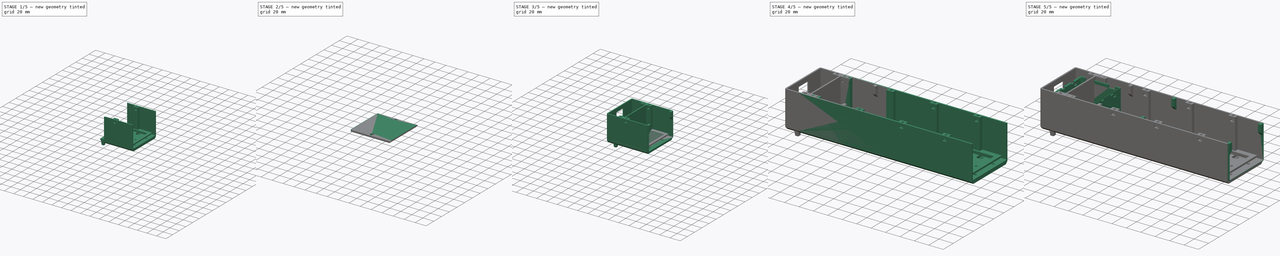
[diagram: build sequence overview — one tinted view per stage of 5, left to right]
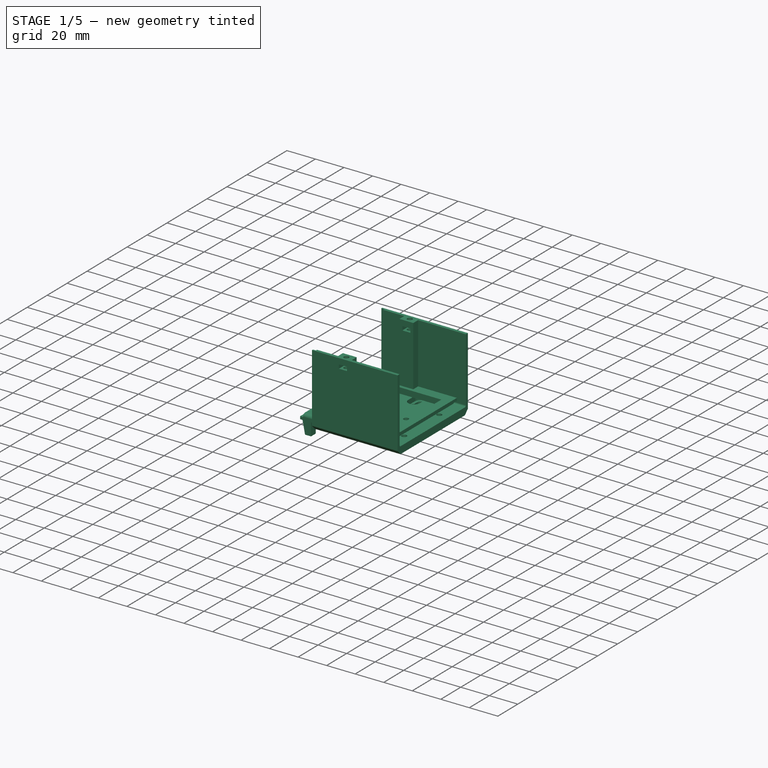
[diagram: stage 1 of 5 — iso view after this stage's code; geometry added in this stage tinted green]
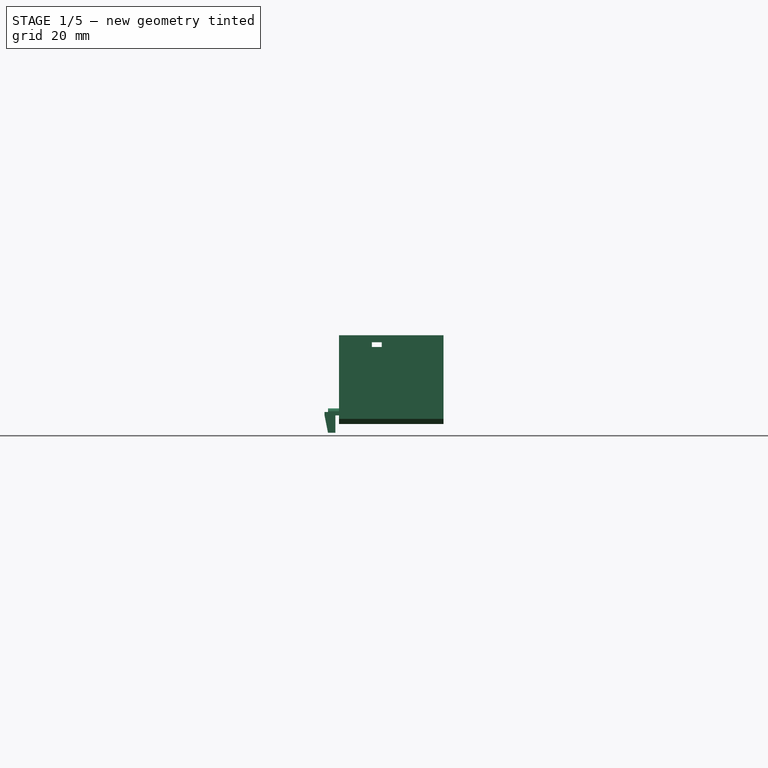
[diagram: stage 1 of 5 — front view after this stage's code; geometry added in this stage tinted green]
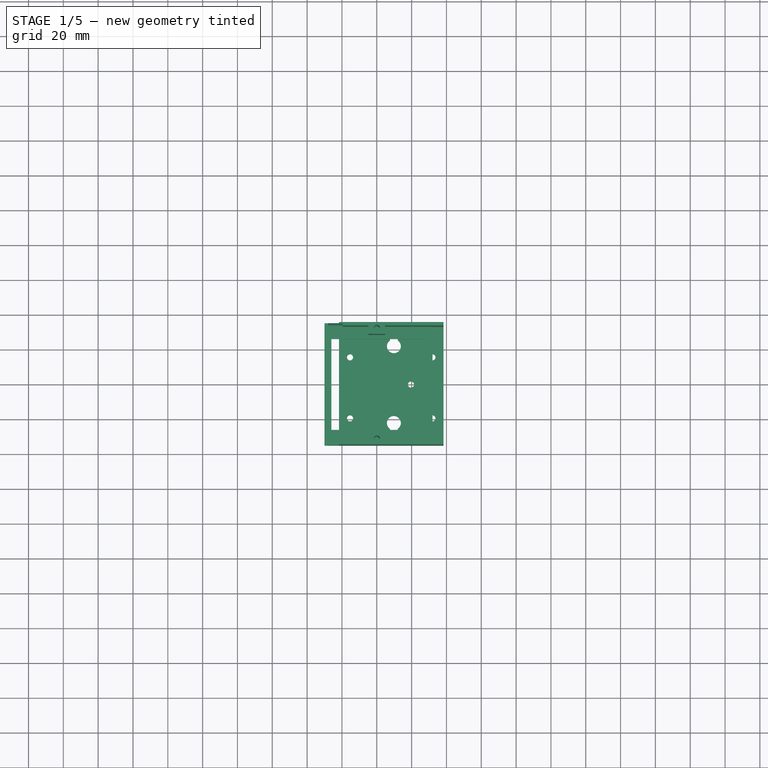
[diagram: stage 1 of 5 — top view after this stage's code; geometry added in this stage tinted green]
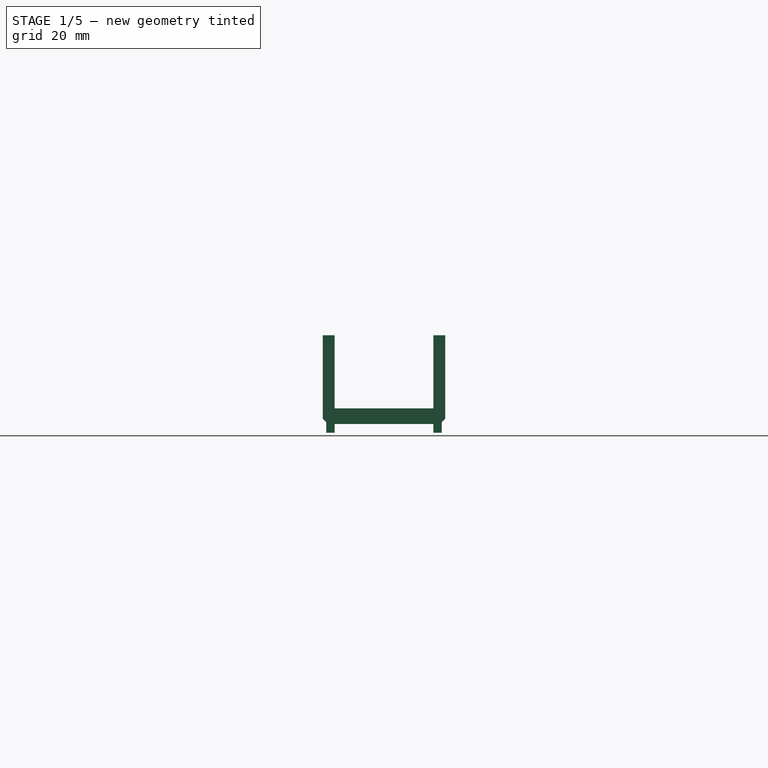
[diagram: stage 1 of 5 — right view after this stage's code; geometry added in this stage tinted green]
FCSTD DOCUMENT  (FreeCAD 0.19R24291 (Git))
Label: Powerstrip
License: All rights reserved
LicenseURL: http://en.wikipedia.org/wiki/All_rights_reserved
objects: Sketcher::SketchObject×120, PartDesign::Pocket×57, PartDesign::Pad×43, PartDesign::Body×40, PartDesign::FeatureBase×26, PartDesign::SubShapeBinder×20, App::Part×15, PartDesign::Fillet×11, PartDesign::Chamfer×6, Spreadsheet::Sheet×5, PartDesign::ShapeBinder×5, App::DocumentObjectGroup×1
note: 445 computed .brp shape members not serialized (recipe doc carries the construction recipe); baked Part::Feature solids carry a one-line shape summary decoded from their .brp

FEATURE [Spreadsheet::Sheet] Spreadsheet  label="SB1"
  cells = B3=XOffset; C3(XOffset)==0mm; B4=YOffset; C4(YOffset)==0mm; B5=ZOffset; C5(ZOffset)==0mm; B6=InternalWidth; C6(InternalWidth)==50.5mm; B7=InternalLength; C7(InternalLength)==52.5mm; B8=GrooveLength; C8(GrooveLength)==15mm; B9=GrooveCornerDistance; C9(GrooveCornerDistance)==1.75mm; B10=GrooveWidth; C10(GrooveWidth)==1mm; B11=LockHoleHeight; C11(LockHoleHeight)==4mm; B12=LockShoulder; C12(LockShoulder)==2mm; B13=AboveLock; C13(AboveLock)==3.8mm
FEATURE [Spreadsheet::Sheet] Spreadsheet001  label="SB2"
  cells = B3=XOffset; C3(XOffset)==0mm; B4=YOffset; C4(YOffset)==0mm; B5=ZOffset; C5(ZOffset)==0mm; B6=InternalWidth; C6(InternalWidth)==50.5mm; B7=InternalLength; C7(InternalLength)==52.5mm; B8=GrooveLength; C8(GrooveLength)==8mm; B9=GrooveCornerDistance; C9(GrooveCornerDistance)==3mm; B10=GrooveDepth; C10(GrooveDepth)==0.4mm; B11=GrooveWidth; C11(GrooveWidth)==1.5mm; B12=LockHoleHeight; C12(LockHoleHeight)==3mm; B13=AboveLock; C13(AboveLock)==4mm
FEATURE [Sketcher::SketchObject] Sketch027  label="SB1B_Template_top"
  FullyConstrained = true
  MapMode = 5
  Support = -> [XY_Plane004]
  expr: Constraints[86] = <<SocketBox>>.Spacing
  expr: Constraints[39] = <<SocketBox>>.WallThickness
  expr: Constraints[25] = <<SB1>>.InternalWidth
  expr: Constraints[26] = <<SB1>>.InternalLength
  expr: Constraints[43] = <<SB1>>.XOffset
  expr: Constraints[44] = <<SB1>>.YOffset
  sketch-geometry (31):
    g0: LineSegment StartX=-26.85 StartY=27.85 StartZ=0 EndX=26.85 EndY=27.85 EndZ=0
    g1: LineSegment StartX=26.85 StartY=27.85 StartZ=0 EndX=26.85 EndY=-27.85 EndZ=0
    g2: LineSegment StartX=26.85 StartY=-27.85 StartZ=0 EndX=-26.85 EndY=-27.85 EndZ=0
    g3: LineSegment StartX=-26.85 StartY=-27.85 StartZ=0 EndX=-26.85 EndY=27.85 EndZ=0
    g4: LineSegment StartX=-25.25 StartY=26.25 StartZ=0 EndX=25.25 EndY=26.25 EndZ=0
    g5: LineSegment StartX=25.25 StartY=26.25 StartZ=0 EndX=25.25 EndY=-26.25 EndZ=0
    g6: LineSegment StartX=25.25 StartY=-26.25 StartZ=0 EndX=-25.25 EndY=-26.25 EndZ=0
    g7: LineSegment StartX=-25.25 StartY=-26.25 StartZ=0 EndX=-25.25 EndY=26.25 EndZ=0
    g8: GeomPoint X=0 Y=0 Z=0
    g9: LineSegment StartX=0 StartY=27.85 StartZ=0 EndX=0 EndY=-27.85 EndZ=0
    g10: LineSegment StartX=-26.85 StartY=0 StartZ=0 EndX=26.85 EndY=0 EndZ=0
    g11: LineSegment StartX=-25.25 StartY=26.25 StartZ=0 EndX=-25.25 EndY=27.85 EndZ=0
    g12: LineSegment StartX=25.25 StartY=26.25 StartZ=0 EndX=26.85 EndY=26.25 EndZ=0
    g13: LineSegment StartX=25.25 StartY=-26.25 StartZ=0 EndX=25.25 EndY=-27.85 EndZ=0
    g14: LineSegment StartX=-25.25 StartY=-26.25 StartZ=0 EndX=-26.85 EndY=-26.25 EndZ=0
    g15: LineSegment StartX=28.65 StartY=27.85 StartZ=0 EndX=28.65 EndY=-27.85 EndZ=0
    g16: LineSegment StartX=-31.35 StartY=22.733 StartZ=0 EndX=-12.046 EndY=22.733 EndZ=0
    g17: LineSegment StartX=-12.046 StartY=22.733 StartZ=0 EndX=-12.046 EndY=-22.733 EndZ=0
    g18: LineSegment StartX=-12.046 StartY=-22.733 StartZ=0 EndX=-31.35 EndY=-22.733 EndZ=0
    g19: LineSegment StartX=-31.35 StartY=-22.733 StartZ=0 EndX=-31.35 EndY=22.733 EndZ=0
    g20: Circle CenterX=-28.048 CenterY=15.621 CenterZ=0 NormalX=0 NormalY=0 NormalZ=1 AngleXU=0 Radius=1.75
    g21: Circle CenterX=-15.348 CenterY=15.621 CenterZ=0 NormalX=0 NormalY=0 NormalZ=1 AngleXU=0 Radius=1.75
    g22: Circle CenterX=-28.048 CenterY=-19.431 CenterZ=0 NormalX=0 NormalY=0 NormalZ=1 AngleXU=0 Radius=1.75
    g23: Circle CenterX=-15.348 CenterY=-19.431 CenterZ=0 NormalX=0 NormalY=0 NormalZ=1 AngleXU=0 Radius=1.75
    g24: LineSegment StartX=-28.048 StartY=15.621 StartZ=0 EndX=-15.348 EndY=15.621 EndZ=0
    g25: LineSegment StartX=-15.348 StartY=15.621 StartZ=0 EndX=-15.348 EndY=-19.431 EndZ=0
    g26: LineSegment StartX=-15.348 StartY=-19.431 StartZ=0 EndX=-28.048 EndY=-19.431 EndZ=0
    g27: LineSegment StartX=-28.048 StartY=-19.431 StartZ=0 EndX=-28.048 EndY=15.621 EndZ=0
    g28: LineSegment StartX=-21.698 StartY=22.733 StartZ=0 EndX=-21.698 EndY=-22.733 EndZ=0
    g29: LineSegment StartX=-31.35 StartY=-2e-15 StartZ=0 EndX=-12.046 EndY=-2e-15 EndZ=0
    g30: Circle CenterX=19.652 CenterY=0 CenterZ=0 NormalX=0 NormalY=0 NormalZ=1 AngleXU=0 Radius=1.75
  constraints (92):
    c: Coincident(g0,g1)
    c: Coincident(g1,g2)
    c: Coincident(g2,g3)
    c: Coincident(g3,g0)
    c: Horizontal(g0)
    c: Horizontal(g2)
    c: Vertical(g1)
    c: Vertical(g3)
    c: Coincident(g4,g5)
    c: Coincident(g5,g6)
    c: Coincident(g6,g7)
    c: Coincident(g7,g4)
    c: Horizontal(g4)
    c: Horizontal(g6)
    c: Vertical(g5)
    c: Vertical(g7)
    c: Symmetric(g6,g4,g8)
    c: PointOnObject(g9,g0)
    c: PointOnObject(g9,g2)
    c: Vertical(g9)
    c: PointOnObject(g10,g3)
    c: PointOnObject(g10,g1)
    c: Horizontal(g10)
    c: PointOnObject(g8,g10)
    c: PointOnObject(g8,g9)
    c: DistanceX(g4,g4) = 50.5
    c: DistanceY(g7,g7) = 52.5
    c: Coincident(g11,g4)
    c: PointOnObject(g11,g0)
    c: Vertical(g11)
    c: Coincident(g12,g4)
    c: PointOnObject(g12,g1)
    c: Horizontal(g12)
    c: Coincident(g13,g5)
    c: PointOnObject(g13,g2)
    c: Vertical(g13)
    c: Coincident(g14,g6)
    c: PointOnObject(g14,g3)
    c: Horizontal(g14)
    c: DistanceX(g12,g12) = 1.6
    c: Equal(g11,g12)
    c: Equal(g12,g13)
    c: Equal(g13,g14)
    c: DistanceX(g-1,g9) = 0
    c: DistanceY(g-1,g10) = 0
    c: DistanceX(g0,g0) = 53.7
    c: Vertical(g15)
    c: PointOnObject(g15,g2)
    c: Coincident(g16,g17)
    c: Coincident(g17,g18)
    c: Coincident(g18,g19)
    c: Coincident(g19,g16)
    c: Horizontal(g18)
    c: Vertical(g19)
    c: DistanceX(g16,g16) = 19.304
    c: DistanceY(g19,g19) = 45.466
    c: Equal(g20,g21)
    c: Equal(g21,g22)
    c: Equal(g22,g23)
    c: Coincident(g24,g25)
    c: Coincident(g25,g26)
    c: Coincident(g26,g27)
    c: Coincident(g27,g24)
    c: Horizontal(g26)
    c: Vertical(g25)
    c: Vertical(g27)
    c: Coincident(g24,g20)
    c: Coincident(g25,g23)
    c: Coincident(g22,g26)
    c: Coincident(g21,g24)
    c: DistanceX(g24,g24) = 12.7
    c: DistanceY(g27,g27) = 35.052
    c: DistanceY(g20,g16) = 7.112
    c: Radius(g21) = 1.75
    c: DistanceY(g18,g22) = 3.302
    c: Horizontal(g16)
    c: Horizontal(g24)
    c: Vertical(g17)
    c: PointOnObject(g28,g18)
    c: Symmetric(g16,g16,g28)
    c: Symmetric(g20,g21,g28)
    c: PointOnObject(g29,g17)
    c: Symmetric(g16,g18,g29)
    c: Symmetric(g4,g6,g29)
    c: DistanceX(g16,g0) = 4.5
    c: PointOnObject(g15,g0)
    c: DistanceX(g16,g15) = 60
    c: DistanceX(g0,g15) = 1.8
    c: PointOnObject(g30,g10)
    c: Equal(g30,g23)
    c: DistanceX(g21,g30) = 35
    c: DistanceX(g28,g9) = 21.698  'PCBCenterOffset'
FEATURE [Sketcher::SketchObject] Sketch021  label="SB1B_Base"
  ExternalGeometry = -> [Sketch027]
  FullyConstrained = true
  MapMode = 5
  Support = -> [XY_Plane004]
  expr: .AttachmentOffset.Base.z = <<SB1>>.ZOffset
  sketch-geometry (5):
    g0: LineSegment StartX=-31.35 StartY=27.85 StartZ=0 EndX=26.85 EndY=27.85 EndZ=0
    g1: LineSegment StartX=26.85 StartY=27.85 StartZ=0 EndX=26.85 EndY=-27.85 EndZ=0
    g2: LineSegment StartX=26.85 StartY=-27.85 StartZ=0 EndX=-31.35 EndY=-27.85 EndZ=0
    g3: LineSegment StartX=-31.35 StartY=-27.85 StartZ=0 EndX=-31.35 EndY=27.85 EndZ=0
    g4: Circle CenterX=19.652 CenterY=0 CenterZ=0 NormalX=0 NormalY=0 NormalZ=1 AngleXU=0 Radius=1.75
  constraints (12):
    c: Coincident(g0,g1)
    c: Coincident(g1,g2)
    c: Horizontal(g0)
    c: Horizontal(g2)
    c: Vertical(g3)
    c: Coincident(g1,g-4)
    c: PointOnObject(g-5,g3)
    c: Coincident(g0,g3)
    c: Coincident(g2,g3)
    c: Coincident(g0,g-3)
    c: Coincident(g4,g-6)
    c: Equal(g4,g-6)
FEATURE [Sketcher::SketchObject] Sketch024  label="SB1B_PCBBumps"
  AttachmentOffset = pos=(0,0,1.6) rot=(0,0,1;0rad)
  ExternalGeometry = -> [Sketch027]
  FullyConstrained = true
  MapMode = 5
  Placement = pos=(0,0,1.6) rot=(0,0,1;0rad)
  Support = -> [XY_Plane004]
  expr: .AttachmentOffset.Base.z = <<SB1B_Base>>.AttachmentOffset.Base.z + <<SB1B_Base_>>.Length
  expr: Constraints[0] = <<SocketBox>>.PCBBumpRadius
  sketch-geometry (4):
    g0: Circle CenterX=-15.348 CenterY=15.621 CenterZ=0 NormalX=0 NormalY=0 NormalZ=1 AngleXU=0 Radius=3.2
    g1: Circle CenterX=-28.048 CenterY=-19.431 CenterZ=0 NormalX=0 NormalY=0 NormalZ=1 AngleXU=0 Radius=3.2
    g2: Circle CenterX=-15.348 CenterY=-19.431 CenterZ=0 NormalX=0 NormalY=0 NormalZ=1 AngleXU=0 Radius=3.2
    g3: Circle CenterX=-28.048 CenterY=15.621 CenterZ=0 NormalX=0 NormalY=0 NormalZ=1 AngleXU=0 Radius=3.2
  constraints (8):
    c: Radius(g3) = 3.2
    c: Equal(g3,g2)
    c: Equal(g3,g1)
    c: Equal(g3,g0)
    c: Coincident(g3,g-3)
    c: Coincident(g0,g-4)
    c: Coincident(g1,g-6)
    c: Coincident(g2,g-5)
FEATURE [Sketcher::SketchObject] Sketch025  label="SB1B_Template_front"
  ExternalGeometry = -> [Sketch027]
  FullyConstrained = true
  MapMode = 5
  Placement = pos=(0,0,0) rot=(1,0,0;1.5708rad)
  Support = -> [XZ_Plane004]
  expr: Constraints[77] = <<SB1>>.GrooveLength
  expr: Constraints[76] = <<SB1>>.GrooveCornerDistance
  expr: Constraints[29] = <<SocketBox>>.BaseHeight
  expr: Constraints[22] = <<SB1>>.ZOffset
  expr: Constraints[61] = <<SB1>>.AboveLock
  expr: Constraints[23] = <<SocketBox>>.TotalHeight
  expr: Constraints[59] = <<SB1>>.GrooveWidth
  expr: Constraints[21] = <<SocketBox>>.BottomThickness
  expr: Constraints[50] = <<SB1>>.LockHoleHeight
  sketch-geometry (22):
    g0: LineSegment StartX=-26.85 StartY=41.6 StartZ=0 EndX=26.85 EndY=41.6 EndZ=0
    g1: LineSegment StartX=26.85 StartY=41.6 StartZ=0 EndX=26.85 EndY=0 EndZ=0
    g2: LineSegment StartX=26.85 StartY=0 StartZ=0 EndX=-26.85 EndY=0 EndZ=0
    g3: LineSegment StartX=-26.85 StartY=0 StartZ=0 EndX=-26.85 EndY=41.6 EndZ=0
    g4: LineSegment StartX=-25.25 StartY=41.6 StartZ=0 EndX=-25.25 EndY=0 EndZ=0
    g5: LineSegment StartX=25.25 StartY=41.6 StartZ=0 EndX=25.25 EndY=0 EndZ=0
    g6: LineSegment StartX=-26.85 StartY=1.6 StartZ=0 EndX=26.85 EndY=1.6 EndZ=0
    g7: LineSegment StartX=3.6e-15 StartY=0 StartZ=0 EndX=3.6e-15 EndY=41.6 EndZ=0
    g8: LineSegment StartX=-3.1 StartY=41.6 StartZ=0 EndX=-3.1 EndY=26.6 EndZ=0
    g9: LineSegment StartX=-25.25 StartY=22.8 StartZ=0 EndX=25.25 EndY=22.8 EndZ=0
    g10: LineSegment StartX=-15.5 StartY=41.6 StartZ=0 EndX=-15.5 EndY=26.6 EndZ=0
    g11: LineSegment StartX=-20.5 StartY=41.6 StartZ=0 EndX=-20.5 EndY=26.6 EndZ=0
    g12: LineSegment StartX=-22.5 StartY=41.6 StartZ=0 EndX=-22.5 EndY=26.6 EndZ=0
    g13: LineSegment StartX=-23.5 StartY=41.6 StartZ=0 EndX=-23.5 EndY=26.6 EndZ=0
    g14: LineSegment StartX=3.1 StartY=41.6 StartZ=0 EndX=3.1 EndY=26.6 EndZ=0
    g15: LineSegment StartX=15.5 StartY=41.6 StartZ=0 EndX=15.5 EndY=26.6 EndZ=0
    g16: LineSegment StartX=20.5 StartY=41.6 StartZ=0 EndX=20.5 EndY=26.6 EndZ=0
    g17: LineSegment StartX=22.5 StartY=41.6 StartZ=0 EndX=22.5 EndY=26.6 EndZ=0
    g18: LineSegment StartX=23.5 StartY=41.6 StartZ=0 EndX=23.5 EndY=26.6 EndZ=0
    g19: LineSegment StartX=-25.25 StartY=37.8 StartZ=0 EndX=25.25 EndY=37.8 EndZ=0
    g20: LineSegment StartX=-25.25 StartY=33.8 StartZ=0 EndX=25.25 EndY=33.8 EndZ=0
    g21: LineSegment StartX=-26.85 StartY=26.6 StartZ=0 EndX=26.85 EndY=26.6 EndZ=0
  constraints (78):
    c: Coincident(g0,g1)
    c: Coincident(g1,g2)
    c: Coincident(g2,g3)
    c: Coincident(g3,g0)
    c: Horizontal(g0)
    c: Horizontal(g2)
    c: Vertical(g1)
    c: Vertical(g3)
    c: PointOnObject(g-4,g1)
    c: PointOnObject(g-3,g3)
    c: PointOnObject(g4,g0)
    c: PointOnObject(g4,g2)
    c: Vertical(g4)
    c: PointOnObject(g5,g0)
    c: PointOnObject(g5,g2)
    c: Vertical(g5)
    c: PointOnObject(g6,g3)
    c: PointOnObject(g6,g1)
    c: Horizontal(g6)
    c: PointOnObject(g-5,g4)
    c: PointOnObject(g-6,g5)
    c: DistanceY(g2,g6) = 1.6
    c: DistanceY(g-3,g2) = 0
    c: DistanceY(g2,g0) = 41.6
    c: PointOnObject(g7,g2)
    c: Vertical(g8)
    c: PointOnObject(g9,g4)
    c: PointOnObject(g9,g5)
    c: Horizontal(g9)
    c: DistanceY(g6,g9) = 21.2
    c: Vertical(g10)
    c: PointOnObject(g11,g0)
    c: Vertical(g11)
    c: PointOnObject(g12,g0)
    c: Vertical(g12)
    c: PointOnObject(g13,g0)
    c: Vertical(g13)
    c: Vertical(g14)
    c: DistanceX(g8,g14) = 6.2
    c: Vertical(g15)
    c: Vertical(g16)
    c: Vertical(g17)
    c: Vertical(g18)
    c: DistanceX(g10,g15) = 31
    c: PointOnObject(g19,g4)
    c: PointOnObject(g19,g5)
    c: Horizontal(g19)
    c: PointOnObject(g20,g4)
    c: PointOnObject(g20,g5)
    c: Horizontal(g20)
    c: DistanceY(g20,g19) = 4
    c: PointOnObject(g15,g0)
    c: PointOnObject(g7,g0)
    c: Symmetric(g0,g0,g7)
    c: Symmetric(g11,g16,g7)
    c: Symmetric(g12,g17,g7)
    c: Symmetric(g8,g14,g7)
    c: Symmetric(g10,g15,g7)
    c: Symmetric(g13,g18,g7)
    c: DistanceX(g13,g12) = 1
    c: PointOnObject(g8,g0)
    c: DistanceY(g19,g0) = 3.8
    c: PointOnObject(g21,g3)
    c: PointOnObject(g21,g1)
    c: Horizontal(g21)
    c: PointOnObject(g13,g21)
    c: PointOnObject(g12,g21)
    c: PointOnObject(g11,g21)
    c: PointOnObject(g10,g21)
    c: PointOnObject(g8,g21)
    c: PointOnObject(g14,g21)
    c: PointOnObject(g15,g21)
    c: PointOnObject(g16,g21)
    c: PointOnObject(g17,g21)
    c: PointOnObject(g18,g21)
    c: DistanceX(g11,g10) = 5
    c: DistanceX(g4,g13) = 1.75
    c: DistanceY(g21,g0) = 15
FEATURE [Sketcher::SketchObject] Sketch022  label="SB1B_Template_right"
  ExternalGeometry = -> [Sketch027,Sketch025]
  FullyConstrained = true
  MapMode = 5
  Placement = pos=(0,0,0) rot=(0.57735,0.57735,0.57735;2.0944rad)
  Support = -> [YZ_Plane004]
  expr: Constraints[55] = <<SocketBox>>.PCBTolerance
  sketch-geometry (16):
    g0: LineSegment StartX=-27.85 StartY=41.6 StartZ=0 EndX=27.85 EndY=41.6 EndZ=0
    g1: LineSegment StartX=27.85 StartY=41.6 StartZ=0 EndX=27.85 EndY=0 EndZ=0
    g2: LineSegment StartX=27.85 StartY=0 StartZ=0 EndX=-27.85 EndY=0 EndZ=0
    g3: LineSegment StartX=-27.85 StartY=0 StartZ=0 EndX=-27.85 EndY=41.6 EndZ=0
    g4: LineSegment StartX=-26.25 StartY=41.6 StartZ=0 EndX=-26.25 EndY=1.6 EndZ=0
    g5: LineSegment StartX=26.25 StartY=41.6 StartZ=0 EndX=26.25 EndY=1.6 EndZ=0
    g6: LineSegment StartX=-26.25 StartY=1.6 StartZ=0 EndX=26.25 EndY=1.6 EndZ=0
    g7: LineSegment StartX=-26.25 StartY=37.8 StartZ=0 EndX=26.25 EndY=37.8 EndZ=0
    g8: LineSegment StartX=-3.6e-15 StartY=41.6 StartZ=0 EndX=-3.6e-15 EndY=0 EndZ=0
    g9: LineSegment StartX=-20.5 StartY=41.6 StartZ=0 EndX=-20.5 EndY=37.8 EndZ=0
    g10: LineSegment StartX=-11.5 StartY=41.6 StartZ=0 EndX=-11.5 EndY=37.8 EndZ=0
    g11: LineSegment StartX=20.5 StartY=41.6 StartZ=0 EndX=20.5 EndY=37.8 EndZ=0
    g12: LineSegment StartX=11.5 StartY=41.6 StartZ=0 EndX=11.5 EndY=37.8 EndZ=0
    g13: LineSegment StartX=-26.25 StartY=22.8 StartZ=0 EndX=26.25 EndY=22.8 EndZ=0
    g14: LineSegment StartX=-23.733 StartY=1.6 StartZ=0 EndX=-23.733 EndY=22.8 EndZ=0
    g15: LineSegment StartX=23.733 StartY=1.6 StartZ=0 EndX=23.733 EndY=22.8 EndZ=0
  constraints (56):
    c: Coincident(g0,g1)
    c: Coincident(g1,g2)
    c: Coincident(g2,g3)
    c: Coincident(g3,g0)
    c: Horizontal(g0)
    c: Horizontal(g2)
    c: Vertical(g1)
    c: Vertical(g3)
    c: PointOnObject(g4,g0)
    c: Vertical(g4)
    c: PointOnObject(g5,g0)
    c: Vertical(g5)
    c: Horizontal(g6)
    c: PointOnObject(g7,g4)
    c: PointOnObject(g7,g5)
    c: Horizontal(g7)
    c: PointOnObject(g8,g0)
    c: PointOnObject(g8,g2)
    c: Symmetric(g0,g0,g8)
    c: PointOnObject(g9,g0)
    c: PointOnObject(g9,g7)
    c: Vertical(g9)
    c: PointOnObject(g10,g0)
    c: PointOnObject(g10,g7)
    c: Vertical(g10)
    c: PointOnObject(g11,g7)
    c: Vertical(g11)
    c: PointOnObject(g12,g7)
    c: Vertical(g12)
    c: Symmetric(g9,g11,g8)
    c: Symmetric(g10,g12,g8)
    c: DistanceX(g9,g11) = 41
    c: DistanceX(g10,g12) = 23
    c: Horizontal(g13)
    c: PointOnObject(g13,g4)
    c: PointOnObject(g13,g5)
    c: Coincident(g4,g6)
    c: Coincident(g5,g6)
    c: DistanceX(g0,g0) = 55.7
    c: DistanceX(g4,g5) = 52.5
    c: PointOnObject(g-4,g4)
    c: PointOnObject(g-3,g3)
    c: PointOnObject(g-6,g1)
    c: PointOnObject(g-5,g5)
    c: PointOnObject(g-8,g2)
    c: PointOnObject(g-7,g6)
    c: PointOnObject(g-9,g0)
    c: PointOnObject(g-10,g7)
    c: PointOnObject(g-11,g13)
    c: PointOnObject(g14,g6)
    c: PointOnObject(g14,g13)
    c: Vertical(g14)
    c: PointOnObject(g15,g13)
    c: Vertical(g15)
    c: Symmetric(g14,g15,g8)
    c: DistanceX(g14,g-12) = 1
FEATURE [Sketcher::SketchObject] Sketch023  label="SB1B_SideHoles_PCB"
  ExternalGeometry = -> [Sketch022]
  FullyConstrained = true
  MapMode = 5
  Placement = pos=(0,0,0) rot=(0.57735,0.57735,0.57735;2.0944rad)
  Support = -> [YZ_Plane004]
  sketch-geometry (14):
    g0: LineSegment StartX=-20.5 StartY=41.6 StartZ=0 EndX=-11.5 EndY=41.6 EndZ=0
    g1: LineSegment StartX=-11.5 StartY=41.6 StartZ=0 EndX=-11.5 EndY=37.8 EndZ=0
    g2: LineSegment StartX=-11.5 StartY=37.8 StartZ=0 EndX=-20.5 EndY=37.8 EndZ=0
    g3: LineSegment StartX=-20.5 StartY=37.8 StartZ=0 EndX=-20.5 EndY=41.6 EndZ=0
    g4: LineSegment StartX=11.5 StartY=41.6 StartZ=0 EndX=20.5 EndY=41.6 EndZ=0
    g5: LineSegment StartX=20.5 StartY=41.6 StartZ=0 EndX=20.5 EndY=37.8 EndZ=0
    g6: LineSegment StartX=20.5 StartY=37.8 StartZ=0 EndX=11.5 EndY=37.8 EndZ=0
    g7: LineSegment StartX=11.5 StartY=37.8 StartZ=0 EndX=11.5 EndY=41.6 EndZ=0
    g8: LineSegment StartX=-18.733 StartY=22.8 StartZ=0 EndX=18.733 EndY=22.8 EndZ=0
    g9: ArcOfCircle CenterX=-18.733 CenterY=17.8 CenterZ=0 NormalX=0 NormalY=0 NormalZ=1 AngleXU=0 Radius=5 StartAngle=1.5708 EndAngle=3.14159
    g10: ArcOfCircle CenterX=18.733 CenterY=17.8 CenterZ=0 NormalX=0 NormalY=0 NormalZ=1 AngleXU=0 Radius=5 StartAngle=1e-16 EndAngle=1.5708
    g11: LineSegment StartX=-23.733 StartY=17.8 StartZ=0 EndX=-23.733 EndY=1.6 EndZ=0
    g12: LineSegment StartX=-23.733 StartY=1.6 StartZ=0 EndX=23.733 EndY=1.6 EndZ=0
    g13: LineSegment StartX=23.733 StartY=1.6 StartZ=0 EndX=23.733 EndY=17.8 EndZ=0
  constraints (34):
    c: Coincident(g0,g1)
    c: Coincident(g1,g2)
    c: Coincident(g2,g3)
    c: Coincident(g3,g0)
    c: Horizontal(g0)
    c: Horizontal(g2)
    c: Vertical(g1)
    c: Vertical(g3)
    c: Coincident(g0,g-3)
    c: Coincident(g1,g-4)
    c: Coincident(g4,g5)
    c: Coincident(g5,g6)
    c: Coincident(g6,g7)
    c: Coincident(g7,g4)
    c: Horizontal(g4)
    c: Horizontal(g6)
    c: Vertical(g5)
    c: Vertical(g7)
    c: Coincident(g4,g-5)
    c: Coincident(g5,g-6)
    c: PointOnObject(g8,g-7)
    c: Tangent(g8,g9) = 1.5708
    c: Radius(g9) = 5
    c: Horizontal(g8)
    c: Tangent(g8,g10) = 1.5708
    c: Equal(g9,g10)
    c: Tangent(g9,g11) = -1.5708
    c: Coincident(g11,g12)
    c: Coincident(g12,g13)
    c: Coincident(g11,g-9)
    c: PointOnObject(g9,g-9)
    c: Coincident(g12,g-10)
    c: PointOnObject(g10,g-10)
    c: Tangent(g10,g13) = -1.5708
FEATURE [PartDesign::Pad] Pad007  label="SB1B_Base_"
  Direction = (1,1,1)
  Length = 1.6
  Length2 = 100
  Profile = -> Sketch021
  Type = 0
  expr: Length = <<SocketBox>>.BottomThickness
FEATURE [Sketcher::SketchObject] Sketch026  label="SB1B_LockHoles"
  ExternalGeometry = -> [Sketch025]
  FullyConstrained = true
  MapMode = 5
  Placement = pos=(0,0,0) rot=(1,0,0;1.5708rad)
  Support = -> [XZ_Plane004]
  sketch-geometry (20):
    g0: LineSegment StartX=-3.1 StartY=37.8 StartZ=0 EndX=3.1 EndY=37.8 EndZ=0
    g1: LineSegment StartX=3.1 StartY=37.8 StartZ=0 EndX=3.1 EndY=33.8 EndZ=0
    g2: LineSegment StartX=3.1 StartY=33.8 StartZ=0 EndX=-3.1 EndY=33.8 EndZ=0
    g3: LineSegment StartX=-3.1 StartY=33.8 StartZ=0 EndX=-3.1 EndY=37.8 EndZ=0
    g4: LineSegment StartX=-20.5 StartY=37.8 StartZ=0 EndX=-15.5 EndY=37.8 EndZ=0
    g5: LineSegment StartX=-15.5 StartY=37.8 StartZ=0 EndX=-15.5 EndY=33.8 EndZ=0
    g6: LineSegment StartX=-15.5 StartY=33.8 StartZ=0 EndX=-20.5 EndY=33.8 EndZ=0
    g7: LineSegment StartX=-20.5 StartY=33.8 StartZ=0 EndX=-20.5 EndY=37.8 EndZ=0
    g8: LineSegment StartX=15.5 StartY=37.8 StartZ=0 EndX=20.5 EndY=37.8 EndZ=0
    g9: LineSegment StartX=20.5 StartY=37.8 StartZ=0 EndX=20.5 EndY=33.8 EndZ=0
    g10: LineSegment StartX=20.5 StartY=33.8 StartZ=0 EndX=15.5 EndY=33.8 EndZ=0
    g11: LineSegment StartX=15.5 StartY=33.8 StartZ=0 EndX=15.5 EndY=37.8 EndZ=0
    g12: LineSegment StartX=22.5 StartY=41.6 StartZ=0 EndX=23.5 EndY=41.6 EndZ=0
    g13: LineSegment StartX=23.5 StartY=41.6 StartZ=0 EndX=23.5 EndY=26.6 EndZ=0
    g14: LineSegment StartX=22.5 StartY=27.6 StartZ=0 EndX=22.5 EndY=41.6 EndZ=0
    g15: LineSegment StartX=-23.5 StartY=41.6 StartZ=0 EndX=-22.5 EndY=41.6 EndZ=0
    g16: LineSegment StartX=-22.5 StartY=41.6 StartZ=0 EndX=-22.5 EndY=27.6 EndZ=0
    g17: LineSegment StartX=-23.5 StartY=26.6 StartZ=0 EndX=-23.5 EndY=41.6 EndZ=0
    g18: ArcOfCircle CenterX=-23.5 CenterY=27.6 CenterZ=0 NormalX=0 NormalY=0 NormalZ=1 AngleXU=0 Radius=1 StartAngle=4.71239 EndAngle=6.28319
    g19: ArcOfCircle CenterX=23.5 CenterY=27.6 CenterZ=0 NormalX=0 NormalY=0 NormalZ=1 AngleXU=0 Radius=1 StartAngle=3.14159 EndAngle=4.71239
  constraints (55):
    c: Coincident(g0,g1)
    c: Coincident(g1,g2)
    c: Coincident(g2,g3)
    c: Coincident(g3,g0)
    c: Horizontal(g0)
    c: Horizontal(g2)
    c: Vertical(g1)
    c: Vertical(g3)
    c: Coincident(g4,g5)
    c: Coincident(g5,g6)
    c: Coincident(g6,g7)
    c: Coincident(g7,g4)
    c: Horizontal(g4)
    c: Horizontal(g6)
    c: Vertical(g5)
    c: Vertical(g7)
    c: Coincident(g8,g9)
    c: Coincident(g9,g10)
    c: Coincident(g10,g11)
    c: Coincident(g11,g8)
    c: Horizontal(g8)
    c: Horizontal(g10)
    c: Vertical(g9)
    c: Vertical(g11)
    c: Coincident(g12,g13)
    c: Coincident(g14,g12)
    c: Horizontal(g12)
    c: Vertical(g13)
    c: Vertical(g14)
    c: Coincident(g15,g16)
    c: Coincident(g17,g15)
    c: Vertical(g16)
    c: PointOnObject(g4,g-13)
    c: PointOnObject(g0,g-13)
    c: PointOnObject(g8,g-13)
    c: PointOnObject(g5,g-14)
    c: PointOnObject(g1,g-14)
    c: PointOnObject(g9,g-14)
    c: PointOnObject(g8,g-4)
    c: PointOnObject(g10,g-12)
    c: PointOnObject(g0,g-11)
    c: PointOnObject(g2,g-3)
    c: PointOnObject(g4,g-5)
    c: PointOnObject(g6,g-6)
    c: Coincident(g15,g-10)
    c: Coincident(g12,g-8)
    c: Coincident(g13,g-7)
    c: Coincident(g17,g-10)
    c: Coincident(g15,g-9)
    c: PointOnObject(g18,g17)
    c: Coincident(g18,g17)
    c: Tangent(g16,g18) = 1.5708
    c: PointOnObject(g19,g13)
    c: Coincident(g19,g13)
    c: Tangent(g14,g19) = 1.5708
FEATURE [Sketcher::SketchObject] Sketch028  label="SB1B_Walls"
  AttachmentOffset = pos=(0,0,1.6) rot=(0,0,1;0rad)
  ExternalGeometry = -> [Sketch027]
  FullyConstrained = true
  MapMode = 5
  Placement = pos=(0,0,1.6) rot=(0,0,1;0rad)
  Support = -> [XY_Plane004]
  expr: .AttachmentOffset.Base.z = <<SB1B_Base>>.AttachmentOffset.Base.z + <<SB1B_Base_>>.Length
  sketch-geometry (8):
    g0: LineSegment StartX=-26.85 StartY=27.85 StartZ=0 EndX=26.85 EndY=27.85 EndZ=0
    g1: LineSegment StartX=26.85 StartY=27.85 StartZ=0 EndX=26.85 EndY=-27.85 EndZ=0
    g2: LineSegment StartX=26.85 StartY=-27.85 StartZ=0 EndX=-26.85 EndY=-27.85 EndZ=0
    g3: LineSegment StartX=-26.85 StartY=-27.85 StartZ=0 EndX=-26.85 EndY=27.85 EndZ=0
    g4: LineSegment StartX=25.25 StartY=-26.25 StartZ=0 EndX=-25.25 EndY=-26.25 EndZ=0
    g5: LineSegment StartX=-25.25 StartY=-26.25 StartZ=0 EndX=-25.25 EndY=26.25 EndZ=0
    g6: LineSegment StartX=-25.25 StartY=26.25 StartZ=0 EndX=25.25 EndY=26.25 EndZ=0
    g7: LineSegment StartX=25.25 StartY=26.25 StartZ=0 EndX=25.25 EndY=-26.25 EndZ=0
  constraints (20):
    c: Coincident(g0,g1)
    c: Coincident(g1,g2)
    c: Coincident(g2,g3)
    c: Coincident(g3,g0)
    c: Horizontal(g0)
    c: Horizontal(g2)
    c: Vertical(g1)
    c: Vertical(g3)
    c: Coincident(g0,g-3)
    c: Coincident(g1,g-5)
    c: Coincident(g4,g5)
    c: Coincident(g5,g6)
    c: Coincident(g6,g7)
    c: Coincident(g7,g4)
    c: Horizontal(g4)
    c: Horizontal(g6)
    c: Vertical(g5)
    c: Vertical(g7)
    c: Coincident(g4,g-4)
    c: Coincident(g5,g-6)
FEATURE [PartDesign::Pad] Pad008  label="SB1B_Walls_"
  BaseFeature = -> Pad007
  Direction = (1,1,1)
  Length = 40
  Length2 = 100
  Profile = -> Sketch028
  Refine = true
  Type = 0
  expr: Length = <<SocketBox>>.TotalWallHeight
FEATURE [PartDesign::Fillet] Fillet003
  Base = -> Pad008 [Edge1,Edge15,Edge30,Edge32,Edge28,Edge33,Edge29,Edge14,Edge31,Edge2]
  BaseFeature = -> Pad008
  Radius = 1
  SupportTransform = false
FEATURE [PartDesign::Pocket] Pocket005  label="SB1B_LockHoles_"
  BaseFeature = -> Fillet003
  Length = 5
  Length2 = 100
  Midplane = true
  Profile = -> Sketch026
  Type = 1
FEATURE [PartDesign::Pocket] Pocket006  label="SB1B_SideHoles_PCB_"
  BaseFeature = -> Pocket005
  Length = 5
  Length2 = 100
  Profile = -> Sketch023
  Type = 1
FEATURE [Sketcher::SketchObject] Sketch038  label="SB1B_PCBHoles"
  AttachmentOffset = pos=(0,0,4.6) rot=(0,0,1;0rad)
  ExternalGeometry = -> [Sketch027]
  FullyConstrained = true
  MapMode = 5
  Placement = pos=(0,0,4.6) rot=(0,0,1;0rad)
  Support = -> [XY_Plane004]
  expr: .AttachmentOffset.Base.z = <<SB1B_PCBBumps>>.AttachmentOffset.Base.z + <<SB1B_PCBBumps_>>.Length
  sketch-geometry (4):
    g0: Circle CenterX=-28.048 CenterY=15.621 CenterZ=0 NormalX=0 NormalY=0 NormalZ=1 AngleXU=0 Radius=1.75
    g1: Circle CenterX=-15.348 CenterY=15.621 CenterZ=0 NormalX=0 NormalY=0 NormalZ=1 AngleXU=0 Radius=1.75
    g2: Circle CenterX=-15.348 CenterY=-19.431 CenterZ=0 NormalX=0 NormalY=0 NormalZ=1 AngleXU=0 Radius=1.75
    g3: Circle CenterX=-28.048 CenterY=-19.431 CenterZ=0 NormalX=0 NormalY=0 NormalZ=1 AngleXU=0 Radius=1.75
  constraints (8):
    c: Coincident(g0,g-3)
    c: Coincident(g1,g-4)
    c: Coincident(g2,g-5)
    c: Coincident(g3,g-6)
    c: Equal(g-3,g0)
    c: Equal(g-4,g1)
    c: Equal(g-5,g2)
    c: Equal(g3,g-6)
FEATURE [Sketcher::SketchObject] Sketch043  label="SB1C_Template_top"
  FullyConstrained = true
  MapMode = 5
  Support = -> [XY_Plane006]
  expr: Constraints[132] = <<SocketBox>>.Spacing
  expr: Constraints[44] = <<SB1>>.YOffset
  expr: Constraints[43] = <<SB1>>.XOffset
  expr: Constraints[26] = <<SB1>>.InternalLength
  expr: Constraints[25] = <<SB1>>.InternalWidth
  expr: Constraints[39] = <<SocketBox>>.WallThickness
  sketch-geometry (48):
    g0: LineSegment StartX=-26.85 StartY=27.85 StartZ=0 EndX=26.85 EndY=27.85 EndZ=0
    g1: LineSegment StartX=26.85 StartY=27.85 StartZ=0 EndX=26.85 EndY=-27.85 EndZ=0
    g2: LineSegment StartX=26.85 StartY=-27.85 StartZ=0 EndX=-26.85 EndY=-27.85 EndZ=0
    g3: LineSegment StartX=-26.85 StartY=-27.85 StartZ=0 EndX=-26.85 EndY=27.85 EndZ=0
    g4: LineSegment StartX=-25.25 StartY=26.25 StartZ=0 EndX=25.25 EndY=26.25 EndZ=0
    g5: LineSegment StartX=25.25 StartY=26.25 StartZ=0 EndX=25.25 EndY=-26.25 EndZ=0
    g6: LineSegment StartX=25.25 StartY=-26.25 StartZ=0 EndX=-25.25 EndY=-26.25 EndZ=0
    g7: LineSegment StartX=-25.25 StartY=-26.25 StartZ=0 EndX=-25.25 EndY=26.25 EndZ=0
    g8: GeomPoint X=0 Y=0 Z=0
    g9: LineSegment StartX=0 StartY=27.85 StartZ=0 EndX=0 EndY=-27.85 EndZ=0
    g10: LineSegment StartX=-26.85 StartY=0 StartZ=0 EndX=26.85 EndY=0 EndZ=0
    g11: LineSegment StartX=-25.25 StartY=26.25 StartZ=0 EndX=-25.25 EndY=27.85 EndZ=0
    g12: LineSegment StartX=25.25 StartY=26.25 StartZ=0 EndX=26.85 EndY=26.25 EndZ=0
    g13: LineSegment StartX=25.25 StartY=-26.25 StartZ=0 EndX=25.25 EndY=-27.85 EndZ=0
    g14: LineSegment StartX=-25.25 StartY=-26.25 StartZ=0 EndX=-26.85 EndY=-26.25 EndZ=0
    g15: LineSegment StartX=-31.35 StartY=22.733 StartZ=0 EndX=-12.046 EndY=22.733 EndZ=0
    g16: LineSegment StartX=-12.046 StartY=22.733 StartZ=0 EndX=-12.046 EndY=-22.733 EndZ=0
    g17: LineSegment StartX=-12.046 StartY=-22.733 StartZ=0 EndX=-31.35 EndY=-22.733 EndZ=0
    g18: LineSegment StartX=-31.35 StartY=-22.733 StartZ=0 EndX=-31.35 EndY=22.733 EndZ=0
    g19: Circle CenterX=-28.048 CenterY=15.621 CenterZ=0 NormalX=0 NormalY=0 NormalZ=1 AngleXU=0 Radius=1.75
    g20: Circle CenterX=-15.348 CenterY=15.621 CenterZ=0 NormalX=0 NormalY=0 NormalZ=1 AngleXU=0 Radius=1.75
    g21: Circle CenterX=-28.048 CenterY=-19.431 CenterZ=0 NormalX=0 NormalY=0 NormalZ=1 AngleXU=0 Radius=1.75
    g22: Circle CenterX=-15.348 CenterY=-19.431 CenterZ=0 NormalX=0 NormalY=0 NormalZ=1 AngleXU=0 Radius=1.75
    g23: LineSegment StartX=-28.048 StartY=15.621 StartZ=0 EndX=-15.348 EndY=15.621 EndZ=0
    g24: LineSegment StartX=-15.348 StartY=15.621 StartZ=0 EndX=-15.348 EndY=-19.431 EndZ=0
    g25: LineSegment StartX=-15.348 StartY=-19.431 StartZ=0 EndX=-28.048 EndY=-19.431 EndZ=0
    g26: LineSegment StartX=-28.048 StartY=-19.431 StartZ=0 EndX=-28.048 EndY=15.621 EndZ=0
    g27: LineSegment StartX=-21.698 StartY=22.733 StartZ=0 EndX=-21.698 EndY=-22.733 EndZ=0
    g28: LineSegment StartX=-31.35 StartY=-2.5e-15 StartZ=0 EndX=-12.046 EndY=-2.5e-15 EndZ=0
    g29: GeomPoint X=-31.35 Y=27.85 Z=0
    g30: LineSegment StartX=31.8 StartY=27.85 StartZ=0 EndX=31.8 EndY=-27.85 EndZ=0
    g31: LineSegment StartX=41.452 StartY=22.733 StartZ=0 EndX=22.148 EndY=22.733 EndZ=0
    g32: LineSegment StartX=22.148 StartY=22.733 StartZ=0 EndX=22.148 EndY=-22.733 EndZ=0
    g33: LineSegment StartX=22.148 StartY=-22.733 StartZ=0 EndX=41.452 EndY=-22.733 EndZ=0
    g34: LineSegment StartX=41.452 StartY=-22.733 StartZ=0 EndX=41.452 EndY=22.733 EndZ=0
    g35: Circle CenterX=38.15 CenterY=15.621 CenterZ=0 NormalX=0 NormalY=0 NormalZ=1 AngleXU=0 Radius=1.75
    g36: Circle CenterX=25.45 CenterY=15.621 CenterZ=0 NormalX=0 NormalY=0 NormalZ=1 AngleXU=0 Radius=1.75
    g37: Circle CenterX=38.15 CenterY=-19.431 CenterZ=0 NormalX=0 NormalY=0 NormalZ=1 AngleXU=0 Radius=1.75
    g38: Circle CenterX=25.45 CenterY=-19.431 CenterZ=0 NormalX=0 NormalY=0 NormalZ=1 AngleXU=0 Radius=1.75
    g39: LineSegment StartX=38.15 StartY=15.621 StartZ=0 EndX=25.45 EndY=15.621 EndZ=0
    g40: LineSegment StartX=25.45 StartY=15.621 StartZ=0 EndX=25.45 EndY=-19.431 EndZ=0
    g41: LineSegment StartX=25.45 StartY=-19.431 StartZ=0 EndX=38.15 EndY=-19.431 EndZ=0
    g42: LineSegment StartX=38.15 StartY=-19.431 StartZ=0 EndX=38.15 EndY=15.621 EndZ=0
    g43: LineSegment StartX=31.8 StartY=22.733 StartZ=0 EndX=31.8 EndY=-22.733 EndZ=0
    g44: LineSegment StartX=41.452 StartY=1.5e-15 StartZ=0 EndX=22.148 EndY=1.5e-15 EndZ=0
    g45: Circle CenterX=-28.048 CenterY=15.621 CenterZ=0 NormalX=0 NormalY=0 NormalZ=1 AngleXU=0 Radius=3.2
    g46: Circle CenterX=25.45 CenterY=15.621 CenterZ=0 NormalX=0 NormalY=0 NormalZ=1 AngleXU=0 Radius=3.2
    g47: LineSegment StartX=28.65 StartY=22.733 StartZ=0 EndX=28.65 EndY=-22.733 EndZ=0
  constraints (134):
    c: Coincident(g0,g1)
    c: Coincident(g1,g2)
    c: Coincident(g2,g3)
    c: Coincident(g3,g0)
    c: Horizontal(g0)
    c: Horizontal(g2)
    c: Vertical(g1)
    c: Vertical(g3)
    c: Coincident(g4,g5)
    c: Coincident(g5,g6)
    c: Coincident(g6,g7)
    c: Coincident(g7,g4)
    c: Horizontal(g4)
    c: Horizontal(g6)
    c: Vertical(g5)
    c: Vertical(g7)
    c: Symmetric(g6,g4,g8)
    c: PointOnObject(g9,g0)
    c: PointOnObject(g9,g2)
    c: Vertical(g9)
    c: PointOnObject(g10,g3)
    c: PointOnObject(g10,g1)
    c: Horizontal(g10)
    c: PointOnObject(g8,g10)
    c: PointOnObject(g8,g9)
    c: DistanceX(g4,g4) = 50.5
    c: DistanceY(g7,g7) = 52.5
    c: Coincident(g11,g4)
    c: PointOnObject(g11,g0)
    c: Vertical(g11)
    c: Coincident(g12,g4)
    c: PointOnObject(g12,g1)
    c: Horizontal(g12)
    c: Coincident(g13,g5)
    c: PointOnObject(g13,g2)
    c: Vertical(g13)
    c: Coincident(g14,g6)
    c: PointOnObject(g14,g3)
    c: Horizontal(g14)
    c: DistanceX(g12,g12) = 1.6
    c: Equal(g11,g12)
    c: Equal(g12,g13)
    c: Equal(g13,g14)
    c: DistanceX(g-1,g9) = 0
    c: DistanceY(g-1,g10) = 0
    c: DistanceX(g0,g0) = 53.7
    c: Coincident(g15,g16)
    c: Coincident(g16,g17)
    c: Coincident(g17,g18)
    c: Coincident(g18,g15)
    c: Horizontal(g17)
    c: Vertical(g18)
    c: DistanceX(g15,g15) = 19.304
    c: DistanceY(g18,g18) = 45.466
    c: Equal(g19,g20)
    c: Equal(g20,g21)
    c: Equal(g21,g22)
    c: Coincident(g23,g24)
    c: Coincident(g24,g25)
    c: Coincident(g25,g26)
    c: Coincident(g26,g23)
    c: Horizontal(g25)
    c: Vertical(g24)
    c: Vertical(g26)
    c: Coincident(g23,g19)
    c: Coincident(g24,g22)
    c: Coincident(g21,g25)
    c: Coincident(g20,g23)
    c: DistanceX(g23,g23) = 12.7
    c: DistanceY(g26,g26) = 35.052
    c: DistanceY(g19,g15) = 7.112
    c: Radius(g20) = 1.75
    c: DistanceY(g17,g21) = 3.302
    c: Horizontal(g15)
    c: Horizontal(g23)
    c: Vertical(g16)
    c: PointOnObject(g27,g17)
    c: Symmetric(g15,g15,g27)
    c: Symmetric(g19,g20,g27)
    c: PointOnObject(g28,g16)
    c: Symmetric(g15,g17,g28)
    c: Symmetric(g4,g6,g28)
    c: DistanceX(g15,g0) = 4.5
    c: PointOnObject(g29,g0)
    c: PointOnObject(g29,g18)
    c: Vertical(g30)
    c: PointOnObject(g30,g2)
    c: Coincident(g31,g32)
    c: Coincident(g32,g33)
    c: Coincident(g33,g34)
    c: Coincident(g34,g31)
    c: Horizontal(g33)
    c: Vertical(g34)
    c: Equal(g35,g36)
    c: Equal(g36,g37)
    c: Equal(g37,g38)
    c: Coincident(g39,g40)
    c: Coincident(g40,g41)
    c: Coincident(g41,g42)
    c: Coincident(g42,g39)
    c: Horizontal(g41)
    c: Vertical(g40)
    c: Vertical(g42)
    c: Coincident(g39,g35)
    c: Coincident(g40,g38)
    c: Coincident(g37,g41)
    c: Coincident(g36,g39)
    c: Horizontal(g31)
    c: Horizontal(g39)
    c: Vertical(g32)
    c: PointOnObject(g43,g33)
    c: Symmetric(g31,g31,g43)
    c: Symmetric(g35,g36,g43)
    c: PointOnObject(g44,g32)
    c: Symmetric(g31,g33,g44)
    c: Horizontal(g44)
    c: Equal(g32,g16)
    c: Equal(g36,g20)
    c: Equal(g23,g39)
    c: Equal(g40,g24)
    c: PointOnObject(g31,g15)
    c: PointOnObject(g36,g23)
    c: PointOnObject(g43,g30)
    c: Equal(g31,g15)
    c: Coincident(g45,g19)
    c: Radius(g45) = 3.2
    c: Coincident(g46,g36)
    c: Equal(g46,g45)
    c: PointOnObject(g47,g31)
    c: PointOnObject(g47,g33)
    c: Vertical(g47)
    c: Tangent(g47,g46)
    c: DistanceX(g15,g47) = 60
    c: PointOnObject(g30,g0)
FEATURE [Sketcher::SketchObject] Sketch041  label="SB1C_Base"
  ExternalGeometry = -> [Sketch043]
  FullyConstrained = true
  MapMode = 5
  Support = -> [XY_Plane006]
  expr: .AttachmentOffset.Base.z = <<SB1>>.ZOffset
  sketch-geometry (4):
    g0: LineSegment StartX=-31.35 StartY=27.85 StartZ=0 EndX=26.85 EndY=27.85 EndZ=0
    g1: LineSegment StartX=26.85 StartY=27.85 StartZ=0 EndX=26.85 EndY=-27.85 EndZ=0
    g2: LineSegment StartX=26.85 StartY=-27.85 StartZ=0 EndX=-31.35 EndY=-27.85 EndZ=0
    g3: LineSegment StartX=-31.35 StartY=-27.85 StartZ=0 EndX=-31.35 EndY=27.85 EndZ=0
  constraints (10):
    c: Coincident(g0,g1)
    c: Coincident(g1,g2)
    c: Horizontal(g0)
    c: Horizontal(g2)
    c: Vertical(g3)
    c: Coincident(g1,g-4)
    c: PointOnObject(g-5,g3)
    c: Coincident(g0,g3)
    c: Coincident(g2,g3)
    c: Coincident(g0,g-3)
FEATURE [Sketcher::SketchObject] Sketch042  label="SB1C_PCBBumps"
  AttachmentOffset = pos=(0,0,1.6) rot=(0,0,1;0rad)
  ExternalGeometry = -> [Sketch043]
  FullyConstrained = true
  MapMode = 5
  Placement = pos=(0,0,1.6) rot=(0,0,1;0rad)
  Support = -> [XY_Plane006]
  expr: .AttachmentOffset.Base.z = <<SB1C_Base>>.AttachmentOffset.Base.z + <<SB1C_Base_>>.Length
  expr: Constraints[0] = <<SocketBox>>.PCBBumpRadius
  sketch-geometry (4):
    g0: Circle CenterX=-15.348 CenterY=15.621 CenterZ=0 NormalX=0 NormalY=0 NormalZ=1 AngleXU=0 Radius=3.2
    g1: Circle CenterX=-28.048 CenterY=-19.431 CenterZ=0 NormalX=0 NormalY=0 NormalZ=1 AngleXU=0 Radius=3.2
    g2: Circle CenterX=-15.348 CenterY=-19.431 CenterZ=0 NormalX=0 NormalY=0 NormalZ=1 AngleXU=0 Radius=3.2
    g3: Circle CenterX=-28.048 CenterY=15.621 CenterZ=0 NormalX=0 NormalY=0 NormalZ=1 AngleXU=0 Radius=3.2
  constraints (8):
    c: Radius(g3) = 3.2
    c: Equal(g3,g2)
    c: Equal(g3,g1)
    c: Equal(g3,g0)
    c: Coincident(g3,g-3)
    c: Coincident(g0,g-4)
    c: Coincident(g1,g-6)
    c: Coincident(g2,g-5)
FEATURE [PartDesign::Pad] Pad012  label="SB1C_Base_"
  Direction = (1,1,1)
  Length = 1.6
  Length2 = 100
  Profile = -> Sketch041
  Type = 0
  expr: Length = <<SocketBox>>.BottomThickness
FEATURE [Sketcher::SketchObject] Sketch044  label="SB1C_Template_front"
  ExternalGeometry = -> [Sketch043]
  FullyConstrained = true
  MapMode = 5
  Placement = pos=(0,0,0) rot=(1,0,0;1.5708rad)
  Support = -> [XZ_Plane006]
  expr: Constraints[50] = <<SB1>>.LockHoleHeight
  expr: Constraints[21] = <<SocketBox>>.BottomThickness
  expr: Constraints[59] = <<SB1>>.GrooveWidth
  expr: Constraints[23] = <<SocketBox>>.TotalHeight
  expr: Constraints[61] = <<SB1>>.AboveLock
  expr: Constraints[22] = <<SB1>>.ZOffset
  expr: Constraints[29] = <<SocketBox>>.BaseHeight
  expr: Constraints[76] = <<SB1>>.GrooveCornerDistance
  expr: Constraints[77] = <<SB1>>.GrooveLength
  sketch-geometry (22):
    g0: LineSegment StartX=-26.85 StartY=41.6 StartZ=0 EndX=26.85 EndY=41.6 EndZ=0
    g1: LineSegment StartX=26.85 StartY=41.6 StartZ=0 EndX=26.85 EndY=0 EndZ=0
    g2: LineSegment StartX=26.85 StartY=0 StartZ=0 EndX=-26.85 EndY=0 EndZ=0
    g3: LineSegment StartX=-26.85 StartY=0 StartZ=0 EndX=-26.85 EndY=41.6 EndZ=0
    g4: LineSegment StartX=-25.25 StartY=41.6 StartZ=0 EndX=-25.25 EndY=0 EndZ=0
    g5: LineSegment StartX=25.25 StartY=41.6 StartZ=0 EndX=25.25 EndY=0 EndZ=0
    g6: LineSegment StartX=-26.85 StartY=1.6 StartZ=0 EndX=26.85 EndY=1.6 EndZ=0
    g7: LineSegment StartX=3.6e-15 StartY=0 StartZ=0 EndX=3.6e-15 EndY=41.6 EndZ=0
    g8: LineSegment StartX=-3.1 StartY=41.6 StartZ=0 EndX=-3.1 EndY=26.6 EndZ=0
    g9: LineSegment StartX=-25.25 StartY=22.8 StartZ=0 EndX=25.25 EndY=22.8 EndZ=0
    g10: LineSegment StartX=-15.5 StartY=41.6 StartZ=0 EndX=-15.5 EndY=26.6 EndZ=0
    g11: LineSegment StartX=-20.5 StartY=41.6 StartZ=0 EndX=-20.5 EndY=26.6 EndZ=0
    g12: LineSegment StartX=-22.5 StartY=41.6 StartZ=0 EndX=-22.5 EndY=26.6 EndZ=0
    g13: LineSegment StartX=-23.5 StartY=41.6 StartZ=0 EndX=-23.5 EndY=26.6 EndZ=0
    g14: LineSegment StartX=3.1 StartY=41.6 StartZ=0 EndX=3.1 EndY=26.6 EndZ=0
    g15: LineSegment StartX=15.5 StartY=41.6 StartZ=0 EndX=15.5 EndY=26.6 EndZ=0
    g16: LineSegment StartX=20.5 StartY=41.6 StartZ=0 EndX=20.5 EndY=26.6 EndZ=0
    g17: LineSegment StartX=22.5 StartY=41.6 StartZ=0 EndX=22.5 EndY=26.6 EndZ=0
    g18: LineSegment StartX=23.5 StartY=41.6 StartZ=0 EndX=23.5 EndY=26.6 EndZ=0
    g19: LineSegment StartX=-25.25 StartY=37.8 StartZ=0 EndX=25.25 EndY=37.8 EndZ=0
    g20: LineSegment StartX=-25.25 StartY=33.8 StartZ=0 EndX=25.25 EndY=33.8 EndZ=0
    g21: LineSegment StartX=-26.85 StartY=26.6 StartZ=0 EndX=26.85 EndY=26.6 EndZ=0
  constraints (78):
    c: Coincident(g0,g1)
    c: Coincident(g1,g2)
    c: Coincident(g2,g3)
    c: Coincident(g3,g0)
    c: Horizontal(g0)
    c: Horizontal(g2)
    c: Vertical(g1)
    c: Vertical(g3)
    c: PointOnObject(g-4,g1)
    c: PointOnObject(g-3,g3)
    c: PointOnObject(g4,g0)
    c: PointOnObject(g4,g2)
    c: Vertical(g4)
    c: PointOnObject(g5,g0)
    c: PointOnObject(g5,g2)
    c: Vertical(g5)
    c: PointOnObject(g6,g3)
    c: PointOnObject(g6,g1)
    c: Horizontal(g6)
    c: PointOnObject(g-5,g4)
    c: PointOnObject(g-6,g5)
    c: DistanceY(g2,g6) = 1.6
    c: DistanceY(g-3,g2) = 0
    c: DistanceY(g2,g0) = 41.6
    c: PointOnObject(g7,g2)
    c: Vertical(g8)
    c: PointOnObject(g9,g4)
    c: PointOnObject(g9,g5)
    c: Horizontal(g9)
    c: DistanceY(g6,g9) = 21.2
    c: Vertical(g10)
    c: PointOnObject(g11,g0)
    c: Vertical(g11)
    c: PointOnObject(g12,g0)
    c: Vertical(g12)
    c: PointOnObject(g13,g0)
    c: Vertical(g13)
    c: Vertical(g14)
    c: DistanceX(g8,g14) = 6.2
    c: Vertical(g15)
    c: Vertical(g16)
    c: Vertical(g17)
    c: Vertical(g18)
    c: DistanceX(g10,g15) = 31
    c: PointOnObject(g19,g4)
    c: PointOnObject(g19,g5)
    c: Horizontal(g19)
    c: PointOnObject(g20,g4)
    c: PointOnObject(g20,g5)
    c: Horizontal(g20)
    c: DistanceY(g20,g19) = 4
    c: PointOnObject(g15,g0)
    c: PointOnObject(g7,g0)
    c: Symmetric(g0,g0,g7)
    c: Symmetric(g11,g16,g7)
    c: Symmetric(g12,g17,g7)
    c: Symmetric(g8,g14,g7)
    c: Symmetric(g10,g15,g7)
    c: Symmetric(g13,g18,g7)
    c: DistanceX(g13,g12) = 1
    c: PointOnObject(g8,g0)
    c: DistanceY(g19,g0) = 3.8
    c: PointOnObject(g21,g3)
    c: PointOnObject(g21,g1)
    c: Horizontal(g21)
    c: PointOnObject(g13,g21)
    c: PointOnObject(g12,g21)
    c: PointOnObject(g11,g21)
    c: PointOnObject(g10,g21)
    c: PointOnObject(g8,g21)
    c: PointOnObject(g14,g21)
    c: PointOnObject(g15,g21)
    c: PointOnObject(g16,g21)
    c: PointOnObject(g17,g21)
    c: PointOnObject(g18,g21)
    c: DistanceX(g11,g10) = 5
    c: DistanceX(g4,g13) = 1.75
    c: DistanceY(g21,g0) = 15
FEATURE [Sketcher::SketchObject] Sketch039  label="SB1C_LockHoles"
  ExternalGeometry = -> [Sketch044]
  FullyConstrained = true
  MapMode = 5
  Placement = pos=(0,0,0) rot=(1,0,0;1.5708rad)
  Support = -> [XZ_Plane006]
  sketch-geometry (20):
    g0: LineSegment StartX=-3.1 StartY=37.8 StartZ=0 EndX=3.1 EndY=37.8 EndZ=0
    g1: LineSegment StartX=3.1 StartY=37.8 StartZ=0 EndX=3.1 EndY=33.8 EndZ=0
    g2: LineSegment StartX=3.1 StartY=33.8 StartZ=0 EndX=-3.1 EndY=33.8 EndZ=0
    g3: LineSegment StartX=-3.1 StartY=33.8 StartZ=0 EndX=-3.1 EndY=37.8 EndZ=0
    g4: LineSegment StartX=-20.5 StartY=37.8 StartZ=0 EndX=-15.5 EndY=37.8 EndZ=0
    g5: LineSegment StartX=-15.5 StartY=37.8 StartZ=0 EndX=-15.5 EndY=33.8 EndZ=0
    g6: LineSegment StartX=-15.5 StartY=33.8 StartZ=0 EndX=-20.5 EndY=33.8 EndZ=0
    g7: LineSegment StartX=-20.5 StartY=33.8 StartZ=0 EndX=-20.5 EndY=37.8 EndZ=0
    g8: LineSegment StartX=15.5 StartY=37.8 StartZ=0 EndX=20.5 EndY=37.8 EndZ=0
    g9: LineSegment StartX=20.5 StartY=37.8 StartZ=0 EndX=20.5 EndY=33.8 EndZ=0
    g10: LineSegment StartX=20.5 StartY=33.8 StartZ=0 EndX=15.5 EndY=33.8 EndZ=0
    g11: LineSegment StartX=15.5 StartY=33.8 StartZ=0 EndX=15.5 EndY=37.8 EndZ=0
    g12: LineSegment StartX=22.5 StartY=41.6 StartZ=0 EndX=23.5 EndY=41.6 EndZ=0
    g13: LineSegment StartX=23.5 StartY=41.6 StartZ=0 EndX=23.5 EndY=26.6 EndZ=0
    g14: LineSegment StartX=22.5 StartY=27.6 StartZ=0 EndX=22.5 EndY=41.6 EndZ=0
    g15: LineSegment StartX=-23.5 StartY=41.6 StartZ=0 EndX=-22.5 EndY=41.6 EndZ=0
    g16: LineSegment StartX=-22.5 StartY=41.6 StartZ=0 EndX=-22.5 EndY=27.6 EndZ=0
    g17: LineSegment StartX=-23.5 StartY=26.6 StartZ=0 EndX=-23.5 EndY=41.6 EndZ=0
    g18: ArcOfCircle CenterX=-23.5 CenterY=27.6 CenterZ=0 NormalX=0 NormalY=0 NormalZ=1 AngleXU=0 Radius=1 StartAngle=4.71239 EndAngle=6.28319
    g19: ArcOfCircle CenterX=23.5 CenterY=27.6 CenterZ=0 NormalX=0 NormalY=0 NormalZ=1 AngleXU=0 Radius=1 StartAngle=3.14159 EndAngle=4.71239
  constraints (55):
    c: Coincident(g0,g1)
    c: Coincident(g1,g2)
    c: Coincident(g2,g3)
    c: Coincident(g3,g0)
    c: Horizontal(g0)
    c: Horizontal(g2)
    c: Vertical(g1)
    c: Vertical(g3)
    c: Coincident(g4,g5)
    c: Coincident(g5,g6)
    c: Coincident(g6,g7)
    c: Coincident(g7,g4)
    c: Horizontal(g4)
    c: Horizontal(g6)
    c: Vertical(g5)
    c: Vertical(g7)
    c: Coincident(g8,g9)
    c: Coincident(g9,g10)
    c: Coincident(g10,g11)
    c: Coincident(g11,g8)
    c: Horizontal(g8)
    c: Horizontal(g10)
    c: Vertical(g9)
    c: Vertical(g11)
    c: Coincident(g12,g13)
    c: Coincident(g14,g12)
    c: Horizontal(g12)
    c: Vertical(g13)
    c: Vertical(g14)
    c: Coincident(g15,g16)
    c: Coincident(g17,g15)
    c: Vertical(g16)
    c: PointOnObject(g4,g-13)
    c: PointOnObject(g0,g-13)
    c: PointOnObject(g8,g-13)
    c: PointOnObject(g5,g-14)
    c: PointOnObject(g1,g-14)
    c: PointOnObject(g9,g-14)
    c: PointOnObject(g8,g-4)
    c: PointOnObject(g10,g-12)
    c: PointOnObject(g0,g-11)
    c: PointOnObject(g2,g-3)
    c: PointOnObject(g4,g-5)
    c: PointOnObject(g6,g-6)
    c: Coincident(g15,g-10)
    c: Coincident(g12,g-8)
    c: Coincident(g13,g-7)
    c: Coincident(g17,g-10)
    c: Coincident(g15,g-9)
    c: PointOnObject(g18,g17)
    c: Coincident(g18,g17)
    c: Tangent(g16,g18) = 1.5708
    c: PointOnObject(g19,g13)
    c: Coincident(g19,g13)
    c: Tangent(g14,g19) = 1.5708
FEATURE [Sketcher::SketchObject] Sketch045  label="SB1C_PCBHoles"
  AttachmentOffset = pos=(0,0,4.6) rot=(0,0,1;0rad)
  ExternalGeometry = -> [Sketch043]
  FullyConstrained = true
  MapMode = 5
  Placement = pos=(0,0,4.6) rot=(0,0,1;0rad)
  Support = -> [XY_Plane006]
  expr: .AttachmentOffset.Base.z = <<SB1C_PCBBumps>>.AttachmentOffset.Base.z + <<SB1C_PCBBumps_>>.Length
  sketch-geometry (4):
    g0: Circle CenterX=-28.048 CenterY=15.621 CenterZ=0 NormalX=0 NormalY=0 NormalZ=1 AngleXU=0 Radius=1.75
    g1: Circle CenterX=-15.348 CenterY=15.621 CenterZ=0 NormalX=0 NormalY=0 NormalZ=1 AngleXU=0 Radius=1.75
    g2: Circle CenterX=-15.348 CenterY=-19.431 CenterZ=0 NormalX=0 NormalY=0 NormalZ=1 AngleXU=0 Radius=1.75
    g3: Circle CenterX=-28.048 CenterY=-19.431 CenterZ=0 NormalX=0 NormalY=0 NormalZ=1 AngleXU=0 Radius=1.75
  constraints (8):
    c: Coincident(g0,g-3)
    c: Coincident(g1,g-4)
    c: Coincident(g2,g-5)
    c: Coincident(g3,g-6)
    c: Equal(g-3,g0)
    c: Equal(g-4,g1)
    c: Equal(g-5,g2)
    c: Equal(g3,g-6)
FEATURE [Sketcher::SketchObject] Sketch046  label="SB1C_Walls"
  AttachmentOffset = pos=(0,0,1.6) rot=(0,0,1;0rad)
  ExternalGeometry = -> [Sketch043]
  FullyConstrained = true
  MapMode = 5
  Placement = pos=(0,0,1.6) rot=(0,0,1;0rad)
  Support = -> [XY_Plane006]
  expr: .AttachmentOffset.Base.z = <<SB1C_Base>>.AttachmentOffset.Base.z + <<SB1C_Base_>>.Length
  sketch-geometry (8):
    g0: LineSegment StartX=-26.85 StartY=27.85 StartZ=0 EndX=26.85 EndY=27.85 EndZ=0
    g1: LineSegment StartX=26.85 StartY=27.85 StartZ=0 EndX=26.85 EndY=-27.85 EndZ=0
    g2: LineSegment StartX=26.85 StartY=-27.85 StartZ=0 EndX=-26.85 EndY=-27.85 EndZ=0
    g3: LineSegment StartX=-26.85 StartY=-27.85 StartZ=0 EndX=-26.85 EndY=27.85 EndZ=0
    g4: LineSegment StartX=25.25 StartY=-26.25 StartZ=0 EndX=-25.25 EndY=-26.25 EndZ=0
    g5: LineSegment StartX=-25.25 StartY=-26.25 StartZ=0 EndX=-25.25 EndY=26.25 EndZ=0
    g6: LineSegment StartX=-25.25 StartY=26.25 StartZ=0 EndX=25.25 EndY=26.25 EndZ=0
    g7: LineSegment StartX=25.25 StartY=26.25 StartZ=0 EndX=25.25 EndY=-26.25 EndZ=0
  constraints (20):
    c: Coincident(g0,g1)
    c: Coincident(g1,g2)
    c: Coincident(g2,g3)
    c: Coincident(g3,g0)
    c: Horizontal(g0)
    c: Horizontal(g2)
    c: Vertical(g1)
    c: Vertical(g3)
    c: Coincident(g0,g-3)
    c: Coincident(g1,g-5)
    c: Coincident(g4,g5)
    c: Coincident(g5,g6)
    c: Coincident(g6,g7)
    c: Coincident(g7,g4)
    c: Horizontal(g4)
    c: Horizontal(g6)
    c: Vertical(g5)
    c: Vertical(g7)
    c: Coincident(g4,g-4)
    c: Coincident(g5,g-6)
FEATURE [PartDesign::Pad] Pad014  label="SB1C_Walls_"
  BaseFeature = -> Pad012
  Direction = (1,1,1)
  Length = 40
  Length2 = 100
  Profile = -> Sketch046
  Refine = true
  Type = 0
  expr: Length = <<SocketBox>>.TotalWallHeight
FEATURE [PartDesign::Fillet] Fillet005
  Base = -> Pad014 [Edge1,Edge2,Edge12,Edge11,Edge30,Edge21,Edge24,Edge29,Edge26,Edge22,Face10]
  BaseFeature = -> Pad014
  Radius = 1
  SupportTransform = false
FEATURE [PartDesign::Pocket] Pocket011  label="SB1C_LockHoles_"
  BaseFeature = -> Fillet005
  Length = 5
  Length2 = 100
  Midplane = true
  Profile = -> Sketch039
  Type = 1
FEATURE [Sketcher::SketchObject] Sketch047  label="SB1C_Template_right"
  ExternalGeometry = -> [Sketch043,Sketch044]
  FullyConstrained = true
  MapMode = 5
  Placement = pos=(0,0,0) rot=(0.57735,0.57735,0.57735;2.0944rad)
  Support = -> [YZ_Plane006]
  expr: Constraints[55] = <<SocketBox>>.PCBTolerance
  sketch-geometry (16):
    g0: LineSegment StartX=-27.85 StartY=41.6 StartZ=0 EndX=27.85 EndY=41.6 EndZ=0
    g1: LineSegment StartX=27.85 StartY=41.6 StartZ=0 EndX=27.85 EndY=0 EndZ=0
    g2: LineSegment StartX=27.85 StartY=0 StartZ=0 EndX=-27.85 EndY=0 EndZ=0
    g3: LineSegment StartX=-27.85 StartY=0 StartZ=0 EndX=-27.85 EndY=41.6 EndZ=0
    g4: LineSegment StartX=-26.25 StartY=41.6 StartZ=0 EndX=-26.25 EndY=1.6 EndZ=0
    g5: LineSegment StartX=26.25 StartY=41.6 StartZ=0 EndX=26.25 EndY=1.6 EndZ=0
    g6: LineSegment StartX=-26.25 StartY=1.6 StartZ=0 EndX=26.25 EndY=1.6 EndZ=0
    g7: LineSegment StartX=-26.25 StartY=37.8 StartZ=0 EndX=26.25 EndY=37.8 EndZ=0
    g8: LineSegment StartX=-3.6e-15 StartY=41.6 StartZ=0 EndX=-3.6e-15 EndY=0 EndZ=0
    g9: LineSegment StartX=-20.5 StartY=41.6 StartZ=0 EndX=-20.5 EndY=37.8 EndZ=0
    g10: LineSegment StartX=-11.5 StartY=41.6 StartZ=0 EndX=-11.5 EndY=37.8 EndZ=0
    g11: LineSegment StartX=20.5 StartY=41.6 StartZ=0 EndX=20.5 EndY=37.8 EndZ=0
    g12: LineSegment StartX=11.5 StartY=41.6 StartZ=0 EndX=11.5 EndY=37.8 EndZ=0
    g13: LineSegment StartX=-26.25 StartY=22.8 StartZ=0 EndX=26.25 EndY=22.8 EndZ=0
    g14: LineSegment StartX=-23.733 StartY=1.6 StartZ=0 EndX=-23.733 EndY=22.8 EndZ=0
    g15: LineSegment StartX=23.733 StartY=1.6 StartZ=0 EndX=23.733 EndY=22.8 EndZ=0
  constraints (56):
    c: Coincident(g0,g1)
    c: Coincident(g1,g2)
    c: Coincident(g2,g3)
    c: Coincident(g3,g0)
    c: Horizontal(g0)
    c: Horizontal(g2)
    c: Vertical(g1)
    c: Vertical(g3)
    c: PointOnObject(g4,g0)
    c: Vertical(g4)
    c: PointOnObject(g5,g0)
    c: Vertical(g5)
    c: Horizontal(g6)
    c: PointOnObject(g7,g4)
    c: PointOnObject(g7,g5)
    c: Horizontal(g7)
    c: PointOnObject(g8,g0)
    c: PointOnObject(g8,g2)
    c: Symmetric(g0,g0,g8)
    c: PointOnObject(g9,g0)
    c: PointOnObject(g9,g7)
    c: Vertical(g9)
    c: PointOnObject(g10,g0)
    c: PointOnObject(g10,g7)
    c: Vertical(g10)
    c: PointOnObject(g11,g7)
    c: Vertical(g11)
    c: PointOnObject(g12,g7)
    c: Vertical(g12)
    c: Symmetric(g9,g11,g8)
    c: Symmetric(g10,g12,g8)
    c: DistanceX(g9,g11) = 41
    c: DistanceX(g10,g12) = 23
    c: Horizontal(g13)
    c: PointOnObject(g13,g4)
    c: PointOnObject(g13,g5)
    c: Coincident(g4,g6)
    c: Coincident(g5,g6)
    c: DistanceX(g0,g0) = 55.7
    c: DistanceX(g4,g5) = 52.5
    c: PointOnObject(g-4,g4)
    c: PointOnObject(g-3,g3)
    c: PointOnObject(g-6,g1)
    c: PointOnObject(g-5,g5)
    c: PointOnObject(g-8,g2)
    c: PointOnObject(g-7,g6)
    c: PointOnObject(g-9,g0)
    c: PointOnObject(g-10,g7)
    c: PointOnObject(g-11,g13)
    c: PointOnObject(g14,g6)
    c: PointOnObject(g14,g13)
    c: Vertical(g14)
    c: PointOnObject(g15,g13)
    c: Vertical(g15)
    c: Symmetric(g14,g15,g8)
    c: DistanceX(g14,g-12) = 1
FEATURE [Sketcher::SketchObject] Sketch040  label="SB1C_SideHoles"
  ExternalGeometry = -> [Sketch047]
  FullyConstrained = true
  MapMode = 5
  Placement = pos=(0,0,0) rot=(0.57735,0.57735,0.57735;2.0944rad)
  Support = -> [YZ_Plane006]
  sketch-geometry (14):
    g0: LineSegment StartX=-20.5 StartY=41.6 StartZ=0 EndX=-11.5 EndY=41.6 EndZ=0
    g1: LineSegment StartX=-11.5 StartY=41.6 StartZ=0 EndX=-11.5 EndY=37.8 EndZ=0
    g2: LineSegment StartX=-11.5 StartY=37.8 StartZ=0 EndX=-20.5 EndY=37.8 EndZ=0
    g3: LineSegment StartX=-20.5 StartY=37.8 StartZ=0 EndX=-20.5 EndY=41.6 EndZ=0
    g4: LineSegment StartX=11.5 StartY=41.6 StartZ=0 EndX=20.5 EndY=41.6 EndZ=0
    g5: LineSegment StartX=20.5 StartY=41.6 StartZ=0 EndX=20.5 EndY=37.8 EndZ=0
    g6: LineSegment StartX=20.5 StartY=37.8 StartZ=0 EndX=11.5 EndY=37.8 EndZ=0
    g7: LineSegment StartX=11.5 StartY=37.8 StartZ=0 EndX=11.5 EndY=41.6 EndZ=0
    g8: LineSegment StartX=-18.733 StartY=22.8 StartZ=0 EndX=18.733 EndY=22.8 EndZ=0
    g9: ArcOfCircle CenterX=-18.733 CenterY=17.8 CenterZ=0 NormalX=0 NormalY=0 NormalZ=1 AngleXU=0 Radius=5 StartAngle=1.5708 EndAngle=3.14159
    g10: ArcOfCircle CenterX=18.733 CenterY=17.8 CenterZ=0 NormalX=0 NormalY=0 NormalZ=1 AngleXU=0 Radius=5 StartAngle=1e-16 EndAngle=1.5708
    g11: LineSegment StartX=-23.733 StartY=17.8 StartZ=0 EndX=-23.733 EndY=1.6 EndZ=0
    g12: LineSegment StartX=-23.733 StartY=1.6 StartZ=0 EndX=23.733 EndY=1.6 EndZ=0
    g13: LineSegment StartX=23.733 StartY=1.6 StartZ=0 EndX=23.733 EndY=17.8 EndZ=0
  constraints (34):
    c: Coincident(g0,g1)
    c: Coincident(g1,g2)
    c: Coincident(g2,g3)
    c: Coincident(g3,g0)
    c: Horizontal(g0)
    c: Horizontal(g2)
    c: Vertical(g1)
    c: Vertical(g3)
    c: Coincident(g0,g-3)
    c: Coincident(g1,g-4)
    c: Coincident(g4,g5)
    c: Coincident(g5,g6)
    c: Coincident(g6,g7)
    c: Coincident(g7,g4)
    c: Horizontal(g4)
    c: Horizontal(g6)
    c: Vertical(g5)
    c: Vertical(g7)
    c: Coincident(g4,g-5)
    c: Coincident(g5,g-6)
    c: PointOnObject(g8,g-7)
    c: Tangent(g8,g9) = 1.5708
    c: Radius(g9) = 5
    c: Horizontal(g8)
    c: Tangent(g8,g10) = 1.5708
    c: Equal(g9,g10)
    c: Tangent(g9,g11) = -1.5708
    c: Coincident(g11,g12)
    c: Coincident(g12,g13)
    c: Coincident(g11,g-9)
    c: PointOnObject(g9,g-9)
    c: Coincident(g12,g-10)
    c: PointOnObject(g10,g-10)
    c: Tangent(g10,g13) = -1.5708
FEATURE [PartDesign::Pocket] Pocket013  label="SB1C_SideHoles_"
  BaseFeature = -> Pocket011
  Length = 5
  Length2 = 100
  Midplane = true
  Profile = -> Sketch040
  Type = 1
FEATURE [PartDesign::Pad] Pad013  label="SB1C_PCBBumps_"
  BaseFeature = -> Pocket013
  Direction = (1,1,1)
  Length = 3
  Length2 = 100
  Profile = -> Sketch042
  Type = 0
FEATURE [PartDesign::Pocket] Pocket012  label="SB1C_PCBHoles_"
  BaseFeature = -> Pad013
  Length = 5
  Length2 = 100
  Profile = -> Sketch045
  Refine = true
  Type = 1
FEATURE [Sketcher::SketchObject] Sketch058  label="SB2C_SideHoles"
  ExternalGeometry = -> [Sketch053]
  FullyConstrained = true
  MapMode = 5
  Placement = pos=(0,0,0) rot=(0.57735,0.57735,0.57735;2.0944rad)
  Support = -> [YZ_Plane007]
  sketch-geometry (12):
    g0: LineSegment StartX=-20.5 StartY=41.6 StartZ=0 EndX=-11.5 EndY=41.6 EndZ=0
    g1: LineSegment StartX=-11.5 StartY=41.6 StartZ=0 EndX=-11.5 EndY=37.6 EndZ=0
    g2: LineSegment StartX=-11.5 StartY=37.6 StartZ=0 EndX=-20.5 EndY=37.6 EndZ=0
    g3: LineSegment StartX=-20.5 StartY=37.6 StartZ=0 EndX=-20.5 EndY=41.6 EndZ=0
    g4: LineSegment StartX=11.5 StartY=41.6 StartZ=0 EndX=20.5 EndY=41.6 EndZ=0
    g5: LineSegment StartX=20.5 StartY=41.6 StartZ=0 EndX=20.5 EndY=37.6 EndZ=0
    g6: LineSegment StartX=20.5 StartY=37.6 StartZ=0 EndX=11.5 EndY=37.6 EndZ=0
    g7: LineSegment StartX=11.5 StartY=37.6 StartZ=0 EndX=11.5 EndY=41.6 EndZ=0
    g8: LineSegment StartX=8 StartY=4.6 StartZ=0 EndX=-8 EndY=4.6 EndZ=0
    g9: LineSegment StartX=-8 StartY=4.6 StartZ=0 EndX=-8 EndY=7.6 EndZ=0
    g10: ArcOfCircle CenterX=7.6435e-12 CenterY=7.6 CenterZ=0 NormalX=0 NormalY=0 NormalZ=1 AngleXU=0 Radius=8 StartAngle=6.28318 EndAngle=9.42478
    g11: LineSegment StartX=8 StartY=4.6 StartZ=0 EndX=8 EndY=7.59997 EndZ=0
  constraints (29):
    c: Coincident(g0,g1)
    c: Coincident(g1,g2)
    c: Coincident(g2,g3)
    c: Coincident(g3,g0)
    c: Horizontal(g0)
    c: Horizontal(g2)
    c: Vertical(g1)
    c: Vertical(g3)
    c: Coincident(g0,g-3)
    c: Coincident(g1,g-4)
    c: Coincident(g4,g5)
    c: Coincident(g5,g6)
    c: Coincident(g6,g7)
    c: Coincident(g7,g4)
    c: Horizontal(g4)
    c: Horizontal(g6)
    c: Vertical(g5)
    c: Vertical(g7)
    c: Coincident(g4,g-5)
    c: Coincident(g5,g-6)
    c: Coincident(g8,g-8)
    c: Coincident(g8,g9)
    c: Coincident(g9,g-9)
    c: Coincident(g10,g-9)
    c: Coincident(g10,g9)
    c: PointOnObject(g10,g-7)
    c: Coincident(g8,g-7)
    c: Coincident(g11,g8)
    c: Coincident(g11,g10)
FEATURE [Sketcher::SketchObject] Sketch059  label="SB2C_PCBBumps"
  AttachmentOffset = pos=(0,0,1.6) rot=(0,0,1;0rad)
  ExternalGeometry = -> [Sketch051]
  FullyConstrained = true
  MapMode = 5
  Placement = pos=(0,0,1.6) rot=(0,0,1;0rad)
  Support = -> [XY_Plane007]
  expr: .AttachmentOffset.Base.z = <<SB2C_Base>>.AttachmentOffset.Base.z + <<SB2C_Base_>>.Length
  expr: Constraints[7] = <<SocketBox>>.PCBBumpRadius
  sketch-geometry (4):
    g0: Circle CenterX=-15.621 CenterY=-15.348 CenterZ=0 NormalX=0 NormalY=0 NormalZ=1 AngleXU=0 Radius=3.2
    g1: Circle CenterX=19.431 CenterY=-15.348 CenterZ=0 NormalX=0 NormalY=0 NormalZ=1 AngleXU=0 Radius=3.2
    g2: Circle CenterX=19.431 CenterY=-28.048 CenterZ=0 NormalX=0 NormalY=0 NormalZ=1 AngleXU=0 Radius=3.2
    g3: Circle CenterX=-15.621 CenterY=-28.048 CenterZ=0 NormalX=0 NormalY=0 NormalZ=1 AngleXU=0 Radius=3.2
  constraints (8):
    c: Coincident(g0,g-3)
    c: Coincident(g1,g-4)
    c: Coincident(g2,g-5)
    c: Coincident(g3,g-6)
    c: Equal(g0,g1)
    c: Equal(g1,g2)
    c: Equal(g2,g3)
    c: Radius(g0) = 3.2
FEATURE [Sketcher::SketchObject] Sketch060  label="SB2C_PCBScrews"
  AttachmentOffset = pos=(0,0,3.8) rot=(0,0,1;0rad)
  ExternalGeometry = -> [Sketch051]
  FullyConstrained = true
  MapMode = 5
  Placement = pos=(0,0,3.8) rot=(0,0,1;0rad)
  Support = -> [XY_Plane007]
  expr: .AttachmentOffset.Base.z = <<SB2C_PCBBumps>>.AttachmentOffset.Base.z + <<SB2C_PCBBumps_>>.Length
  sketch-geometry (4):
    g0: Circle CenterX=-15.621 CenterY=-15.348 CenterZ=0 NormalX=0 NormalY=0 NormalZ=1 AngleXU=0 Radius=1.75
    g1: Circle CenterX=19.431 CenterY=-15.348 CenterZ=0 NormalX=0 NormalY=0 NormalZ=1 AngleXU=0 Radius=1.75
    g2: Circle CenterX=19.431 CenterY=-28.048 CenterZ=0 NormalX=0 NormalY=0 NormalZ=1 AngleXU=0 Radius=1.75
    g3: Circle CenterX=-15.621 CenterY=-28.048 CenterZ=0 NormalX=0 NormalY=0 NormalZ=1 AngleXU=0 Radius=1.75
  constraints (8):
    c: Coincident(g0,g-3)
    c: Coincident(g1,g-4)
    c: Coincident(g2,g-5)
    c: Coincident(g3,g-6)
    c: Equal(g0,g-3)
    c: Equal(g1,g-4)
    c: Equal(g2,g-5)
    c: Equal(g3,g-6)
FEATURE [Sketcher::SketchObject] Sketch061  label="SB2C_LockGroove"
  AttachmentOffset = pos=(0,0,41.6) rot=(0,0,1;0rad)
  ExternalGeometry = -> [Sketch051,Sketch052]
  FullyConstrained = true
  MapMode = 5
  Placement = pos=(0,0,41.6) rot=(0,0,1;0rad)
  Support = -> [XY_Plane007]
  expr: Constraints[39] = <<SB2>>.GrooveDepth
  expr: .AttachmentOffset.Base.z = <<SB2B_Walls>>.AttachmentOffset.Base.z + <<SB2B_Walls_>>.Length
  sketch-geometry (16):
    g0: LineSegment StartX=-22.25 StartY=26.25 StartZ=0 EndX=-20.75 EndY=26.25 EndZ=0
    g1: LineSegment StartX=-20.75 StartY=26.25 StartZ=0 EndX=-20.75 EndY=26.65 EndZ=0
    g2: LineSegment StartX=-20.75 StartY=26.65 StartZ=0 EndX=-22.25 EndY=26.65 EndZ=0
    g3: LineSegment StartX=-22.25 StartY=26.65 StartZ=0 EndX=-22.25 EndY=26.25 EndZ=0
    g4: LineSegment StartX=22.25 StartY=26.25 StartZ=0 EndX=20.75 EndY=26.25 EndZ=0
    g5: LineSegment StartX=20.75 StartY=26.25 StartZ=0 EndX=20.75 EndY=26.65 EndZ=0
    g6: LineSegment StartX=20.75 StartY=26.65 StartZ=0 EndX=22.25 EndY=26.65 EndZ=0
    g7: LineSegment StartX=22.25 StartY=26.65 StartZ=0 EndX=22.25 EndY=26.25 EndZ=0
    g8: LineSegment StartX=22.25 StartY=-26.25 StartZ=0 EndX=20.75 EndY=-26.25 EndZ=0
    g9: LineSegment StartX=20.75 StartY=-26.25 StartZ=0 EndX=20.75 EndY=-26.65 EndZ=0
    g10: LineSegment StartX=20.75 StartY=-26.65 StartZ=0 EndX=22.25 EndY=-26.65 EndZ=0
    g11: LineSegment StartX=22.25 StartY=-26.65 StartZ=0 EndX=22.25 EndY=-26.25 EndZ=0
    g12: LineSegment StartX=-22.25 StartY=-26.25 StartZ=0 EndX=-20.75 EndY=-26.25 EndZ=0
    g13: LineSegment StartX=-20.75 StartY=-26.25 StartZ=0 EndX=-20.75 EndY=-26.65 EndZ=0
    g14: LineSegment StartX=-20.75 StartY=-26.65 StartZ=0 EndX=-22.25 EndY=-26.65 EndZ=0
    g15: LineSegment StartX=-22.25 StartY=-26.65 StartZ=0 EndX=-22.25 EndY=-26.25 EndZ=0
  constraints (48):
    c: Coincident(g0,g1)
    c: Coincident(g1,g2)
    c: Coincident(g2,g3)
    c: Coincident(g3,g0)
    c: Horizontal(g0)
    c: Horizontal(g2)
    c: Vertical(g1)
    c: Vertical(g3)
    c: PointOnObject(g0,g-4)
    c: Coincident(g4,g5)
    c: Coincident(g5,g6)
    c: Coincident(g6,g7)
    c: Coincident(g7,g4)
    c: Horizontal(g4)
    c: Horizontal(g6)
    c: Vertical(g5)
    c: Vertical(g7)
    c: PointOnObject(g4,g-4)
    c: Coincident(g8,g9)
    c: Coincident(g9,g10)
    c: Coincident(g10,g11)
    c: Coincident(g11,g8)
    c: Horizontal(g8)
    c: Horizontal(g10)
    c: Vertical(g9)
    c: Vertical(g11)
    c: PointOnObject(g8,g-3)
    c: Coincident(g12,g13)
    c: Coincident(g13,g14)
    c: Coincident(g14,g15)
    c: Coincident(g15,g12)
    c: Horizontal(g12)
    c: Horizontal(g14)
    c: Vertical(g13)
    c: Vertical(g15)
    c: PointOnObject(g12,g-3)
    c: Equal(g1,g5)
    c: Equal(g5,g9)
    c: Equal(g9,g13)
    c: DistanceY(g3,g3) = 0.4
    c: PointOnObject(g-6,g1)
    c: PointOnObject(g-6,g13)
    c: PointOnObject(g-5,g15)
    c: PointOnObject(g-5,g3)
    c: PointOnObject(g-7,g5)
    c: PointOnObject(g-7,g9)
    c: PointOnObject(g-8,g11)
    c: PointOnObject(g-8,g7)
FEATURE [Sketcher::SketchObject] Sketch062  label="SB1B_SideHoles_Cables"
  ExternalGeometry = -> [Sketch022]
  FullyConstrained = true
  MapMode = 5
  Placement = pos=(0,0,0) rot=(0.57735,0.57735,0.57735;2.0944rad)
  Support = -> [YZ_Plane004]
  sketch-geometry (24):
    g0: LineSegment StartX=-20.5 StartY=41.6 StartZ=0 EndX=-11.5 EndY=41.6 EndZ=0
    g1: LineSegment StartX=-11.5 StartY=41.6 StartZ=0 EndX=-11.5 EndY=37.8 EndZ=0
    g2: LineSegment StartX=-11.5 StartY=37.8 StartZ=0 EndX=-20.5 EndY=37.8 EndZ=0
    g3: LineSegment StartX=-20.5 StartY=37.8 StartZ=0 EndX=-20.5 EndY=41.6 EndZ=0
    g4: LineSegment StartX=11.5 StartY=41.6 StartZ=0 EndX=20.5 EndY=41.6 EndZ=0
    g5: LineSegment StartX=20.5 StartY=41.6 StartZ=0 EndX=20.5 EndY=37.8 EndZ=0
    g6: LineSegment StartX=20.5 StartY=37.8 StartZ=0 EndX=11.5 EndY=37.8 EndZ=0
    g7: LineSegment StartX=11.5 StartY=37.8 StartZ=0 EndX=11.5 EndY=41.6 EndZ=0
    g8: LineSegment StartX=-23.733 StartY=17.6 StartZ=0 EndX=-23.733 EndY=10.6 EndZ=0
    g9: LineSegment StartX=-22.733 StartY=9.6 StartZ=0 EndX=-15.733 EndY=9.6 EndZ=0
    g10: LineSegment StartX=-14.733 StartY=17.6 StartZ=0 EndX=-14.733 EndY=10.6 EndZ=0
    g11: LineSegment StartX=22.733 StartY=9.6 StartZ=0 EndX=15.733 EndY=9.6 EndZ=0
    g12: LineSegment StartX=14.733 StartY=10.6 StartZ=0 EndX=14.733 EndY=17.6 EndZ=0
    g13: LineSegment StartX=23.733 StartY=10.6 StartZ=0 EndX=23.733 EndY=17.6 EndZ=0
    g14: LineSegment StartX=-22.733 StartY=18.6 StartZ=0 EndX=-15.733 EndY=18.6 EndZ=0
    g15: LineSegment StartX=15.733 StartY=18.6 StartZ=0 EndX=22.733 EndY=18.6 EndZ=0
    g16: ArcOfCircle CenterX=-22.733 CenterY=17.6 CenterZ=0 NormalX=0 NormalY=0 NormalZ=1 AngleXU=0 Radius=1 StartAngle=1.5708 EndAngle=3.14159
    g17: ArcOfCircle CenterX=-15.733 CenterY=17.6 CenterZ=0 NormalX=0 NormalY=0 NormalZ=1 AngleXU=0 Radius=1 StartAngle=-9e-16 EndAngle=1.5708
    g18: ArcOfCircle CenterX=-15.733 CenterY=10.6 CenterZ=0 NormalX=0 NormalY=0 NormalZ=1 AngleXU=0 Radius=1 StartAngle=4.71239 EndAngle=6.28319
    g19: ArcOfCircle CenterX=-22.733 CenterY=10.6 CenterZ=0 NormalX=0 NormalY=0 NormalZ=1 AngleXU=0 Radius=1 StartAngle=3.14159 EndAngle=4.71239
    g20: ArcOfCircle CenterX=22.733 CenterY=17.6 CenterZ=0 NormalX=0 NormalY=0 NormalZ=1 AngleXU=0 Radius=1 StartAngle=1.5e-15 EndAngle=1.5708
    g21: ArcOfCircle CenterX=22.733 CenterY=10.6 CenterZ=0 NormalX=0 NormalY=0 NormalZ=1 AngleXU=0 Radius=1 StartAngle=4.71239 EndAngle=6.28319
    g22: ArcOfCircle CenterX=15.733 CenterY=10.6 CenterZ=0 NormalX=0 NormalY=0 NormalZ=1 AngleXU=0 Radius=1 StartAngle=3.14159 EndAngle=4.71239
    g23: ArcOfCircle CenterX=15.733 CenterY=17.6 CenterZ=0 NormalX=0 NormalY=0 NormalZ=1 AngleXU=0 Radius=1 StartAngle=1.5708 EndAngle=3.14159
  constraints (60):
    c: Coincident(g0,g1)
    c: Coincident(g1,g2)
    c: Coincident(g2,g3)
    c: Coincident(g3,g0)
    c: Horizontal(g0)
    c: Horizontal(g2)
    c: Vertical(g1)
    c: Vertical(g3)
    c: Coincident(g0,g-3)
    c: Coincident(g1,g-4)
    c: Coincident(g4,g5)
    c: Coincident(g5,g6)
    c: Coincident(g6,g7)
    c: Coincident(g7,g4)
    c: Horizontal(g4)
    c: Horizontal(g6)
    c: Vertical(g5)
    c: Vertical(g7)
    c: Coincident(g4,g-5)
    c: Coincident(g5,g-6)
    c: Vertical(g10)
    c: Horizontal(g9)
    c: Horizontal(g11)
    c: Vertical(g12)
    c: Horizontal(g14)
    c: Horizontal(g15)
    c: Vertical(g8)
    c: Tangent(g8,g16) = -1.5708
    c: Tangent(g14,g16) = 1.5708
    c: Tangent(g10,g17) = 1.5708
    c: Tangent(g14,g17) = 1.5708
    c: Tangent(g9,g18) = -1.5708
    c: Tangent(g10,g18) = 1.5708
    c: Tangent(g8,g19) = -1.5708
    c: Tangent(g9,g19) = -1.5708
    c: Tangent(g13,g20) = -1.5708
    c: Tangent(g15,g20) = 1.5708
    c: Tangent(g11,g21) = 1.5708
    c: Tangent(g13,g21) = -1.5708
    c: Tangent(g11,g22) = 1.5708
    c: Tangent(g12,g22) = 1.5708
    c: Tangent(g12,g23) = 1.5708
    c: Tangent(g15,g23) = 1.5708
    c: Equal(g16,g17)
    c: Equal(g17,g19)
    c: Equal(g19,g18)
    c: Equal(g18,g22)
    c: Equal(g22,g21)
    c: Equal(g21,g20)
    c: Equal(g20,g23)
    c: Equal(g14,g8)
    c: Equal(g10,g12)
    c: Equal(g12,g15)
    c: Equal(g13,g11)
    c: PointOnObject(g8,g-9)
    c: Radius(g17) = 1
    c: PointOnObject(g13,g-10)
    c: PointOnObject(g11,g9)
    c: DistanceY(g-8,g9) = 8
    c: DistanceX(g8,g10) = 9
FEATURE [PartDesign::Pocket] Pocket021  label="SB1B_SideHoles_Cables_"
  BaseFeature = -> Pocket006
  Length = 5
  Length2 = 100
  Profile = -> Sketch062
  Reversed = true
  Type = 1
FEATURE [PartDesign::Pad] Pad006  label="SB1B_PCBBumps_"
  BaseFeature = -> Pocket021
  Direction = (1,1,1)
  Length = 3
  Length2 = 100
  Profile = -> Sketch024
  Type = 0
FEATURE [PartDesign::Pocket] Pocket010  label="SB1B_PCBHoles_"
  BaseFeature = -> Pad006
  Length = 5
  Length2 = 100
  Profile = -> Sketch038
  Refine = true
  Type = 1
FEATURE [PartDesign::Body] Body005  label="SB2C"
  Group = -> [Sketch051,Sketch052,Sketch053,Sketch054,Pad015,Sketch055,Pad016,Chamfer002,Fillet006,Sketch056,Pocket016,Sketch057,Pocket017,Sketch058,Sketch063,Pocket022,Pocket018,Sketch059,Pad017,Sketch060,Pocket019,Sketch061,Pocket020]
  Origin = -> Origin007
  Tip = -> Pocket020
FEATURE [Spreadsheet::Sheet] Spreadsheet002  label="Screws"
  cells = A2=Screw dimensions; B4=Name; C4=Value; D4=Description; B5=M3Radius; C5(M3Radius)==1.75mm; B6=M3HeadRadius; C6(M3HeadRadius)==3mm; B7=M3HeadHeight; C7(M3HeadHeight)==2.95mm; B8=M3WasherRadius; C8(M3WasherRadius)==3.7mm; B9=M3WasherHeight; C9(M3WasherHeight)==0.5mm; B10=M3NutRadius; C10(M3NutRadius)==3.4mm; B11=M3NutHeight; C11(M3NutHeight)==2.75mm; B12=M3NylocNutHeight; C12(M3NylocNutHeight)==4.1mm; B13=M3NutChannelWidth; C13(M3NutChannelWidth)==5.65mm; B14=M4Radius; C14(M4Radius)==2.2mm; B15=M4HeadRadius; C15(M4HeadRadius)==3.75mm; B16=M4HeadHeight; C16(M4HeadHeight)==4mm; B17=M4WasherRadius; C17(M4WasherRadius)==4.7mm; B18=M4NutRadius; C18(M4NutRadius)==4.25mm; B19=M4NutHeight; C19(M4NutHeight)==3.3mm; B20=M4NutDuctWidth; C20(M4NutDuctWidth)==7.1mm; B21=M5Radius; C21(M5Radius)==2.66mm; B22=M5HeadRadius; C22(M5HeadRadius)==4.5mm; B23=M5HeadHeight; C23(M5HeadHeight)==5mm; B24=M5NutRadius; C24(M5NutRadius)==4.75mm; B25=M5NutHeight; C25(M5NutHeight)==4mm; B27=M6Radius; C27(M6Radius)==3.15mm; B28=M6HeadRadius; C28(M6HeadRadius)==5.5mm; B35=0
FEATURE [Spreadsheet::Sheet] Spreadsheet003  label="Shell"
  cells = B3=WallThickness; C3(WallThickness)==2mm; B4=BottomThickness; C4(BottomThickness)==5mm; B5=WallHeight; C5(WallHeight)==<<SocketBox>>.TotalHeight + 4.4mm; B6=TopScrewSpace; C6(TopScrewSpace)==<<Screws>>.M3NutRadius * 2 + 0.5mm; B7=HangerThickness; C7(HangerThickness)==1.6mm; B8=Overlap; C8(Overlap)==2mm
FEATURE [PartDesign::ShapeBinder] ShapeBinder001  label="ST_SB1B_top"
  Support = -> [Sketch027]
  TraceSupport = false
FEATURE [PartDesign::SubShapeBinder] Binder008  label="SB_SB1B_top"
  BindMode = 0
  ClaimChildren = false
  Context = -> Part015 [Part002.Body006.Binder008.]
  Fuse = false
  MakeFace = true
  PartialLoad = false
  Relative = true
  Support = -> [Part[Body002.Sketch027.]]
  _Version = 2
FEATURE [Sketcher::SketchObject] Sketch065  label="SB_Template_right"
  AttachmentOffset = pos=(0,0,-21.698) rot=(0,0,1;0rad)
  ExternalGeometry = -> [Binder008]
  FullyConstrained = true
  MapMode = 5
  Placement = pos=(-21.698,4.8e-15,-4.8e-15) rot=(0.57735,0.57735,0.57735;2.0944rad)
  Support = -> [YZ_Plane009]
  expr: Constraints[18] = <<Shell>>.WallHeight
  expr: Constraints[29] = <<Shell>>.BottomThickness
  expr: Constraints[27] = <<Shell>>.TopScrewSpace
  expr: Constraints[20] = <<Shell>>.WallThickness
  expr: .AttachmentOffset.Base.z = -<<SB1B_Template_top>>.Constraints.PCBCenterOffset
  sketch-geometry (17):
    g0: LineSegment StartX=-32.15 StartY=3.53335e-11 StartZ=0 EndX=32.15 EndY=1.077e-13 EndZ=0
    g1: ArcOfCircle CenterX=-32.15 CenterY=1 CenterZ=0 NormalX=0 NormalY=0 NormalZ=1 AngleXU=0 Radius=1 StartAngle=3.14159 EndAngle=4.71239
    g2: ArcOfCircle CenterX=32.15 CenterY=1 CenterZ=0 NormalX=0 NormalY=0 NormalZ=1 AngleXU=0 Radius=1 StartAngle=4.71239 EndAngle=6.28319
    g3: LineSegment StartX=-33.15 StartY=1 StartZ=0 EndX=-33.15 EndY=46 EndZ=0
    g4: LineSegment StartX=33.15 StartY=1 StartZ=0 EndX=33.15 EndY=46 EndZ=0
    g5: LineSegment StartX=-33.15 StartY=46 StartZ=0 EndX=-35.15 EndY=46 EndZ=0
    g6: LineSegment StartX=-35.15 StartY=46 StartZ=0 EndX=-35.15 EndY=-2 EndZ=0
    g7: LineSegment StartX=-32.15 StartY=-5 StartZ=0 EndX=32.15 EndY=-5 EndZ=0
    g8: LineSegment StartX=35.15 StartY=-2 StartZ=0 EndX=35.15 EndY=46 EndZ=0
    g9: LineSegment StartX=35.15 StartY=46 StartZ=0 EndX=33.15 EndY=46 EndZ=0
    g10: LineSegment StartX=-35.15 StartY=-2 StartZ=0 EndX=-32.15 EndY=-5 EndZ=0
    g11: LineSegment StartX=35.15 StartY=-2 StartZ=0 EndX=32.15 EndY=-5 EndZ=0
    g12: LineSegment StartX=-32.15 StartY=-5 StartZ=0 EndX=-32.15 EndY=3.53335e-11 EndZ=0
    g13: LineSegment StartX=32.15 StartY=-5 StartZ=0 EndX=32.15 EndY=1.075e-13 EndZ=0
    g14: GeomPoint X=-34.15 Y=46 Z=0
    g15: LineSegment StartX=-34.05 StartY=46 StartZ=0 EndX=-34.05 EndY=1 EndZ=0
    g16: LineSegment StartX=-34.25 StartY=46 StartZ=0 EndX=-34.25 EndY=1 EndZ=0
  constraints (47):
    c: Tangent(g1,g0) = -1.5708
    c: Tangent(g2,g0) = -1.5708
    c: Equal(g1,g2)
    c: Radius(g1) = 1
    c: Vertical(g3)
    c: Tangent(g1,g3) = 1.5708
    c: Vertical(g4)
    c: Tangent(g2,g4) = -1.5708
    c: Equal(g4,g3)
    c: Coincident(g5,g3)
    c: Horizontal(g5)
    c: Coincident(g6,g5)
    c: Vertical(g6)
    c: Horizontal(g7)
    c: Vertical(g8)
    c: Coincident(g9,g8)
    c: Coincident(g9,g4)
    c: Horizontal(g9)
    c: DistanceY(g0,g5) = 46
    c: Equal(g5,g9)
    c: DistanceX(g5,g5) = 2
    c: DistanceX(g5,g8) = 70.3  'ShellWidth'
    c: Coincident(g10,g6)
    c: Angle(g7,g10) = 2.35619
    c: Coincident(g11,g8)
    c: Coincident(g11,g7)
    c: PointOnObject(g-3,g0)
    c: DistanceX(g6,g-3) = 7.3
    c: Symmetric(g0,g0,g-4)
    c: DistanceY(g7,g0) = 5
    c: Coincident(g10,g7)
    c: Coincident(g12,g7)
    c: Vertical(g12)
    c: Coincident(g12,g0)
    c: Equal(g11,g10)
    c: Coincident(g13,g7)
    c: Coincident(g13,g0)
    c: Vertical(g13)
    c: Symmetric(g5,g3,g14)
    c: PointOnObject(g15,g5)
    c: Vertical(g15)
    c: PointOnObject(g16,g5)
    c: Vertical(g16)
    c: Equal(g3,g15)
    c: Equal(g15,g16)
    c: DistanceX(g14,g15) = 0.1
    c: DistanceX(g16,g14) = 0.1
FEATURE [Sketcher::SketchObject] Sketch067  label="SB_Groove"
  AttachmentOffset = pos=(0,0,-19.598) rot=(0,0,1;0rad)
  ExternalGeometry = -> [Sketch065]
  FullyConstrained = true
  MapMode = 5
  Placement = pos=(-19.598,4.4e-15,-4.4e-15) rot=(0.57735,0.57735,0.57735;2.0944rad)
  Support = -> [YZ_Plane009]
  expr: .AttachmentOffset.Base.z = <<SB_Base>>.AttachmentOffset.Base.z + 2.1mm
  sketch-geometry (12):
    g0: LineSegment StartX=-34.25 StartY=46 StartZ=0 EndX=-34.25 EndY=1 EndZ=0
    g1: ArcOfCircle CenterX=-32.15 CenterY=1 CenterZ=0 NormalX=0 NormalY=0 NormalZ=1 AngleXU=0 Radius=1 StartAngle=3.14159 EndAngle=4.71239
    g2: ArcOfCircle CenterX=32.15 CenterY=1 CenterZ=0 NormalX=0 NormalY=0 NormalZ=1 AngleXU=0 Radius=1 StartAngle=4.71239 EndAngle=6.28319
    g3: LineSegment StartX=-34.25 StartY=46 StartZ=0 EndX=-33.15 EndY=46 EndZ=0
    g4: LineSegment StartX=-33.15 StartY=46 StartZ=0 EndX=-33.15 EndY=1 EndZ=0
    g5: ArcOfCircle CenterX=-32.15 CenterY=1 CenterZ=0 NormalX=0 NormalY=0 NormalZ=1 AngleXU=0 Radius=2.1 StartAngle=3.14159 EndAngle=4.71239
    g6: LineSegment StartX=-32.15 StartY=3.53335e-11 StartZ=0 EndX=32.15 EndY=1.079e-13 EndZ=0
    g7: LineSegment StartX=-32.15 StartY=-1.1 StartZ=0 EndX=32.15 EndY=-1.1 EndZ=0
    g8: ArcOfCircle CenterX=32.15 CenterY=1 CenterZ=0 NormalX=0 NormalY=0 NormalZ=1 AngleXU=0 Radius=2.1 StartAngle=4.71239 EndAngle=6.28319
    g9: LineSegment StartX=34.25 StartY=1 StartZ=0 EndX=34.25 EndY=46 EndZ=0
    g10: LineSegment StartX=34.25 StartY=46 StartZ=0 EndX=33.15 EndY=46 EndZ=0
    g11: LineSegment StartX=33.15 StartY=46 StartZ=0 EndX=33.15 EndY=1 EndZ=0
  constraints (27):
    c: Vertical(g0)
    c: Coincident(g1,g-6)
    c: Coincident(g1,g-6)
    c: Equal(g1,g-6)
    c: Coincident(g2,g-5)
    c: Coincident(g2,g-5)
    c: Equal(g-5,g2)
    c: Coincident(g3,g0)
    c: Coincident(g3,g-3)
    c: Coincident(g4,g3)
    c: Coincident(g4,g1)
    c: Coincident(g5,g1)
    c: Tangent(g0,g5) = -1.5708
    c: Coincident(g6,g1)
    c: Coincident(g6,g2)
    c: Horizontal(g7)
    c: Tangent(g5,g7) = -1.5708
    c: Coincident(g8,g2)
    c: Tangent(g7,g8) = -1.5708
    c: PointOnObject(g9,g-4)
    c: Vertical(g9)
    c: Coincident(g10,g9)
    c: Coincident(g10,g-4)
    c: Coincident(g11,g10)
    c: Coincident(g11,g2)
    c: Tangent(g8,g9) = -1.5708
    c: Coincident(g0,g-7)
FEATURE [Sketcher::SketchObject] Sketch066  label="SB_Base"
  AttachmentOffset = pos=(0,0,-21.698) rot=(0,0,1;0rad)
  ExternalGeometry = -> [Sketch065]
  FullyConstrained = true
  MapMode = 5
  Placement = pos=(-21.698,4.8e-15,-4.8e-15) rot=(0.57735,0.57735,0.57735;2.0944rad)
  Support = -> [YZ_Plane009]
  expr: .AttachmentOffset.Base.z = -<<SB1B_Template_top>>.Constraints.PCBCenterOffset
  sketch-geometry (12):
    g0: ArcOfCircle CenterX=-32.15 CenterY=1 CenterZ=0 NormalX=0 NormalY=0 NormalZ=1 AngleXU=0 Radius=1 StartAngle=3.14159 EndAngle=4.71239
    g1: ArcOfCircle CenterX=32.15 CenterY=1 CenterZ=0 NormalX=0 NormalY=0 NormalZ=1 AngleXU=0 Radius=1 StartAngle=4.71239 EndAngle=6.28319
    g2: LineSegment StartX=33.15 StartY=46 StartZ=0 EndX=35.15 EndY=46 EndZ=0
    g3: LineSegment StartX=35.15 StartY=46 StartZ=0 EndX=35.15 EndY=-2 EndZ=0
    g4: LineSegment StartX=35.15 StartY=-2 StartZ=0 EndX=32.15 EndY=-5 EndZ=0
    g5: LineSegment StartX=32.15 StartY=-5 StartZ=0 EndX=-32.15 EndY=-5 EndZ=0
    g6: LineSegment StartX=-32.15 StartY=-5 StartZ=0 EndX=-35.15 EndY=-2 EndZ=0
    g7: LineSegment StartX=-35.15 StartY=-2 StartZ=0 EndX=-35.15 EndY=46 EndZ=0
    g8: LineSegment StartX=-35.15 StartY=46 StartZ=0 EndX=-33.15 EndY=46 EndZ=0
    g9: LineSegment StartX=-33.15 StartY=46 StartZ=0 EndX=-33.15 EndY=1 EndZ=0
    g10: LineSegment StartX=-32.15 StartY=4.334e-13 StartZ=0 EndX=32.15 EndY=4.42e-14 EndZ=0
    g11: LineSegment StartX=33.15 StartY=46 StartZ=0 EndX=33.15 EndY=1 EndZ=0
  constraints (27):
    c: Coincident(g0,g-3)
    c: Coincident(g0,g-3)
    c: Equal(g-3,g0)
    c: Coincident(g1,g-4)
    c: Coincident(g1,g-4)
    c: Equal(g-4,g1)
    c: Coincident(g-8,g2)
    c: Coincident(g2,g-8)
    c: Coincident(g2,g3)
    c: Coincident(g3,g-7)
    c: Coincident(g3,g4)
    c: Coincident(g4,g-7)
    c: Coincident(g4,g5)
    c: Coincident(g5,g-6)
    c: Coincident(g5,g6)
    c: Coincident(g6,g-6)
    c: Coincident(g6,g7)
    c: Coincident(g7,g-5)
    c: Coincident(g7,g8)
    c: Horizontal(g8)
    c: Coincident(g8,g9)
    c: Coincident(g9,g0)
    c: Vertical(g9)
    c: Coincident(g10,g0)
    c: Coincident(g10,g1)
    c: Coincident(g11,g2)
    c: Coincident(g11,g1)
FEATURE [PartDesign::Pad] Pad018  label="SB_Base_"
  Direction = (1,1,1)
  Length = 60
  Length2 = 100
  Placement = pos=(0,0,0) rot=(0.57735,0.57735,0.57735;2.0944rad)
  Profile = -> Sketch066
  Type = 0
  expr: Length = <<SocketBox>>.Spacing
FEATURE [Sketcher::SketchObject] Sketch074  label="SB_Ridge"
  AttachmentOffset = pos=(0,0,38.302) rot=(0,0,1;0rad)
  ExternalGeometry = -> [Sketch065]
  FullyConstrained = true
  MapMode = 5
  Placement = pos=(38.302,-8.5e-15,8.5e-15) rot=(0.57735,0.57735,0.57735;2.0944rad)
  Support = -> [YZ_Plane009]
  expr: .AttachmentOffset.Base.z = <<SB_Base>>.AttachmentOffset.Base.z + <<SB_Base_>>.Length
  sketch-geometry (12):
    g0: LineSegment StartX=-34.05 StartY=46 StartZ=0 EndX=-34.05 EndY=1 EndZ=0
    g1: ArcOfCircle CenterX=-32.15 CenterY=1 CenterZ=0 NormalX=0 NormalY=0 NormalZ=1 AngleXU=0 Radius=1 StartAngle=3.14159 EndAngle=4.71239
    g2: ArcOfCircle CenterX=-32.15 CenterY=1 CenterZ=0 NormalX=0 NormalY=0 NormalZ=1 AngleXU=0 Radius=1.9 StartAngle=3.14159 EndAngle=4.71239
    g3: LineSegment StartX=-32.15 StartY=-0.9 StartZ=0 EndX=32.15 EndY=-0.9 EndZ=0
    g4: ArcOfCircle CenterX=32.15 CenterY=1 CenterZ=0 NormalX=0 NormalY=0 NormalZ=1 AngleXU=0 Radius=1 StartAngle=4.71239 EndAngle=6.28319
    g5: LineSegment StartX=-32.15 StartY=3.53368e-11 StartZ=0 EndX=32.15 EndY=1.11e-13 EndZ=0
    g6: LineSegment StartX=33.15 StartY=1 StartZ=0 EndX=33.15 EndY=46 EndZ=0
    g7: LineSegment StartX=-34.05 StartY=46 StartZ=0 EndX=-33.15 EndY=46 EndZ=0
    g8: LineSegment StartX=-33.15 StartY=46 StartZ=0 EndX=-33.15 EndY=1 EndZ=0
    g9: ArcOfCircle CenterX=32.15 CenterY=1 CenterZ=0 NormalX=0 NormalY=0 NormalZ=1 AngleXU=0 Radius=1.9 StartAngle=4.71239 EndAngle=6.28319
    g10: LineSegment StartX=34.05 StartY=1 StartZ=0 EndX=34.05 EndY=46 EndZ=0
    g11: LineSegment StartX=33.15 StartY=46 StartZ=0 EndX=34.05 EndY=46 EndZ=0
  constraints (26):
    c: Coincident(g1,g-4)
    c: Coincident(g1,g-4)
    c: Coincident(g2,g1)
    c: Tangent(g0,g2) = -1.5708
    c: Horizontal(g3)
    c: Tangent(g2,g3) = -1.5708
    c: Coincident(g4,g-5)
    c: Coincident(g4,g-5)
    c: Equal(g4,g-5)
    c: Coincident(g5,g1)
    c: Coincident(g5,g4)
    c: Coincident(g6,g4)
    c: Coincident(g6,g-6)
    c: Coincident(g7,g0)
    c: Coincident(g7,g-3)
    c: Coincident(g8,g7)
    c: Coincident(g8,g1)
    c: Coincident(g9,g4)
    c: Tangent(g3,g9) = -1.5708
    c: Vertical(g10)
    c: Tangent(g9,g10) = -1.5708
    c: Coincident(g11,g6)
    c: Coincident(g11,g10)
    c: PointOnObject(g10,g-6)
    c: Coincident(g0,g-7)
    c: Coincident(g0,g-7)
FEATURE [PartDesign::Pocket] Pocket023  label="SB_Groove_"
  BaseFeature = -> Pad018
  Length = 5
  Length2 = 100
  Placement = pos=(0,0,0) rot=(0.57735,0.57735,0.57735;2.0944rad)
  Profile = -> Sketch067
  Type = 1
FEATURE [Sketcher::SketchObject] Sketch075  label="SB_Template_top"
  ExternalGeometry = -> [Sketch065,Binder008]
  FullyConstrained = true
  MapMode = 5
  Support = -> [XY_Plane009]
  expr: Constraints[40] = <<Screws>>.M3NutChannelWidth + 4mm
  expr: Constraints[42] = <<Screws>>.M3NutRadius * 2
  expr: Constraints[114] = <<SocketBox>>.Spacing
  expr: Constraints[49] = <<Screws>>.M3NutChannelWidth
  expr: Constraints[51] = <<Screws>>.M3Radius
  expr: Constraints[129] = <<Screws>>.M4Radius
  expr: Constraints[6] = <<SocketBox>>.Spacing
  sketch-geometry (57):
    g0: LineSegment StartX=-21.698 StartY=35.15 StartZ=0 EndX=38.302 EndY=35.15 EndZ=0
    g1: LineSegment StartX=38.302 StartY=35.15 StartZ=0 EndX=38.302 EndY=-35.15 EndZ=0
    g2: LineSegment StartX=38.302 StartY=-35.15 StartZ=0 EndX=-21.698 EndY=-35.15 EndZ=0
    g3: LineSegment StartX=-21.698 StartY=-35.15 StartZ=0 EndX=-21.698 EndY=35.15 EndZ=0
    g4: LineSegment StartX=38.302 StartY=35.15 StartZ=0 EndX=40.302 EndY=35.15 EndZ=0
    g5: LineSegment StartX=40.302 StartY=35.15 StartZ=0 EndX=40.302 EndY=-35.15 EndZ=0
    g6: LineSegment StartX=40.302 StartY=-35.15 StartZ=0 EndX=38.302 EndY=-35.15 EndZ=0
    g7: LineSegment StartX=-19.698 StartY=35.15 StartZ=0 EndX=-19.698 EndY=-35.15 EndZ=0
    g8: LineSegment StartX=-21.698 StartY=33.15 StartZ=0 EndX=-19.698 EndY=33.15 EndZ=0
    g9: LineSegment StartX=-19.698 StartY=33.15 StartZ=0 EndX=38.302 EndY=33.15 EndZ=0
    g10: LineSegment StartX=-4.825 StartY=33.15 StartZ=0 EndX=-4.825 EndY=28.35 EndZ=0
    g11: LineSegment StartX=-4.825 StartY=28.35 StartZ=0 EndX=4.825 EndY=28.35 EndZ=0
    g12: LineSegment StartX=4.825 StartY=28.35 StartZ=0 EndX=4.825 EndY=33.15 EndZ=0
    g13: LineSegment StartX=-4.825 StartY=33.15 StartZ=0 EndX=-4.825 EndY=35.15 EndZ=0
    g14: LineSegment StartX=4.825 StartY=33.15 StartZ=0 EndX=4.825 EndY=35.15 EndZ=0
    g15: LineSegment StartX=-2.825 StartY=35.15 StartZ=0 EndX=-2.825 EndY=28.35 EndZ=0
    g16: LineSegment StartX=2.825 StartY=35.15 StartZ=0 EndX=2.825 EndY=28.35 EndZ=0
    g17: Circle CenterX=-2e-16 CenterY=31.75 CenterZ=0 NormalX=0 NormalY=0 NormalZ=1 AngleXU=0 Radius=1.75
    g18: LineSegment StartX=-21.698 StartY=-33.15 StartZ=0 EndX=38.302 EndY=-33.15 EndZ=0
    g19: LineSegment StartX=36.302 StartY=35.15 StartZ=0 EndX=36.302 EndY=28.35 EndZ=0
    g20: LineSegment StartX=36.302 StartY=28.35 StartZ=0 EndX=40.302 EndY=28.35 EndZ=0
    g21: LineSegment StartX=36.302 StartY=-35.15 StartZ=0 EndX=36.302 EndY=-28.35 EndZ=0
    g22: LineSegment StartX=36.302 StartY=-28.35 StartZ=0 EndX=40.302 EndY=-28.35 EndZ=0
    g23: LineSegment StartX=36.302 StartY=31.75 StartZ=0 EndX=38.302 EndY=31.75 EndZ=0
    g24: LineSegment StartX=-4.825 StartY=-33.15 StartZ=0 EndX=-4.825 EndY=-28.35 EndZ=0
    g25: LineSegment StartX=-4.825 StartY=-28.35 StartZ=0 EndX=4.825 EndY=-28.35 EndZ=0
    g26: LineSegment StartX=4.825 StartY=-28.35 StartZ=0 EndX=4.825 EndY=-33.15 EndZ=0
    g27: LineSegment StartX=-4.825 StartY=-33.15 StartZ=0 EndX=-4.825 EndY=-35.15 EndZ=0
    g28: LineSegment StartX=4.825 StartY=-33.15 StartZ=0 EndX=4.825 EndY=-35.15 EndZ=0
    g29: Circle CenterX=-1e-14 CenterY=-31.75 CenterZ=0 NormalX=0 NormalY=0 NormalZ=1 AngleXU=0 Radius=1.75
    g30: LineSegment StartX=0 StartY=35.15 StartZ=0 EndX=0 EndY=-35.15 EndZ=0
    g31: LineSegment StartX=-21.698 StartY=0 StartZ=0 EndX=40.302 EndY=0 EndZ=0
    g32: Circle CenterX=-15.348 CenterY=15.621 CenterZ=0 NormalX=0 NormalY=0 NormalZ=1 AngleXU=0 Radius=1.75
    g33: Circle CenterX=-15.348 CenterY=-19.431 CenterZ=0 NormalX=0 NormalY=0 NormalZ=1 AngleXU=0 Radius=1.75
    g34: Circle CenterX=19.652 CenterY=0 CenterZ=0 NormalX=0 NormalY=0 NormalZ=1 AngleXU=0 Radius=1.75
    g35: Circle CenterX=31.952 CenterY=15.621 CenterZ=0 NormalX=0 NormalY=0 NormalZ=1 AngleXU=0 Radius=1.75
    g36: Circle CenterX=31.952 CenterY=-19.431 CenterZ=0 NormalX=0 NormalY=0 NormalZ=1 AngleXU=0 Radius=1.75
    g37: LineSegment StartX=-28.048 StartY=15.621 StartZ=0 EndX=31.952 EndY=15.621 EndZ=0
    g38: LineSegment StartX=-28.048 StartY=-19.431 StartZ=0 EndX=31.952 EndY=-19.431 EndZ=0
    g39: LineSegment StartX=7.625 StartY=28.35 StartZ=0 EndX=12.025 EndY=28.35 EndZ=0
    g40: LineSegment StartX=12.025 StartY=28.35 StartZ=0 EndX=12.025 EndY=25.35 EndZ=0
    g41: LineSegment StartX=12.025 StartY=25.35 StartZ=0 EndX=7.625 EndY=25.35 EndZ=0
    g42: LineSegment StartX=7.625 StartY=25.35 StartZ=0 EndX=7.625 EndY=28.35 EndZ=0
    g43: ArcOfCircle CenterX=9.825 CenterY=22.0093 CenterZ=0 NormalX=0 NormalY=0 NormalZ=1 AngleXU=0 Radius=4 StartAngle=2.15316 EndAngle=7.27162
    g44: ArcOfCircle CenterX=9.825 CenterY=28.35 CenterZ=0 NormalX=0 NormalY=0 NormalZ=1 AngleXU=0 Radius=2.2 StartAngle=4e-16 EndAngle=3.14159
    g45: LineSegment StartX=7.625 StartY=-25.35 StartZ=0 EndX=12.025 EndY=-25.35 EndZ=0
    g46: LineSegment StartX=12.025 StartY=-25.35 StartZ=0 EndX=12.025 EndY=-28.35 EndZ=0
    g47: LineSegment StartX=12.025 StartY=-28.35 StartZ=0 EndX=7.625 EndY=-28.35 EndZ=0
    g48: LineSegment StartX=7.625 StartY=-28.35 StartZ=0 EndX=7.625 EndY=-25.35 EndZ=0
    g49: ArcOfCircle CenterX=9.825 CenterY=-22.0093 CenterZ=0 NormalX=0 NormalY=0 NormalZ=1 AngleXU=0 Radius=4 StartAngle=5.29475 EndAngle=10.4132
    g50: ArcOfCircle CenterX=9.825 CenterY=-28.35 CenterZ=0 NormalX=0 NormalY=0 NormalZ=1 AngleXU=0 Radius=2.2 StartAngle=3.14159 EndAngle=6.28319
    g51: ArcOfCircle CenterX=9.825 CenterY=28.35 CenterZ=0 NormalX=0 NormalY=0 NormalZ=1 AngleXU=0 Radius=4 StartAngle=1.6e-15 EndAngle=3.14159
    g52: LineSegment StartX=13.825 StartY=28.35 StartZ=0 EndX=13.825 EndY=22.0093 EndZ=0
    g53: LineSegment StartX=5.825 StartY=28.35 StartZ=0 EndX=5.825 EndY=22.0093 EndZ=0
    g54: ArcOfCircle CenterX=9.825 CenterY=-28.35 CenterZ=0 NormalX=0 NormalY=0 NormalZ=1 AngleXU=0 Radius=4 StartAngle=3.14159 EndAngle=6.28319
    g55: LineSegment StartX=5.825 StartY=-28.35 StartZ=0 EndX=5.825 EndY=-22.0093 EndZ=0
    g56: LineSegment StartX=13.825 StartY=-28.35 StartZ=0 EndX=13.825 EndY=-22.0093 EndZ=0
  constraints (167):
    c: Coincident(g0,g1)
    c: Coincident(g1,g2)
    c: Coincident(g2,g3)
    c: Coincident(g3,g0)
    c: Horizontal(g2)
    c: Vertical(g1)
    c: DistanceX(g0,g0) = 60
    c: Coincident(g0,g4)
    c: Horizontal(g4)
    c: Coincident(g4,g5)
    c: Vertical(g5)
    c: Coincident(g5,g6)
    c: Coincident(g6,g1)
    c: Horizontal(g6)
    c: DistanceX(g4,g4) = 2
    c: Coincident(g0,g-3)
    c: Coincident(g2,g-4)
    c: Horizontal(g0)
    c: PointOnObject(g7,g0)
    c: PointOnObject(g7,g2)
    c: Vertical(g7)
    c: Coincident(g8,g-3)
    c: PointOnObject(g8,g7)
    c: Horizontal(g8)
    c: Coincident(g9,g8)
    c: PointOnObject(g9,g1)
    c: Horizontal(g9)
    c: Equal(g4,g8)
    c: PointOnObject(g10,g9)
    c: Vertical(g10)
    c: Coincident(g10,g11)
    c: Coincident(g11,g12)
    c: PointOnObject(g12,g9)
    c: Vertical(g12)
    c: Coincident(g13,g10)
    c: PointOnObject(g13,g0)
    c: Vertical(g13)
    c: Coincident(g14,g12)
    c: PointOnObject(g14,g0)
    c: Vertical(g14)
    c: DistanceX(g11,g11) = 9.65
    c: Symmetric(g10,g11,g-5)
    c: DistanceY(g10,g13) = 6.8
    c: PointOnObject(g15,g0)
    c: PointOnObject(g15,g11)
    c: Vertical(g15)
    c: PointOnObject(g16,g0)
    c: Vertical(g16)
    c: Symmetric(g15,g16,g-5)
    c: DistanceX(g15,g16) = 5.65
    c: Symmetric(g10,g14,g17)
    c: Radius(g17) = 1.75
    c: Coincident(g18,g-4)
    c: PointOnObject(g18,g1)
    c: Horizontal(g18)
    c: PointOnObject(g19,g0)
    c: Vertical(g19)
    c: Coincident(g19,g20)
    c: PointOnObject(g20,g5)
    c: Horizontal(g20)
    c: PointOnObject(g21,g2)
    c: Vertical(g21)
    c: Coincident(g21,g22)
    c: PointOnObject(g22,g5)
    c: Horizontal(g22)
    c: PointOnObject(g19,g11)
    c: PointOnObject(g23,g19)
    c: PointOnObject(g23,g1)
    c: Horizontal(g23)
    c: PointOnObject(g17,g23)
    c: Equal(g23,g4)
    c: Equal(g20,g22)
    c: Equal(g19,g21)
    c: Vertical(g24)
    c: Coincident(g24,g25)
    c: Horizontal(g25)
    c: Coincident(g25,g26)
    c: Vertical(g26)
    c: PointOnObject(g24,g10)
    c: Equal(g11,g25)
    c: Equal(g24,g10)
    c: PointOnObject(g24,g18)
    c: PointOnObject(g26,g18)
    c: Coincident(g27,g24)
    c: PointOnObject(g27,g2)
    c: Vertical(g27)
    c: Coincident(g28,g26)
    c: PointOnObject(g28,g2)
    c: Vertical(g28)
    c: Symmetric(g27,g25,g29)
    c: Equal(g17,g29)
    c: DistanceX(g20,g20) = 4  'TopLockThickness'
    c: PointOnObject(g30,g0)
    c: PointOnObject(g30,g2)
    c: PointOnObject(g-5,g30)
    c: PointOnObject(g-5,g30)
    c: PointOnObject(g31,g3)
    c: PointOnObject(g31,g5)
    c: PointOnObject(g31,g-6)
    c: PointOnObject(g31,g-6)
    c: Coincident(g32,g-7)
    c: Coincident(g33,g-8)
    c: Coincident(g34,g-9)
    c: Equal(g32,g-7)
    c: Equal(g33,g-8)
    c: Equal(g-9,g34)
    c: Equal(g-10,g35)
    c: Equal(g-11,g36)
    c: Coincident(g37,g-10)
    c: Coincident(g37,g35)
    c: Horizontal(g37)
    c: Coincident(g38,g-11)
    c: Coincident(g38,g36)
    c: Horizontal(g38)
    c: DistanceX(g38,g38) = 60
    c: Equal(g38,g37)
    c: Coincident(g39,g40)
    c: Coincident(g40,g41)
    c: Coincident(g41,g42)
    c: Coincident(g42,g39)
    c: Horizontal(g39)
    c: Horizontal(g41)
    c: Vertical(g40)
    c: Vertical(g42)
    c: Coincident(g43,g42)
    c: Coincident(g43,g40)
    c: Coincident(g44,g42)
    c: Coincident(g44,g40)
    c: Radius(g43) = 4
    c: Radius(g44) = 2.2
    c: PointOnObject(g44,g39)
    c: PointOnObject(g44,g11)
    c: Coincident(g45,g46)
    c: Coincident(g46,g47)
    c: Coincident(g47,g48)
    c: Coincident(g48,g45)
    c: Horizontal(g45)
    c: Horizontal(g47)
    c: Vertical(g46)
    c: Vertical(g48)
    c: Coincident(g49,g48)
    c: Coincident(g49,g46)
    c: PointOnObject(g50,g47)
    c: Coincident(g50,g48)
    c: Coincident(g50,g46)
    c: Equal(g50,g44)
    c: Equal(g49,g43)
    c: Equal(g46,g40)
    c: PointOnObject(g50,g25)
    c: Coincident(g51,g44)
    c: PointOnObject(g51,g39)
    c: Coincident(g52,g51)
    c: Vertical(g52)
    c: Tangent(g53,g43) = -1.5708
    c: Tangent(g52,g43) = 1.5708
    c: DistanceY(g40,g40) = 3
    c: Coincident(g54,g50)
    c: Coincident(g55,g54)
    c: Tangent(g55,g49) = 1.5708
    c: Coincident(g56,g54)
    c: Vertical(g56)
    c: Vertical(g55)
    c: Tangent(g56,g49) = -1.5708
    c: PointOnObject(g54,g47)
    c: Tangent(g51,g53) = -1.5708
    c: PointOnObject(g55,g53)
    c: DistanceX(g11,g53) = 1
FEATURE [Sketcher::SketchObject] Sketch069  label="SB_BaseScrews"
  ExternalGeometry = -> [Sketch075]
  FullyConstrained = true
  MapMode = 5
  Support = -> [XY_Plane009]
  sketch-geometry (13):
    g0: Circle CenterX=-15.348 CenterY=15.621 CenterZ=0 NormalX=0 NormalY=0 NormalZ=1 AngleXU=0 Radius=1.75
    g1: Circle CenterX=31.952 CenterY=15.621 CenterZ=0 NormalX=0 NormalY=0 NormalZ=1 AngleXU=0 Radius=1.75
    g2: Circle CenterX=19.652 CenterY=0 CenterZ=0 NormalX=0 NormalY=0 NormalZ=1 AngleXU=0 Radius=1.75
    g3: Circle CenterX=31.952 CenterY=-19.431 CenterZ=0 NormalX=0 NormalY=0 NormalZ=1 AngleXU=0 Radius=1.75
    g4: Circle CenterX=-15.348 CenterY=-19.431 CenterZ=0 NormalX=0 NormalY=0 NormalZ=1 AngleXU=0 Radius=1.75
    g5: ArcOfCircle CenterX=9.825 CenterY=22.0093 CenterZ=0 NormalX=0 NormalY=0 NormalZ=1 AngleXU=0 Radius=4 StartAngle=2.15316 EndAngle=7.27162
    g6: ArcOfCircle CenterX=9.825 CenterY=28.35 CenterZ=0 NormalX=0 NormalY=0 NormalZ=1 AngleXU=0 Radius=2.2 StartAngle=5.72158e-06 EndAngle=3.14159
    g7: ArcOfCircle CenterX=9.825 CenterY=-22.0093 CenterZ=0 NormalX=0 NormalY=0 NormalZ=1 AngleXU=0 Radius=4 StartAngle=5.29475 EndAngle=10.4132
    g8: ArcOfCircle CenterX=9.825 CenterY=-28.35 CenterZ=0 NormalX=0 NormalY=0 NormalZ=1 AngleXU=0 Radius=2.2 StartAngle=3.1416 EndAngle=6.28318
    g9: LineSegment StartX=7.625 StartY=28.35 StartZ=0 EndX=7.625 EndY=25.35 EndZ=0
    g10: LineSegment StartX=12.025 StartY=28.35 StartZ=0 EndX=12.025 EndY=25.35 EndZ=0
    g11: LineSegment StartX=7.625 StartY=-25.35 StartZ=0 EndX=7.625 EndY=-28.35 EndZ=0
    g12: LineSegment StartX=12.025 StartY=-25.35 StartZ=0 EndX=12.025 EndY=-28.35 EndZ=0
  constraints (30):
    c: Coincident(g0,g-3)
    c: Coincident(g1,g-4)
    c: Coincident(g2,g-5)
    c: Coincident(g3,g-6)
    c: Coincident(g4,g-7)
    c: Equal(g4,g-7)
    c: Equal(g0,g-3)
    c: Equal(g1,g-4)
    c: Equal(g2,g-5)
    c: Equal(g3,g-6)
    c: Coincident(g5,g-9)
    c: Coincident(g5,g-9)
    c: Coincident(g6,g-8)
    c: Coincident(g6,g-8)
    c: Coincident(g7,g-10)
    c: Coincident(g7,g-10)
    c: Coincident(g8,g-11)
    c: Coincident(g8,g-11)
    c: Equal(g8,g-11)
    c: Equal(g-10,g7)
    c: Equal(g-9,g5)
    c: Equal(g6,g-8)
    c: Coincident(g9,g6)
    c: Coincident(g9,g5)
    c: Coincident(g10,g6)
    c: Coincident(g10,g5)
    c: Coincident(g11,g7)
    c: Coincident(g11,g8)
    c: Coincident(g12,g7)
    c: Coincident(g12,g8)
FEATURE [Sketcher::SketchObject] Sketch070  label="SB_BaseHeads"
  AttachmentOffset = pos=(0,0,-2.05) rot=(0,0,1;0rad)
  ExternalGeometry = -> [Sketch075]
  FullyConstrained = true
  MapMode = 5
  Placement = pos=(0,0,-2.05) rot=(0,0,1;0rad)
  Support = -> [XY_Plane009]
  expr: .AttachmentOffset.Base.z = -(<<Shell>>.BottomThickness - <<Screws>>.M3HeadHeight)
  expr: Constraints[4] = <<Screws>>.M3HeadRadius
  sketch-geometry (5):
    g0: Circle CenterX=-15.348 CenterY=15.621 CenterZ=0 NormalX=0 NormalY=0 NormalZ=1 AngleXU=0 Radius=3
    g1: Circle CenterX=19.652 CenterY=0 CenterZ=0 NormalX=0 NormalY=0 NormalZ=1 AngleXU=0 Radius=3
    g2: Circle CenterX=31.952 CenterY=15.621 CenterZ=0 NormalX=0 NormalY=0 NormalZ=1 AngleXU=0 Radius=3
    g3: Circle CenterX=-15.348 CenterY=-19.431 CenterZ=0 NormalX=0 NormalY=0 NormalZ=1 AngleXU=0 Radius=3
    g4: Circle CenterX=31.952 CenterY=-19.431 CenterZ=0 NormalX=0 NormalY=0 NormalZ=1 AngleXU=0 Radius=3
  constraints (10):
    c: Equal(g0,g1)
    c: Equal(g1,g2)
    c: Equal(g2,g3)
    c: Equal(g3,g4)
    c: Radius(g0) = 3
    c: Coincident(g3,g-7)
    c: Coincident(g0,g-3)
    c: Coincident(g2,g-4)
    c: Coincident(g1,g-5)
    c: Coincident(g4,g-6)
FEATURE [Sketcher::SketchObject] Sketch071  label="SB_ScrewBlock"
  ExternalGeometry = -> [Sketch075]
  FullyConstrained = true
  MapMode = 5
  Support = -> [XY_Plane009]
  sketch-geometry (8):
    g0: LineSegment StartX=-4.825 StartY=33.15 StartZ=0 EndX=4.825 EndY=33.15 EndZ=0
    g1: LineSegment StartX=4.825 StartY=33.15 StartZ=0 EndX=4.825 EndY=28.35 EndZ=0
    g2: LineSegment StartX=4.825 StartY=28.35 StartZ=0 EndX=-4.825 EndY=28.35 EndZ=0
    g3: LineSegment StartX=-4.825 StartY=28.35 StartZ=0 EndX=-4.825 EndY=33.15 EndZ=0
    g4: LineSegment StartX=-4.825 StartY=-28.35 StartZ=0 EndX=4.825 EndY=-28.35 EndZ=0
    g5: LineSegment StartX=4.825 StartY=-28.35 StartZ=0 EndX=4.825 EndY=-33.15 EndZ=0
    g6: LineSegment StartX=4.825 StartY=-33.15 StartZ=0 EndX=-4.825 EndY=-33.15 EndZ=0
    g7: LineSegment StartX=-4.825 StartY=-33.15 StartZ=0 EndX=-4.825 EndY=-28.35 EndZ=0
  constraints (20):
    c: Coincident(g0,g1)
    c: Coincident(g1,g2)
    c: Coincident(g2,g3)
    c: Coincident(g3,g0)
    c: Horizontal(g0)
    c: Horizontal(g2)
    c: Vertical(g1)
    c: Vertical(g3)
    c: Coincident(g0,g-4)
    c: Coincident(g1,g-3)
    c: Coincident(g4,g5)
    c: Coincident(g5,g6)
    c: Coincident(g6,g7)
    c: Coincident(g7,g4)
    c: Horizontal(g4)
    c: Horizontal(g6)
    c: Vertical(g5)
    c: Vertical(g7)
    c: Coincident(g4,g-5)
    c: Coincident(g5,g-6)
FEATURE [Sketcher::SketchObject] Sketch072  label="SB_NutPocket"
  ExternalGeometry = -> [Sketch075,Sketch065]
  FullyConstrained = true
  MapMode = 5
  Placement = pos=(0,0,0) rot=(1,0,0;1.5708rad)
  Support = -> [XZ_Plane009]
  expr: Constraints[7] = <<Screws>>.M3NutHeight
  sketch-geometry (4):
    g0: LineSegment StartX=-2.825 StartY=42 StartZ=0 EndX=2.825 EndY=42 EndZ=0
    g1: LineSegment StartX=2.825 StartY=42 StartZ=0 EndX=2.825 EndY=39.25 EndZ=0
    g2: LineSegment StartX=2.825 StartY=39.25 StartZ=0 EndX=-2.825 EndY=39.25 EndZ=0
    g3: LineSegment StartX=-2.825 StartY=39.25 StartZ=0 EndX=-2.825 EndY=42 EndZ=0
  constraints (12):
    c: Coincident(g0,g1)
    c: Coincident(g1,g2)
    c: Coincident(g2,g3)
    c: Coincident(g3,g0)
    c: Horizontal(g2)
    c: Vertical(g1)
    c: Vertical(g3)
    c: DistanceY(g1,g1) = 2.75
    c: Horizontal(g0)
    c: PointOnObject(g-3,g3)
    c: PointOnObject(g-4,g1)
    c: DistanceY(g0,g-5) = 4
FEATURE [Sketcher::SketchObject] Sketch073  label="SB_ScrewBlockHoles"
  ExternalGeometry = -> [Sketch075]
  FullyConstrained = true
  MapMode = 5
  Support = -> [XY_Plane009]
  sketch-geometry (2):
    g0: Circle CenterX=0 CenterY=31.75 CenterZ=0 NormalX=0 NormalY=0 NormalZ=1 AngleXU=0 Radius=1.75
    g1: Circle CenterX=-1.02e-14 CenterY=-31.75 CenterZ=0 NormalX=0 NormalY=0 NormalZ=1 AngleXU=0 Radius=1.75
  constraints (4):
    c: Equal(g0,g-3)
    c: Equal(g1,g-4)
    c: Coincident(g1,g-4)
    c: Coincident(g0,g-3)
FEATURE [PartDesign::Pad] Pad020  label="SB_ScrewBlock_"
  BaseFeature = -> Pocket023
  Direction = (1,1,1)
  Length = 46
  Length2 = 100
  Placement = pos=(0,0,0) rot=(0.57735,0.57735,0.57735;2.0944rad)
  Profile = -> Sketch071
  Refine = true
  Type = 0
  expr: Length = <<Shell>>.WallHeight
FEATURE [PartDesign::Pocket] Pocket026  label="SB_ScrewBlockHoles_"
  BaseFeature = -> Pad020
  Length = 5
  Length2 = 100
  Placement = pos=(0,0,0) rot=(0.57735,0.57735,0.57735;2.0944rad)
  Profile = -> Sketch073
  Reversed = true
  Type = 1
FEATURE [PartDesign::Pocket] Pocket024  label="SB_BaseScrews_"
  BaseFeature = -> Pocket026
  Length = 5
  Length2 = 100
  Placement = pos=(0,0,0) rot=(0.57735,0.57735,0.57735;2.0944rad)
  Profile = -> Sketch069
  Type = 1
FEATURE [PartDesign::Pocket] Pocket025  label="SB_BaseHeads_"
  BaseFeature = -> Pocket024
  Length = 5
  Length2 = 100
  Placement = pos=(0,0,0) rot=(0.57735,0.57735,0.57735;2.0944rad)
  Profile = -> Sketch070
  Type = 1
FEATURE [PartDesign::ShapeBinder] ShapeBinder  label="ST_SB_top"
  Support = -> [Sketch075]
  TraceSupport = false
FEATURE [Sketcher::SketchObject] Sketch076  label="ST_Template_top"
  ExternalGeometry = -> [ShapeBinder001,ShapeBinder]
  FullyConstrained = true
  MapMode = 5
  Support = -> [XY_Plane020]
  expr: Constraints[20] = <<SocketBox>>.Spacing
  sketch-geometry (26):
    g0: LineSegment StartX=-26.1 StartY=26.1 StartZ=0 EndX=26.1 EndY=26.1 EndZ=0
    g1: LineSegment StartX=26.1 StartY=26.1 StartZ=0 EndX=26.1 EndY=-26.1 EndZ=0
    g2: LineSegment StartX=26.1 StartY=-26.1 StartZ=0 EndX=-26.1 EndY=-26.1 EndZ=0
    g3: LineSegment StartX=-26.1 StartY=-26.1 StartZ=0 EndX=-26.1 EndY=26.1 EndZ=0
    g4: LineSegment StartX=-30 StartY=35.15 StartZ=0 EndX=30 EndY=35.15 EndZ=0
    g5: LineSegment StartX=30 StartY=35.15 StartZ=0 EndX=30 EndY=-35.15 EndZ=0
    g6: LineSegment StartX=30 StartY=-35.15 StartZ=0 EndX=-30 EndY=-35.15 EndZ=0
    g7: LineSegment StartX=-30 StartY=-35.15 StartZ=0 EndX=-30 EndY=35.15 EndZ=0
    g8: LineSegment StartX=30 StartY=35.15 StartZ=0 EndX=32 EndY=35.15 EndZ=0
    g9: LineSegment StartX=32 StartY=35.15 StartZ=0 EndX=32 EndY=-35.15 EndZ=0
    g10: LineSegment StartX=30 StartY=-35.15 StartZ=0 EndX=32 EndY=-35.15 EndZ=0
    g11: Circle CenterX=-3.6e-15 CenterY=-31.75 CenterZ=0 NormalX=0 NormalY=0 NormalZ=1 AngleXU=0 Radius=1.75
    g12: Circle CenterX=3.6e-15 CenterY=31.75 CenterZ=0 NormalX=0 NormalY=0 NormalZ=1 AngleXU=0 Radius=1.75
    g13: LineSegment StartX=-28 StartY=35.15 StartZ=0 EndX=-28 EndY=-35.15 EndZ=0
    g14: LineSegment StartX=-28 StartY=33.15 StartZ=0 EndX=-30 EndY=33.15 EndZ=0
    g15: LineSegment StartX=-28 StartY=33.15 StartZ=0 EndX=-23.798 EndY=33.15 EndZ=0
    g16: LineSegment StartX=-23.798 StartY=33.15 StartZ=0 EndX=-23.798 EndY=28.35 EndZ=0
    g17: LineSegment StartX=-23.798 StartY=28.35 StartZ=0 EndX=-28 EndY=28.35 EndZ=0
    g18: LineSegment StartX=-28 StartY=-33.15 StartZ=0 EndX=-23.798 EndY=-33.15 EndZ=0
    g19: LineSegment StartX=-23.798 StartY=-33.15 StartZ=0 EndX=-23.798 EndY=-28.35 EndZ=0
    g20: LineSegment StartX=-23.798 StartY=-28.35 StartZ=0 EndX=-28 EndY=-28.35 EndZ=0
    g21: LineSegment StartX=36.302 StartY=28.35 StartZ=0 EndX=-23.698 EndY=28.35 EndZ=0
    g22: LineSegment StartX=-14 StartY=27.85 StartZ=0 EndX=-14 EndY=33.15 EndZ=0
    g23: Circle CenterX=-14 CenterY=30.5 CenterZ=0 NormalX=0 NormalY=0 NormalZ=1 AngleXU=0 Radius=1.55
    g24: GeomPoint X=-28 Y=27.85 Z=0
    g25: GeomPoint X=0 Y=27.85 Z=0
  constraints (72):
    c: Coincident(g0,g1)
    c: Coincident(g1,g2)
    c: Coincident(g2,g3)
    c: Coincident(g3,g0)
    c: Horizontal(g2)
    c: Vertical(g1)
    c: Equal(g0,g3)
    c: DistanceX(g0,g0) = 52.2
    c: Symmetric(g0,g2,g-3)
    c: Symmetric(g0,g0,g-4)
    c: Coincident(g4,g5)
    c: Coincident(g5,g6)
    c: Coincident(g6,g7)
    c: Coincident(g7,g4)
    c: Horizontal(g6)
    c: Vertical(g5)
    c: Vertical(g7)
    c: PointOnObject(g5,g-6)
    c: PointOnObject(g4,g-5)
    c: Symmetric(g4,g4,g-4)
    c: DistanceX(g4,g4) = 60
    c: Coincident(g8,g4)
    c: PointOnObject(g8,g-5)
    c: Coincident(g9,g8)
    c: PointOnObject(g9,g-6)
    c: Vertical(g9)
    c: Coincident(g10,g5)
    c: Coincident(g10,g9)
    c: Equal(g-7,g8)
    c: Coincident(g11,g-9)
    c: Coincident(g12,g-8)
    c: Equal(g12,g-8)
    c: Equal(g11,g-9)
    c: PointOnObject(g13,g4)
    c: PointOnObject(g13,g6)
    c: Vertical(g13)
    c: PointOnObject(g14,g13)
    c: PointOnObject(g14,g7)
    c: Horizontal(g14)
    c: Equal(g14,g8)
    c: Coincident(g15,g16)
    c: Coincident(g16,g17)
    c: Horizontal(g15)
    c: Horizontal(g17)
    c: Vertical(g16)
    c: PointOnObject(g15,g-11)
    c: Coincident(g14,g15)
    c: PointOnObject(g17,g13)
    c: PointOnObject(g18,g13)
    c: Horizontal(g18)
    c: Coincident(g18,g19)
    c: Vertical(g19)
    c: Coincident(g19,g20)
    c: PointOnObject(g20,g13)
    c: Horizontal(g20)
    c: PointOnObject(g18,g-12)
    c: Equal(g17,g20)
    c: Equal(g19,g16)
    c: Coincident(g21,g-10)
    c: Horizontal(g21)
    c: Equal(g21,g4)
    c: PointOnObject(g16,g21)
    c: DistanceX(g16,g21) = 0.1
    c: Vertical(g22)
    c: Radius(g23) = 1.55
    c: Symmetric(g22,g22,g23)
    c: PointOnObject(g24,g13)
    c: PointOnObject(g24,g-14)
    c: PointOnObject(g25,g-4)
    c: PointOnObject(g25,g-14)
    c: PointOnObject(g22,g-11)
    c: Symmetric(g24,g25,g22)
FEATURE [Sketcher::SketchObject] Sketch077  label="ST_Base"
  ExternalGeometry = -> [Sketch076]
  FullyConstrained = true
  MapMode = 5
  Support = -> [XY_Plane020]
  sketch-geometry (11):
    g0: LineSegment StartX=-30 StartY=35.15 StartZ=0 EndX=32 EndY=35.15 EndZ=0
    g1: LineSegment StartX=32 StartY=35.15 StartZ=0 EndX=32 EndY=-35.15 EndZ=0
    g2: LineSegment StartX=32 StartY=-35.15 StartZ=0 EndX=-30 EndY=-35.15 EndZ=0
    g3: LineSegment StartX=-30 StartY=-35.15 StartZ=0 EndX=-30 EndY=35.15 EndZ=0
    g4: Circle CenterX=3.6e-15 CenterY=31.75 CenterZ=0 NormalX=0 NormalY=0 NormalZ=1 AngleXU=0 Radius=1.75
    g5: Circle CenterX=-3.6e-15 CenterY=-31.75 CenterZ=0 NormalX=0 NormalY=0 NormalZ=1 AngleXU=0 Radius=1.75
    g6: Circle CenterX=-14 CenterY=30.5 CenterZ=0 NormalX=0 NormalY=0 NormalZ=1 AngleXU=0 Radius=1.55
    g7: LineSegment StartX=-26.1 StartY=26.1 StartZ=0 EndX=26.1 EndY=26.1 EndZ=0
    g8: LineSegment StartX=26.1 StartY=26.1 StartZ=0 EndX=26.1 EndY=-26.1 EndZ=0
    g9: LineSegment StartX=26.1 StartY=-26.1 StartZ=0 EndX=-26.1 EndY=-26.1 EndZ=0
    g10: LineSegment StartX=-26.1 StartY=-26.1 StartZ=0 EndX=-26.1 EndY=26.1 EndZ=0
  constraints (26):
    c: Coincident(g0,g1)
    c: Coincident(g2,g3)
    c: Horizontal(g0)
    c: Horizontal(g2)
    c: Vertical(g1)
    c: Vertical(g3)
    c: Coincident(g4,g-3)
    c: Coincident(g5,g-4)
    c: Equal(g5,g-4)
    c: Equal(g4,g-3)
    c: Radius(g6) = 1.55
    c: Coincident(g7,g8)
    c: Coincident(g8,g9)
    c: Coincident(g9,g10)
    c: Coincident(g10,g7)
    c: Horizontal(g7)
    c: Horizontal(g9)
    c: Vertical(g8)
    c: Vertical(g10)
    c: Coincident(g7,g-6)
    c: Coincident(g8,g-5)
    c: Coincident(g6,g-7)
    c: Coincident(g0,g3)
    c: Coincident(g0,g-8)
    c: Coincident(g1,g2)
    c: Coincident(g1,g-9)
FEATURE [PartDesign::Pad] Pad021  label="ST_Base_"
  Direction = (1,1,1)
  Length = 4
  Length2 = 100
  Profile = -> Sketch077
  Type = 0
FEATURE [PartDesign::Body] Body057  label="Box008"
  Group = -> [Clone021]
  Origin = -> Origin071
  Tip = -> Clone021
FEATURE [Sketcher::SketchObject] Sketch  label="SB_Hangers"
  AttachmentOffset = pos=(0,0,-3.4) rot=(0,0,1;0rad)
  ExternalGeometry = -> [Sketch075]
  FullyConstrained = true
  MapMode = 5
  Placement = pos=(0,0,-3.4) rot=(0,0,1;0rad)
  Support = -> [XY_Plane009]
  expr: .AttachmentOffset.Base.z = <<Shell>>.HangerThickness - <<Shell>>.BottomThickness
  sketch-geometry (8):
    g0: ArcOfCircle CenterX=9.825 CenterY=28.35 CenterZ=0 NormalX=0 NormalY=0 NormalZ=1 AngleXU=0 Radius=4 StartAngle=6.28318 EndAngle=9.42478
    g1: LineSegment StartX=5.825 StartY=28.35 StartZ=0 EndX=5.825 EndY=22.0093 EndZ=0
    g2: LineSegment StartX=5.825 StartY=22.0093 StartZ=0 EndX=13.825 EndY=22.0093 EndZ=0
    g3: LineSegment StartX=13.825 StartY=22.0093 StartZ=0 EndX=13.825 EndY=28.35 EndZ=0
    g4: ArcOfCircle CenterX=9.825 CenterY=-28.35 CenterZ=0 NormalX=0 NormalY=0 NormalZ=1 AngleXU=0 Radius=4 StartAngle=3.1416 EndAngle=6.28317
    g5: LineSegment StartX=5.825 StartY=-28.35 StartZ=0 EndX=5.825 EndY=-22.0093 EndZ=0
    g6: LineSegment StartX=5.825 StartY=-22.0093 StartZ=0 EndX=13.825 EndY=-22.0093 EndZ=0
    g7: LineSegment StartX=13.825 StartY=-22.0093 StartZ=0 EndX=13.825 EndY=-28.35 EndZ=0
  constraints (18):
    c: Coincident(g1,g0)
    c: Coincident(g2,g1)
    c: Coincident(g3,g2)
    c: Coincident(g3,g0)
    c: Coincident(g5,g4)
    c: Coincident(g6,g5)
    c: Coincident(g7,g6)
    c: Coincident(g7,g4)
    c: Equal(g-6,g4)
    c: Equal(g0,g-3)
    c: Coincident(g5,g-7)
    c: Coincident(g4,g-7)
    c: Coincident(g4,g-8)
    c: Coincident(g6,g-8)
    c: Coincident(g0,g-4)
    c: Coincident(g0,g-5)
    c: Coincident(g2,g-5)
    c: Coincident(g1,g-4)
FEATURE [PartDesign::Pocket] Pocket042  label="SB_Hangers_"
  BaseFeature = -> Pocket025
  Length = 5
  Length2 = 100
  Placement = pos=(0,0,0) rot=(0.57735,0.57735,0.57735;2.0944rad)
  Profile = -> Sketch
  Reversed = true
  Type = 1
FEATURE [PartDesign::Pocket] Pocket027  label="SB_NutPocket_"
  BaseFeature = -> Pocket042
  Length = 5
  Length2 = 100
  Midplane = true
  Placement = pos=(0,0,0) rot=(0.57735,0.57735,0.57735;2.0944rad)
  Profile = -> Sketch072
  Type = 1
FEATURE [PartDesign::Fillet] Fillet009  label="ST_Fillet"
  Base = -> Pad021 [Edge4,Edge10]
  BaseFeature = -> Pad021
  Radius = 2
  SupportTransform = false
FEATURE [PartDesign::Pocket] Pocket050  label="ST_Overlap_"
  BaseFeature = -> Fillet009
  Length = 5
  Length2 = 100
  Midplane = true
  Profile = -> Sketch078
  Type = 1
FEATURE [PartDesign::Pocket] Pocket028  label="ST_ScrewHeads_"
  BaseFeature = -> Pocket050
  Length = 5
  Length2 = 100
  Profile = -> Sketch079
  Reversed = true
  Type = 1
FEATURE [PartDesign::Pad] Pad023  label="ST_TopLock_"
  BaseFeature = -> Pocket028
  Direction = (1,1,1)
  Length = 10
  Length2 = 100
  Profile = -> Sketch081
  Reversed = true
  Type = 0
FEATURE [PartDesign::Chamfer] Chamfer003  label="ST_LockChamfer"
  Angle = 45
  Base = -> Pad023 [Edge26,Edge16]
  BaseFeature = -> Pad023
  ChamferType = 1
  FlipDirection = false
  Size = 1.99
  Size2 = 9.99
  SupportTransform = false
  expr: Size2 = <<ST_TopLock_>>.Length - 0.01mm
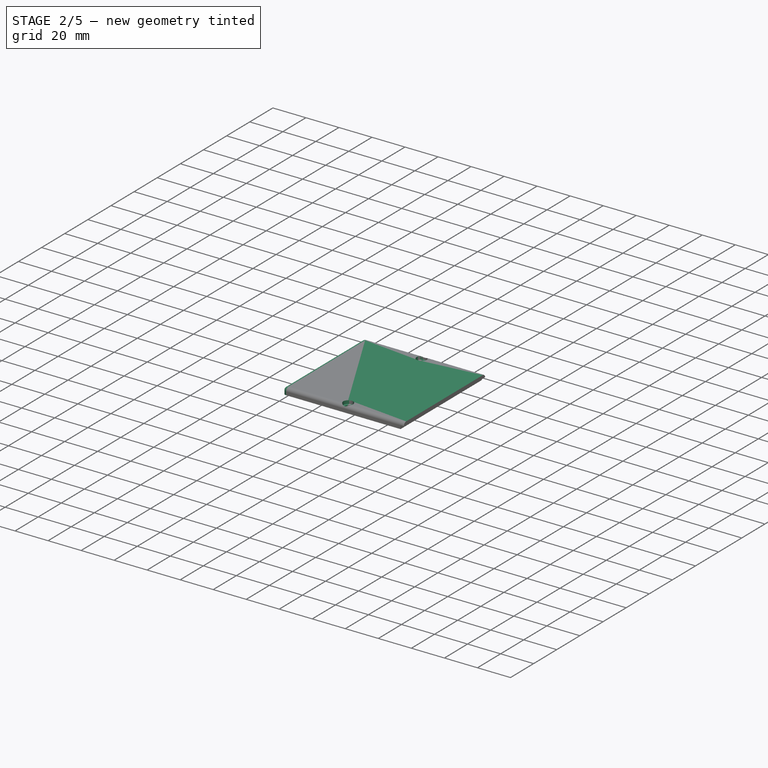
[diagram: stage 2 of 5 — iso view after this stage's code; geometry added in this stage tinted green]
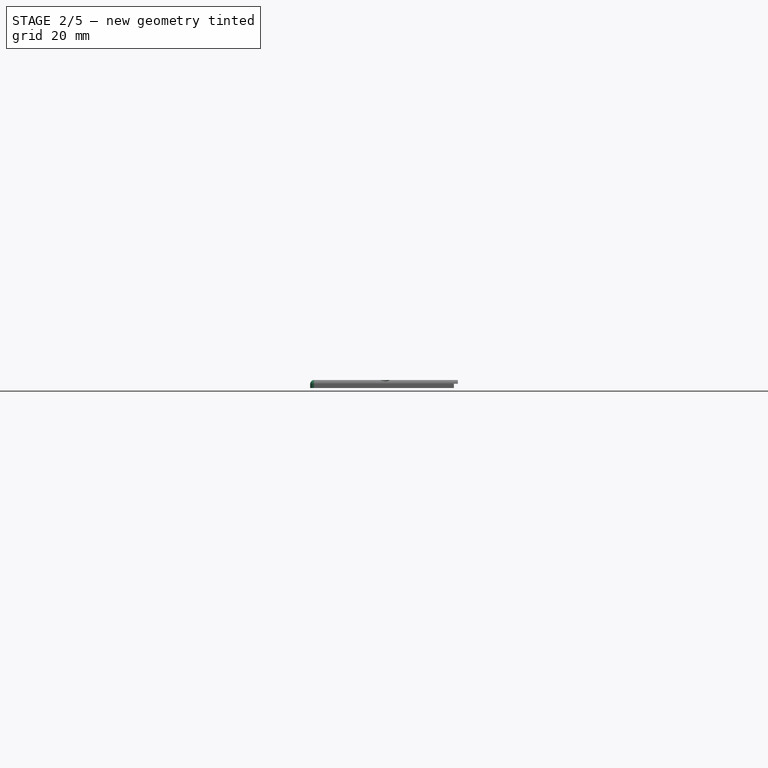
[diagram: stage 2 of 5 — front view after this stage's code; geometry added in this stage tinted green]
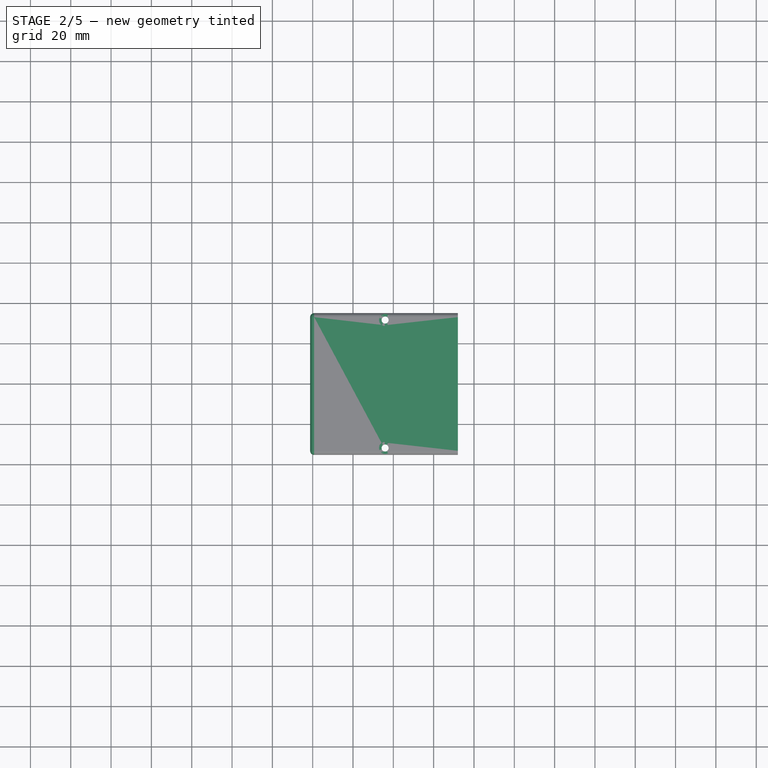
[diagram: stage 2 of 5 — top view after this stage's code; geometry added in this stage tinted green]
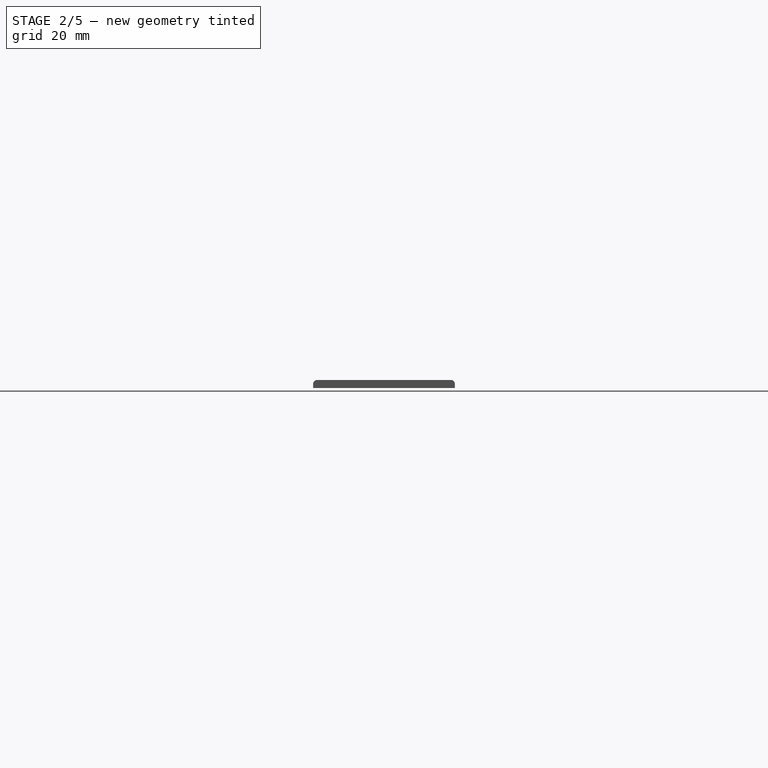
[diagram: stage 2 of 5 — right view after this stage's code; geometry added in this stage tinted green]
FEATURE [Sketcher::SketchObject] Sketch037  label="SB2B_Template_top"
  FullyConstrained = true
  MapMode = 5
  Support = -> [XY_Plane005]
  expr: Constraints[44] = <<SB2>>.YOffset
  expr: Constraints[43] = <<SB2>>.XOffset
  expr: Constraints[26] = <<SB2>>.InternalWidth
  expr: Constraints[25] = <<SB2>>.InternalLength
  expr: Constraints[39] = <<SocketBox>>.WallThickness
  sketch-geometry (30):
    g0: LineSegment StartX=-27.85 StartY=26.85 StartZ=0 EndX=27.85 EndY=26.85 EndZ=0
    g1: LineSegment StartX=27.85 StartY=26.85 StartZ=0 EndX=27.85 EndY=-26.85 EndZ=0
    g2: LineSegment StartX=27.85 StartY=-26.85 StartZ=0 EndX=-27.85 EndY=-26.85 EndZ=0
    g3: LineSegment StartX=-27.85 StartY=-26.85 StartZ=0 EndX=-27.85 EndY=26.85 EndZ=0
    g4: LineSegment StartX=-26.25 StartY=25.25 StartZ=0 EndX=26.25 EndY=25.25 EndZ=0
    g5: LineSegment StartX=26.25 StartY=25.25 StartZ=0 EndX=26.25 EndY=-25.25 EndZ=0
    g6: LineSegment StartX=26.25 StartY=-25.25 StartZ=0 EndX=-26.25 EndY=-25.25 EndZ=0
    g7: LineSegment StartX=-26.25 StartY=-25.25 StartZ=0 EndX=-26.25 EndY=25.25 EndZ=0
    g8: GeomPoint X=0 Y=0 Z=0
    g9: LineSegment StartX=0 StartY=26.85 StartZ=0 EndX=0 EndY=-26.85 EndZ=0
    g10: LineSegment StartX=-27.85 StartY=0 StartZ=0 EndX=27.85 EndY=0 EndZ=0
    g11: LineSegment StartX=-26.25 StartY=25.25 StartZ=0 EndX=-26.25 EndY=26.85 EndZ=0
    g12: LineSegment StartX=26.25 StartY=25.25 StartZ=0 EndX=27.85 EndY=25.25 EndZ=0
    g13: LineSegment StartX=26.25 StartY=-25.25 StartZ=0 EndX=26.25 EndY=-26.85 EndZ=0
    g14: LineSegment StartX=-26.25 StartY=-25.25 StartZ=0 EndX=-27.85 EndY=-25.25 EndZ=0
    g15: LineSegment StartX=-31.35 StartY=22.733 StartZ=0 EndX=-12.046 EndY=22.733 EndZ=0
    g16: LineSegment StartX=-12.046 StartY=22.733 StartZ=0 EndX=-12.046 EndY=-22.733 EndZ=0
    g17: LineSegment StartX=-12.046 StartY=-22.733 StartZ=0 EndX=-31.35 EndY=-22.733 EndZ=0
    g18: LineSegment StartX=-31.35 StartY=-22.733 StartZ=0 EndX=-31.35 EndY=22.733 EndZ=0
    g19: Circle CenterX=-28.048 CenterY=15.621 CenterZ=0 NormalX=0 NormalY=0 NormalZ=1 AngleXU=0 Radius=1.75
    g20: Circle CenterX=-15.348 CenterY=15.621 CenterZ=0 NormalX=0 NormalY=0 NormalZ=1 AngleXU=0 Radius=1.75
    g21: Circle CenterX=-28.048 CenterY=-19.431 CenterZ=0 NormalX=0 NormalY=0 NormalZ=1 AngleXU=0 Radius=1.75
    g22: Circle CenterX=-15.348 CenterY=-19.431 CenterZ=0 NormalX=0 NormalY=0 NormalZ=1 AngleXU=0 Radius=1.75
    g23: LineSegment StartX=-28.048 StartY=15.621 StartZ=0 EndX=-15.348 EndY=15.621 EndZ=0
    g24: LineSegment StartX=-15.348 StartY=15.621 StartZ=0 EndX=-15.348 EndY=-19.431 EndZ=0
    g25: LineSegment StartX=-15.348 StartY=-19.431 StartZ=0 EndX=-28.048 EndY=-19.431 EndZ=0
    g26: LineSegment StartX=-28.048 StartY=-19.431 StartZ=0 EndX=-28.048 EndY=15.621 EndZ=0
    g27: LineSegment StartX=-21.698 StartY=22.733 StartZ=0 EndX=-21.698 EndY=-22.733 EndZ=0
    g28: LineSegment StartX=-31.35 StartY=0 StartZ=0 EndX=-12.046 EndY=0 EndZ=0
    g29: Circle CenterX=19.652 CenterY=0 CenterZ=0 NormalX=0 NormalY=0 NormalZ=1 AngleXU=0 Radius=1.75
  constraints (88):
    c: Coincident(g0,g1)
    c: Coincident(g1,g2)
    c: Coincident(g2,g3)
    c: Coincident(g3,g0)
    c: Horizontal(g0)
    c: Horizontal(g2)
    c: Vertical(g1)
    c: Vertical(g3)
    c: Coincident(g4,g5)
    c: Coincident(g5,g6)
    c: Coincident(g6,g7)
    c: Coincident(g7,g4)
    c: Horizontal(g4)
    c: Horizontal(g6)
    c: Vertical(g5)
    c: Vertical(g7)
    c: Symmetric(g6,g4,g8)
    c: PointOnObject(g9,g0)
    c: PointOnObject(g9,g2)
    c: Vertical(g9)
    c: PointOnObject(g10,g3)
    c: PointOnObject(g10,g1)
    c: Horizontal(g10)
    c: PointOnObject(g8,g10)
    c: PointOnObject(g8,g9)
    c: DistanceX(g4,g4) = 52.5
    c: DistanceY(g7,g7) = 50.5
    c: Coincident(g11,g4)
    c: PointOnObject(g11,g0)
    c: Vertical(g11)
    c: Coincident(g12,g4)
    c: PointOnObject(g12,g1)
    c: Horizontal(g12)
    c: Coincident(g13,g5)
    c: PointOnObject(g13,g2)
    c: Vertical(g13)
    c: Coincident(g14,g6)
    c: PointOnObject(g14,g3)
    c: Horizontal(g14)
    c: DistanceX(g12,g12) = 1.6
    c: Equal(g11,g12)
    c: Equal(g12,g13)
    c: Equal(g13,g14)
    c: DistanceX(g-1,g9) = 0
    c: DistanceY(g-1,g10) = 0
    c: DistanceX(g0,g0) = 55.7
    c: Coincident(g15,g16)
    c: Coincident(g16,g17)
    c: Coincident(g17,g18)
    c: Coincident(g18,g15)
    c: Horizontal(g17)
    c: Vertical(g18)
    c: DistanceX(g15,g15) = 19.304
    c: DistanceY(g18,g18) = 45.466
    c: Equal(g19,g20)
    c: Equal(g20,g21)
    c: Equal(g21,g22)
    c: Coincident(g23,g24)
    c: Coincident(g24,g25)
    c: Coincident(g25,g26)
    c: Coincident(g26,g23)
    c: Horizontal(g25)
    c: Vertical(g24)
    c: Vertical(g26)
    c: Coincident(g23,g19)
    c: Coincident(g24,g22)
    c: Coincident(g21,g25)
    c: Coincident(g20,g23)
    c: DistanceX(g23,g23) = 12.7
    c: DistanceY(g26,g26) = 35.052
    c: DistanceY(g19,g15) = 7.112
    c: Radius(g20) = 1.75
    c: PointOnObject(g27,g17)
    c: Vertical(g27)
    c: PointOnObject(g28,g16)
    c: Horizontal(g28)
    c: Horizontal(g15)
    c: Symmetric(g15,g15,g27)
    c: Symmetric(g15,g17,g28)
    c: Vertical(g16)
    c: Symmetric(g19,g20,g27)
    c: PointOnObject(g28,g10)
    c: DistanceX(g15,g0) = 3.5
    c: PointOnObject(g29,g10)
    c: Equal(g29,g22)
    c: DistanceX(g20,g29) = 35
    c: DistanceX(g20,g9) = 15.348  'CenterFromRightPanelScrews'
    c: DistanceX(g15,g0) = 59.2
FEATURE [Sketcher::SketchObject] Sketch029  label="SB2B_PCBBumps"
  AttachmentOffset = pos=(0,0,1.6) rot=(0,0,1;0rad)
  ExternalGeometry = -> [Sketch037]
  FullyConstrained = true
  MapMode = 5
  Placement = pos=(0,0,1.6) rot=(0,0,1;0rad)
  Support = -> [XY_Plane005]
  expr: .AttachmentOffset.Base.z = <<SB2B_Base>>.AttachmentOffset.Base.z + <<SB2B_Base_>>.Length
  expr: Constraints[0] = <<SocketBox>>.PCBBumpRadius
  sketch-geometry (4):
    g0: Circle CenterX=-28.048 CenterY=15.621 CenterZ=0 NormalX=0 NormalY=0 NormalZ=1 AngleXU=0 Radius=3.2
    g1: Circle CenterX=-15.348 CenterY=15.621 CenterZ=0 NormalX=0 NormalY=0 NormalZ=1 AngleXU=0 Radius=3.2
    g2: Circle CenterX=-15.348 CenterY=-19.431 CenterZ=0 NormalX=0 NormalY=0 NormalZ=1 AngleXU=0 Radius=3.2
    g3: Circle CenterX=-28.048 CenterY=-19.431 CenterZ=0 NormalX=0 NormalY=0 NormalZ=1 AngleXU=0 Radius=3.2
  constraints (8):
    c: Radius(g3) = 3.2
    c: Equal(g3,g2)
    c: Equal(g3,g1)
    c: Equal(g3,g0)
    c: Coincident(g0,g-3)
    c: Coincident(g1,g-4)
    c: Coincident(g2,g-5)
    c: Coincident(g3,g-6)
FEATURE [Sketcher::SketchObject] Sketch032  label="SB2B_Walls"
  AttachmentOffset = pos=(0,0,1.6) rot=(0,0,1;0rad)
  ExternalGeometry = -> [Sketch037]
  FullyConstrained = true
  MapMode = 5
  Placement = pos=(0,0,1.6) rot=(0,0,1;0rad)
  Support = -> [XY_Plane005]
  expr: .AttachmentOffset.Base.z = <<SB2B_Base>>.AttachmentOffset.Base.z + <<SB2B_Base_>>.Length
  sketch-geometry (8):
    g0: LineSegment StartX=-27.85 StartY=26.85 StartZ=0 EndX=27.85 EndY=26.85 EndZ=0
    g1: LineSegment StartX=27.85 StartY=26.85 StartZ=0 EndX=27.85 EndY=-26.85 EndZ=0
    g2: LineSegment StartX=27.85 StartY=-26.85 StartZ=0 EndX=-27.85 EndY=-26.85 EndZ=0
    g3: LineSegment StartX=-27.85 StartY=-26.85 StartZ=0 EndX=-27.85 EndY=26.85 EndZ=0
    g4: LineSegment StartX=26.25 StartY=-25.25 StartZ=0 EndX=-26.25 EndY=-25.25 EndZ=0
    g5: LineSegment StartX=-26.25 StartY=-25.25 StartZ=0 EndX=-26.25 EndY=25.25 EndZ=0
    g6: LineSegment StartX=-26.25 StartY=25.25 StartZ=0 EndX=26.25 EndY=25.25 EndZ=0
    g7: LineSegment StartX=26.25 StartY=25.25 StartZ=0 EndX=26.25 EndY=-25.25 EndZ=0
  constraints (20):
    c: Coincident(g0,g1)
    c: Coincident(g1,g2)
    c: Coincident(g2,g3)
    c: Coincident(g3,g0)
    c: Horizontal(g0)
    c: Horizontal(g2)
    c: Vertical(g1)
    c: Vertical(g3)
    c: Coincident(g0,g-3)
    c: Coincident(g1,g-5)
    c: Coincident(g4,g5)
    c: Coincident(g5,g6)
    c: Coincident(g6,g7)
    c: Coincident(g7,g4)
    c: Horizontal(g4)
    c: Horizontal(g6)
    c: Vertical(g5)
    c: Vertical(g7)
    c: Coincident(g4,g-4)
    c: Coincident(g5,g-6)
FEATURE [Sketcher::SketchObject] Sketch034  label="SB2B_Base"
  ExternalGeometry = -> [Sketch037]
  FullyConstrained = true
  MapMode = 5
  Support = -> [XY_Plane005]
  expr: .AttachmentOffset.Base.z = <<SB1>>.ZOffset
  sketch-geometry (5):
    g0: LineSegment StartX=-31.35 StartY=26.85 StartZ=0 EndX=27.85 EndY=26.85 EndZ=0
    g1: LineSegment StartX=27.85 StartY=26.85 StartZ=0 EndX=27.85 EndY=-26.85 EndZ=0
    g2: LineSegment StartX=27.85 StartY=-26.85 StartZ=0 EndX=-31.35 EndY=-26.85 EndZ=0
    g3: LineSegment StartX=-31.35 StartY=-26.85 StartZ=0 EndX=-31.35 EndY=26.85 EndZ=0
    g4: Circle CenterX=19.652 CenterY=0 CenterZ=0 NormalX=0 NormalY=0 NormalZ=1 AngleXU=0 Radius=1.75
  constraints (12):
    c: Coincident(g0,g1)
    c: Coincident(g1,g2)
    c: Horizontal(g0)
    c: Horizontal(g2)
    c: Vertical(g3)
    c: PointOnObject(g-5,g3)
    c: Coincident(g0,g3)
    c: Coincident(g2,g3)
    c: Coincident(g1,g-4)
    c: Coincident(g0,g-3)
    c: Coincident(g4,g-6)
    c: Equal(g4,g-6)
FEATURE [Sketcher::SketchObject] Sketch035  label="SB2B_Template_lock"
  ExternalGeometry = -> [Sketch037]
  FullyConstrained = true
  MapMode = 5
  Placement = pos=(0,0,0) rot=(0.57735,0.57735,0.57735;2.0944rad)
  Support = -> [YZ_Plane005]
  expr: Constraints[15] = <<SocketBox>>.TotalHeight
  expr: Constraints[21] = <<SocketBox>>.BaseHeight
  expr: Constraints[51] = <<SB2>>.GrooveWidth
  expr: Constraints[14] = <<SocketBox>>.BottomThickness
  expr: Constraints[53] = <<SB2>>.AboveLock
  expr: Constraints[90] = <<SocketBox>>.PCBTolerance
  expr: Constraints[89] = <<SB2>>.GrooveLength
  expr: Constraints[84] = <<SB2>>.GrooveCornerDistance
  expr: Constraints[42] = <<SB2>>.LockHoleHeight
  sketch-geometry (27):
    g0: LineSegment StartX=-26.85 StartY=41.6 StartZ=0 EndX=26.85 EndY=41.6 EndZ=0
    g1: LineSegment StartX=26.85 StartY=41.6 StartZ=0 EndX=26.85 EndY=0 EndZ=0
    g2: LineSegment StartX=26.85 StartY=0 StartZ=0 EndX=-26.85 EndY=0 EndZ=0
    g3: LineSegment StartX=-26.85 StartY=0 StartZ=0 EndX=-26.85 EndY=41.6 EndZ=0
    g4: LineSegment StartX=-25.25 StartY=41.6 StartZ=0 EndX=-25.25 EndY=0 EndZ=0
    g5: LineSegment StartX=25.25 StartY=41.6 StartZ=0 EndX=25.25 EndY=0 EndZ=0
    g6: LineSegment StartX=-26.85 StartY=1.6 StartZ=0 EndX=26.85 EndY=1.6 EndZ=0
    g7: LineSegment StartX=0 StartY=0 StartZ=0 EndX=0 EndY=41.6 EndZ=0
    g8: LineSegment StartX=-6.5 StartY=41.6 StartZ=0 EndX=-6.5 EndY=33.6 EndZ=0
    g9: LineSegment StartX=-25.25 StartY=22.8 StartZ=0 EndX=25.25 EndY=22.8 EndZ=0
    g10: LineSegment StartX=-12.5 StartY=41.6 StartZ=0 EndX=-12.5 EndY=33.6 EndZ=0
    g11: LineSegment StartX=-17.5 StartY=41.6 StartZ=0 EndX=-17.5 EndY=33.6 EndZ=0
    g12: LineSegment StartX=-20.75 StartY=41.6 StartZ=0 EndX=-20.75 EndY=33.6 EndZ=0
    g13: LineSegment StartX=-22.25 StartY=41.6 StartZ=0 EndX=-22.25 EndY=33.6 EndZ=0
    g14: LineSegment StartX=6.5 StartY=41.6 StartZ=0 EndX=6.5 EndY=33.6 EndZ=0
    g15: LineSegment StartX=12.5 StartY=41.6 StartZ=0 EndX=12.5 EndY=33.6 EndZ=0
    g16: LineSegment StartX=17.5 StartY=41.6 StartZ=0 EndX=17.5 EndY=33.6 EndZ=0
    g17: LineSegment StartX=20.75 StartY=41.6 StartZ=0 EndX=20.75 EndY=33.6 EndZ=0
    g18: LineSegment StartX=22.25 StartY=41.6 StartZ=0 EndX=22.25 EndY=33.6 EndZ=0
    g19: LineSegment StartX=-25.25 StartY=37.6 StartZ=0 EndX=25.25 EndY=37.6 EndZ=0
    g20: LineSegment StartX=-25.25 StartY=34.6 StartZ=0 EndX=25.25 EndY=34.6 EndZ=0
    g21: LineSegment StartX=-26.85 StartY=33.6 StartZ=0 EndX=26.85 EndY=33.6 EndZ=0
    g22: LineSegment StartX=-11.75 StartY=41.6 StartZ=0 EndX=-11.75 EndY=33.6 EndZ=0
    g23: LineSegment StartX=11.75 StartY=41.6 StartZ=0 EndX=11.75 EndY=33.6 EndZ=0
    g24: LineSegment StartX=-23.733 StartY=1.6 StartZ=0 EndX=-23.733 EndY=22.8 EndZ=0
    g25: LineSegment StartX=23.733 StartY=1.6 StartZ=0 EndX=23.733 EndY=22.8 EndZ=0
    g26: LineSegment StartX=-11.75 StartY=39.1 StartZ=0 EndX=11.75 EndY=39.1 EndZ=0
  constraints (93):
    c: Coincident(g0,g1)
    c: Coincident(g1,g2)
    c: Coincident(g2,g3)
    c: Coincident(g3,g0)
    c: Horizontal(g0)
    c: Vertical(g1)
    c: Vertical(g3)
    c: PointOnObject(g4,g0)
    c: Vertical(g4)
    c: PointOnObject(g5,g0)
    c: Vertical(g5)
    c: PointOnObject(g6,g3)
    c: PointOnObject(g6,g1)
    c: Horizontal(g6)
    c: DistanceY(g2,g6) = 1.6
    c: DistanceY(g2,g0) = 41.6
    c: PointOnObject(g7,g2)
    c: Vertical(g8)
    c: PointOnObject(g9,g4)
    c: PointOnObject(g9,g5)
    c: Horizontal(g9)
    c: DistanceY(g6,g9) = 21.2
    c: Vertical(g10)
    c: PointOnObject(g11,g0)
    c: Vertical(g11)
    c: PointOnObject(g12,g0)
    c: Vertical(g12)
    c: PointOnObject(g13,g0)
    c: Vertical(g13)
    c: Vertical(g14)
    c: Vertical(g15)
    c: Vertical(g16)
    c: Vertical(g17)
    c: Vertical(g18)
    c: DistanceX(g10,g15) = 25
    c: DistanceX(g11,g16) = 35
    c: PointOnObject(g19,g4)
    c: PointOnObject(g19,g5)
    c: Horizontal(g19)
    c: PointOnObject(g20,g4)
    c: PointOnObject(g20,g5)
    c: Horizontal(g20)
    c: DistanceY(g20,g19) = 3
    c: PointOnObject(g15,g0)
    c: PointOnObject(g7,g0)
    c: Symmetric(g0,g0,g7)
    c: Symmetric(g11,g16,g7)
    c: Symmetric(g12,g17,g7)
    c: Symmetric(g8,g14,g7)
    c: Symmetric(g10,g15,g7)
    c: Symmetric(g13,g18,g7)
    c: DistanceX(g13,g12) = 1.5
    c: PointOnObject(g8,g0)
    c: DistanceY(g19,g0) = 4
    c: PointOnObject(g21,g3)
    c: PointOnObject(g21,g1)
    c: Horizontal(g21)
    c: PointOnObject(g13,g21)
    c: PointOnObject(g12,g21)
    c: PointOnObject(g11,g21)
    c: PointOnObject(g10,g21)
    c: PointOnObject(g8,g21)
    c: PointOnObject(g14,g21)
    c: PointOnObject(g15,g21)
    c: PointOnObject(g16,g21)
    c: PointOnObject(g17,g21)
    c: PointOnObject(g18,g21)
    c: PointOnObject(g22,g0)
    c: PointOnObject(g22,g21)
    c: Vertical(g22)
    c: PointOnObject(g23,g21)
    c: Vertical(g23)
    c: Symmetric(g23,g22,g7)
    c: DistanceX(g22,g23) = 23.5
    c: Coincident(g5,g-5)
    c: Coincident(g1,g-6)
    c: Coincident(g4,g-4)
    c: Coincident(g2,g-3)
    c: PointOnObject(g24,g6)
    c: PointOnObject(g24,g9)
    c: Vertical(g24)
    c: PointOnObject(g25,g9)
    c: Vertical(g25)
    c: Symmetric(g24,g25,g7)
    c: DistanceX(g4,g13) = 3
    c: PointOnObject(g26,g22)
    c: Horizontal(g26)
    c: DistanceX(g8,g14) = 13
    c: DistanceY(g21,g20) = 1
    c: DistanceY(g21,g0) = 8
    c: DistanceX(g24,g-7) = 1
    c: PointOnObject(g26,g23)
    c: DistanceY(g26,g23) = 2.5
FEATURE [Sketcher::SketchObject] Sketch031  label="SB2B_Template_passive"
  ExternalGeometry = -> [Sketch037,Sketch035]
  FullyConstrained = true
  MapMode = 5
  Placement = pos=(0,0,0) rot=(1,0,0;1.5708rad)
  Support = -> [XZ_Plane005]
  sketch-geometry (13):
    g0: LineSegment StartX=-27.85 StartY=41.6 StartZ=0 EndX=27.85 EndY=41.6 EndZ=0
    g1: LineSegment StartX=27.85 StartY=41.6 StartZ=0 EndX=27.85 EndY=0 EndZ=0
    g2: LineSegment StartX=27.85 StartY=0 StartZ=0 EndX=-27.85 EndY=0 EndZ=0
    g3: LineSegment StartX=-27.85 StartY=0 StartZ=0 EndX=-27.85 EndY=41.6 EndZ=0
    g4: LineSegment StartX=-26.25 StartY=41.6 StartZ=0 EndX=-26.25 EndY=1.6 EndZ=0
    g5: LineSegment StartX=26.25 StartY=41.6 StartZ=0 EndX=26.25 EndY=1.6 EndZ=0
    g6: LineSegment StartX=-26.25 StartY=1.6 StartZ=0 EndX=26.25 EndY=1.6 EndZ=0
    g7: LineSegment StartX=-26.25 StartY=37.6 StartZ=0 EndX=26.25 EndY=37.6 EndZ=0
    g8: LineSegment StartX=-9.2e-15 StartY=41.6 StartZ=0 EndX=-9.2e-15 EndY=0 EndZ=0
    g9: LineSegment StartX=-20.5 StartY=41.6 StartZ=0 EndX=-20.5 EndY=37.6 EndZ=0
    g10: LineSegment StartX=-11.5 StartY=41.6 StartZ=0 EndX=-11.5 EndY=37.6 EndZ=0
    g11: LineSegment StartX=20.5 StartY=41.6 StartZ=0 EndX=20.5 EndY=37.6 EndZ=0
    g12: LineSegment StartX=11.5 StartY=41.6 StartZ=0 EndX=11.5 EndY=37.6 EndZ=0
  constraints (42):
    c: Coincident(g0,g1)
    c: Coincident(g1,g2)
    c: Coincident(g2,g3)
    c: Coincident(g3,g0)
    c: Horizontal(g0)
    c: Vertical(g1)
    c: PointOnObject(g4,g0)
    c: Vertical(g4)
    c: PointOnObject(g5,g0)
    c: Vertical(g5)
    c: Horizontal(g6)
    c: PointOnObject(g7,g4)
    c: PointOnObject(g7,g5)
    c: Horizontal(g7)
    c: PointOnObject(g8,g0)
    c: PointOnObject(g8,g2)
    c: Symmetric(g0,g0,g8)
    c: PointOnObject(g9,g0)
    c: PointOnObject(g9,g7)
    c: Vertical(g9)
    c: PointOnObject(g10,g0)
    c: PointOnObject(g10,g7)
    c: Vertical(g10)
    c: PointOnObject(g11,g7)
    c: Vertical(g11)
    c: PointOnObject(g12,g7)
    c: Vertical(g12)
    c: Symmetric(g9,g11,g8)
    c: Symmetric(g10,g12,g8)
    c: DistanceX(g9,g11) = 41
    c: DistanceX(g10,g12) = 23
    c: Coincident(g4,g6)
    c: Coincident(g5,g6)
    c: DistanceX(g0,g0) = 55.7
    c: DistanceX(g4,g5) = 52.5
    c: Coincident(g1,g-6)
    c: Coincident(g2,g-3)
    c: PointOnObject(g-4,g4)
    c: PointOnObject(g-5,g5)
    c: Coincident(g8,g-7)
    c: PointOnObject(g-8,g7)
    c: PointOnObject(g-9,g6)
FEATURE [Sketcher::SketchObject] Sketch030  label="SB2B_SideHoles"
  ExternalGeometry = -> [Sketch031]
  FullyConstrained = true
  MapMode = 5
  Placement = pos=(0,0,0) rot=(1,0,0;1.5708rad)
  Support = -> [XZ_Plane005]
  sketch-geometry (16):
    g0: LineSegment StartX=-20.5 StartY=41.6 StartZ=0 EndX=-11.5 EndY=41.6 EndZ=0
    g1: LineSegment StartX=-11.5 StartY=41.6 StartZ=0 EndX=-11.5 EndY=37.6 EndZ=0
    g2: LineSegment StartX=-11.5 StartY=37.6 StartZ=0 EndX=-20.5 EndY=37.6 EndZ=0
    g3: LineSegment StartX=-20.5 StartY=37.6 StartZ=0 EndX=-20.5 EndY=41.6 EndZ=0
    g4: LineSegment StartX=11.5 StartY=41.6 StartZ=0 EndX=20.5 EndY=41.6 EndZ=0
    g5: LineSegment StartX=20.5 StartY=41.6 StartZ=0 EndX=20.5 EndY=37.6 EndZ=0
    g6: LineSegment StartX=20.5 StartY=37.6 StartZ=0 EndX=11.5 EndY=37.6 EndZ=0
    g7: LineSegment StartX=11.5 StartY=37.6 StartZ=0 EndX=11.5 EndY=41.6 EndZ=0
    g8: LineSegment StartX=-4 StartY=15.6 StartZ=0 EndX=4 EndY=15.6 EndZ=0
    g9: LineSegment StartX=5 StartY=14.6 StartZ=0 EndX=5 EndY=6.6 EndZ=0
    g10: LineSegment StartX=4 StartY=5.6 StartZ=0 EndX=-4 EndY=5.6 EndZ=0
    g11: LineSegment StartX=-5 StartY=6.6 StartZ=0 EndX=-5 EndY=14.6 EndZ=0
    g12: ArcOfCircle CenterX=-4 CenterY=14.6 CenterZ=0 NormalX=0 NormalY=0 NormalZ=1 AngleXU=0 Radius=1 StartAngle=1.5708 EndAngle=3.14159
    g13: ArcOfCircle CenterX=4 CenterY=14.6 CenterZ=0 NormalX=0 NormalY=0 NormalZ=1 AngleXU=0 Radius=1 StartAngle=0 EndAngle=1.5708
    g14: ArcOfCircle CenterX=4 CenterY=6.6 CenterZ=0 NormalX=0 NormalY=0 NormalZ=1 AngleXU=0 Radius=1 StartAngle=4.71239 EndAngle=6.28319
    g15: ArcOfCircle CenterX=-4 CenterY=6.6 CenterZ=0 NormalX=0 NormalY=0 NormalZ=1 AngleXU=0 Radius=1 StartAngle=3.14159 EndAngle=4.71239
  constraints (39):
    c: Coincident(g0,g1)
    c: Coincident(g1,g2)
    c: Coincident(g2,g3)
    c: Coincident(g3,g0)
    c: Horizontal(g0)
    c: Horizontal(g2)
    c: Vertical(g1)
    c: Vertical(g3)
    c: Coincident(g4,g5)
    c: Coincident(g5,g6)
    c: Coincident(g6,g7)
    c: Coincident(g7,g4)
    c: Horizontal(g4)
    c: Horizontal(g6)
    c: Vertical(g5)
    c: Vertical(g7)
    c: Coincident(g0,g-3)
    c: Coincident(g1,g-4)
    c: Coincident(g5,g-6)
    c: Coincident(g4,g-5)
    c: Horizontal(g8)
    c: Vertical(g9)
    c: Vertical(g11)
    c: Tangent(g8,g12) = 1.5708
    c: Tangent(g11,g12) = 1.5708
    c: Tangent(g8,g13) = 1.5708
    c: Tangent(g9,g13) = 1.5708
    c: Tangent(g9,g14) = 1.5708
    c: Tangent(g10,g14) = 1.5708
    c: Tangent(g10,g15) = 1.5708
    c: Tangent(g11,g15) = 1.5708
    c: Equal(g12,g15)
    c: Equal(g15,g14)
    c: Equal(g14,g13)
    c: Radius(g15) = 1
    c: Equal(g11,g8)
    c: DistanceX(g11,g9) = 10
    c: DistanceY(g-7,g10) = 4
    c: Symmetric(g10,g10,g-8)
FEATURE [Sketcher::SketchObject] Sketch033  label="SB2B_LockHoles"
  ExternalGeometry = -> [Sketch035]
  FullyConstrained = true
  MapMode = 5
  Placement = pos=(0,0,0) rot=(0.57735,0.57735,0.57735;2.0944rad)
  Support = -> [YZ_Plane005]
  sketch-geometry (16):
    g0: LineSegment StartX=-17.5 StartY=37.6 StartZ=0 EndX=-12.5 EndY=37.6 EndZ=0
    g1: LineSegment StartX=-12.5 StartY=37.6 StartZ=0 EndX=-12.5 EndY=34.6 EndZ=0
    g2: LineSegment StartX=-12.5 StartY=34.6 StartZ=0 EndX=-17.5 EndY=34.6 EndZ=0
    g3: LineSegment StartX=-17.5 StartY=34.6 StartZ=0 EndX=-17.5 EndY=37.6 EndZ=0
    g4: LineSegment StartX=12.5 StartY=37.6 StartZ=0 EndX=17.5 EndY=37.6 EndZ=0
    g5: LineSegment StartX=17.5 StartY=37.6 StartZ=0 EndX=17.5 EndY=34.6 EndZ=0
    g6: LineSegment StartX=17.5 StartY=34.6 StartZ=0 EndX=12.5 EndY=34.6 EndZ=0
    g7: LineSegment StartX=12.5 StartY=34.6 StartZ=0 EndX=12.5 EndY=37.6 EndZ=0
    g8: LineSegment StartX=-6.5 StartY=41.6 StartZ=0 EndX=-11.75 EndY=41.6 EndZ=0
    g9: LineSegment StartX=-11.75 StartY=41.6 StartZ=0 EndX=-11.75 EndY=39.1 EndZ=0
    g10: LineSegment StartX=-11.75 StartY=39.1 StartZ=0 EndX=-6.5 EndY=39.1 EndZ=0
    g11: LineSegment StartX=-6.5 StartY=39.1 StartZ=0 EndX=-6.5 EndY=41.6 EndZ=0
    g12: LineSegment StartX=6.5 StartY=41.6 StartZ=0 EndX=11.75 EndY=41.6 EndZ=0
    g13: LineSegment StartX=11.75 StartY=41.6 StartZ=0 EndX=11.75 EndY=39.1 EndZ=0
    g14: LineSegment StartX=11.75 StartY=39.1 StartZ=0 EndX=6.5 EndY=39.1 EndZ=0
    g15: LineSegment StartX=6.5 StartY=39.1 StartZ=0 EndX=6.5 EndY=41.6 EndZ=0
  constraints (44):
    c: Coincident(g0,g1)
    c: Coincident(g1,g2)
    c: Coincident(g2,g3)
    c: Coincident(g3,g0)
    c: Horizontal(g0)
    c: Horizontal(g2)
    c: Vertical(g1)
    c: Vertical(g3)
    c: PointOnObject(g0,g-5)
    c: PointOnObject(g1,g-6)
    c: PointOnObject(g0,g-3)
    c: PointOnObject(g2,g-4)
    c: Coincident(g4,g5)
    c: Coincident(g5,g6)
    c: Coincident(g6,g7)
    c: Coincident(g7,g4)
    c: Horizontal(g4)
    c: Horizontal(g6)
    c: Vertical(g5)
    c: Vertical(g7)
    c: PointOnObject(g4,g-7)
    c: PointOnObject(g5,g-8)
    c: PointOnObject(g6,g-4)
    c: PointOnObject(g4,g-3)
    c: Coincident(g8,g9)
    c: Coincident(g9,g10)
    c: Coincident(g10,g11)
    c: Coincident(g11,g8)
    c: Horizontal(g8)
    c: Horizontal(g10)
    c: Vertical(g9)
    c: Vertical(g11)
    c: Coincident(g8,g-11)
    c: Coincident(g9,g-9)
    c: Coincident(g12,g13)
    c: Coincident(g13,g14)
    c: Coincident(g14,g15)
    c: Coincident(g15,g12)
    c: Horizontal(g12)
    c: Horizontal(g14)
    c: Vertical(g13)
    c: Vertical(g15)
    c: Coincident(g12,g-12)
    c: Coincident(g13,g-9)
FEATURE [Sketcher::SketchObject] Sketch036  label="SB2B_LockGroove"
  AttachmentOffset = pos=(0,0,41.6) rot=(0,0,1;0rad)
  ExternalGeometry = -> [Sketch037,Sketch035]
  FullyConstrained = true
  MapMode = 5
  Placement = pos=(0,0,41.6) rot=(0,0,1;0rad)
  Support = -> [XY_Plane005]
  expr: Constraints[47] = <<SB2>>.GrooveDepth
  expr: .AttachmentOffset.Base.z = <<SB2B_Walls>>.AttachmentOffset.Base.z + <<SB2B_Walls_>>.Length
  sketch-geometry (16):
    g0: LineSegment StartX=-26.25 StartY=22.25 StartZ=0 EndX=-26.65 EndY=22.25 EndZ=0
    g1: LineSegment StartX=-26.65 StartY=22.25 StartZ=0 EndX=-26.65 EndY=20.75 EndZ=0
    g2: LineSegment StartX=-26.65 StartY=20.75 StartZ=0 EndX=-26.25 EndY=20.75 EndZ=0
    g3: LineSegment StartX=-26.25 StartY=20.75 StartZ=0 EndX=-26.25 EndY=22.25 EndZ=0
    g4: LineSegment StartX=26.25 StartY=22.25 StartZ=0 EndX=26.65 EndY=22.25 EndZ=0
    g5: LineSegment StartX=26.65 StartY=22.25 StartZ=0 EndX=26.65 EndY=20.75 EndZ=0
    g6: LineSegment StartX=26.65 StartY=20.75 StartZ=0 EndX=26.25 EndY=20.75 EndZ=0
    g7: LineSegment StartX=26.25 StartY=20.75 StartZ=0 EndX=26.25 EndY=22.25 EndZ=0
    g8: LineSegment StartX=-26.25 StartY=-22.25 StartZ=0 EndX=-26.65 EndY=-22.25 EndZ=0
    g9: LineSegment StartX=-26.65 StartY=-22.25 StartZ=0 EndX=-26.65 EndY=-20.75 EndZ=0
    g10: LineSegment StartX=-26.65 StartY=-20.75 StartZ=0 EndX=-26.25 EndY=-20.75 EndZ=0
    g11: LineSegment StartX=-26.25 StartY=-20.75 StartZ=0 EndX=-26.25 EndY=-22.25 EndZ=0
    g12: LineSegment StartX=26.25 StartY=-22.25 StartZ=0 EndX=26.65 EndY=-22.25 EndZ=0
    g13: LineSegment StartX=26.65 StartY=-22.25 StartZ=0 EndX=26.65 EndY=-20.75 EndZ=0
    g14: LineSegment StartX=26.65 StartY=-20.75 StartZ=0 EndX=26.25 EndY=-20.75 EndZ=0
    g15: LineSegment StartX=26.25 StartY=-20.75 StartZ=0 EndX=26.25 EndY=-22.25 EndZ=0
  constraints (48):
    c: Coincident(g0,g1)
    c: Coincident(g1,g2)
    c: Coincident(g2,g3)
    c: Coincident(g3,g0)
    c: Horizontal(g0)
    c: Horizontal(g2)
    c: Vertical(g1)
    c: PointOnObject(g0,g-3)
    c: Coincident(g4,g5)
    c: Coincident(g5,g6)
    c: Coincident(g6,g7)
    c: Coincident(g7,g4)
    c: Horizontal(g4)
    c: Horizontal(g6)
    c: Vertical(g5)
    c: PointOnObject(g4,g-4)
    c: Coincident(g8,g9)
    c: Coincident(g9,g10)
    c: Coincident(g10,g11)
    c: Coincident(g11,g8)
    c: Horizontal(g8)
    c: Horizontal(g10)
    c: Vertical(g9)
    c: PointOnObject(g8,g-3)
    c: Coincident(g12,g13)
    c: Coincident(g13,g14)
    c: Coincident(g14,g15)
    c: Coincident(g15,g12)
    c: Horizontal(g12)
    c: Horizontal(g14)
    c: Vertical(g13)
    c: PointOnObject(g12,g-4)
    c: Equal(g0,g4)
    c: Equal(g4,g12)
    c: Equal(g12,g8)
    c: PointOnObject(g2,g-3)
    c: PointOnObject(g10,g-3)
    c: PointOnObject(g14,g-4)
    c: PointOnObject(g6,g-4)
    c: PointOnObject(g-5,g0)
    c: PointOnObject(g-6,g2)
    c: PointOnObject(g-6,g6)
    c: PointOnObject(g-5,g4)
    c: PointOnObject(g-7,g10)
    c: PointOnObject(g-8,g8)
    c: PointOnObject(g-8,g12)
    c: PointOnObject(g-7,g14)
    c: DistanceX(g0,g0) = 0.4
FEATURE [PartDesign::Pad] Pad011  label="SB2B_Base_"
  Direction = (1,1,1)
  Length = 1.6
  Length2 = 100
  Profile = -> Sketch034
  Type = 0
  expr: Length = <<SocketBox>>.BottomThickness
FEATURE [PartDesign::Pad] Pad010  label="SB2B_Walls_"
  BaseFeature = -> Pad011
  Direction = (1,1,1)
  Length = 40
  Length2 = 100
  Profile = -> Sketch032
  Type = 0
  expr: Length = <<SocketBox>>.TotalWallHeight
FEATURE [PartDesign::Chamfer] Chamfer001  label="SB2B_Chamfer"
  Angle = 45
  Base = -> Pad010 [Edge27,Edge29]
  BaseFeature = -> Pad010
  ChamferType = 0
  FlipDirection = false
  Size = 1.15
  Size2 = 1
  SupportTransform = false
  expr: Size = <<SocketBox>>.WallThickness - 0.45mm
FEATURE [PartDesign::Fillet] Fillet004  label="SB2B_Fillet"
  Base = -> Chamfer001 [Edge20,Edge22,Edge28,Edge13,Edge30,Edge16,Edge21,Edge15,Edge25,Edge26,Edge33,Edge34,Edge42,Edge36]
  BaseFeature = -> Chamfer001
  Radius = 1
  SupportTransform = false
FEATURE [PartDesign::Pocket] Pocket007  label="SB2B_LockHoles_"
  BaseFeature = -> Fillet004
  Length = 5
  Length2 = 100
  Midplane = true
  Profile = -> Sketch033
  Type = 1
FEATURE [PartDesign::Body] Body004  label="SB1C"
  Group = -> [Sketch043,Sketch044,Sketch047,Sketch041,Pad012,Sketch046,Pad014,Sketch039,Fillet005,Pocket011,Sketch040,Pocket013,Sketch042,Pad013,Sketch045,Pocket012]
  Origin = -> Origin006
  Tip = -> Pocket012
FEATURE [Sketcher::SketchObject] Sketch050  label="SB2B_PCBHoles"
  AttachmentOffset = pos=(0,0,3.8) rot=(0,0,1;0rad)
  ExternalGeometry = -> [Sketch037]
  FullyConstrained = true
  MapMode = 5
  Placement = pos=(0,0,3.8) rot=(0,0,1;0rad)
  Support = -> [XY_Plane005]
  expr: .AttachmentOffset.Base.z = <<SB2B_PCBBumps>>.AttachmentOffset.Base.z + <<SB2B_PCBBumps_>>.Length
  sketch-geometry (4):
    g0: Circle CenterX=-28.048 CenterY=15.621 CenterZ=0 NormalX=0 NormalY=0 NormalZ=1 AngleXU=0 Radius=1.75
    g1: Circle CenterX=-15.348 CenterY=15.621 CenterZ=0 NormalX=0 NormalY=0 NormalZ=1 AngleXU=0 Radius=1.75
    g2: Circle CenterX=-15.348 CenterY=-19.431 CenterZ=0 NormalX=0 NormalY=0 NormalZ=1 AngleXU=0 Radius=1.75
    g3: Circle CenterX=-28.048 CenterY=-19.431 CenterZ=0 NormalX=0 NormalY=0 NormalZ=1 AngleXU=0 Radius=1.75
  constraints (8):
    c: Coincident(g0,g-3)
    c: Coincident(g1,g-4)
    c: Coincident(g2,g-5)
    c: Coincident(g3,g-6)
    c: Equal(g3,g-6)
    c: Equal(g2,g-5)
    c: Equal(g1,g-4)
    c: Equal(g-3,g0)
FEATURE [Sketcher::SketchObject] Sketch051  label="SB2C_Template_top"
  FullyConstrained = true
  MapMode = 5
  Support = -> [XY_Plane007]
  expr: Constraints[39] = <<SocketBox>>.WallThickness
  expr: Constraints[25] = <<SB2>>.InternalWidth
  expr: Constraints[26] = <<SB2>>.InternalLength
  expr: Constraints[43] = <<SB2>>.XOffset
  expr: Constraints[44] = <<SB2>>.YOffset
  sketch-geometry (30):
    g0: LineSegment StartX=-26.85 StartY=27.85 StartZ=0 EndX=26.85 EndY=27.85 EndZ=0
    g1: LineSegment StartX=26.85 StartY=27.85 StartZ=0 EndX=26.85 EndY=-27.85 EndZ=0
    g2: LineSegment StartX=26.85 StartY=-27.85 StartZ=0 EndX=-26.85 EndY=-27.85 EndZ=0
    g3: LineSegment StartX=-26.85 StartY=-27.85 StartZ=0 EndX=-26.85 EndY=27.85 EndZ=0
    g4: LineSegment StartX=-25.25 StartY=26.25 StartZ=0 EndX=25.25 EndY=26.25 EndZ=0
    g5: LineSegment StartX=25.25 StartY=26.25 StartZ=0 EndX=25.25 EndY=-26.25 EndZ=0
    g6: LineSegment StartX=25.25 StartY=-26.25 StartZ=0 EndX=-25.25 EndY=-26.25 EndZ=0
    g7: LineSegment StartX=-25.25 StartY=-26.25 StartZ=0 EndX=-25.25 EndY=26.25 EndZ=0
    g8: GeomPoint X=0 Y=0 Z=0
    g9: LineSegment StartX=0 StartY=27.85 StartZ=0 EndX=0 EndY=-27.85 EndZ=0
    g10: LineSegment StartX=-26.85 StartY=0 StartZ=0 EndX=26.85 EndY=0 EndZ=0
    g11: LineSegment StartX=-25.25 StartY=26.25 StartZ=0 EndX=-25.25 EndY=27.85 EndZ=0
    g12: LineSegment StartX=25.25 StartY=26.25 StartZ=0 EndX=26.85 EndY=26.25 EndZ=0
    g13: LineSegment StartX=25.25 StartY=-26.25 StartZ=0 EndX=25.25 EndY=-27.85 EndZ=0
    g14: LineSegment StartX=-25.25 StartY=-26.25 StartZ=0 EndX=-26.85 EndY=-26.25 EndZ=0
    g15: LineSegment StartX=-22.733 StartY=-12.046 StartZ=0 EndX=22.733 EndY=-12.046 EndZ=0
    g16: LineSegment StartX=22.733 StartY=-12.046 StartZ=0 EndX=22.733 EndY=-31.35 EndZ=0
    g17: LineSegment StartX=22.733 StartY=-31.35 StartZ=0 EndX=-22.733 EndY=-31.35 EndZ=0
    g18: LineSegment StartX=-22.733 StartY=-31.35 StartZ=0 EndX=-22.733 EndY=-12.046 EndZ=0
    g19: LineSegment StartX=0 StartY=-12.046 StartZ=0 EndX=0 EndY=-31.35 EndZ=0
    g20: LineSegment StartX=-22.733 StartY=-21.698 StartZ=0 EndX=22.733 EndY=-21.698 EndZ=0
    g21: LineSegment StartX=-15.621 StartY=-15.348 StartZ=0 EndX=19.431 EndY=-15.348 EndZ=0
    g22: LineSegment StartX=19.431 StartY=-15.348 StartZ=0 EndX=19.431 EndY=-28.048 EndZ=0
    g23: LineSegment StartX=19.431 StartY=-28.048 StartZ=0 EndX=-15.621 EndY=-28.048 EndZ=0
    g24: LineSegment StartX=-15.621 StartY=-28.048 StartZ=0 EndX=-15.621 EndY=-15.348 EndZ=0
    g25: Circle CenterX=-15.621 CenterY=-15.348 CenterZ=0 NormalX=0 NormalY=0 NormalZ=1 AngleXU=0 Radius=1.75
    g26: Circle CenterX=19.431 CenterY=-15.348 CenterZ=0 NormalX=0 NormalY=0 NormalZ=1 AngleXU=0 Radius=1.75
    g27: Circle CenterX=19.431 CenterY=-28.048 CenterZ=0 NormalX=0 NormalY=0 NormalZ=1 AngleXU=0 Radius=1.75
    g28: Circle CenterX=-15.621 CenterY=-28.048 CenterZ=0 NormalX=0 NormalY=0 NormalZ=1 AngleXU=0 Radius=1.75
    g29: Circle CenterX=0 CenterY=19.652 CenterZ=0 NormalX=0 NormalY=0 NormalZ=1 AngleXU=0 Radius=1.75
  constraints (87):
    c: Coincident(g0,g1)
    c: Coincident(g1,g2)
    c: Coincident(g2,g3)
    c: Coincident(g3,g0)
    c: Horizontal(g0)
    c: Horizontal(g2)
    c: Vertical(g1)
    c: Vertical(g3)
    c: Coincident(g4,g5)
    c: Coincident(g5,g6)
    c: Coincident(g6,g7)
    c: Coincident(g7,g4)
    c: Horizontal(g4)
    c: Horizontal(g6)
    c: Vertical(g5)
    c: Vertical(g7)
    c: Symmetric(g6,g4,g8)
    c: PointOnObject(g9,g0)
    c: PointOnObject(g9,g2)
    c: Vertical(g9)
    c: PointOnObject(g10,g3)
    c: PointOnObject(g10,g1)
    c: Horizontal(g10)
    c: PointOnObject(g8,g10)
    c: PointOnObject(g8,g9)
    c: DistanceX(g4,g4) = 50.5
    c: DistanceY(g7,g7) = 52.5
    c: Coincident(g11,g4)
    c: PointOnObject(g11,g0)
    c: Vertical(g11)
    c: Coincident(g12,g4)
    c: PointOnObject(g12,g1)
    c: Horizontal(g12)
    c: Coincident(g13,g5)
    c: PointOnObject(g13,g2)
    c: Vertical(g13)
    c: Coincident(g14,g6)
    c: PointOnObject(g14,g3)
    c: Horizontal(g14)
    c: DistanceX(g12,g12) = 1.6
    c: Equal(g11,g12)
    c: Equal(g12,g13)
    c: Equal(g13,g14)
    c: DistanceX(g-1,g9) = 0
    c: DistanceY(g-1,g10) = 0
    c: DistanceX(g0,g0) = 53.7
    c: Coincident(g15,g16)
    c: Coincident(g16,g17)
    c: Coincident(g17,g18)
    c: Coincident(g18,g15)
    c: Horizontal(g15)
    c: Horizontal(g17)
    c: Vertical(g16)
    c: Vertical(g18)
    c: PointOnObject(g19,g17)
    c: Vertical(g19)
    c: PointOnObject(g20,g16)
    c: Horizontal(g20)
    c: Symmetric(g15,g17,g20)
    c: Symmetric(g15,g15,g19)
    c: DistanceY(g18,g18) = 19.304
    c: DistanceX(g15,g15) = 45.466
    c: Coincident(g21,g22)
    c: Coincident(g22,g23)
    c: Coincident(g23,g24)
    c: Coincident(g24,g21)
    c: Horizontal(g21)
    c: Horizontal(g23)
    c: Vertical(g22)
    c: Symmetric(g21,g23,g20)
    c: DistanceX(g21,g21) = 35.052
    c: DistanceX(g15,g21) = 7.112
    c: Coincident(g25,g21)
    c: Coincident(g26,g21)
    c: Coincident(g27,g22)
    c: Coincident(g28,g23)
    c: Radius(g25) = 1.75
    c: Equal(g25,g26)
    c: Equal(g26,g27)
    c: Equal(g27,g28)
    c: PointOnObject(g19,g9)
    c: DistanceY(g17,g2) = 3.5
    c: DistanceY(g28,g25) = 12.7
    c: PointOnObject(g29,g9)
    c: Equal(g28,g29)
    c: DistanceY(g25,g29) = 35
    c: DistanceY(g17,g0) = 59.2
FEATURE [Sketcher::SketchObject] Sketch052  label="SB2C_Template_lock"
  ExternalGeometry = -> [Sketch051]
  FullyConstrained = true
  MapMode = 5
  Placement = pos=(0,0,0) rot=(1,0,0;1.5708rad)
  Support = -> [XZ_Plane007]
  expr: Constraints[87] = <<SocketBox>>.TotalHeight
  expr: Constraints[85] = <<SB2>>.GrooveCornerDistance
  expr: Constraints[88] = <<SB2>>.AboveLock
  expr: Constraints[86] = <<SB2>>.GrooveWidth
  expr: Constraints[89] = <<SB2>>.GrooveLength
  expr: Constraints[90] = <<SB2>>.LockHoleHeight
  expr: Constraints[83] = <<SocketBox>>.PCBTolerance
  expr: Constraints[84] = <<SocketBox>>.BaseHeight
  expr: Constraints[82] = <<SocketBox>>.BottomThickness
  sketch-geometry (27):
    g0: LineSegment StartX=26.85 StartY=41.6 StartZ=0 EndX=-26.85 EndY=41.6 EndZ=0
    g1: LineSegment StartX=-26.85 StartY=41.6 StartZ=0 EndX=-26.85 EndY=7.1e-15 EndZ=0
    g2: LineSegment StartX=-26.85 StartY=7.1e-15 StartZ=0 EndX=26.85 EndY=-6.2e-15 EndZ=0
    g3: LineSegment StartX=26.85 StartY=-6.2e-15 StartZ=0 EndX=26.85 EndY=41.6 EndZ=0
    g4: LineSegment StartX=25.25 StartY=41.6 StartZ=0 EndX=25.25 EndY=-7.1e-15 EndZ=0
    g5: LineSegment StartX=-25.25 StartY=41.6 StartZ=0 EndX=-25.25 EndY=7.1e-15 EndZ=0
    g6: LineSegment StartX=26.85 StartY=1.6 StartZ=0 EndX=-26.85 EndY=1.6 EndZ=0
    g7: LineSegment StartX=0 StartY=0 StartZ=0 EndX=0 EndY=41.6 EndZ=0
    g8: LineSegment StartX=-6.5 StartY=41.6 StartZ=0 EndX=-6.5 EndY=33.6 EndZ=0
    g9: LineSegment StartX=25.25 StartY=22.8 StartZ=0 EndX=-25.25 EndY=22.8 EndZ=0
    g10: LineSegment StartX=-12.5 StartY=41.6 StartZ=0 EndX=-12.5 EndY=33.6 EndZ=0
    g11: LineSegment StartX=-17.5 StartY=41.6 StartZ=0 EndX=-17.5 EndY=33.6 EndZ=0
    g12: LineSegment StartX=22.25 StartY=41.6 StartZ=0 EndX=22.25 EndY=33.6 EndZ=0
    g13: LineSegment StartX=20.75 StartY=41.6 StartZ=0 EndX=20.75 EndY=33.6 EndZ=0
    g14: LineSegment StartX=6.5 StartY=41.6 StartZ=0 EndX=6.5 EndY=33.6 EndZ=0
    g15: LineSegment StartX=12.5 StartY=41.6 StartZ=0 EndX=12.5 EndY=33.6 EndZ=0
    g16: LineSegment StartX=17.5 StartY=41.6 StartZ=0 EndX=17.5 EndY=33.6 EndZ=0
    g17: LineSegment StartX=-22.25 StartY=41.6 StartZ=0 EndX=-22.25 EndY=33.6 EndZ=0
    g18: LineSegment StartX=-20.75 StartY=41.6 StartZ=0 EndX=-20.75 EndY=33.6 EndZ=0
    g19: LineSegment StartX=25.25 StartY=37.6 StartZ=0 EndX=-25.25 EndY=37.6 EndZ=0
    g20: LineSegment StartX=25.25 StartY=34.6 StartZ=0 EndX=-25.25 EndY=34.6 EndZ=0
    g21: LineSegment StartX=26.85 StartY=33.6 StartZ=0 EndX=-26.85 EndY=33.6 EndZ=0
    g22: LineSegment StartX=-11.75 StartY=41.6 StartZ=0 EndX=-11.75 EndY=33.6 EndZ=0
    g23: LineSegment StartX=11.75 StartY=41.6 StartZ=0 EndX=11.75 EndY=33.6 EndZ=0
    g24: LineSegment StartX=23.733 StartY=1.6 StartZ=0 EndX=23.733 EndY=22.8 EndZ=0
    g25: LineSegment StartX=-23.733 StartY=1.6 StartZ=0 EndX=-23.733 EndY=22.8 EndZ=0
    g26: LineSegment StartX=-11.75 StartY=39.1 StartZ=0 EndX=11.75 EndY=39.1 EndZ=0
  constraints (93):
    c: Coincident(g0,g1)
    c: Coincident(g1,g2)
    c: Coincident(g2,g3)
    c: Coincident(g3,g0)
    c: Horizontal(g0)
    c: Vertical(g1)
    c: Vertical(g3)
    c: PointOnObject(g4,g0)
    c: Vertical(g4)
    c: PointOnObject(g5,g0)
    c: Vertical(g5)
    c: PointOnObject(g6,g3)
    c: PointOnObject(g6,g1)
    c: Horizontal(g6)
    c: PointOnObject(g7,g2)
    c: Vertical(g8)
    c: PointOnObject(g9,g4)
    c: PointOnObject(g9,g5)
    c: Horizontal(g9)
    c: Vertical(g10)
    c: PointOnObject(g11,g0)
    c: Vertical(g11)
    c: PointOnObject(g12,g0)
    c: Vertical(g12)
    c: PointOnObject(g13,g0)
    c: Vertical(g13)
    c: Vertical(g14)
    c: Vertical(g15)
    c: Vertical(g16)
    c: Vertical(g17)
    c: Vertical(g18)
    c: DistanceX(g10,g15) = 25
    c: DistanceX(g11,g16) = 35
    c: PointOnObject(g19,g4)
    c: PointOnObject(g19,g5)
    c: Horizontal(g19)
    c: PointOnObject(g20,g4)
    c: PointOnObject(g20,g5)
    c: Horizontal(g20)
    c: PointOnObject(g15,g0)
    c: PointOnObject(g7,g0)
    c: Symmetric(g0,g0,g7)
    c: Symmetric(g11,g16,g7)
    c: Symmetric(g12,g17,g7)
    c: Symmetric(g8,g14,g7)
    c: Symmetric(g10,g15,g7)
    c: Symmetric(g13,g18,g7)
    c: PointOnObject(g8,g0)
    c: PointOnObject(g21,g3)
    c: PointOnObject(g21,g1)
    c: Horizontal(g21)
    c: PointOnObject(g13,g21)
    c: PointOnObject(g12,g21)
    c: PointOnObject(g11,g21)
    c: PointOnObject(g10,g21)
    c: PointOnObject(g8,g21)
    c: PointOnObject(g14,g21)
    c: PointOnObject(g15,g21)
    c: PointOnObject(g16,g21)
    c: PointOnObject(g17,g21)
    c: PointOnObject(g18,g21)
    c: PointOnObject(g22,g0)
    c: PointOnObject(g22,g21)
    c: Vertical(g22)
    c: PointOnObject(g23,g21)
    c: Vertical(g23)
    c: Symmetric(g23,g22,g7)
    c: DistanceX(g22,g23) = 23.5
    c: Coincident(g5,g-5)
    c: Coincident(g1,g-6)
    c: Coincident(g4,g-4)
    c: Coincident(g2,g-3)
    c: PointOnObject(g24,g6)
    c: PointOnObject(g24,g9)
    c: Vertical(g24)
    c: PointOnObject(g25,g9)
    c: Vertical(g25)
    c: Symmetric(g24,g25,g7)
    c: PointOnObject(g26,g22)
    c: Horizontal(g26)
    c: DistanceX(g8,g14) = 13
    c: DistanceY(g21,g20) = 1
    c: DistanceY(g1,g6) = 1.6
    c: DistanceX(g25,g-7) = 1
    c: DistanceY(g6,g9) = 21.2
    c: DistanceX(g5,g17) = 3
    c: DistanceX(g17,g18) = 1.5
    c: DistanceY(g1,g0) = 41.6
    c: DistanceY(g19,g0) = 4
    c: DistanceY(g21,g0) = 8
    c: DistanceY(g20,g19) = 3
    c: PointOnObject(g26,g23)
    c: DistanceY(g26,g23) = 2.5
FEATURE [Sketcher::SketchObject] Sketch053  label="SB2C_Template_passive"
  ExternalGeometry = -> [Sketch051,Sketch052]
  FullyConstrained = true
  MapMode = 5
  Placement = pos=(0,0,0) rot=(0.57735,0.57735,0.57735;2.0944rad)
  Support = -> [YZ_Plane007]
  sketch-geometry (18):
    g0: LineSegment StartX=-27.85 StartY=41.6 StartZ=0 EndX=27.85 EndY=41.6 EndZ=0
    g1: LineSegment StartX=27.85 StartY=41.6 StartZ=0 EndX=27.85 EndY=0 EndZ=0
    g2: LineSegment StartX=27.85 StartY=0 StartZ=0 EndX=-27.85 EndY=-3e-16 EndZ=0
    g3: LineSegment StartX=-27.85 StartY=-3e-16 StartZ=0 EndX=-27.85 EndY=41.6 EndZ=0
    g4: LineSegment StartX=-26.25 StartY=41.6 StartZ=0 EndX=-26.25 EndY=1.6 EndZ=0
    g5: LineSegment StartX=26.25 StartY=41.6 StartZ=0 EndX=26.25 EndY=1.6 EndZ=0
    g6: LineSegment StartX=-26.25 StartY=1.6 StartZ=0 EndX=26.25 EndY=1.6 EndZ=0
    g7: LineSegment StartX=-26.25 StartY=37.6 StartZ=0 EndX=26.25 EndY=37.6 EndZ=0
    g8: LineSegment StartX=-1.85e-14 StartY=41.6 StartZ=0 EndX=-1.85e-14 EndY=0 EndZ=0
    g9: LineSegment StartX=-20.5 StartY=41.6 StartZ=0 EndX=-20.5 EndY=37.6 EndZ=0
    g10: LineSegment StartX=-11.5 StartY=41.6 StartZ=0 EndX=-11.5 EndY=37.6 EndZ=0
    g11: LineSegment StartX=20.5 StartY=41.6 StartZ=0 EndX=20.5 EndY=37.6 EndZ=0
    g12: LineSegment StartX=11.5 StartY=41.6 StartZ=0 EndX=11.5 EndY=37.6 EndZ=0
    g13: LineSegment StartX=-8 StartY=4.6 StartZ=0 EndX=-8 EndY=7.6 EndZ=0
    g14: LineSegment StartX=-8 StartY=7.6 StartZ=0 EndX=8 EndY=7.6 EndZ=0
    g15: LineSegment StartX=8 StartY=7.6 StartZ=0 EndX=8 EndY=4.6 EndZ=0
    g16: ArcOfCircle CenterX=7.6435e-12 CenterY=7.6 CenterZ=0 NormalX=0 NormalY=0 NormalZ=1 AngleXU=0 Radius=8 StartAngle=-9e-16 EndAngle=3.14159
    g17: LineSegment StartX=-8 StartY=4.6 StartZ=0 EndX=8 EndY=4.6 EndZ=0
  constraints (56):
    c: Coincident(g0,g1)
    c: Coincident(g1,g2)
    c: Coincident(g2,g3)
    c: Coincident(g3,g0)
    c: Horizontal(g0)
    c: Vertical(g1)
    c: PointOnObject(g4,g0)
    c: Vertical(g4)
    c: PointOnObject(g5,g0)
    c: Vertical(g5)
    c: Horizontal(g6)
    c: PointOnObject(g7,g4)
    c: PointOnObject(g7,g5)
    c: Horizontal(g7)
    c: PointOnObject(g8,g0)
    c: PointOnObject(g8,g2)
    c: Symmetric(g0,g0,g8)
    c: PointOnObject(g9,g0)
    c: PointOnObject(g9,g7)
    c: Vertical(g9)
    c: PointOnObject(g10,g0)
    c: PointOnObject(g10,g7)
    c: Vertical(g10)
    c: PointOnObject(g11,g7)
    c: Vertical(g11)
    c: PointOnObject(g12,g7)
    c: Vertical(g12)
    c: Symmetric(g9,g11,g8)
    c: Symmetric(g10,g12,g8)
    c: DistanceX(g9,g11) = 41
    c: DistanceX(g10,g12) = 23
    c: Coincident(g4,g6)
    c: Coincident(g5,g6)
    c: DistanceX(g0,g0) = 55.7
    c: DistanceX(g4,g5) = 52.5
    c: Coincident(g1,g-6)
    c: Coincident(g2,g-3)
    c: PointOnObject(g-4,g4)
    c: PointOnObject(g-5,g5)
    c: Coincident(g8,g-7)
    c: PointOnObject(g-8,g7)
    c: PointOnObject(g-9,g6)
    c: Vertical(g13)
    c: Coincident(g13,g14)
    c: Coincident(g14,g15)
    c: Vertical(g15)
    c: Symmetric(g14,g13,g8)
    c: DistanceY(g13,g13) = 3
    c: PointOnObject(g16,g14)
    c: Coincident(g16,g13)
    c: Coincident(g16,g15)
    c: Radius(g16) = 8
    c: Coincident(g17,g13)
    c: Coincident(g17,g15)
    c: Horizontal(g17)
    c: DistanceY(g4,g13) = 3
FEATURE [Sketcher::SketchObject] Sketch054  label="SB2C_Base"
  ExternalGeometry = -> [Sketch051]
  FullyConstrained = true
  MapMode = 5
  Support = -> [XY_Plane007]
  sketch-geometry (5):
    g0: LineSegment StartX=-26.85 StartY=27.85 StartZ=0 EndX=26.85 EndY=27.85 EndZ=0
    g1: LineSegment StartX=26.85 StartY=27.85 StartZ=0 EndX=26.85 EndY=-31.35 EndZ=0
    g2: LineSegment StartX=26.85 StartY=-31.35 StartZ=0 EndX=-26.85 EndY=-31.35 EndZ=0
    g3: LineSegment StartX=-26.85 StartY=-31.35 StartZ=0 EndX=-26.85 EndY=27.85 EndZ=0
    g4: Circle CenterX=0 CenterY=19.652 CenterZ=0 NormalX=0 NormalY=0 NormalZ=1 AngleXU=0 Radius=1.75
  constraints (12):
    c: Coincident(g0,g1)
    c: Coincident(g1,g2)
    c: Coincident(g2,g3)
    c: Coincident(g3,g0)
    c: Horizontal(g2)
    c: Vertical(g1)
    c: Vertical(g3)
    c: Coincident(g0,g-4)
    c: Coincident(g0,g-4)
    c: PointOnObject(g-3,g2)
    c: Coincident(g4,g-5)
    c: Equal(g4,g-5)
FEATURE [PartDesign::Pad] Pad015  label="SB2C_Base_"
  Direction = (1,1,1)
  Length = 1.6
  Length2 = 100
  Profile = -> Sketch054
  Type = 0
  expr: Length = <<SocketBox>>.BottomThickness
FEATURE [Sketcher::SketchObject] Sketch055  label="SB2C_Walls"
  AttachmentOffset = pos=(0,0,1.6) rot=(0,0,1;0rad)
  ExternalGeometry = -> [Sketch051]
  FullyConstrained = true
  MapMode = 5
  Placement = pos=(0,0,1.6) rot=(0,0,1;0rad)
  Support = -> [XY_Plane007]
  expr: .AttachmentOffset.Base.z = <<SB2C_Base>>.AttachmentOffset.Base.z + <<SB2C_Base_>>.Length
  sketch-geometry (8):
    g0: LineSegment StartX=-26.85 StartY=27.85 StartZ=0 EndX=26.85 EndY=27.85 EndZ=0
    g1: LineSegment StartX=26.85 StartY=27.85 StartZ=0 EndX=26.85 EndY=-27.85 EndZ=0
    g2: LineSegment StartX=26.85 StartY=-27.85 StartZ=0 EndX=-26.85 EndY=-27.85 EndZ=0
    g3: LineSegment StartX=-26.85 StartY=-27.85 StartZ=0 EndX=-26.85 EndY=27.85 EndZ=0
    g4: LineSegment StartX=25.25 StartY=-26.25 StartZ=0 EndX=-25.25 EndY=-26.25 EndZ=0
    g5: LineSegment StartX=-25.25 StartY=-26.25 StartZ=0 EndX=-25.25 EndY=26.25 EndZ=0
    g6: LineSegment StartX=-25.25 StartY=26.25 StartZ=0 EndX=25.25 EndY=26.25 EndZ=0
    g7: LineSegment StartX=25.25 StartY=26.25 StartZ=0 EndX=25.25 EndY=-26.25 EndZ=0
  constraints (20):
    c: Coincident(g0,g1)
    c: Coincident(g1,g2)
    c: Coincident(g2,g3)
    c: Coincident(g3,g0)
    c: Horizontal(g0)
    c: Horizontal(g2)
    c: Vertical(g1)
    c: Vertical(g3)
    c: Coincident(g0,g-3)
    c: Coincident(g1,g-6)
    c: Coincident(g4,g5)
    c: Coincident(g5,g6)
    c: Coincident(g6,g7)
    c: Coincident(g7,g4)
    c: Horizontal(g4)
    c: Horizontal(g6)
    c: Vertical(g5)
    c: Vertical(g7)
    c: Coincident(g4,g-5)
    c: Coincident(g5,g-4)
FEATURE [PartDesign::Pad] Pad016  label="SB2C_Walls_"
  BaseFeature = -> Pad015
  Direction = (1,1,1)
  Length = 40
  Length2 = 100
  Profile = -> Sketch055
  Type = 0
  expr: Length = <<SocketBox>>.TotalWallHeight
FEATURE [PartDesign::Chamfer] Chamfer002  label="SB2C_Chanmfer"
  Angle = 45
  Base = -> Pad016 [Edge28,Edge30]
  BaseFeature = -> Pad016
  ChamferType = 0
  FlipDirection = false
  Size = 1.15
  Size2 = 1
  SupportTransform = false
  expr: Size = <<SocketBox>>.WallThickness - 0.45mm
FEATURE [PartDesign::Fillet] Fillet006  label="SB2C_Fillet"
  Base = -> Chamfer002 [Edge13,Edge30,Edge16,Edge25,Edge20,Edge26,Edge22,Edge28,Edge44,Edge39]
  BaseFeature = -> Chamfer002
  Radius = 1
  SupportTransform = false
FEATURE [Sketcher::SketchObject] Sketch056  label="SB2C_LockHoles"
  ExternalGeometry = -> [Sketch052]
  FullyConstrained = true
  MapMode = 5
  Placement = pos=(0,0,0) rot=(1,0,0;1.5708rad)
  Support = -> [XZ_Plane007]
  sketch-geometry (16):
    g0: LineSegment StartX=-17.5 StartY=37.6 StartZ=0 EndX=-12.5 EndY=37.6 EndZ=0
    g1: LineSegment StartX=-12.5 StartY=37.6 StartZ=0 EndX=-12.5 EndY=34.6 EndZ=0
    g2: LineSegment StartX=-12.5 StartY=34.6 StartZ=0 EndX=-17.5 EndY=34.6 EndZ=0
    g3: LineSegment StartX=-17.5 StartY=34.6 StartZ=0 EndX=-17.5 EndY=37.6 EndZ=0
    g4: LineSegment StartX=12.5 StartY=37.6 StartZ=0 EndX=17.5 EndY=37.6 EndZ=0
    g5: LineSegment StartX=17.5 StartY=37.6 StartZ=0 EndX=17.5 EndY=34.6 EndZ=0
    g6: LineSegment StartX=17.5 StartY=34.6 StartZ=0 EndX=12.5 EndY=34.6 EndZ=0
    g7: LineSegment StartX=12.5 StartY=34.6 StartZ=0 EndX=12.5 EndY=37.6 EndZ=0
    g8: LineSegment StartX=-6.5 StartY=41.6 StartZ=0 EndX=-11.75 EndY=41.6 EndZ=0
    g9: LineSegment StartX=-11.75 StartY=41.6 StartZ=0 EndX=-11.75 EndY=39.1 EndZ=0
    g10: LineSegment StartX=-11.75 StartY=39.1 StartZ=0 EndX=-6.5 EndY=39.1 EndZ=0
    g11: LineSegment StartX=-6.5 StartY=39.1 StartZ=0 EndX=-6.5 EndY=41.6 EndZ=0
    g12: LineSegment StartX=6.5 StartY=41.6 StartZ=0 EndX=11.75 EndY=41.6 EndZ=0
    g13: LineSegment StartX=11.75 StartY=41.6 StartZ=0 EndX=11.75 EndY=39.1 EndZ=0
    g14: LineSegment StartX=11.75 StartY=39.1 StartZ=0 EndX=6.5 EndY=39.1 EndZ=0
    g15: LineSegment StartX=6.5 StartY=39.1 StartZ=0 EndX=6.5 EndY=41.6 EndZ=0
  constraints (44):
    c: Coincident(g0,g1)
    c: Coincident(g1,g2)
    c: Coincident(g2,g3)
    c: Coincident(g3,g0)
    c: Vertical(g1)
    c: Vertical(g3)
    c: PointOnObject(g0,g-7)
    c: PointOnObject(g1,g-8)
    c: Coincident(g4,g5)
    c: Coincident(g5,g6)
    c: Coincident(g6,g7)
    c: Coincident(g7,g4)
    c: Vertical(g5)
    c: Vertical(g7)
    c: PointOnObject(g4,g-13)
    c: PointOnObject(g5,g-14)
    c: PointOnObject(g4,g-4)
    c: PointOnObject(g4,g-4)
    c: PointOnObject(g0,g-4)
    c: PointOnObject(g0,g-4)
    c: PointOnObject(g5,g-3)
    c: PointOnObject(g6,g-3)
    c: PointOnObject(g1,g-3)
    c: PointOnObject(g2,g-3)
    c: Coincident(g8,g9)
    c: Coincident(g9,g10)
    c: Coincident(g10,g11)
    c: Coincident(g11,g8)
    c: Horizontal(g8)
    c: Horizontal(g10)
    c: Vertical(g9)
    c: Vertical(g11)
    c: Coincident(g8,g-10)
    c: Coincident(g9,g-6)
    c: Coincident(g12,g13)
    c: Coincident(g13,g14)
    c: Coincident(g14,g15)
    c: Coincident(g15,g12)
    c: Horizontal(g12)
    c: Horizontal(g14)
    c: Vertical(g13)
    c: Vertical(g15)
    c: Coincident(g12,g-11)
    c: Coincident(g13,g-6)
FEATURE [PartDesign::Pocket] Pocket016  label="SB2C_LockHoles_"
  BaseFeature = -> Fillet006
  Length = 5
  Length2 = 100
  Midplane = true
  Profile = -> Sketch056
  Type = 1
FEATURE [Sketcher::SketchObject] Sketch057  label="SB2C_PCBHole"
  ExternalGeometry = -> [Sketch052]
  FullyConstrained = true
  MapMode = 5
  Placement = pos=(0,0,0) rot=(1,0,0;1.5708rad)
  Support = -> [XZ_Plane007]
  sketch-geometry (6):
    g0: LineSegment StartX=23.733 StartY=17.8 StartZ=0 EndX=23.733 EndY=1.6 EndZ=0
    g1: LineSegment StartX=23.733 StartY=1.6 StartZ=0 EndX=-23.733 EndY=1.6 EndZ=0
    g2: LineSegment StartX=-23.733 StartY=1.6 StartZ=0 EndX=-23.733 EndY=17.8 EndZ=0
    g3: LineSegment StartX=-18.733 StartY=22.8 StartZ=0 EndX=18.733 EndY=22.8 EndZ=0
    g4: ArcOfCircle CenterX=-18.733 CenterY=17.8 CenterZ=0 NormalX=0 NormalY=0 NormalZ=1 AngleXU=0 Radius=5 StartAngle=1.5708 EndAngle=3.14159
    g5: ArcOfCircle CenterX=18.733 CenterY=17.8 CenterZ=0 NormalX=0 NormalY=0 NormalZ=1 AngleXU=0 Radius=5 StartAngle=0 EndAngle=1.5708
  constraints (14):
    c: PointOnObject(g0,g-5)
    c: Coincident(g0,g-5)
    c: Coincident(g0,g1)
    c: Coincident(g1,g-4)
    c: Coincident(g1,g2)
    c: PointOnObject(g2,g-4)
    c: PointOnObject(g3,g-3)
    c: PointOnObject(g3,g-3)
    c: Tangent(g3,g5) = 1.5708
    c: Tangent(g0,g5) = 1.5708
    c: Tangent(g3,g4) = 1.5708
    c: Tangent(g2,g4) = 1.5708
    c: Equal(g4,g5)
    c: Radius(g4) = 5
FEATURE [PartDesign::Pocket] Pocket017  label="SB2C_PCBHole_"
  BaseFeature = -> Pocket016
  Length = 5
  Length2 = 100
  Profile = -> Sketch057
  Reversed = true
  Type = 1
FEATURE [PartDesign::Body] Body002  label="SB1B"
  Group = -> [Sketch027,Sketch025,Sketch022,Sketch021,Pad007,Sketch028,Pad008,Sketch026,Fillet003,Pocket005,Sketch023,Pocket006,Sketch024,Sketch062,Pocket021,Pad006,Sketch038,Pocket010]
  Origin = -> Origin004
  Tip = -> Pocket010
FEATURE [App::Part] Part  label="SocketBox1"
  Group = -> [Spreadsheet,Body004,Body002]
  Origin = -> Origin
FEATURE [Sketcher::SketchObject] Sketch063  label="SB2C_CableHoles"
  ExternalGeometry = -> [Sketch052]
  FullyConstrained = true
  MapMode = 5
  Placement = pos=(0,0,0) rot=(1,0,0;1.5708rad)
  Support = -> [XZ_Plane007]
  sketch-geometry (16):
    g0: LineSegment StartX=-22.733 StartY=18.6 StartZ=0 EndX=-15.733 EndY=18.6 EndZ=0
    g1: LineSegment StartX=-14.733 StartY=17.6 StartZ=0 EndX=-14.733 EndY=10.6 EndZ=0
    g2: LineSegment StartX=-15.733 StartY=9.6 StartZ=0 EndX=-22.733 EndY=9.6 EndZ=0
    g3: LineSegment StartX=-23.733 StartY=10.6 StartZ=0 EndX=-23.733 EndY=17.6 EndZ=0
    g4: LineSegment StartX=15.733 StartY=18.6 StartZ=0 EndX=22.733 EndY=18.6 EndZ=0
    g5: LineSegment StartX=23.733 StartY=17.6 StartZ=0 EndX=23.733 EndY=10.6 EndZ=0
    g6: LineSegment StartX=22.733 StartY=9.6 StartZ=0 EndX=15.733 EndY=9.6 EndZ=0
    g7: LineSegment StartX=14.733 StartY=10.6 StartZ=0 EndX=14.733 EndY=17.6 EndZ=0
    g8: ArcOfCircle CenterX=-22.733 CenterY=17.6 CenterZ=0 NormalX=0 NormalY=0 NormalZ=1 AngleXU=0 Radius=1 StartAngle=1.5708 EndAngle=3.14159
    g9: ArcOfCircle CenterX=-15.733 CenterY=17.6 CenterZ=0 NormalX=0 NormalY=0 NormalZ=1 AngleXU=0 Radius=1 StartAngle=6.28318 EndAngle=7.85398
    g10: ArcOfCircle CenterX=-15.733 CenterY=10.6 CenterZ=0 NormalX=0 NormalY=0 NormalZ=1 AngleXU=0 Radius=1 StartAngle=4.71239 EndAngle=6.28318
    g11: ArcOfCircle CenterX=-22.733 CenterY=10.6 CenterZ=0 NormalX=0 NormalY=0 NormalZ=1 AngleXU=0 Radius=1 StartAngle=3.14159 EndAngle=4.71239
    g12: ArcOfCircle CenterX=15.733 CenterY=17.6 CenterZ=0 NormalX=0 NormalY=0 NormalZ=1 AngleXU=0 Radius=1 StartAngle=1.5708 EndAngle=3.14159
    g13: ArcOfCircle CenterX=22.733 CenterY=17.6 CenterZ=0 NormalX=0 NormalY=0 NormalZ=1 AngleXU=0 Radius=1 StartAngle=0 EndAngle=1.5708
    g14: ArcOfCircle CenterX=22.733 CenterY=10.6 CenterZ=0 NormalX=0 NormalY=0 NormalZ=1 AngleXU=0 Radius=1 StartAngle=4.71239 EndAngle=6.28319
    g15: ArcOfCircle CenterX=15.733 CenterY=10.6 CenterZ=0 NormalX=0 NormalY=0 NormalZ=1 AngleXU=0 Radius=1 StartAngle=3.14159 EndAngle=4.71239
  constraints (40):
    c: Horizontal(g0)
    c: Horizontal(g2)
    c: Vertical(g3)
    c: Horizontal(g4)
    c: Horizontal(g6)
    c: Vertical(g5)
    c: Vertical(g7)
    c: Equal(g4,g0)
    c: Tangent(g0,g8) = 1.5708
    c: Tangent(g3,g8) = 1.5708
    c: Tangent(g0,g9) = 1.5708
    c: Tangent(g1,g9) = 1.5708
    c: Tangent(g1,g10) = 1.5708
    c: Tangent(g2,g10) = 1.5708
    c: Tangent(g2,g11) = 1.5708
    c: Tangent(g3,g11) = 1.5708
    c: Tangent(g4,g12) = 1.5708
    c: Tangent(g7,g12) = 1.5708
    c: Tangent(g4,g13) = 1.5708
    c: Tangent(g5,g13) = 1.5708
    c: Tangent(g5,g14) = 1.5708
    c: Tangent(g6,g14) = 1.5708
    c: Tangent(g6,g15) = 1.5708
    c: Tangent(g7,g15) = 1.5708
    c: Equal(g8,g9)
    c: Equal(g9,g10)
    c: Equal(g10,g11)
    c: Equal(g11,g15)
    c: Equal(g15,g12)
    c: Equal(g12,g13)
    c: Equal(g13,g14)
    c: Equal(g3,g0)
    c: Equal(g0,g1)
    c: Equal(g2,g7)
    c: DistanceY(g-6,g2) = 8
    c: Radius(g9) = 1
    c: PointOnObject(g6,g2)
    c: PointOnObject(g5,g-5)
    c: PointOnObject(g3,g-4)
    c: DistanceX(g3,g1) = 9
FEATURE [PartDesign::Pocket] Pocket022  label="SB2C_CableHoles_"
  BaseFeature = -> Pocket017
  Length = 5
  Length2 = 100
  Profile = -> Sketch063
  Type = 1
FEATURE [PartDesign::Pocket] Pocket018  label="SB2C_SideHoles_"
  BaseFeature = -> Pocket022
  Length = 5
  Length2 = 100
  Midplane = true
  Profile = -> Sketch058
  Refine = true
  Type = 1
FEATURE [PartDesign::Pad] Pad017  label="SB2C_PCBBumps_"
  BaseFeature = -> Pocket018
  Direction = (1,1,1)
  Length = 2.2
  Length2 = 100
  Profile = -> Sketch059
  Type = 0
FEATURE [PartDesign::Pocket] Pocket019  label="SB2C_PCBScrews_"
  BaseFeature = -> Pad017
  Length = 5
  Length2 = 100
  Profile = -> Sketch060
  Type = 1
FEATURE [PartDesign::Pocket] Pocket020  label="SB2C_LockGroove_"
  BaseFeature = -> Pocket019
  Length = 8
  Length2 = 100
  Profile = -> Sketch061
  Type = 0
  expr: Length = <<SB2>>.GrooveLength
FEATURE [Sketcher::SketchObject] Sketch108  label="STQ_ScrewHeads"
  AttachmentOffset = pos=(0,0,2) rot=(0,0,1;0rad)
  ExternalGeometry = -> [Binder018,Binder019,Binder020,Binder021]
  FullyConstrained = true
  MapMode = 5
  Placement = pos=(0,0,2) rot=(0,0,1;0rad)
  Support = -> [XY_Plane041]
  expr: Constraints[4] = <<Screws>>.M3HeadRadius
  sketch-geometry (8):
    g0: Circle CenterX=0 CenterY=31.75 CenterZ=0 NormalX=0 NormalY=0 NormalZ=1 AngleXU=0 Radius=3
    g1: Circle CenterX=60 CenterY=31.75 CenterZ=0 NormalX=0 NormalY=0 NormalZ=1 AngleXU=0 Radius=3
    g2: Circle CenterX=60 CenterY=-31.75 CenterZ=0 NormalX=0 NormalY=0 NormalZ=1 AngleXU=0 Radius=3
    g3: Circle CenterX=0 CenterY=-31.75 CenterZ=0 NormalX=0 NormalY=0 NormalZ=1 AngleXU=0 Radius=3
    g4: Circle CenterX=120 CenterY=31.75 CenterZ=0 NormalX=0 NormalY=0 NormalZ=1 AngleXU=0 Radius=3
    g5: Circle CenterX=180 CenterY=31.75 CenterZ=0 NormalX=0 NormalY=0 NormalZ=1 AngleXU=0 Radius=3
    g6: Circle CenterX=180 CenterY=-31.75 CenterZ=0 NormalX=0 NormalY=0 NormalZ=1 AngleXU=0 Radius=3
    g7: Circle CenterX=120 CenterY=-31.75 CenterZ=0 NormalX=0 NormalY=0 NormalZ=1 AngleXU=0 Radius=3
  constraints (16):
    c: Coincident(g0,g-3)
    c: Coincident(g1,g-4)
    c: Coincident(g2,g-5)
    c: Coincident(g3,g-6)
    c: Radius(g0) = 3
    c: Equal(g0,g1)
    c: Equal(g1,g2)
    c: Equal(g2,g3)
    c: Coincident(g4,g-7)
    c: Coincident(g5,g-8)
    c: Coincident(g6,g-9)
    c: Coincident(g7,g-10)
    c: Equal(g3,g4)
    c: Equal(g4,g7)
    c: Equal(g7,g6)
    c: Equal(g6,g5)
FEATURE [Spreadsheet::Sheet] Spreadsheet004  label="SocketBox"
  cells = B3=Spacing; C3(Spacing)==60mm; B4=BottomThickness; C4(BottomThickness)==1.6mm; B5=WallThickness; C5(WallThickness)==1.6mm; B6=PCBTolerance; C6(PCBTolerance)==1mm; B7=PCBHeight; C7(PCBHeight)==19mm; B8=PCBBumpHeight; C8(PCBBumpHeight)==2.2mm; B9=PCBBumpRadius; C9(PCBBumpRadius)==3.2mm; B10=BaseHeight; C10(BaseHeight)==PCBHeight + PCBBumpHeight; B11=TotalWallHeight; C11(TotalWallHeight)==40mm; B12=TotalHeight; C12(TotalHeight)==TotalWallHeight + BottomThickness
FEATURE [Sketcher::SketchObject] Sketch109  label="SB2B_PCBHole"
  ExternalGeometry = -> [Sketch035]
  FullyConstrained = true
  MapMode = 5
  Placement = pos=(0,0,0) rot=(0.57735,0.57735,0.57735;2.0944rad)
  Support = -> [YZ_Plane005]
  sketch-geometry (6):
    g0: LineSegment StartX=-23.733 StartY=17.8 StartZ=0 EndX=-23.733 EndY=1.6 EndZ=0
    g1: LineSegment StartX=-23.733 StartY=1.6 StartZ=0 EndX=23.733 EndY=1.6 EndZ=0
    g2: LineSegment StartX=23.733 StartY=1.6 StartZ=0 EndX=23.733 EndY=17.8 EndZ=0
    g3: LineSegment StartX=-18.733 StartY=22.8 StartZ=0 EndX=18.733 EndY=22.8 EndZ=0
    g4: ArcOfCircle CenterX=-18.733 CenterY=17.8 CenterZ=0 NormalX=0 NormalY=0 NormalZ=1 AngleXU=0 Radius=5 StartAngle=1.5708 EndAngle=3.14159
    g5: ArcOfCircle CenterX=18.733 CenterY=17.8 CenterZ=0 NormalX=0 NormalY=0 NormalZ=1 AngleXU=0 Radius=5 StartAngle=-4.4e-15 EndAngle=1.5708
  constraints (14):
    c: PointOnObject(g0,g-4)
    c: Coincident(g0,g-4)
    c: Coincident(g0,g1)
    c: Coincident(g1,g-6)
    c: Coincident(g1,g2)
    c: PointOnObject(g2,g-6)
    c: PointOnObject(g3,g-5)
    c: PointOnObject(g3,g-5)
    c: Tangent(g3,g5) = 1.5708
    c: Tangent(g2,g5) = -1.5708
    c: Tangent(g3,g4) = 1.5708
    c: Tangent(g0,g4) = -1.5708
    c: Equal(g4,g5)
    c: Radius(g4) = 5
FEATURE [Sketcher::SketchObject] Sketch110  label="SB2B_CableHoles"
  ExternalGeometry = -> [Sketch035]
  FullyConstrained = true
  MapMode = 5
  Placement = pos=(0,0,0) rot=(0.57735,0.57735,0.57735;2.0944rad)
  Support = -> [YZ_Plane005]
  sketch-geometry (16):
    g0: LineSegment StartX=-22.733 StartY=18.6 StartZ=0 EndX=-15.733 EndY=18.6 EndZ=0
    g1: LineSegment StartX=-14.733 StartY=17.6 StartZ=0 EndX=-14.733 EndY=10.6 EndZ=0
    g2: LineSegment StartX=-15.733 StartY=9.6 StartZ=0 EndX=-22.733 EndY=9.6 EndZ=0
    g3: LineSegment StartX=-23.733 StartY=10.6 StartZ=0 EndX=-23.733 EndY=17.6 EndZ=0
    g4: ArcOfCircle CenterX=-22.733 CenterY=17.6 CenterZ=0 NormalX=0 NormalY=0 NormalZ=1 AngleXU=0 Radius=1 StartAngle=1.5708 EndAngle=3.14159
    g5: ArcOfCircle CenterX=-15.733 CenterY=17.6 CenterZ=0 NormalX=0 NormalY=0 NormalZ=1 AngleXU=0 Radius=1 StartAngle=0 EndAngle=1.5708
    g6: ArcOfCircle CenterX=-15.733 CenterY=10.6 CenterZ=0 NormalX=0 NormalY=0 NormalZ=1 AngleXU=0 Radius=1 StartAngle=4.71239 EndAngle=6.28319
    g7: ArcOfCircle CenterX=-22.733 CenterY=10.6 CenterZ=0 NormalX=0 NormalY=0 NormalZ=1 AngleXU=0 Radius=1 StartAngle=3.14159 EndAngle=4.71239
    g8: LineSegment StartX=22.733 StartY=18.6 StartZ=0 EndX=15.733 EndY=18.6 EndZ=0
    g9: LineSegment StartX=14.733 StartY=17.6 StartZ=0 EndX=14.733 EndY=10.6 EndZ=0
    g10: LineSegment StartX=15.733 StartY=9.6 StartZ=0 EndX=22.733 EndY=9.6 EndZ=0
    g11: LineSegment StartX=23.733 StartY=10.6 StartZ=0 EndX=23.733 EndY=17.6 EndZ=0
    g12: ArcOfCircle CenterX=22.733 CenterY=17.6 CenterZ=0 NormalX=0 NormalY=0 NormalZ=1 AngleXU=0 Radius=1 StartAngle=0 EndAngle=1.5708
    g13: ArcOfCircle CenterX=15.733 CenterY=17.6 CenterZ=0 NormalX=0 NormalY=0 NormalZ=1 AngleXU=0 Radius=1 StartAngle=1.5708 EndAngle=3.14159
    g14: ArcOfCircle CenterX=15.733 CenterY=10.6 CenterZ=0 NormalX=0 NormalY=0 NormalZ=1 AngleXU=0 Radius=1 StartAngle=3.14159 EndAngle=4.71239
    g15: ArcOfCircle CenterX=22.733 CenterY=10.6 CenterZ=0 NormalX=0 NormalY=0 NormalZ=1 AngleXU=0 Radius=1 StartAngle=4.71239 EndAngle=6.28319
  constraints (40):
    c: Horizontal(g0)
    c: Horizontal(g2)
    c: Vertical(g1)
    c: Vertical(g3)
    c: Tangent(g0,g4) = 1.5708
    c: Tangent(g3,g4) = 1.5708
    c: Tangent(g0,g5) = 1.5708
    c: Tangent(g1,g5) = 1.5708
    c: Tangent(g1,g6) = 1.5708
    c: Tangent(g2,g6) = 1.5708
    c: Tangent(g2,g7) = 1.5708
    c: Tangent(g3,g7) = 1.5708
    c: Equal(g4,g5)
    c: Equal(g5,g6)
    c: Equal(g6,g7)
    c: Radius(g4) = 1
    c: Equal(g3,g0)
    c: DistanceX(g3,g1) = 9
    c: Horizontal(g8)
    c: Horizontal(g10)
    c: Vertical(g9)
    c: Vertical(g11)
    c: Tangent(g8,g12) = -1.5708
    c: Tangent(g11,g12) = -1.5708
    c: Tangent(g8,g13) = -1.5708
    c: Tangent(g9,g13) = -1.5708
    c: Tangent(g9,g14) = -1.5708
    c: Tangent(g10,g14) = -1.5708
    c: Tangent(g10,g15) = -1.5708
    c: Tangent(g11,g15) = -1.5708
    c: Equal(g12,g13)
    c: Equal(g13,g14)
    c: Equal(g14,g15)
    c: Equal(g11,g8)
    c: Equal(g5,g13)
    c: PointOnObject(g3,g-4)
    c: PointOnObject(g11,g-5)
    c: Equal(g8,g0)
    c: PointOnObject(g10,g2)
    c: DistanceY(g-3,g2) = 8
FEATURE [PartDesign::Pocket] Pocket  label="SB2B_PCBHole_"
  BaseFeature = -> Pocket007
  Length = 5
  Length2 = 100
  Profile = -> Sketch109
  Type = 1
FEATURE [PartDesign::Pocket] Pocket041  label="SB2B_CableHoles_"
  BaseFeature = -> Pocket
  Length = 5
  Length2 = 100
  Profile = -> Sketch110
  Reversed = true
  Type = 1
FEATURE [PartDesign::Pocket] Pocket009  label="SB2B_SideHoles_"
  BaseFeature = -> Pocket041
  Length = 5
  Length2 = 100
  Midplane = true
  Profile = -> Sketch030
  Refine = true
  Type = 1
FEATURE [PartDesign::Pad] Pad009  label="SB2B_PCBBumps_"
  BaseFeature = -> Pocket009
  Direction = (1,1,1)
  Length = 2.2
  Length2 = 100
  Profile = -> Sketch029
  Type = 0
FEATURE [PartDesign::Pocket] Pocket015  label="SB2B_PCBHoles_"
  BaseFeature = -> Pad009
  Length = 5
  Length2 = 100
  Profile = -> Sketch050
  Type = 1
FEATURE [PartDesign::Pocket] Pocket008  label="SB2B_LockGroove_"
  BaseFeature = -> Pocket015
  Length = 8
  Length2 = 100
  Profile = -> Sketch036
  Refine = true
  Type = 0
  expr: Length = <<SB2>>.GrooveLength
FEATURE [PartDesign::Pad] Pad019  label="SB_Ridge_"
  BaseFeature = -> Pocket027
  Direction = (1,1,1)
  Length = 2
  Length2 = 100
  Placement = pos=(0,0,0) rot=(0.57735,0.57735,0.57735;2.0944rad)
  Profile = -> Sketch074
  Refine = true
  Type = 0
FEATURE [PartDesign::Pad] Pad024  label="SB_TopLock_"
  BaseFeature = -> Pad019
  Direction = (1,1,1)
  Length = 4
  Length2 = 100
  Placement = pos=(0,0,0) rot=(0.57735,0.57735,0.57735;2.0944rad)
  Profile = -> Sketch082
  Refine = true
  Reversed = true
  Type = 0
  expr: Length = <<SB_Template_top>>.Constraints.TopLockThickness
FEATURE [PartDesign::Body] Body063  label="ShellStartBottom"
  Group = -> [Binder023,Binder024,Binder025,Sketch129,Sketch130,Pad044,Sketch131,Pad045,Sketch132,Pad046,Sketch133,Fillet011,Pad047,Sketch134,Pocket055,Sketch135,Pocket056,Sketch136,Pocket057,Sketch137,Pad048,Sketch138,Pocket058,Sketch139,Pad049]
  Origin = -> Origin081
  Tip = -> Pad049
FEATURE [App::Part] Part002  label="ShellBottom_"
  Group = -> [Body006,Body032,Body033,Body059,Body063]
  Origin = -> Origin008
FEATURE [PartDesign::ShapeBinder] ShapeBinder006  label="SST_SSB_top"
  Support = -> [Sketch129]
  TraceSupport = false
FEATURE [PartDesign::SubShapeBinder] Binder026  label="SST_ST_top"
  BindMode = 0
  ClaimChildren = false
  Context = -> Part015 [Part005.Body064.Binder026.]
  Fuse = false
  MakeFace = true
  PartialLoad = false
  Placement = pos=(60,0,0) rot=(0,0,1;0rad)
  Relative = true
  Support = -> [Body015[Sketch076.]]
  _Version = 2
  expr: .Placement.Base.x = <<SocketBox>>.Spacing
FEATURE [Sketcher::SketchObject] Sketch140  label="SST_Template"
  ExternalGeometry = -> [Binder026,ShapeBinder006]
  FullyConstrained = true
  MapMode = 5
  Support = -> [XY_Plane082]
  sketch-geometry (33):
    g0: LineSegment StartX=-41.258 StartY=35.15 StartZ=0 EndX=30 EndY=35.15 EndZ=0
    g1: LineSegment StartX=30 StartY=35.15 StartZ=0 EndX=30 EndY=-35.15 EndZ=0
    g2: LineSegment StartX=30 StartY=-35.15 StartZ=0 EndX=-41.258 EndY=-35.15 EndZ=0
    g3: LineSegment StartX=-41.258 StartY=-35.15 StartZ=0 EndX=-41.258 EndY=35.15 EndZ=0
    g4: LineSegment StartX=30 StartY=35.15 StartZ=0 EndX=32 EndY=35.15 EndZ=0
    g5: LineSegment StartX=32 StartY=35.15 StartZ=0 EndX=32 EndY=-35.15 EndZ=0
    g6: LineSegment StartX=32 StartY=-35.15 StartZ=0 EndX=30 EndY=-35.15 EndZ=0
    g7: LineSegment StartX=-39.058 StartY=32.95 StartZ=0 EndX=-9.108 EndY=32.95 EndZ=0
    g8: LineSegment StartX=-9.108 StartY=32.95 StartZ=0 EndX=-9.108 EndY=28.15 EndZ=0
    g9: LineSegment StartX=-9.108 StartY=28.15 StartZ=0 EndX=0.942 EndY=28.15 EndZ=0
    g10: LineSegment StartX=0.942 StartY=28.15 StartZ=0 EndX=0.942 EndY=32.95 EndZ=0
    g11: LineSegment StartX=0.942 StartY=32.95 StartZ=0 EndX=29.8 EndY=32.95 EndZ=0
    g12: LineSegment StartX=29.8 StartY=32.95 StartZ=0 EndX=29.8 EndY=-32.95 EndZ=0
    g13: LineSegment StartX=29.8 StartY=-32.95 StartZ=0 EndX=0.942 EndY=-32.95 EndZ=0
    g14: LineSegment StartX=0.942 StartY=-32.95 StartZ=0 EndX=0.942 EndY=-28.15 EndZ=0
    g15: LineSegment StartX=0.942 StartY=-28.15 StartZ=0 EndX=-9.108 EndY=-28.15 EndZ=0
    g16: LineSegment StartX=-9.108 StartY=-28.15 StartZ=0 EndX=-9.108 EndY=-32.95 EndZ=0
    g17: LineSegment StartX=-9.108 StartY=-32.95 StartZ=0 EndX=-39.058 EndY=-32.95 EndZ=0
    g18: LineSegment StartX=-39.058 StartY=-32.95 StartZ=0 EndX=-39.058 EndY=32.95 EndZ=0
    g19: LineSegment StartX=-39.058 StartY=32.95 StartZ=0 EndX=-39.058 EndY=33.15 EndZ=0
    g20: LineSegment StartX=-8.908 StartY=28.35 StartZ=0 EndX=-9.108 EndY=28.35 EndZ=0
    g21: LineSegment StartX=0.742 StartY=28.35 StartZ=0 EndX=0.942 EndY=28.35 EndZ=0
    g22: LineSegment StartX=0.742 StartY=28.35 StartZ=0 EndX=0.742 EndY=28.15 EndZ=0
    g23: LineSegment StartX=0.942 StartY=32.95 StartZ=0 EndX=0.942 EndY=33.15 EndZ=0
    g24: LineSegment StartX=29.8 StartY=32.95 StartZ=0 EndX=30 EndY=32.95 EndZ=0
    g25: LineSegment StartX=29.8 StartY=-32.95 StartZ=0 EndX=29.8 EndY=-33.15 EndZ=0
    g26: LineSegment StartX=0.742 StartY=-28.35 StartZ=0 EndX=0.942 EndY=-28.35 EndZ=0
    g27: LineSegment StartX=0.742 StartY=-28.35 StartZ=0 EndX=0.742 EndY=-28.15 EndZ=0
    g28: LineSegment StartX=-8.908 StartY=-28.35 StartZ=0 EndX=-9.108 EndY=-28.35 EndZ=0
    g29: LineSegment StartX=-9.108 StartY=-32.95 StartZ=0 EndX=-9.108 EndY=-33.15 EndZ=0
    g30: LineSegment StartX=-39.058 StartY=-32.95 StartZ=0 EndX=-39.258 EndY=-32.95 EndZ=0
    g31: Circle CenterX=-4.083 CenterY=31.75 CenterZ=0 NormalX=0 NormalY=0 NormalZ=1 AngleXU=0 Radius=1.75
    g32: Circle CenterX=-4.083 CenterY=-31.75 CenterZ=0 NormalX=0 NormalY=0 NormalZ=1 AngleXU=0 Radius=1.75
  constraints (92):
    c: Coincident(g0,g1)
    c: Coincident(g1,g2)
    c: Coincident(g2,g3)
    c: Coincident(g3,g0)
    c: Horizontal(g0)
    c: Horizontal(g2)
    c: Vertical(g1)
    c: Vertical(g3)
    c: Coincident(g0,g-5)
    c: Coincident(g1,g-4)
    c: Coincident(g0,g4)
    c: Coincident(g4,g-3)
    c: Coincident(g4,g5)
    c: Coincident(g5,g-3)
    c: Coincident(g5,g6)
    c: Coincident(g6,g1)
    c: Horizontal(g7)
    c: Coincident(g7,g8)
    c: Vertical(g8)
    c: Coincident(g8,g9)
    c: Horizontal(g9)
    c: Coincident(g9,g10)
    c: Vertical(g10)
    c: Coincident(g10,g11)
    c: Horizontal(g11)
    c: Coincident(g11,g12)
    c: Vertical(g12)
    c: Coincident(g12,g13)
    c: Horizontal(g13)
    c: Coincident(g13,g14)
    c: Vertical(g14)
    c: Coincident(g14,g15)
    c: Horizontal(g15)
    c: Coincident(g15,g16)
    c: Vertical(g16)
    c: Coincident(g16,g17)
    c: Horizontal(g17)
    c: Coincident(g17,g18)
    c: Coincident(g18,g7)
    c: Vertical(g18)
    c: Coincident(g19,g7)
    c: PointOnObject(g19,g-8)
    c: Vertical(g19)
    c: Coincident(g20,g-11)
    c: PointOnObject(g20,g8)
    c: Horizontal(g20)
    c: Coincident(g21,g-11)
    c: PointOnObject(g21,g10)
    c: Horizontal(g21)
    c: Coincident(g22,g21)
    c: PointOnObject(g22,g9)
    c: Vertical(g22)
    c: Coincident(g23,g10)
    c: PointOnObject(g23,g-8)
    c: Vertical(g23)
    c: Coincident(g24,g11)
    c: PointOnObject(g24,g1)
    c: Horizontal(g24)
    c: Coincident(g25,g12)
    c: PointOnObject(g25,g-7)
    c: Vertical(g25)
    c: Coincident(g26,g-12)
    c: PointOnObject(g26,g14)
    c: Horizontal(g26)
    c: Coincident(g27,g26)
    c: PointOnObject(g27,g15)
    c: Vertical(g27)
    c: Coincident(g28,g-12)
    c: PointOnObject(g28,g16)
    c: Horizontal(g28)
    c: Coincident(g29,g16)
    c: PointOnObject(g29,g-7)
    c: Vertical(g29)
    c: Coincident(g30,g17)
    c: PointOnObject(g30,g-6)
    c: Horizontal(g30)
    c: Equal(g19,g20)
    c: Equal(g20,g21)
    c: Equal(g21,g22)
    c: Equal(g22,g23)
    c: Equal(g23,g24)
    c: Equal(g24,g25)
    c: Equal(g25,g26)
    c: Equal(g26,g27)
    c: Equal(g27,g28)
    c: Equal(g28,g29)
    c: Equal(g29,g30)
    c: DistanceX(g11,g0) = 0.2
    c: Coincident(g31,g-9)
    c: Coincident(g32,g-10)
    c: Equal(g31,g-9)
    c: Equal(g-10,g32)
FEATURE [Sketcher::SketchObject] Sketch141  label="SST_Base"
  ExternalGeometry = -> [Sketch140]
  FullyConstrained = true
  MapMode = 5
  Support = -> [XY_Plane082]
  sketch-geometry (6):
    g0: LineSegment StartX=-41.258 StartY=35.15 StartZ=0 EndX=32 EndY=35.15 EndZ=0
    g1: LineSegment StartX=32 StartY=35.15 StartZ=0 EndX=32 EndY=-35.15 EndZ=0
    g2: LineSegment StartX=32 StartY=-35.15 StartZ=0 EndX=-41.258 EndY=-35.15 EndZ=0
    g3: LineSegment StartX=-41.258 StartY=-35.15 StartZ=0 EndX=-41.258 EndY=35.15 EndZ=0
    g4: Circle CenterX=-4.083 CenterY=31.75 CenterZ=0 NormalX=0 NormalY=0 NormalZ=1 AngleXU=0 Radius=1.75
    g5: Circle CenterX=-4.083 CenterY=-31.75 CenterZ=0 NormalX=0 NormalY=0 NormalZ=1 AngleXU=0 Radius=1.75
  constraints (14):
    c: Coincident(g0,g1)
    c: Coincident(g1,g2)
    c: Coincident(g2,g3)
    c: Coincident(g3,g0)
    c: Horizontal(g0)
    c: Horizontal(g2)
    c: Vertical(g1)
    c: Vertical(g3)
    c: Coincident(g0,g-4)
    c: Coincident(g1,g-3)
    c: Coincident(g4,g-5)
    c: Coincident(g5,g-6)
    c: Equal(g-5,g4)
    c: Equal(g-6,g5)
FEATURE [PartDesign::Pad] Pad050  label="SST_Base_"
  Direction = (1,1,1)
  Length = 4
  Length2 = 100
  Profile = -> Sketch141
  Type = 0
FEATURE [PartDesign::Fillet] Fillet012  label="SST_Fillet"
  Base = -> Pad050 [Edge4,Edge12,Edge1,Edge8,Edge10]
  BaseFeature = -> Pad050
  Radius = 2
  SupportTransform = false
FEATURE [Sketcher::SketchObject] Sketch142  label="SST_Overlap"
  ExternalGeometry = -> [Sketch140]
  FullyConstrained = true
  MapMode = 5
  Support = -> [XY_Plane082]
  sketch-geometry (4):
    g0: LineSegment StartX=30 StartY=35.15 StartZ=0 EndX=32 EndY=35.15 EndZ=0
    g1: LineSegment StartX=32 StartY=35.15 StartZ=0 EndX=32 EndY=-35.15 EndZ=0
    g2: LineSegment StartX=32 StartY=-35.15 StartZ=0 EndX=30 EndY=-35.15 EndZ=0
    g3: LineSegment StartX=30 StartY=-35.15 StartZ=0 EndX=30 EndY=35.15 EndZ=0
  constraints (10):
    c: Coincident(g0,g1)
    c: Coincident(g1,g2)
    c: Coincident(g2,g3)
    c: Coincident(g3,g0)
    c: Horizontal(g0)
    c: Horizontal(g2)
    c: Vertical(g1)
    c: Vertical(g3)
    c: Coincident(g0,g-3)
    c: Coincident(g1,g-4)
FEATURE [PartDesign::Pocket] Pocket059  label="SST_Overlap_"
  BaseFeature = -> Fillet012
  Length = 2.1
  Length2 = 100
  Profile = -> Sketch142
  Reversed = true
  Type = 0
  expr: Length = 2.1
FEATURE [Sketcher::SketchObject] Sketch143  label="SST_ScrewHeads"
  AttachmentOffset = pos=(0,0,2) rot=(0,0,1;0rad)
  ExternalGeometry = -> [Sketch140]
  FullyConstrained = true
  MapMode = 5
  Placement = pos=(0,0,2) rot=(0,0,1;0rad)
  Support = -> [XY_Plane082]
  expr: Constraints[3] = <<Screws>>.M3HeadRadius
  sketch-geometry (2):
    g0: Circle CenterX=-4.083 CenterY=31.75 CenterZ=0 NormalX=0 NormalY=0 NormalZ=1 AngleXU=0 Radius=3
    g1: Circle CenterX=-4.083 CenterY=-31.75 CenterZ=0 NormalX=0 NormalY=0 NormalZ=1 AngleXU=0 Radius=3
  constraints (4):
    c: Coincident(g0,g-3)
    c: Coincident(g1,g-4)
    c: Equal(g1,g0)
    c: Radius(g0) = 3
FEATURE [PartDesign::Pocket] Pocket060  label="SST_ScrewHeads_"
  BaseFeature = -> Pocket059
  Length = 5
  Length2 = 100
  Profile = -> Sketch143
  Reversed = true
  Type = 1
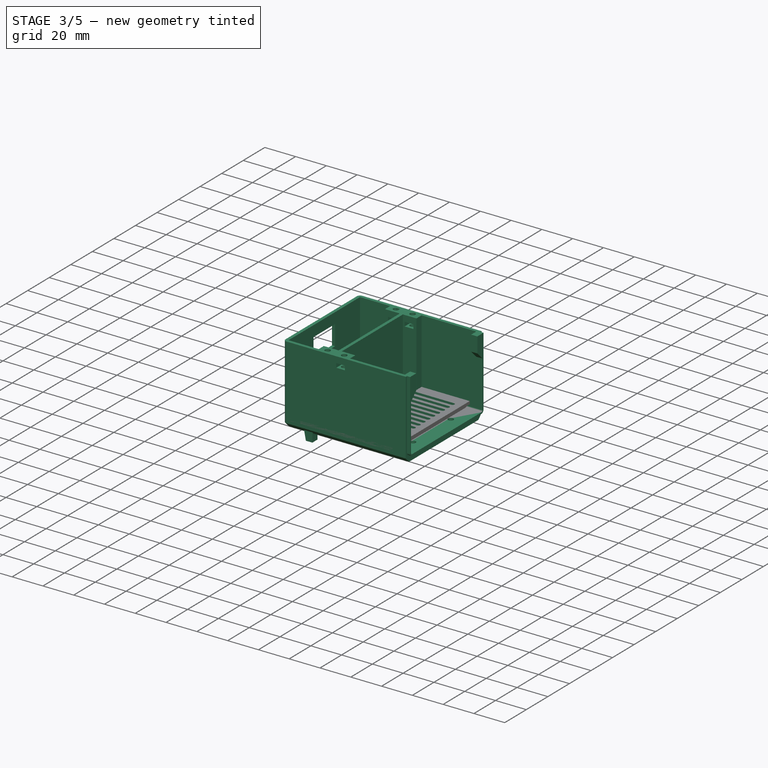
[diagram: stage 3 of 5 — iso view after this stage's code; geometry added in this stage tinted green]
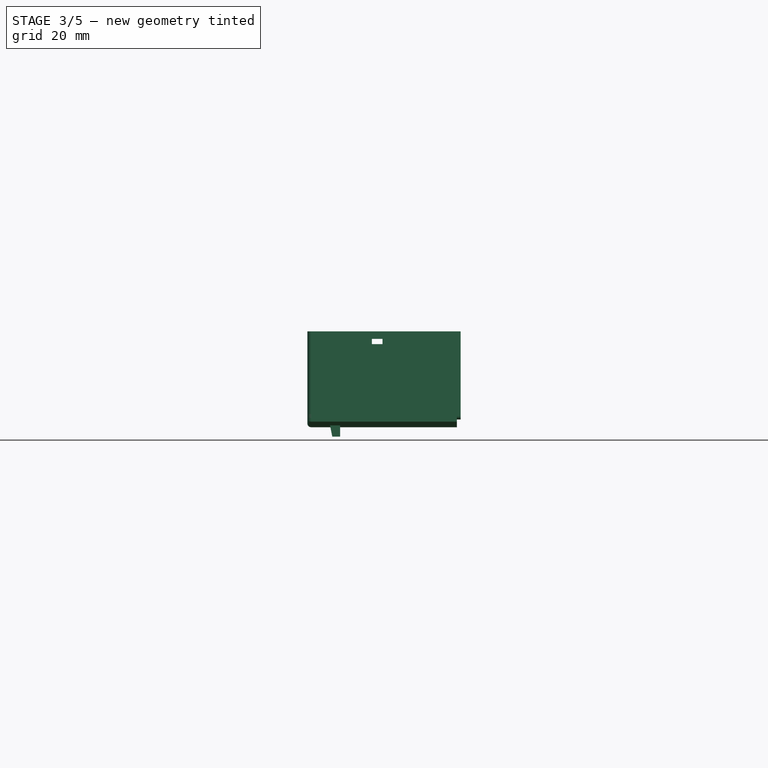
[diagram: stage 3 of 5 — front view after this stage's code; geometry added in this stage tinted green]
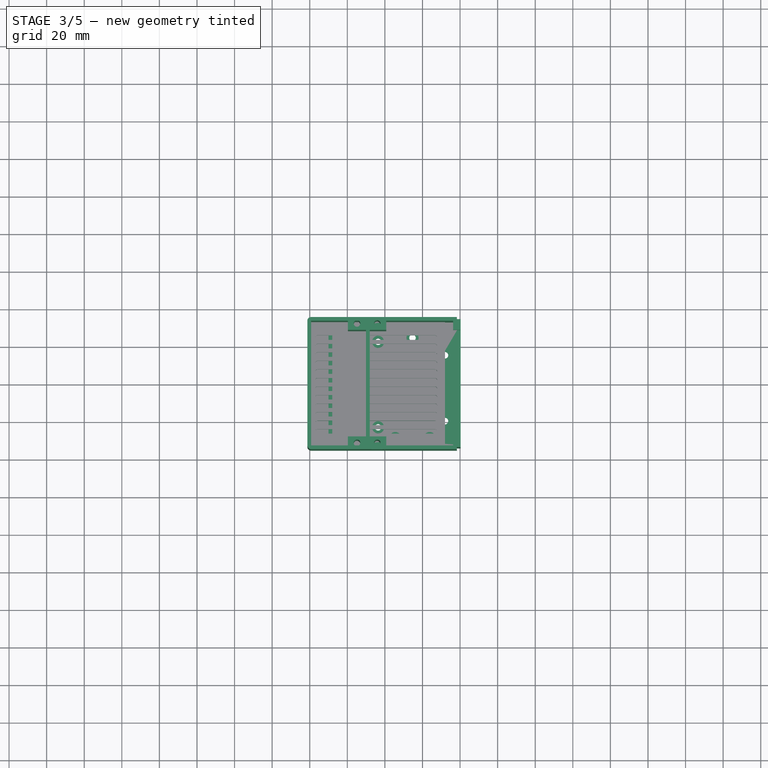
[diagram: stage 3 of 5 — top view after this stage's code; geometry added in this stage tinted green]
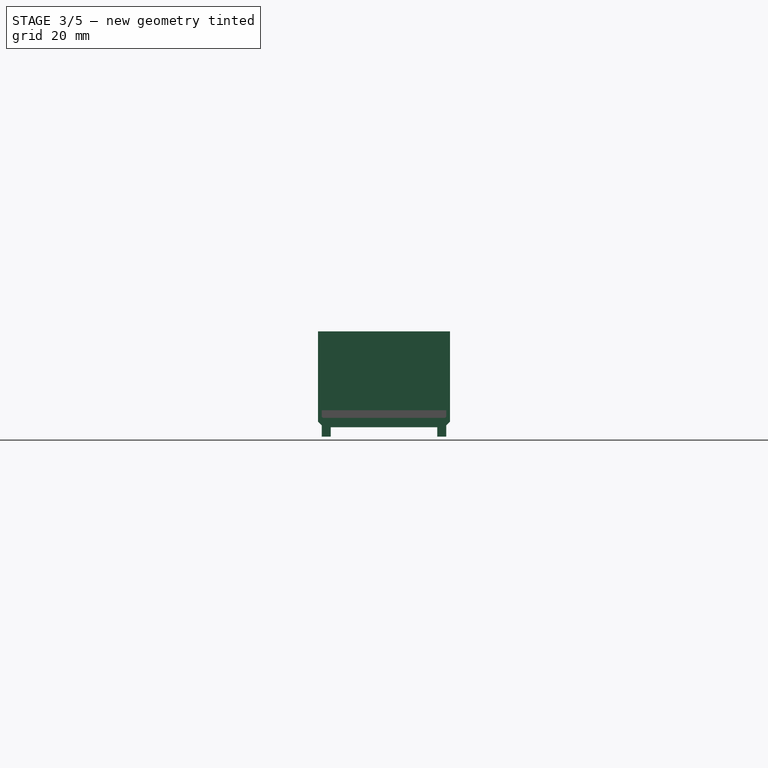
[diagram: stage 3 of 5 — right view after this stage's code; geometry added in this stage tinted green]
FEATURE [PartDesign::Body] Body033  label="ShellBottomQuad"
  Group = -> [Binder013,Binder011,Binder012,Binder014,Binder015,Sketch092,Pad029,Sketch093,Pocket034,Sketch094,Pad030,Sketch095,Pocket035,Sketch096,Pocket036,Sketch097,Pocket037,Sketch098,Sketch112,Pocket044,Pocket038,Sketch099,Pad031,Sketch100,Pad032]
  Origin = -> Origin038
  Tip = -> Pad032
FEATURE [PartDesign::SubShapeBinder] Binder022  label="SEB_SB1B_top"
  BindMode = 0
  ClaimChildren = false
  Context = -> Part015 [Part002.Body059.Binder022.]
  Fuse = false
  MakeFace = true
  PartialLoad = false
  Relative = true
  Support = -> [Part[Body002.Sketch027.]]
  _Version = 2
FEATURE [Sketcher::SketchObject] Sketch113  label="SEB_Template_right"
  AttachmentOffset = pos=(0,0,-21.698) rot=(0,0,1;0rad)
  ExternalGeometry = -> [Binder022]
  FullyConstrained = true
  MapMode = 5
  Placement = pos=(-21.698,4.8e-15,-4.8e-15) rot=(0.57735,0.57735,0.57735;2.0944rad)
  Support = -> [YZ_Plane074]
  expr: .AttachmentOffset.Base.z = -<<SB1B_Template_top>>.Constraints.PCBCenterOffset
  expr: Constraints[20] = <<Shell>>.WallThickness
  expr: Constraints[27] = <<Shell>>.TopScrewSpace
  expr: Constraints[29] = <<Shell>>.BottomThickness
  expr: Constraints[18] = <<Shell>>.WallHeight
  sketch-geometry (17):
    g0: LineSegment StartX=-32.15 StartY=3.53335e-11 StartZ=0 EndX=32.15 EndY=1.077e-13 EndZ=0
    g1: ArcOfCircle CenterX=-32.15 CenterY=1 CenterZ=0 NormalX=0 NormalY=0 NormalZ=1 AngleXU=0 Radius=1 StartAngle=3.14159 EndAngle=4.71239
    g2: ArcOfCircle CenterX=32.15 CenterY=1 CenterZ=0 NormalX=0 NormalY=0 NormalZ=1 AngleXU=0 Radius=1 StartAngle=4.71239 EndAngle=6.28319
    g3: LineSegment StartX=-33.15 StartY=1 StartZ=0 EndX=-33.15 EndY=46 EndZ=0
    g4: LineSegment StartX=33.15 StartY=1 StartZ=0 EndX=33.15 EndY=46 EndZ=0
    g5: LineSegment StartX=-33.15 StartY=46 StartZ=0 EndX=-35.15 EndY=46 EndZ=0
    g6: LineSegment StartX=-35.15 StartY=46 StartZ=0 EndX=-35.15 EndY=-2 EndZ=0
    g7: LineSegment StartX=-32.15 StartY=-5 StartZ=0 EndX=32.15 EndY=-5 EndZ=0
    g8: LineSegment StartX=35.15 StartY=-2 StartZ=0 EndX=35.15 EndY=46 EndZ=0
    g9: LineSegment StartX=35.15 StartY=46 StartZ=0 EndX=33.15 EndY=46 EndZ=0
    g10: LineSegment StartX=-35.15 StartY=-2 StartZ=0 EndX=-32.15 EndY=-5 EndZ=0
    g11: LineSegment StartX=35.15 StartY=-2 StartZ=0 EndX=32.15 EndY=-5 EndZ=0
    g12: LineSegment StartX=-32.15 StartY=-5 StartZ=0 EndX=-32.15 EndY=3.53335e-11 EndZ=0
    g13: LineSegment StartX=32.15 StartY=-5 StartZ=0 EndX=32.15 EndY=1.075e-13 EndZ=0
    g14: GeomPoint X=-34.15 Y=46 Z=0
    g15: LineSegment StartX=-34.05 StartY=46 StartZ=0 EndX=-34.05 EndY=1 EndZ=0
    g16: LineSegment StartX=-34.25 StartY=46 StartZ=0 EndX=-34.25 EndY=1 EndZ=0
  constraints (47):
    c: Tangent(g1,g0) = -1.5708
    c: Tangent(g2,g0) = -1.5708
    c: Equal(g1,g2)
    c: Radius(g1) = 1
    c: Vertical(g3)
    c: Tangent(g1,g3) = 1.5708
    c: Vertical(g4)
    c: Tangent(g2,g4) = -1.5708
    c: Equal(g4,g3)
    c: Coincident(g5,g3)
    c: Horizontal(g5)
    c: Coincident(g6,g5)
    c: Vertical(g6)
    c: Horizontal(g7)
    c: Vertical(g8)
    c: Coincident(g9,g8)
    c: Coincident(g9,g4)
    c: Horizontal(g9)
    c: DistanceY(g0,g5) = 46
    c: Equal(g5,g9)
    c: DistanceX(g5,g5) = 2
    c: DistanceX(g5,g8) = 70.3  'ShellWidth'
    c: Coincident(g10,g6)
    c: Angle(g7,g10) = 2.35619
    c: Coincident(g11,g8)
    c: Coincident(g11,g7)
    c: PointOnObject(g-3,g0)
    c: DistanceX(g6,g-3) = 7.3
    c: Symmetric(g0,g0,g-4)
    c: DistanceY(g7,g0) = 5
    c: Coincident(g10,g7)
    c: Coincident(g12,g7)
    c: Vertical(g12)
    c: Coincident(g12,g0)
    c: Equal(g11,g10)
    c: Coincident(g13,g7)
    c: Coincident(g13,g0)
    c: Vertical(g13)
    c: Symmetric(g5,g3,g14)
    c: PointOnObject(g15,g5)
    c: Vertical(g15)
    c: PointOnObject(g16,g5)
    c: Vertical(g16)
    c: Equal(g3,g15)
    c: Equal(g15,g16)
    c: DistanceX(g14,g15) = 0.1
    c: DistanceX(g16,g14) = 0.1
FEATURE [Sketcher::SketchObject] Sketch114  label="SEB_Groove"
  AttachmentOffset = pos=(0,0,-19.598) rot=(0,0,1;0rad)
  ExternalGeometry = -> [Sketch113]
  FullyConstrained = true
  MapMode = 5
  Placement = pos=(-19.598,4.4e-15,-4.4e-15) rot=(0.57735,0.57735,0.57735;2.0944rad)
  Support = -> [YZ_Plane074]
  expr: .AttachmentOffset.Base.z = <<SEB_Base>>.AttachmentOffset.Base.z + 2.1mm
  sketch-geometry (12):
    g0: LineSegment StartX=-34.25 StartY=46 StartZ=0 EndX=-34.25 EndY=1 EndZ=0
    g1: ArcOfCircle CenterX=-32.15 CenterY=1 CenterZ=0 NormalX=0 NormalY=0 NormalZ=1 AngleXU=0 Radius=1 StartAngle=3.14159 EndAngle=4.71239
    g2: ArcOfCircle CenterX=32.15 CenterY=1 CenterZ=0 NormalX=0 NormalY=0 NormalZ=1 AngleXU=0 Radius=1 StartAngle=4.71239 EndAngle=6.28319
    g3: LineSegment StartX=-34.25 StartY=46 StartZ=0 EndX=-33.15 EndY=46 EndZ=0
    g4: LineSegment StartX=-33.15 StartY=46 StartZ=0 EndX=-33.15 EndY=1 EndZ=0
    g5: ArcOfCircle CenterX=-32.15 CenterY=1 CenterZ=0 NormalX=0 NormalY=0 NormalZ=1 AngleXU=0 Radius=2.1 StartAngle=3.14159 EndAngle=4.71239
    g6: LineSegment StartX=-32.15 StartY=3.53335e-11 StartZ=0 EndX=32.15 EndY=1.079e-13 EndZ=0
    g7: LineSegment StartX=-32.15 StartY=-1.1 StartZ=0 EndX=32.15 EndY=-1.1 EndZ=0
    g8: ArcOfCircle CenterX=32.15 CenterY=1 CenterZ=0 NormalX=0 NormalY=0 NormalZ=1 AngleXU=0 Radius=2.1 StartAngle=4.71239 EndAngle=6.28319
    g9: LineSegment StartX=34.25 StartY=1 StartZ=0 EndX=34.25 EndY=46 EndZ=0
    g10: LineSegment StartX=34.25 StartY=46 StartZ=0 EndX=33.15 EndY=46 EndZ=0
    g11: LineSegment StartX=33.15 StartY=46 StartZ=0 EndX=33.15 EndY=1 EndZ=0
  constraints (27):
    c: Vertical(g0)
    c: Coincident(g1,g-6)
    c: Coincident(g1,g-6)
    c: Equal(g1,g-6)
    c: Coincident(g2,g-5)
    c: Coincident(g2,g-5)
    c: Equal(g-5,g2)
    c: Coincident(g3,g0)
    c: Coincident(g3,g-3)
    c: Coincident(g4,g3)
    c: Coincident(g4,g1)
    c: Coincident(g5,g1)
    c: Tangent(g0,g5) = -1.5708
    c: Coincident(g6,g1)
    c: Coincident(g6,g2)
    c: Horizontal(g7)
    c: Tangent(g5,g7) = -1.5708
    c: Coincident(g8,g2)
    c: Tangent(g7,g8) = -1.5708
    c: PointOnObject(g9,g-4)
    c: Vertical(g9)
    c: Coincident(g10,g9)
    c: Coincident(g10,g-4)
    c: Coincident(g11,g10)
    c: Coincident(g11,g2)
    c: Tangent(g8,g9) = -1.5708
    c: Coincident(g0,g-7)
FEATURE [Sketcher::SketchObject] Sketch119  label="SEB_Base"
  AttachmentOffset = pos=(0,0,-21.698) rot=(0,0,1;0rad)
  ExternalGeometry = -> [Sketch113]
  FullyConstrained = true
  MapMode = 5
  Placement = pos=(-21.698,4.8e-15,-4.8e-15) rot=(0.57735,0.57735,0.57735;2.0944rad)
  Support = -> [YZ_Plane074]
  expr: .AttachmentOffset.Base.z = -<<SB1B_Template_top>>.Constraints.PCBCenterOffset
  sketch-geometry (12):
    g0: ArcOfCircle CenterX=-32.15 CenterY=1 CenterZ=0 NormalX=0 NormalY=0 NormalZ=1 AngleXU=0 Radius=1 StartAngle=3.14159 EndAngle=4.71239
    g1: ArcOfCircle CenterX=32.15 CenterY=1 CenterZ=0 NormalX=0 NormalY=0 NormalZ=1 AngleXU=0 Radius=1 StartAngle=4.71239 EndAngle=6.28319
    g2: LineSegment StartX=33.15 StartY=46 StartZ=0 EndX=35.15 EndY=46 EndZ=0
    g3: LineSegment StartX=35.15 StartY=46 StartZ=0 EndX=35.15 EndY=-2 EndZ=0
    g4: LineSegment StartX=35.15 StartY=-2 StartZ=0 EndX=32.15 EndY=-5 EndZ=0
    g5: LineSegment StartX=32.15 StartY=-5 StartZ=0 EndX=-32.15 EndY=-5 EndZ=0
    g6: LineSegment StartX=-32.15 StartY=-5 StartZ=0 EndX=-35.15 EndY=-2 EndZ=0
    g7: LineSegment StartX=-35.15 StartY=-2 StartZ=0 EndX=-35.15 EndY=46 EndZ=0
    g8: LineSegment StartX=-35.15 StartY=46 StartZ=0 EndX=-33.15 EndY=46 EndZ=0
    g9: LineSegment StartX=-33.15 StartY=46 StartZ=0 EndX=-33.15 EndY=1 EndZ=0
    g10: LineSegment StartX=-32.15 StartY=4.334e-13 StartZ=0 EndX=32.15 EndY=4.42e-14 EndZ=0
    g11: LineSegment StartX=33.15 StartY=46 StartZ=0 EndX=33.15 EndY=1 EndZ=0
  constraints (27):
    c: Coincident(g0,g-3)
    c: Coincident(g0,g-3)
    c: Equal(g-3,g0)
    c: Coincident(g1,g-4)
    c: Coincident(g1,g-4)
    c: Equal(g-4,g1)
    c: Coincident(g-8,g2)
    c: Coincident(g2,g-8)
    c: Coincident(g2,g3)
    c: Coincident(g3,g-7)
    c: Coincident(g3,g4)
    c: Coincident(g4,g-7)
    c: Coincident(g4,g5)
    c: Coincident(g5,g-6)
    c: Coincident(g5,g6)
    c: Coincident(g6,g-6)
    c: Coincident(g6,g7)
    c: Coincident(g7,g-5)
    c: Coincident(g7,g8)
    c: Horizontal(g8)
    c: Coincident(g8,g9)
    c: Coincident(g9,g0)
    c: Vertical(g9)
    c: Coincident(g10,g0)
    c: Coincident(g10,g1)
    c: Coincident(g11,g2)
    c: Coincident(g11,g1)
FEATURE [PartDesign::Pad] Pad039  label="SEB_Base_"
  Direction = (1,1,1)
  Length = 11.65
  Length2 = 100
  Placement = pos=(0,0,0) rot=(0.57735,0.57735,0.57735;2.0944rad)
  Profile = -> Sketch119
  Type = 0
  expr: Length = <<SEB_Template_top>>.Constraints.Length
FEATURE [PartDesign::Pocket] Pocket045  label="SEB_Groove_"
  BaseFeature = -> Pad039
  Length = 5
  Length2 = 100
  Placement = pos=(0,0,0) rot=(0.57735,0.57735,0.57735;2.0944rad)
  Profile = -> Sketch114
  Type = 1
FEATURE [Sketcher::SketchObject] Sketch122  label="SEB_Template_top"
  ExternalGeometry = -> [Sketch113,Binder022]
  FullyConstrained = true
  MapMode = 5
  Support = -> [XY_Plane074]
  expr: Constraints[75] = <<Screws>>.M3NutRadius * 2
  expr: Constraints[37] = <<Screws>>.M3Radius
  expr: Constraints[35] = <<Screws>>.M3NutChannelWidth
  expr: Constraints[29] = <<Screws>>.M3NutChannelWidth + 4mm
  sketch-geometry (28):
    g0: LineSegment StartX=-21.698 StartY=35.15 StartZ=0 EndX=-10.048 EndY=35.15 EndZ=0
    g1: LineSegment StartX=-10.048 StartY=28.35 StartZ=0 EndX=-10.048 EndY=-33.15 EndZ=0
    g2: LineSegment StartX=-10.048 StartY=-35.15 StartZ=0 EndX=-21.698 EndY=-35.15 EndZ=0
    g3: LineSegment StartX=-21.698 StartY=-35.15 StartZ=0 EndX=-21.698 EndY=35.15 EndZ=0
    g4: LineSegment StartX=-10.048 StartY=35.15 StartZ=0 EndX=-8.048 EndY=35.15 EndZ=0
    g5: LineSegment StartX=-8.048 StartY=35.15 StartZ=0 EndX=-8.048 EndY=-35.15 EndZ=0
    g6: LineSegment StartX=-8.048 StartY=-35.15 StartZ=0 EndX=-10.048 EndY=-35.15 EndZ=0
    g7: LineSegment StartX=-19.698 StartY=28.35 StartZ=0 EndX=-19.698 EndY=-28.35 EndZ=0
    g8: LineSegment StartX=-21.698 StartY=33.15 StartZ=0 EndX=-19.698 EndY=33.15 EndZ=0
    g9: LineSegment StartX=-19.698 StartY=33.15 StartZ=0 EndX=-10.048 EndY=33.15 EndZ=0
    g10: LineSegment StartX=-19.698 StartY=33.15 StartZ=0 EndX=-19.698 EndY=28.35 EndZ=0
    g11: LineSegment StartX=-19.698 StartY=28.35 StartZ=0 EndX=-10.048 EndY=28.35 EndZ=0
    g12: LineSegment StartX=-10.048 StartY=28.35 StartZ=0 EndX=-10.048 EndY=33.15 EndZ=0
    g13: LineSegment StartX=-19.698 StartY=33.15 StartZ=0 EndX=-19.698 EndY=35.15 EndZ=0
    g14: LineSegment StartX=-10.048 StartY=33.15 StartZ=0 EndX=-10.048 EndY=35.15 EndZ=0
    g15: LineSegment StartX=-17.698 StartY=35.15 StartZ=0 EndX=-17.698 EndY=28.35 EndZ=0
    g16: LineSegment StartX=-12.048 StartY=35.15 StartZ=0 EndX=-12.048 EndY=28.35 EndZ=0
    g17: Circle CenterX=-14.873 CenterY=31.75 CenterZ=0 NormalX=0 NormalY=0 NormalZ=1 AngleXU=0 Radius=1.75
    g18: LineSegment StartX=-21.698 StartY=-33.15 StartZ=0 EndX=-10.048 EndY=-33.15 EndZ=0
    g19: LineSegment StartX=-19.698 StartY=-33.15 StartZ=0 EndX=-19.698 EndY=-28.35 EndZ=0
    g20: LineSegment StartX=-19.698 StartY=-28.35 StartZ=0 EndX=-10.048 EndY=-28.35 EndZ=0
    g21: LineSegment StartX=-10.048 StartY=-28.35 StartZ=0 EndX=-10.048 EndY=-33.15 EndZ=0
    g22: LineSegment StartX=-19.698 StartY=-33.15 StartZ=0 EndX=-19.698 EndY=-35.15 EndZ=0
    g23: LineSegment StartX=-10.048 StartY=-33.15 StartZ=0 EndX=-10.048 EndY=-35.15 EndZ=0
    g24: Circle CenterX=-14.873 CenterY=-31.75 CenterZ=0 NormalX=0 NormalY=0 NormalZ=1 AngleXU=0 Radius=1.75
    g25: LineSegment StartX=-21.698 StartY=0 StartZ=0 EndX=-8.048 EndY=0 EndZ=0
    g26: Circle CenterX=-15.348 CenterY=15.621 CenterZ=0 NormalX=0 NormalY=0 NormalZ=1 AngleXU=0 Radius=1.75
    g27: Circle CenterX=-15.348 CenterY=-19.431 CenterZ=0 NormalX=0 NormalY=0 NormalZ=1 AngleXU=0 Radius=1.75
  constraints (77):
    c: Coincident(g2,g3)
    c: Coincident(g3,g0)
    c: Horizontal(g2)
    c: Vertical(g1)
    c: Horizontal(g4)
    c: Coincident(g4,g5)
    c: Vertical(g5)
    c: Coincident(g5,g6)
    c: Horizontal(g6)
    c: Coincident(g0,g-3)
    c: Coincident(g2,g-4)
    c: Horizontal(g0)
    c: Vertical(g7)
    c: Coincident(g8,g-3)
    c: PointOnObject(g8,g7)
    c: Horizontal(g8)
    c: Coincident(g9,g8)
    c: Horizontal(g9)
    c: Equal(g4,g8)
    c: PointOnObject(g10,g9)
    c: Vertical(g10)
    c: Coincident(g10,g11)
    c: Coincident(g11,g12)
    c: Vertical(g12)
    c: Coincident(g13,g10)
    c: PointOnObject(g13,g0)
    c: Vertical(g13)
    c: Coincident(g14,g12)
    c: Vertical(g14)
    c: DistanceX(g11,g11) = 9.65
    c: PointOnObject(g15,g0)
    c: PointOnObject(g15,g11)
    c: Vertical(g15)
    c: PointOnObject(g16,g0)
    c: Vertical(g16)
    c: DistanceX(g15,g16) = 5.65
    c: Symmetric(g10,g14,g17)
    c: Radius(g17) = 1.75
    c: Coincident(g18,g-4)
    c: Horizontal(g18)
    c: Vertical(g19)
    c: Coincident(g19,g20)
    c: Horizontal(g20)
    c: Vertical(g21)
    c: Equal(g19,g10)
    c: PointOnObject(g19,g18)
    c: Coincident(g22,g19)
    c: PointOnObject(g22,g2)
    c: Vertical(g22)
    c: Coincident(g23,g21)
    c: Vertical(g23)
    c: Symmetric(g22,g20,g24)
    c: Equal(g17,g24)
    c: PointOnObject(g25,g3)
    c: PointOnObject(g25,g5)
    c: PointOnObject(g25,g-5)
    c: PointOnObject(g25,g-5)
    c: Coincident(g26,g-6)
    c: Equal(g26,g-6)
    c: Symmetric(g15,g16,g17)
    c: PointOnObject(g16,g11)
    c: Coincident(g20,g21)
    c: Equal(g27,g-7)
    c: Coincident(g27,g-7)
    c: Coincident(g9,g12)
    c: Coincident(g7,g10)
    c: Coincident(g7,g19)
    c: Coincident(g18,g21)
    c: Coincident(g14,g0)
    c: DistanceX(g0,g13) = 2
    c: Coincident(g2,g23)
    c: Coincident(g6,g2)
    c: Coincident(g4,g0)
    c: Coincident(g1,g11)
    c: Coincident(g1,g18)
    c: DistanceY(g7,g0) = 6.8
    c: DistanceX(g0,g0) = 11.65  'Length'
FEATURE [Sketcher::SketchObject] Sketch115  label="SEB_BaseScrews"
  ExternalGeometry = -> [Sketch122]
  FullyConstrained = true
  MapMode = 5
  Support = -> [XY_Plane074]
  sketch-geometry (2):
    g0: Circle CenterX=-15.348 CenterY=15.621 CenterZ=0 NormalX=0 NormalY=0 NormalZ=1 AngleXU=0 Radius=1.75
    g1: Circle CenterX=-15.348 CenterY=-19.431 CenterZ=0 NormalX=0 NormalY=0 NormalZ=1 AngleXU=0 Radius=1.75
  constraints (4):
    c: Equal(g0,g-3)
    c: Equal(g1,g-4)
    c: Coincident(g1,g-4)
    c: Coincident(g0,g-3)
FEATURE [Sketcher::SketchObject] Sketch116  label="SEB_BaseHeads"
  AttachmentOffset = pos=(0,0,-2.05) rot=(0,0,1;0rad)
  ExternalGeometry = -> [Sketch122]
  FullyConstrained = true
  MapMode = 5
  Placement = pos=(0,0,-2.05) rot=(0,0,1;0rad)
  Support = -> [XY_Plane074]
  expr: Constraints[0] = <<Screws>>.M3HeadRadius
  expr: .AttachmentOffset.Base.z = -(<<Shell>>.BottomThickness - <<Screws>>.M3HeadHeight)
  sketch-geometry (2):
    g0: Circle CenterX=-15.348 CenterY=15.621 CenterZ=0 NormalX=0 NormalY=0 NormalZ=1 AngleXU=0 Radius=3
    g1: Circle CenterX=-15.348 CenterY=-19.431 CenterZ=0 NormalX=0 NormalY=0 NormalZ=1 AngleXU=0 Radius=3
  constraints (4):
    c: Radius(g0) = 3
    c: Coincident(g0,g-3)
    c: Coincident(g1,g-4)
    c: Equal(g1,g0)
FEATURE [Sketcher::SketchObject] Sketch117  label="SEB_ScrewBlock"
  ExternalGeometry = -> [Sketch122]
  FullyConstrained = true
  MapMode = 5
  Support = -> [XY_Plane074]
  sketch-geometry (8):
    g0: LineSegment StartX=-19.698 StartY=33.15 StartZ=0 EndX=-10.048 EndY=33.15 EndZ=0
    g1: LineSegment StartX=-10.048 StartY=33.15 StartZ=0 EndX=-10.048 EndY=28.35 EndZ=0
    g2: LineSegment StartX=-10.048 StartY=28.35 StartZ=0 EndX=-19.698 EndY=28.35 EndZ=0
    g3: LineSegment StartX=-19.698 StartY=28.35 StartZ=0 EndX=-19.698 EndY=33.15 EndZ=0
    g4: LineSegment StartX=-19.698 StartY=-28.35 StartZ=0 EndX=-10.048 EndY=-28.35 EndZ=0
    g5: LineSegment StartX=-10.048 StartY=-28.35 StartZ=0 EndX=-10.048 EndY=-33.15 EndZ=0
    g6: LineSegment StartX=-10.048 StartY=-33.15 StartZ=0 EndX=-19.698 EndY=-33.15 EndZ=0
    g7: LineSegment StartX=-19.698 StartY=-33.15 StartZ=0 EndX=-19.698 EndY=-28.35 EndZ=0
  constraints (20):
    c: Coincident(g0,g1)
    c: Coincident(g1,g2)
    c: Coincident(g2,g3)
    c: Coincident(g3,g0)
    c: Horizontal(g0)
    c: Horizontal(g2)
    c: Vertical(g1)
    c: Vertical(g3)
    c: Coincident(g4,g5)
    c: Coincident(g5,g6)
    c: Coincident(g6,g7)
    c: Coincident(g7,g4)
    c: Horizontal(g4)
    c: Horizontal(g6)
    c: Vertical(g5)
    c: Vertical(g7)
    c: Coincident(g0,g-4)
    c: Coincident(g1,g-6)
    c: Coincident(g4,g-5)
    c: Coincident(g5,g-6)
FEATURE [Sketcher::SketchObject] Sketch118  label="SEB_NutPocket"
  ExternalGeometry = -> [Sketch122,Sketch113]
  FullyConstrained = true
  MapMode = 5
  Placement = pos=(0,0,0) rot=(1,0,0;1.5708rad)
  Support = -> [XZ_Plane074]
  expr: Constraints[7] = <<Screws>>.M3NutHeight
  sketch-geometry (4):
    g0: LineSegment StartX=-17.698 StartY=42 StartZ=0 EndX=-12.048 EndY=42 EndZ=0
    g1: LineSegment StartX=-12.048 StartY=42 StartZ=0 EndX=-12.048 EndY=39.25 EndZ=0
    g2: LineSegment StartX=-12.048 StartY=39.25 StartZ=0 EndX=-17.698 EndY=39.25 EndZ=0
    g3: LineSegment StartX=-17.698 StartY=39.25 StartZ=0 EndX=-17.698 EndY=42 EndZ=0
  constraints (12):
    c: Coincident(g0,g1)
    c: Coincident(g1,g2)
    c: Coincident(g2,g3)
    c: Coincident(g3,g0)
    c: Horizontal(g2)
    c: Vertical(g1)
    c: Vertical(g3)
    c: DistanceY(g1,g1) = 2.75
    c: Horizontal(g0)
    c: PointOnObject(g-3,g3)
    c: PointOnObject(g-4,g1)
    c: DistanceY(g0,g-5) = 4
FEATURE [Sketcher::SketchObject] Sketch120  label="SEB_ScrewBlockHoles"
  ExternalGeometry = -> [Sketch122]
  FullyConstrained = true
  MapMode = 5
  Support = -> [XY_Plane074]
  sketch-geometry (2):
    g0: Circle CenterX=-14.873 CenterY=31.75 CenterZ=0 NormalX=0 NormalY=0 NormalZ=1 AngleXU=0 Radius=1.75
    g1: Circle CenterX=-14.873 CenterY=-31.75 CenterZ=0 NormalX=0 NormalY=0 NormalZ=1 AngleXU=0 Radius=1.75
  constraints (4):
    c: Equal(g1,g-4)
    c: Equal(g0,g-3)
    c: Coincident(g-3,g0)
    c: Coincident(g1,g-4)
FEATURE [Sketcher::SketchObject] Sketch123  label="SEB_End"
  AttachmentOffset = pos=(0,0,-10.048) rot=(0,0,1;0rad)
  ExternalGeometry = -> [Sketch113]
  FullyConstrained = true
  MapMode = 5
  Placement = pos=(-10.048,2.2e-15,-2.2e-15) rot=(0.57735,0.57735,0.57735;2.0944rad)
  Support = -> [YZ_Plane074]
  expr: .AttachmentOffset.Base.z = <<SEB_Base>>.AttachmentOffset.Base.z + <<SEB_Base_>>.Length
  sketch-geometry (6):
    g0: LineSegment StartX=-35.15 StartY=46 StartZ=0 EndX=-35.15 EndY=-2 EndZ=0
    g1: LineSegment StartX=-35.15 StartY=-2 StartZ=0 EndX=-32.15 EndY=-5 EndZ=0
    g2: LineSegment StartX=-32.15 StartY=-5 StartZ=0 EndX=32.15 EndY=-5 EndZ=0
    g3: LineSegment StartX=32.15 StartY=-5 StartZ=0 EndX=35.15 EndY=-2 EndZ=0
    g4: LineSegment StartX=35.15 StartY=-2 StartZ=0 EndX=35.15 EndY=46 EndZ=0
    g5: LineSegment StartX=-35.15 StartY=46 StartZ=0 EndX=35.15 EndY=46 EndZ=0
  constraints (12):
    c: Coincident(g0,g-7)
    c: Coincident(g0,g1)
    c: Coincident(g1,g-7)
    c: Coincident(g1,g2)
    c: Coincident(g2,g-6)
    c: Coincident(g2,g3)
    c: Coincident(g3,g-6)
    c: Coincident(g3,g4)
    c: Coincident(g4,g-5)
    c: Coincident(g0,g-4)
    c: Coincident(g5,g0)
    c: Coincident(g5,g4)
FEATURE [PartDesign::Pad] Pad  label="SEB_End_"
  BaseFeature = -> Pocket045
  Direction = (1,1,1)
  Length = 2
  Length2 = 100
  Placement = pos=(0,0,0) rot=(0.57735,0.57735,0.57735;2.0944rad)
  Profile = -> Sketch123
  Type = 0
  expr: Length = <<Shell>>.WallThickness
FEATURE [PartDesign::Pad] Pad041  label="SEB_ScrewBlock_"
  BaseFeature = -> Pad
  Direction = (1,1,1)
  Length = 46
  Length2 = 100
  Placement = pos=(0,0,0) rot=(0.57735,0.57735,0.57735;2.0944rad)
  Profile = -> Sketch117
  Refine = true
  Type = 0
  expr: Length = <<Shell>>.WallHeight
FEATURE [PartDesign::Pocket] Pocket048  label="SEB_ScrewBlockHoles_"
  BaseFeature = -> Pad041
  Length = 5
  Length2 = 100
  Placement = pos=(0,0,0) rot=(0.57735,0.57735,0.57735;2.0944rad)
  Profile = -> Sketch120
  Reversed = true
  Type = 1
FEATURE [PartDesign::Pocket] Pocket046  label="SEB_BaseScrews_"
  BaseFeature = -> Pocket048
  Length = 5
  Length2 = 100
  Placement = pos=(0,0,0) rot=(0.57735,0.57735,0.57735;2.0944rad)
  Profile = -> Sketch115
  Type = 1
FEATURE [PartDesign::Pocket] Pocket047  label="SEB_BaseHeads_"
  BaseFeature = -> Pocket046
  Length = 5
  Length2 = 100
  Placement = pos=(0,0,0) rot=(0.57735,0.57735,0.57735;2.0944rad)
  Profile = -> Sketch116
  Type = 1
FEATURE [PartDesign::Pocket] Pocket049  label="SEB_NutPocket_"
  BaseFeature = -> Pocket047
  Length = 5
  Length2 = 100
  Midplane = true
  Placement = pos=(0,0,0) rot=(0.57735,0.57735,0.57735;2.0944rad)
  Profile = -> Sketch118
  Type = 1
FEATURE [PartDesign::Fillet] Fillet  label="SEB_Fillet"
  Base = -> Pocket049 [Edge68,Edge69,Edge70,Edge71,Edge57]
  BaseFeature = -> Pocket049
  Placement = pos=(0,0,0) rot=(0.57735,0.57735,0.57735;2.0944rad)
  Radius = 2
  SupportTransform = false
FEATURE [PartDesign::Body] Body035  label="ShellTopQuad"
  Group = -> [Binder018,Binder019,Binder020,Binder021,Sketch106,Pad036,Fillet007,Sketch107,Sketch108,Pocket052,Pocket040,Sketch105,Pad038,Chamfer005]
  Origin = -> Origin041
  Tip = -> Chamfer005
FEATURE [App::Part] Part014  label="SocketBox_"
  Group = -> [Spreadsheet004,Part,Part001]
  Origin = -> Origin076
FEATURE [PartDesign::ShapeBinder] ShapeBinder004  label="SET_SEB_top"
  Support = -> [Sketch122]
  TraceSupport = false
FEATURE [PartDesign::ShapeBinder] ShapeBinder005  label="SET_ST_top"
  Support = -> [Sketch076]
  TraceSupport = false
FEATURE [Sketcher::SketchObject] Sketch124  label="SET_Template_top"
  ExternalGeometry = -> [ShapeBinder005,ShapeBinder004]
  FullyConstrained = true
  MapMode = 5
  Support = -> [XY_Plane075]
  sketch-geometry (15):
    g0: LineSegment StartX=-30 StartY=35.15 StartZ=0 EndX=-8.048 EndY=35.15 EndZ=0
    g1: LineSegment StartX=-8.048 StartY=35.15 StartZ=0 EndX=-8.048 EndY=-35.15 EndZ=0
    g2: LineSegment StartX=-8.048 StartY=-35.15 StartZ=0 EndX=-30 EndY=-35.15 EndZ=0
    g3: LineSegment StartX=-30 StartY=-35.15 StartZ=0 EndX=-30 EndY=35.15 EndZ=0
    g4: LineSegment StartX=-28 StartY=33.15 StartZ=0 EndX=-23.798 EndY=33.15 EndZ=0
    g5: LineSegment StartX=-23.798 StartY=33.15 StartZ=0 EndX=-23.798 EndY=28.35 EndZ=0
    g6: LineSegment StartX=-23.798 StartY=28.35 StartZ=0 EndX=-28 EndY=28.35 EndZ=0
    g7: LineSegment StartX=-28 StartY=28.35 StartZ=0 EndX=-28 EndY=33.15 EndZ=0
    g8: LineSegment StartX=-28 StartY=-28.35 StartZ=0 EndX=-23.798 EndY=-28.35 EndZ=0
    g9: LineSegment StartX=-23.798 StartY=-28.35 StartZ=0 EndX=-23.798 EndY=-33.15 EndZ=0
    g10: LineSegment StartX=-23.798 StartY=-33.15 StartZ=0 EndX=-28 EndY=-33.15 EndZ=0
    g11: LineSegment StartX=-28 StartY=-33.15 StartZ=0 EndX=-28 EndY=-28.35 EndZ=0
    g12: LineSegment StartX=-28 StartY=-35.15 StartZ=0 EndX=-28 EndY=35.15 EndZ=0
    g13: Circle CenterX=-14.873 CenterY=31.75 CenterZ=0 NormalX=0 NormalY=0 NormalZ=1 AngleXU=0 Radius=1.75
    g14: Circle CenterX=-14.873 CenterY=-31.75 CenterZ=0 NormalX=0 NormalY=0 NormalZ=1 AngleXU=0 Radius=1.75
  constraints (36):
    c: Coincident(g0,g1)
    c: Coincident(g1,g2)
    c: Coincident(g2,g3)
    c: Coincident(g3,g0)
    c: Horizontal(g0)
    c: Horizontal(g2)
    c: Vertical(g1)
    c: Vertical(g3)
    c: Coincident(g0,g-4)
    c: Coincident(g1,g-7)
    c: Coincident(g4,g5)
    c: Coincident(g5,g6)
    c: Coincident(g6,g7)
    c: Coincident(g7,g4)
    c: Horizontal(g4)
    c: Horizontal(g6)
    c: Vertical(g5)
    c: Vertical(g7)
    c: Coincident(g4,g-6)
    c: Coincident(g5,g-5)
    c: Coincident(g8,g9)
    c: Coincident(g9,g10)
    c: Coincident(g10,g11)
    c: Coincident(g11,g8)
    c: Horizontal(g8)
    c: Horizontal(g10)
    c: Vertical(g9)
    c: Vertical(g11)
    c: Coincident(g8,g-11)
    c: Coincident(g9,g-12)
    c: Coincident(g12,g-3)
    c: Coincident(g12,g-3)
    c: Coincident(g13,g-9)
    c: Coincident(g14,g-10)
    c: Equal(g14,g-10)
    c: Equal(g13,g-9)
FEATURE [Sketcher::SketchObject] Sketch125  label="SET_Base"
  ExternalGeometry = -> [Sketch124]
  FullyConstrained = true
  MapMode = 5
  Support = -> [XY_Plane075]
  sketch-geometry (6):
    g0: LineSegment StartX=-30 StartY=35.15 StartZ=0 EndX=-8.048 EndY=35.15 EndZ=0
    g1: LineSegment StartX=-8.048 StartY=35.15 StartZ=0 EndX=-8.048 EndY=-35.15 EndZ=0
    g2: LineSegment StartX=-8.048 StartY=-35.15 StartZ=0 EndX=-30 EndY=-35.15 EndZ=0
    g3: LineSegment StartX=-30 StartY=-35.15 StartZ=0 EndX=-30 EndY=35.15 EndZ=0
    g4: Circle CenterX=-14.873 CenterY=31.75 CenterZ=0 NormalX=0 NormalY=0 NormalZ=1 AngleXU=0 Radius=1.75
    g5: Circle CenterX=-14.873 CenterY=-31.75 CenterZ=0 NormalX=0 NormalY=0 NormalZ=1 AngleXU=0 Radius=1.75
  constraints (14):
    c: Coincident(g0,g1)
    c: Coincident(g2,g3)
    c: Horizontal(g0)
    c: Horizontal(g2)
    c: Vertical(g1)
    c: Vertical(g3)
    c: Coincident(g0,g3)
    c: Coincident(g1,g2)
    c: Equal(g-5,g4)
    c: Equal(g5,g-6)
    c: Coincident(g-5,g4)
    c: Coincident(g0,g-3)
    c: Coincident(g5,g-6)
    c: Coincident(g1,g-4)
FEATURE [PartDesign::Pad] Pad042  label="SET_Base_"
  Direction = (1,1,1)
  Length = 4
  Length2 = 100
  Profile = -> Sketch125
  Type = 0
FEATURE [Sketcher::SketchObject] Sketch126  label="SET_Overlap"
  ExternalGeometry = -> [Sketch124]
  FullyConstrained = true
  MapMode = 5
  Placement = pos=(0,0,0) rot=(1,0,0;1.5708rad)
  Support = -> [XZ_Plane075]
  expr: Constraints[15] = <<SET_Base_>>.Length
  sketch-geometry (7):
    g0: LineSegment StartX=-28 StartY=0 StartZ=0 EndX=-28 EndY=2.1 EndZ=0
    g1: LineSegment StartX=-28 StartY=2.1 StartZ=0 EndX=-30 EndY=2.1 EndZ=0
    g2: LineSegment StartX=-30 StartY=2.1 StartZ=0 EndX=-30 EndY=0 EndZ=0
    g3: LineSegment StartX=-30 StartY=1.9 StartZ=0 EndX=-28 EndY=1.9 EndZ=0
    g4: LineSegment StartX=-28 StartY=1.9 StartZ=0 EndX=-28 EndY=4 EndZ=0
    g5: LineSegment StartX=-28 StartY=4 StartZ=0 EndX=-30 EndY=4 EndZ=0
    g6: LineSegment StartX=-30 StartY=4 StartZ=0 EndX=-30 EndY=1.9 EndZ=0
  constraints (20):
    c: Coincident(g0,g1)
    c: Coincident(g1,g2)
    c: Horizontal(g1)
    c: Vertical(g0)
    c: Vertical(g2)
    c: Coincident(g4,g5)
    c: Coincident(g5,g6)
    c: Coincident(g6,g3)
    c: Horizontal(g5)
    c: Vertical(g4)
    c: Vertical(g6)
    c: Equal(g6,g0)
    c: Coincident(g3,g4)
    c: Coincident(g2,g-4)
    c: Coincident(g0,g-3)
    c: DistanceY(g2,g5) = 4
    c: Horizontal(g3)
    c: PointOnObject(g2,g6)
    c: PointOnObject(g0,g4)
    c: DistanceY(g3,g0) = 0.2
FEATURE [Sketcher::SketchObject] Sketch127  label="SET_ScrewHeads"
  AttachmentOffset = pos=(0,0,2) rot=(0,0,1;0rad)
  ExternalGeometry = -> [Sketch124]
  FullyConstrained = true
  MapMode = 5
  Placement = pos=(0,0,2) rot=(0,0,1;0rad)
  Support = -> [XY_Plane075]
  expr: Constraints[1] = <<Screws>>.M3HeadRadius
  sketch-geometry (2):
    g0: Circle CenterX=-14.873 CenterY=-31.75 CenterZ=0 NormalX=0 NormalY=0 NormalZ=1 AngleXU=0 Radius=3
    g1: Circle CenterX=-14.873 CenterY=31.75 CenterZ=0 NormalX=0 NormalY=0 NormalZ=1 AngleXU=0 Radius=3
  constraints (4):
    c: Equal(g0,g1)
    c: Radius(g0) = 3
    c: Coincident(g0,g-4)
    c: Coincident(g1,g-3)
FEATURE [Sketcher::SketchObject] Sketch128  label="SET_TopLock"
  ExternalGeometry = -> [Sketch124]
  FullyConstrained = true
  MapMode = 5
  Support = -> [XY_Plane075]
  sketch-geometry (8):
    g0: LineSegment StartX=-28 StartY=33.15 StartZ=0 EndX=-23.798 EndY=33.15 EndZ=0
    g1: LineSegment StartX=-23.798 StartY=33.15 StartZ=0 EndX=-23.798 EndY=28.35 EndZ=0
    g2: LineSegment StartX=-23.798 StartY=28.35 StartZ=0 EndX=-28 EndY=28.35 EndZ=0
    g3: LineSegment StartX=-28 StartY=28.35 StartZ=0 EndX=-28 EndY=33.15 EndZ=0
    g4: LineSegment StartX=-28 StartY=-28.35 StartZ=0 EndX=-23.798 EndY=-28.35 EndZ=0
    g5: LineSegment StartX=-23.798 StartY=-28.35 StartZ=0 EndX=-23.798 EndY=-33.15 EndZ=0
    g6: LineSegment StartX=-23.798 StartY=-33.15 StartZ=0 EndX=-28 EndY=-33.15 EndZ=0
    g7: LineSegment StartX=-28 StartY=-33.15 StartZ=0 EndX=-28 EndY=-28.35 EndZ=0
  constraints (20):
    c: Coincident(g0,g1)
    c: Coincident(g1,g2)
    c: Coincident(g2,g3)
    c: Coincident(g3,g0)
    c: Horizontal(g0)
    c: Horizontal(g2)
    c: Vertical(g1)
    c: Vertical(g3)
    c: Coincident(g4,g5)
    c: Coincident(g5,g6)
    c: Coincident(g6,g7)
    c: Coincident(g7,g4)
    c: Horizontal(g4)
    c: Horizontal(g6)
    c: Vertical(g5)
    c: Vertical(g7)
    c: Coincident(g4,g-5)
    c: Coincident(g5,g-6)
    c: Coincident(g1,g-4)
    c: Coincident(g0,g-3)
FEATURE [PartDesign::Fillet] Fillet010  label="SET_Fillet"
  Base = -> Pad042 [Edge4,Edge10,Edge7,Edge5,Edge2]
  BaseFeature = -> Pad042
  Radius = 2
  SupportTransform = false
FEATURE [PartDesign::Pocket] Pocket054  label="SET_Overlap_"
  BaseFeature = -> Fillet010
  Length = 5
  Length2 = 100
  Midplane = true
  Profile = -> Sketch126
  Type = 1
FEATURE [PartDesign::Pocket] Pocket053  label="SET_ScrewHeads_"
  BaseFeature = -> Pocket054
  Length = 5
  Length2 = 100
  Profile = -> Sketch127
  Reversed = true
  Type = 1
FEATURE [PartDesign::Pad] Pad043  label="SET_TopLock_"
  BaseFeature = -> Pocket053
  Direction = (1,1,1)
  Length = 10
  Length2 = 100
  Profile = -> Sketch128
  Reversed = true
  Type = 0
FEATURE [PartDesign::Chamfer] Chamfer006  label="SET_LockChamfer"
  Angle = 45
  Base = -> Pad043 [Edge23,Edge18]
  BaseFeature = -> Pad043
  ChamferType = 1
  FlipDirection = false
  Size = 1.99
  Size2 = 9.99
  SupportTransform = false
  expr: Size2 = <<SET_TopLock_>>.Length - 0.01mm
FEATURE [PartDesign::Body] Body061  label="Bottom009"
  BaseFeature = -> Body059
  Group = -> [Clone024]
  Origin = -> Origin079
  Tip = -> Clone024
FEATURE [PartDesign::FeatureBase] Clone025
  BaseFeature = -> Body060
FEATURE [PartDesign::Body] Body062  label="Top009"
  BaseFeature = -> Body060
  Group = -> [Clone025]
  Origin = -> Origin080
  Placement = pos=(0,0,46) rot=(0,0,1;0rad)
  Tip = -> Clone025
  expr: .Placement.Base.z = <<Shell>>.WallHeight
FEATURE [App::Part] Part016  label="Ge"
  Group = -> [Body061,Body062]
  Origin = -> Origin078
  Placement = pos=(480,0,0) rot=(0,0,1;0rad)
  expr: .Placement.Base.x = 8 * <<SocketBox>>.Spacing
FEATURE [App::DocumentObjectGroup] Group  label="Assembly"
  Group = -> [Part006,Part007,Part008,Part009,Part010,Part011,Part012,Part013,Part016]
FEATURE [PartDesign::SubShapeBinder] Binder023  label="SSB_SB1B_top"
  BindMode = 0
  ClaimChildren = false
  Context = -> Part015 [Part002.Body063.Binder023.]
  Fuse = false
  MakeFace = true
  PartialLoad = false
  Placement = pos=(60,0,0) rot=(0,0,1;0rad)
  Relative = true
  Support = -> [Part014[Part001.Body003.Sketch037.]]
  _Version = 2
  expr: .Placement.Base.x = <<SocketBox>>.Spacing
FEATURE [PartDesign::SubShapeBinder] Binder024  label="SSB_SB_top"
  BindMode = 0
  ClaimChildren = false
  Context = -> Part015 [Part002.Body063.Binder024.]
  Fuse = false
  MakeFace = true
  PartialLoad = false
  Placement = pos=(60,0,0) rot=(0,0,1;0rad)
  Relative = true
  Support = -> [Body006[Sketch075.]]
  _Version = 2
  expr: .Placement.Base.x = <<SocketBox>>.Spacing
FEATURE [PartDesign::SubShapeBinder] Binder025  label="SSB_SB_right"
  BindMode = 0
  ClaimChildren = false
  Context = -> Part015 [Part002.Body063.Binder025.]
  Fuse = false
  MakeFace = true
  PartialLoad = false
  Relative = true
  Support = -> [Body006[Sketch065.]]
  _Version = 2
FEATURE [Sketcher::SketchObject] Sketch129  label="SSB_Template_top"
  ExternalGeometry = -> [Binder024,Binder023]
  FullyConstrained = true
  MapMode = 5
  Support = -> [XY_Plane081]
  expr: Constraints[40] = <<Screws>>.M3Radius
  sketch-geometry (52):
    g0: LineSegment StartX=40.302 StartY=35.15 StartZ=0 EndX=-41.258 EndY=35.15 EndZ=0
    g1: LineSegment StartX=-41.258 StartY=35.15 StartZ=0 EndX=-41.258 EndY=-35.15 EndZ=0
    g2: LineSegment StartX=-41.258 StartY=-35.15 StartZ=0 EndX=40.302 EndY=-35.15 EndZ=0
    g3: LineSegment StartX=40.302 StartY=-35.15 StartZ=0 EndX=40.302 EndY=35.15 EndZ=0
    g4: LineSegment StartX=1.742 StartY=32.258 StartZ=0 EndX=27.65 EndY=32.258 EndZ=0
    g5: LineSegment StartX=27.65 StartY=32.258 StartZ=0 EndX=27.65 EndY=-32.258 EndZ=0
    g6: LineSegment StartX=27.65 StartY=-32.258 StartZ=0 EndX=1.742 EndY=-32.258 EndZ=0
    g7: LineSegment StartX=1.742 StartY=-32.258 StartZ=0 EndX=1.742 EndY=32.258 EndZ=0
    g8: LineSegment StartX=38.302 StartY=35.15 StartZ=0 EndX=38.302 EndY=-35.15 EndZ=0
    g9: LineSegment StartX=-39.258 StartY=35.15 StartZ=0 EndX=-39.258 EndY=-35.15 EndZ=0
    g10: LineSegment StartX=40.302 StartY=33.15 StartZ=0 EndX=38.302 EndY=33.15 EndZ=0
    g11: LineSegment StartX=38.302 StartY=33.15 StartZ=0 EndX=-39.258 EndY=33.15 EndZ=0
    g12: LineSegment StartX=-39.258 StartY=33.15 StartZ=0 EndX=-41.258 EndY=33.15 EndZ=0
    g13: LineSegment StartX=-41.258 StartY=-4.4304e-12 StartZ=0 EndX=40.302 EndY=-4.4304e-12 EndZ=0
    g14: LineSegment StartX=38.302 StartY=-33.15 StartZ=0 EndX=-39.258 EndY=-33.15 EndZ=0
    g15: Circle CenterX=14.696 CenterY=24.888 CenterZ=0 NormalX=0 NormalY=0 NormalZ=1 AngleXU=0 Radius=1.75
    g16: LineSegment StartX=1.742 StartY=24.888 StartZ=0 EndX=27.65 EndY=24.888 EndZ=0
    g17: LineSegment StartX=14.696 StartY=32.258 StartZ=0 EndX=14.696 EndY=-32.258 EndZ=0
    g18: Circle CenterX=5.551 CenterY=-28.448 CenterZ=0 NormalX=0 NormalY=0 NormalZ=1 AngleXU=0 Radius=1.75
    g19: Circle CenterX=23.841 CenterY=-28.448 CenterZ=0 NormalX=0 NormalY=0 NormalZ=1 AngleXU=0 Radius=1.75
    g20: LineSegment StartX=1.742 StartY=-28.448 StartZ=0 EndX=27.65 EndY=-28.448 EndZ=0
    g21: LineSegment StartX=-24.258 StartY=26 StartZ=0 EndX=-0.258 EndY=26 EndZ=0
    g22: LineSegment StartX=-0.258 StartY=26 StartZ=0 EndX=-0.258 EndY=-26 EndZ=0
    g23: LineSegment StartX=-0.258 StartY=-26 StartZ=0 EndX=-24.258 EndY=-26 EndZ=0
    g24: LineSegment StartX=-24.258 StartY=-26 StartZ=0 EndX=-24.258 EndY=26 EndZ=0
    g25: Circle CenterX=-3.608 CenterY=22.75 CenterZ=0 NormalX=0 NormalY=0 NormalZ=1 AngleXU=0 Radius=1.75
    g26: Circle CenterX=-20.908 CenterY=22.75 CenterZ=0 NormalX=0 NormalY=0 NormalZ=1 AngleXU=0 Radius=1.75
    g27: Circle CenterX=-20.908 CenterY=-22.75 CenterZ=0 NormalX=0 NormalY=0 NormalZ=1 AngleXU=0 Radius=1.75
    g28: Circle CenterX=-3.608 CenterY=-22.75 CenterZ=0 NormalX=0 NormalY=0 NormalZ=1 AngleXU=0 Radius=1.75
    g29: LineSegment StartX=-12.258 StartY=26 StartZ=0 EndX=-12.258 EndY=-26 EndZ=0
    g30: LineSegment StartX=36.302 StartY=35.15 StartZ=0 EndX=36.302 EndY=28.35 EndZ=0
    g31: LineSegment StartX=36.302 StartY=28.35 StartZ=0 EndX=40.302 EndY=28.35 EndZ=0
    g32: LineSegment StartX=36.302 StartY=-35.15 StartZ=0 EndX=36.302 EndY=-28.35 EndZ=0
    g33: LineSegment StartX=36.302 StartY=-28.35 StartZ=0 EndX=40.302 EndY=-28.35 EndZ=0
    g34: Circle CenterX=31.952 CenterY=15.621 CenterZ=0 NormalX=0 NormalY=0 NormalZ=1 AngleXU=0 Radius=1.75
    g35: Circle CenterX=31.952 CenterY=-19.431 CenterZ=0 NormalX=0 NormalY=0 NormalZ=1 AngleXU=0 Radius=1.75
    g36: LineSegment StartX=55.175 StartY=33.15 StartZ=0 EndX=64.825 EndY=33.15 EndZ=0
    g37: LineSegment StartX=57.175 StartY=28.35 StartZ=0 EndX=62.825 EndY=28.35 EndZ=0
    g38: LineSegment StartX=-8.908 StartY=33.15 StartZ=0 EndX=-8.908 EndY=28.35 EndZ=0
    g39: LineSegment StartX=-8.908 StartY=28.35 StartZ=0 EndX=0.742 EndY=28.35 EndZ=0
    g40: LineSegment StartX=0.742 StartY=28.35 StartZ=0 EndX=0.742 EndY=33.15 EndZ=0
    g41: LineSegment StartX=-4.083 StartY=28.35 StartZ=0 EndX=-4.083 EndY=35.15 EndZ=0
    g42: LineSegment StartX=-6.908 StartY=35.15 StartZ=0 EndX=-6.908 EndY=28.35 EndZ=0
    g43: LineSegment StartX=-1.258 StartY=35.15 StartZ=0 EndX=-1.258 EndY=28.35 EndZ=0
    g44: Circle CenterX=-4.083 CenterY=31.75 CenterZ=0 NormalX=0 NormalY=0 NormalZ=1 AngleXU=0 Radius=1.75
    g45: LineSegment StartX=-6.908 StartY=31.75 StartZ=0 EndX=-1.258 EndY=31.75 EndZ=0
    g46: LineSegment StartX=-8.908 StartY=-33.15 StartZ=0 EndX=-8.908 EndY=-28.35 EndZ=0
    g47: LineSegment StartX=-8.908 StartY=-28.35 StartZ=0 EndX=0.742 EndY=-28.35 EndZ=0
    g48: LineSegment StartX=0.742 StartY=-28.35 StartZ=0 EndX=0.742 EndY=-33.15 EndZ=0
    g49: LineSegment StartX=-6.908 StartY=-28.35 StartZ=0 EndX=-6.908 EndY=-35.15 EndZ=0
    g50: LineSegment StartX=-1.258 StartY=-28.35 StartZ=0 EndX=-1.258 EndY=-35.15 EndZ=0
    g51: Circle CenterX=-4.083 CenterY=-31.75 CenterZ=0 NormalX=0 NormalY=0 NormalZ=1 AngleXU=0 Radius=1.75
  constraints (154):
    c: Coincident(g0,g1)
    c: Coincident(g1,g2)
    c: Coincident(g2,g3)
    c: Coincident(g3,g0)
    c: Horizontal(g0)
    c: Horizontal(g2)
    c: Vertical(g1)
    c: Coincident(g0,g-3)
    c: Coincident(g2,g-3)
    c: Coincident(g4,g5)
    c: Coincident(g5,g6)
    c: Coincident(g6,g7)
    c: Coincident(g7,g4)
    c: Horizontal(g4)
    c: Horizontal(g6)
    c: Vertical(g5)
    c: Vertical(g7)
    c: Coincident(g8,g-4)
    c: Coincident(g8,g-4)
    c: PointOnObject(g9,g0)
    c: PointOnObject(g9,g2)
    c: Vertical(g9)
    c: Coincident(g10,g-7)
    c: PointOnObject(g10,g8)
    c: Horizontal(g10)
    c: Coincident(g11,g10)
    c: PointOnObject(g11,g9)
    c: Horizontal(g11)
    c: Coincident(g12,g11)
    c: PointOnObject(g12,g1)
    c: Horizontal(g12)
    c: Equal(g12,g10)
    c: DistanceX(g4,g4) = 25.908
    c: DistanceY(g5,g5) = 64.516
    c: PointOnObject(g13,g1)
    c: Symmetric(g0,g2,g13)
    c: Symmetric(g4,g5,g13)
    c: Coincident(g14,g-8)
    c: PointOnObject(g14,g9)
    c: Horizontal(g14)
    c: Radius(g15) = 1.75
    c: PointOnObject(g16,g7)
    c: PointOnObject(g16,g5)
    c: Horizontal(g16)
    c: DistanceY(g16,g4) = 7.37
    c: DistanceX(g4,g-9) = 1
    c: PointOnObject(g17,g6)
    c: Vertical(g17)
    c: PointOnObject(g15,g17)
    c: Symmetric(g4,g4,g17)
    c: PointOnObject(g15,g16)
    c: Equal(g15,g18)
    c: Equal(g18,g19)
    c: PointOnObject(g20,g7)
    c: PointOnObject(g20,g5)
    c: Horizontal(g20)
    c: PointOnObject(g18,g20)
    c: Symmetric(g18,g19,g17)
    c: DistanceY(g5,g20) = 3.81
    c: DistanceX(g18,g19) = 18.29
    c: Coincident(g21,g22)
    c: Coincident(g22,g23)
    c: Coincident(g23,g24)
    c: Coincident(g24,g21)
    c: Horizontal(g21)
    c: Horizontal(g23)
    c: Vertical(g24)
    c: DistanceX(g21,g21) = 24
    c: DistanceY(g24,g24) = 52
    c: Equal(g19,g28)
    c: Equal(g28,g27)
    c: Equal(g27,g26)
    c: Equal(g26,g25)
    c: PointOnObject(g29,g23)
    c: Vertical(g29)
    c: Symmetric(g21,g21,g29)
    c: DistanceY(g28,g25) = 45.5
    c: Symmetric(g26,g25,g29)
    c: Symmetric(g28,g27,g29)
    c: DistanceX(g26,g25) = 17.3
    c: PointOnObject(g30,g0)
    c: Vertical(g30)
    c: Coincident(g30,g31)
    c: PointOnObject(g31,g3)
    c: Horizontal(g31)
    c: PointOnObject(g32,g2)
    c: Vertical(g32)
    c: Coincident(g32,g33)
    c: PointOnObject(g33,g3)
    c: Horizontal(g33)
    c: PointOnObject(g33,g-11)
    c: Equal(g-11,g33)
    c: PointOnObject(g31,g-10)
    c: Equal(g-10,g31)
    c: Coincident(g34,g-5)
    c: Coincident(g35,g-6)
    c: Equal(g-6,g35)
    c: Equal(g34,g-5)
    c: Coincident(g36,g-12)
    c: Coincident(g36,g-13)
    c: Coincident(g37,g-15)
    c: Coincident(g37,g-14)
    c: Symmetric(g25,g28,g13)
    c: Symmetric(g21,g22,g13)
    c: PointOnObject(g38,g11)
    c: Vertical(g38)
    c: Coincident(g38,g39)
    c: Horizontal(g39)
    c: Coincident(g39,g40)
    c: PointOnObject(g40,g11)
    c: Vertical(g40)
    c: Equal(g36,g39)
    c: DistanceX(g22,g6) = 2
    c: DistanceX(g40,g4) = 1
    c: PointOnObject(g41,g39)
    c: PointOnObject(g41,g0)
    c: Equal(g-15,g41)
    c: Symmetric(g38,g40,g41)
    c: PointOnObject(g42,g0)
    c: PointOnObject(g42,g39)
    c: Vertical(g42)
    c: PointOnObject(g43,g39)
    c: Vertical(g43)
    c: Symmetric(g42,g43,g41)
    c: Equal(g44,g-16)
    c: Symmetric(g41,g41,g44)
    c: PointOnObject(g45,g42)
    c: Horizontal(g45)
    c: PointOnObject(g44,g45)
    c: Equal(g45,g37)
    c: PointOnObject(g45,g43)
    c: DistanceX(g9,g21) = 15
    c: PointOnObject(g46,g14)
    c: Vertical(g46)
    c: Coincident(g46,g47)
    c: Horizontal(g47)
    c: Coincident(g47,g48)
    c: PointOnObject(g48,g14)
    c: Vertical(g48)
    c: PointOnObject(g46,g38)
    c: PointOnObject(g47,g40)
    c: Equal(g38,g46)
    c: PointOnObject(g49,g47)
    c: PointOnObject(g49,g2)
    c: Vertical(g49)
    c: PointOnObject(g50,g47)
    c: PointOnObject(g50,g2)
    c: Vertical(g50)
    c: PointOnObject(g49,g42)
    c: PointOnObject(g50,g43)
    c: Equal(g51,g44)
    c: Symmetric(g49,g50,g51)
    c: DistanceX(g-1,g8) = 38.302  'RightOffset'
    c: DistanceX(g0,g8) = 79.56  'Length'
FEATURE [Sketcher::SketchObject] Sketch130  label="SSB_Base"
  AttachmentOffset = pos=(0,0,38.302) rot=(0,0,1;0rad)
  ExternalGeometry = -> [Binder025]
  FullyConstrained = true
  MapMode = 5
  Placement = pos=(38.302,-8.5e-15,8.5e-15) rot=(0.57735,0.57735,0.57735;2.0944rad)
  Support = -> [YZ_Plane081]
  expr: .AttachmentOffset.Base.z = Sketch129.Constraints.RightOffset
  sketch-geometry (12):
    g0: ArcOfCircle CenterX=-32.15 CenterY=1 CenterZ=0 NormalX=0 NormalY=0 NormalZ=1 AngleXU=0 Radius=1 StartAngle=3.14159 EndAngle=4.71239
    g1: ArcOfCircle CenterX=32.15 CenterY=1 CenterZ=0 NormalX=0 NormalY=0 NormalZ=1 AngleXU=0 Radius=1 StartAngle=4.71239 EndAngle=6.28319
    g2: LineSegment StartX=-33.15 StartY=1 StartZ=0 EndX=-33.15 EndY=46 EndZ=0
    g3: LineSegment StartX=-33.15 StartY=46 StartZ=0 EndX=-35.15 EndY=46 EndZ=0
    g4: LineSegment StartX=-35.15 StartY=46 StartZ=0 EndX=-35.15 EndY=-2 EndZ=0
    g5: LineSegment StartX=-35.15 StartY=-2 StartZ=0 EndX=-32.15 EndY=-5 EndZ=0
    g6: LineSegment StartX=-32.15 StartY=-5 StartZ=0 EndX=32.15 EndY=-5 EndZ=0
    g7: LineSegment StartX=32.15 StartY=-5 StartZ=0 EndX=35.15 EndY=-2 EndZ=0
    g8: LineSegment StartX=35.15 StartY=-2 StartZ=0 EndX=35.15 EndY=46 EndZ=0
    g9: LineSegment StartX=35.15 StartY=46 StartZ=0 EndX=33.15 EndY=46 EndZ=0
    g10: LineSegment StartX=33.15 StartY=46 StartZ=0 EndX=33.15 EndY=1 EndZ=0
    g11: LineSegment StartX=32.15 StartY=2.041e-13 StartZ=0 EndX=-32.15 EndY=3.53346e-11 EndZ=0
  constraints (26):
    c: Coincident(g0,g-4)
    c: Coincident(g0,g-4)
    c: Coincident(g1,g-3)
    c: Coincident(g1,g-3)
    c: Equal(g1,g-3)
    c: Equal(g-4,g0)
    c: Coincident(g0,g2)
    c: Coincident(g2,g-8)
    c: Coincident(g2,g3)
    c: Coincident(g3,g-8)
    c: Coincident(g3,g4)
    c: Coincident(g4,g-5)
    c: Coincident(g4,g5)
    c: Coincident(g5,g-5)
    c: Coincident(g5,g6)
    c: Coincident(g6,g-6)
    c: Coincident(g6,g7)
    c: Coincident(g7,g-6)
    c: Coincident(g7,g8)
    c: Coincident(g8,g-7)
    c: Coincident(g8,g9)
    c: Coincident(g9,g-7)
    c: Coincident(g9,g10)
    c: Coincident(g10,g1)
    c: Coincident(g11,g1)
    c: Coincident(g11,g0)
FEATURE [PartDesign::Pad] Pad044  label="SSB_Base_"
  Direction = (1,1,1)
  Length = 79.56
  Length2 = 100
  Placement = pos=(0,0,0) rot=(0.57735,0.57735,0.57735;2.0944rad)
  Profile = -> Sketch130
  Reversed = true
  Type = 0
  expr: Length = Sketch129.Constraints.Length
FEATURE [Sketcher::SketchObject] Sketch131  label="SSB_Ridge"
  AttachmentOffset = pos=(0,0,38.302) rot=(0,0,1;0rad)
  ExternalGeometry = -> [Binder025]
  FullyConstrained = true
  MapMode = 5
  Placement = pos=(38.302,-8.5e-15,8.5e-15) rot=(0.57735,0.57735,0.57735;2.0944rad)
  Support = -> [YZ_Plane081]
  expr: .AttachmentOffset.Base.z = <<SSB_Base>>.AttachmentOffset.Base.z
  sketch-geometry (12):
    g0: ArcOfCircle CenterX=-32.15 CenterY=1 CenterZ=0 NormalX=0 NormalY=0 NormalZ=1 AngleXU=0 Radius=1.9 StartAngle=3.14159 EndAngle=4.71239
    g1: LineSegment StartX=-32.15 StartY=-0.9 StartZ=0 EndX=32.15 EndY=-0.9 EndZ=0
    g2: ArcOfCircle CenterX=32.15 CenterY=1 CenterZ=0 NormalX=0 NormalY=0 NormalZ=1 AngleXU=0 Radius=1.9 StartAngle=4.71239 EndAngle=6.28319
    g3: LineSegment StartX=34.05 StartY=1 StartZ=0 EndX=34.05 EndY=46 EndZ=0
    g4: LineSegment StartX=-34.05 StartY=46 StartZ=0 EndX=-34.05 EndY=1 EndZ=0
    g5: ArcOfCircle CenterX=-32.15 CenterY=1 CenterZ=0 NormalX=0 NormalY=0 NormalZ=1 AngleXU=0 Radius=1 StartAngle=3.14159 EndAngle=4.71239
    g6: ArcOfCircle CenterX=32.15 CenterY=1 CenterZ=0 NormalX=0 NormalY=0 NormalZ=1 AngleXU=0 Radius=1 StartAngle=4.71239 EndAngle=6.28319
    g7: LineSegment StartX=-34.05 StartY=46 StartZ=0 EndX=-33.15 EndY=46 EndZ=0
    g8: LineSegment StartX=-33.15 StartY=46 StartZ=0 EndX=-33.15 EndY=1 EndZ=0
    g9: LineSegment StartX=34.05 StartY=46 StartZ=0 EndX=33.15 EndY=46 EndZ=0
    g10: LineSegment StartX=33.15 StartY=46 StartZ=0 EndX=33.15 EndY=1 EndZ=0
    g11: LineSegment StartX=32.15 StartY=1.11e-13 StartZ=0 EndX=-32.15 EndY=3.53368e-11 EndZ=0
  constraints (27):
    c: Coincident(g0,g-3)
    c: Horizontal(g1)
    c: Tangent(g0,g1) = -1.5708
    c: Coincident(g2,g-6)
    c: Tangent(g1,g2) = -1.5708
    c: Vertical(g3)
    c: Tangent(g2,g3) = -1.5708
    c: Coincident(g4,g0)
    c: PointOnObject(g3,g-8)
    c: Coincident(g5,g-3)
    c: Coincident(g5,g-3)
    c: Equal(g5,g-3)
    c: Coincident(g6,g-6)
    c: Coincident(g6,g-6)
    c: Equal(g6,g-6)
    c: Coincident(g4,g7)
    c: Coincident(g7,g-7)
    c: Coincident(g7,g8)
    c: Coincident(g8,g5)
    c: Coincident(g3,g9)
    c: Coincident(g9,g-8)
    c: Coincident(g9,g10)
    c: Coincident(g10,g6)
    c: Coincident(g11,g6)
    c: Coincident(g11,g5)
    c: Coincident(g4,g-9)
    c: Coincident(g0,g-9)
FEATURE [PartDesign::Pad] Pad045  label="SSB_Ridge_"
  BaseFeature = -> Pad044
  Direction = (1,1,1)
  Length = 2
  Length2 = 100
  Placement = pos=(0,0,0) rot=(0.57735,0.57735,0.57735;2.0944rad)
  Profile = -> Sketch131
  Type = 0
  expr: Length = <<Shell>>.Overlap
FEATURE [Sketcher::SketchObject] Sketch132  label="SSB_Entry"
  AttachmentOffset = pos=(0,0,-41.258) rot=(0,0,1;0rad)
  ExternalGeometry = -> [Binder025]
  FullyConstrained = true
  MapMode = 5
  Placement = pos=(-41.258,9.2e-15,-9.2e-15) rot=(0.57735,0.57735,0.57735;2.0944rad)
  Support = -> [YZ_Plane081]
  expr: .AttachmentOffset.Base.z = <<SSB_Base>>.AttachmentOffset.Base.z - <<SSB_Base_>>.Length
  sketch-geometry (15):
    g0: ArcOfCircle CenterX=-32.15 CenterY=1 CenterZ=0 NormalX=0 NormalY=0 NormalZ=1 AngleXU=0 Radius=1 StartAngle=3.14159 EndAngle=4.71239
    g1: ArcOfCircle CenterX=32.15 CenterY=1 CenterZ=0 NormalX=0 NormalY=0 NormalZ=1 AngleXU=0 Radius=1 StartAngle=4.71239 EndAngle=6.28319
    g2: LineSegment StartX=-32.15 StartY=3.53328e-11 StartZ=0 EndX=32.15 EndY=1.07e-13 EndZ=0
    g3: LineSegment StartX=33.15 StartY=1 StartZ=0 EndX=33.15 EndY=46 EndZ=0
    g4: LineSegment StartX=33.15 StartY=46 StartZ=0 EndX=-33.15 EndY=46 EndZ=0
    g5: LineSegment StartX=-33.15 StartY=46 StartZ=0 EndX=-33.15 EndY=1 EndZ=0
    g6: LineSegment StartX=3.1e-15 StartY=46 StartZ=0 EndX=3.1e-15 EndY=1.77209e-11 EndZ=0
    g7: Circle CenterX=3.1e-15 CenterY=12 CenterZ=0 NormalX=0 NormalY=0 NormalZ=1 AngleXU=0 Radius=5
    g8: LineSegment StartX=-10 StartY=39 StartZ=0 EndX=10 EndY=39 EndZ=0
    g9: LineSegment StartX=10 StartY=39 StartZ=0 EndX=10 EndY=26 EndZ=0
    g10: LineSegment StartX=10 StartY=26 StartZ=0 EndX=-10 EndY=26 EndZ=0
    g11: LineSegment StartX=-10 StartY=26 StartZ=0 EndX=-10 EndY=39 EndZ=0
    g12: GeomPoint X=1.5e-15 Y=23 Z=0
    g13: GeomPoint X=3.1e-15 Y=39 Z=0
    g14: GeomPoint X=0 Y=7 Z=0
  constraints (35):
    c: Coincident(g0,g-4)
    c: Coincident(g0,g-4)
    c: Coincident(g1,g-3)
    c: Coincident(g1,g-3)
    c: Equal(g-4,g0)
    c: Equal(g-3,g1)
    c: Coincident(g2,g0)
    c: Coincident(g2,g1)
    c: Coincident(g3,g1)
    c: Coincident(g3,g-6)
    c: Coincident(g4,g3)
    c: Coincident(g4,g-5)
    c: Coincident(g5,g4)
    c: Coincident(g5,g0)
    c: PointOnObject(g6,g2)
    c: Vertical(g6)
    c: Symmetric(g4,g3,g6)
    c: Radius(g7) = 5
    c: Coincident(g8,g9)
    c: Coincident(g9,g10)
    c: Coincident(g10,g11)
    c: Coincident(g11,g8)
    c: Horizontal(g10)
    c: Vertical(g9)
    c: Vertical(g11)
    c: Symmetric(g8,g8,g6)
    c: DistanceX(g8,g8) = 20
    c: DistanceY(g11,g11) = 13
    c: PointOnObject(g7,g6)
    c: PointOnObject(g13,g6)
    c: PointOnObject(g14,g7)
    c: PointOnObject(g13,g8)
    c: Symmetric(g6,g-1,g12)
    c: Symmetric(g13,g14,g12)
    c: DistanceY(g8,g4) = 7
FEATURE [PartDesign::Pad] Pad046  label="SSB_Entry_"
  BaseFeature = -> Pad045
  Direction = (1,1,1)
  Length = 2
  Length2 = 100
  Placement = pos=(0,0,0) rot=(0.57735,0.57735,0.57735;2.0944rad)
  Profile = -> Sketch132
  Refine = true
  Type = 0
  expr: Length = <<Shell>>.WallThickness
FEATURE [Sketcher::SketchObject] Sketch133  label="SSB_ScrewBlock"
  ExternalGeometry = -> [Sketch129]
  FullyConstrained = true
  MapMode = 5
  Support = -> [XY_Plane081]
  sketch-geometry (8):
    g0: LineSegment StartX=-8.908 StartY=33.15 StartZ=0 EndX=0.742 EndY=33.15 EndZ=0
    g1: LineSegment StartX=0.742 StartY=33.15 StartZ=0 EndX=0.742 EndY=28.35 EndZ=0
    g2: LineSegment StartX=0.742 StartY=28.35 StartZ=0 EndX=-8.908 EndY=28.35 EndZ=0
    g3: LineSegment StartX=-8.908 StartY=28.35 StartZ=0 EndX=-8.908 EndY=33.15 EndZ=0
    g4: LineSegment StartX=-8.908 StartY=-28.35 StartZ=0 EndX=0.742 EndY=-28.35 EndZ=0
    g5: LineSegment StartX=0.742 StartY=-28.35 StartZ=0 EndX=0.742 EndY=-33.15 EndZ=0
    g6: LineSegment StartX=0.742 StartY=-33.15 StartZ=0 EndX=-8.908 EndY=-33.15 EndZ=0
    g7: LineSegment StartX=-8.908 StartY=-33.15 StartZ=0 EndX=-8.908 EndY=-28.35 EndZ=0
  constraints (20):
    c: Coincident(g0,g1)
    c: Coincident(g1,g2)
    c: Coincident(g2,g3)
    c: Coincident(g3,g0)
    c: Horizontal(g0)
    c: Horizontal(g2)
    c: Vertical(g1)
    c: Vertical(g3)
    c: Coincident(g0,g-3)
    c: Coincident(g1,g-4)
    c: Coincident(g4,g5)
    c: Coincident(g5,g6)
    c: Coincident(g6,g7)
    c: Coincident(g7,g4)
    c: Horizontal(g4)
    c: Horizontal(g6)
    c: Vertical(g5)
    c: Vertical(g7)
    c: Coincident(g4,g-5)
    c: Coincident(g5,g-6)
FEATURE [Sketcher::SketchObject] Sketch134  label="SSB_ScrewBlockHoles"
  ExternalGeometry = -> [Sketch129]
  FullyConstrained = true
  MapMode = 5
  Support = -> [XY_Plane081]
  sketch-geometry (2):
    g0: Circle CenterX=-4.083 CenterY=31.75 CenterZ=0 NormalX=0 NormalY=0 NormalZ=1 AngleXU=0 Radius=1.75
    g1: Circle CenterX=-4.083 CenterY=-31.75 CenterZ=0 NormalX=0 NormalY=0 NormalZ=1 AngleXU=0 Radius=1.75
  constraints (4):
    c: Coincident(g0,g-3)
    c: Coincident(g1,g-4)
    c: Equal(g0,g-3)
    c: Equal(g1,g-4)
FEATURE [Sketcher::SketchObject] Sketch135  label="SSB_BaseScrews"
  ExternalGeometry = -> [Sketch129]
  FullyConstrained = true
  MapMode = 5
  Support = -> [XY_Plane081]
  sketch-geometry (9):
    g0: Circle CenterX=-20.908 CenterY=22.75 CenterZ=0 NormalX=0 NormalY=0 NormalZ=1 AngleXU=0 Radius=1.75
    g1: Circle CenterX=-3.608 CenterY=22.75 CenterZ=0 NormalX=0 NormalY=0 NormalZ=1 AngleXU=0 Radius=1.75
    g2: Circle CenterX=14.696 CenterY=24.888 CenterZ=0 NormalX=0 NormalY=0 NormalZ=1 AngleXU=0 Radius=1.75
    g3: Circle CenterX=31.952 CenterY=15.621 CenterZ=0 NormalX=0 NormalY=0 NormalZ=1 AngleXU=0 Radius=1.75
    g4: Circle CenterX=31.952 CenterY=-19.431 CenterZ=0 NormalX=0 NormalY=0 NormalZ=1 AngleXU=0 Radius=1.75
    g5: Circle CenterX=23.841 CenterY=-28.448 CenterZ=0 NormalX=0 NormalY=0 NormalZ=1 AngleXU=0 Radius=1.75
    g6: Circle CenterX=5.551 CenterY=-28.448 CenterZ=0 NormalX=0 NormalY=0 NormalZ=1 AngleXU=0 Radius=1.75
    g7: Circle CenterX=-3.608 CenterY=-22.75 CenterZ=0 NormalX=0 NormalY=0 NormalZ=1 AngleXU=0 Radius=1.75
    g8: Circle CenterX=-20.908 CenterY=-22.75 CenterZ=0 NormalX=0 NormalY=0 NormalZ=1 AngleXU=0 Radius=1.75
  constraints (18):
    c: Coincident(g0,g-3)
    c: Coincident(g1,g-4)
    c: Coincident(g2,g-5)
    c: Coincident(g3,g-6)
    c: Coincident(g4,g-7)
    c: Coincident(g5,g-8)
    c: Coincident(g6,g-9)
    c: Coincident(g7,g-10)
    c: Coincident(g8,g-11)
    c: Equal(g0,g-3)
    c: Equal(g1,g-4)
    c: Equal(g2,g-5)
    c: Equal(g3,g-6)
    c: Equal(g4,g-7)
    c: Equal(g5,g-8)
    c: Equal(g6,g-9)
    c: Equal(g7,g-10)
    c: Equal(g8,g-11)
FEATURE [Sketcher::SketchObject] Sketch136  label="SSB_BaseHeads"
  AttachmentOffset = pos=(0,0,-2.05) rot=(0,0,1;0rad)
  ExternalGeometry = -> [Sketch129]
  FullyConstrained = true
  MapMode = 5
  Placement = pos=(0,0,-2.05) rot=(0,0,1;0rad)
  Support = -> [XY_Plane081]
  expr: Constraints[17] = <<Screws>>.M3HeadRadius
  expr: .AttachmentOffset.Base.z = -(<<Shell>>.BottomThickness - <<Screws>>.M3HeadHeight)
  sketch-geometry (9):
    g0: Circle CenterX=-20.908 CenterY=22.75 CenterZ=0 NormalX=0 NormalY=0 NormalZ=1 AngleXU=0 Radius=3
    g1: Circle CenterX=-3.608 CenterY=22.75 CenterZ=0 NormalX=0 NormalY=0 NormalZ=1 AngleXU=0 Radius=3
    g2: Circle CenterX=14.696 CenterY=24.888 CenterZ=0 NormalX=0 NormalY=0 NormalZ=1 AngleXU=0 Radius=3
    g3: Circle CenterX=31.952 CenterY=15.621 CenterZ=0 NormalX=0 NormalY=0 NormalZ=1 AngleXU=0 Radius=3
    g4: Circle CenterX=31.952 CenterY=-19.431 CenterZ=0 NormalX=0 NormalY=0 NormalZ=1 AngleXU=0 Radius=3
    g5: Circle CenterX=23.841 CenterY=-28.448 CenterZ=0 NormalX=0 NormalY=0 NormalZ=1 AngleXU=0 Radius=3
    g6: Circle CenterX=5.551 CenterY=-28.448 CenterZ=0 NormalX=0 NormalY=0 NormalZ=1 AngleXU=0 Radius=3
    g7: Circle CenterX=-3.608 CenterY=-22.75 CenterZ=0 NormalX=0 NormalY=0 NormalZ=1 AngleXU=0 Radius=3
    g8: Circle CenterX=-20.908 CenterY=-22.75 CenterZ=0 NormalX=0 NormalY=0 NormalZ=1 AngleXU=0 Radius=3
  constraints (18):
    c: Coincident(g0,g-3)
    c: Coincident(g1,g-4)
    c: Coincident(g2,g-5)
    c: Coincident(g3,g-6)
    c: Coincident(g4,g-7)
    c: Coincident(g5,g-8)
    c: Coincident(g6,g-9)
    c: Coincident(g7,g-10)
    c: Coincident(g8,g-11)
    c: Equal(g0,g1)
    c: Equal(g1,g2)
    c: Equal(g2,g3)
    c: Equal(g3,g4)
    c: Equal(g4,g5)
    c: Equal(g5,g6)
    c: Equal(g6,g7)
    c: Equal(g7,g8)
    c: Radius(g0) = 3
FEATURE [Sketcher::SketchObject] Sketch137  label="SSB_PCBBumps"
  ExternalGeometry = -> [Sketch129]
  FullyConstrained = true
  MapMode = 5
  Support = -> [XY_Plane081]
  expr: Constraints[27] = <<SocketBox>>.PCBBumpRadius
  sketch-geometry (14):
    g0: Circle CenterX=-20.908 CenterY=22.75 CenterZ=0 NormalX=0 NormalY=0 NormalZ=1 AngleXU=0 Radius=1.75
    g1: Circle CenterX=-3.608 CenterY=22.75 CenterZ=0 NormalX=0 NormalY=0 NormalZ=1 AngleXU=0 Radius=1.75
    g2: Circle CenterX=14.696 CenterY=24.888 CenterZ=0 NormalX=0 NormalY=0 NormalZ=1 AngleXU=0 Radius=1.75
    g3: Circle CenterX=23.841 CenterY=-28.448 CenterZ=0 NormalX=0 NormalY=0 NormalZ=1 AngleXU=0 Radius=1.75
    g4: Circle CenterX=5.551 CenterY=-28.448 CenterZ=0 NormalX=0 NormalY=0 NormalZ=1 AngleXU=0 Radius=1.75
    g5: Circle CenterX=-3.608 CenterY=-22.75 CenterZ=0 NormalX=0 NormalY=0 NormalZ=1 AngleXU=0 Radius=1.75
    g6: Circle CenterX=-20.908 CenterY=-22.75 CenterZ=0 NormalX=0 NormalY=0 NormalZ=1 AngleXU=0 Radius=1.75
    g7: Circle CenterX=-20.908 CenterY=22.75 CenterZ=0 NormalX=0 NormalY=0 NormalZ=1 AngleXU=0 Radius=3.2
    g8: Circle CenterX=-3.608 CenterY=22.75 CenterZ=0 NormalX=0 NormalY=0 NormalZ=1 AngleXU=0 Radius=3.2
    g9: Circle CenterX=14.696 CenterY=24.888 CenterZ=0 NormalX=0 NormalY=0 NormalZ=1 AngleXU=0 Radius=3.2
    g10: Circle CenterX=23.841 CenterY=-28.448 CenterZ=0 NormalX=0 NormalY=0 NormalZ=1 AngleXU=0 Radius=3.2
    g11: Circle CenterX=5.551 CenterY=-28.448 CenterZ=0 NormalX=0 NormalY=0 NormalZ=1 AngleXU=0 Radius=3.2
    g12: Circle CenterX=-3.608 CenterY=-22.75 CenterZ=0 NormalX=0 NormalY=0 NormalZ=1 AngleXU=0 Radius=3.2
    g13: Circle CenterX=-20.908 CenterY=-22.75 CenterZ=0 NormalX=0 NormalY=0 NormalZ=1 AngleXU=0 Radius=3.2
  constraints (28):
    c: Coincident(g0,g-3)
    c: Coincident(g1,g-4)
    c: Coincident(g2,g-5)
    c: Coincident(g3,g-6)
    c: Coincident(g4,g-7)
    c: Coincident(g5,g-8)
    c: Coincident(g6,g-9)
    c: Equal(g6,g-9)
    c: Equal(g5,g-8)
    c: Equal(g4,g-7)
    c: Equal(g3,g-6)
    c: Equal(g2,g-5)
    c: Equal(g1,g-4)
    c: Equal(g0,g-3)
    c: Coincident(g7,g0)
    c: Coincident(g8,g1)
    c: Coincident(g9,g2)
    c: Coincident(g10,g3)
    c: Coincident(g11,g4)
    c: Coincident(g12,g5)
    c: Coincident(g13,g6)
    c: Equal(g7,g8)
    c: Equal(g8,g9)
    c: Equal(g9,g10)
    c: Equal(g10,g11)
    c: Equal(g11,g12)
    c: Equal(g12,g13)
    c: Radius(g7) = 3.2
FEATURE [PartDesign::Fillet] Fillet011  label="SSB_Fillet"
  Base = -> Pad046 [Edge41,Edge39,Edge37,Edge35,Edge4]
  BaseFeature = -> Pad046
  Placement = pos=(0,0,0) rot=(0.57735,0.57735,0.57735;2.0944rad)
  Radius = 2
  SupportTransform = false
FEATURE [PartDesign::Pad] Pad047  label="SSB_ScrewBlock_"
  BaseFeature = -> Fillet011
  Direction = (1,1,1)
  Length = 46
  Length2 = 100
  Placement = pos=(0,0,0) rot=(0.57735,0.57735,0.57735;2.0944rad)
  Profile = -> Sketch133
  Refine = true
  Type = 0
  expr: Length = <<Shell>>.WallHeight
FEATURE [PartDesign::Pocket] Pocket055  label="SSB_ScrewBlockHoles_"
  BaseFeature = -> Pad047
  Length = 5
  Length2 = 100
  Placement = pos=(0,0,0) rot=(0.57735,0.57735,0.57735;2.0944rad)
  Profile = -> Sketch134
  Reversed = true
  Type = 1
FEATURE [PartDesign::Pocket] Pocket056  label="SSB_BaseScrews_"
  BaseFeature = -> Pocket055
  Length = 5
  Length2 = 100
  Placement = pos=(0,0,0) rot=(0.57735,0.57735,0.57735;2.0944rad)
  Profile = -> Sketch135
  Type = 1
FEATURE [PartDesign::Pocket] Pocket057  label="SSB_BaseHeads_"
  BaseFeature = -> Pocket056
  Length = 5
  Length2 = 100
  Placement = pos=(0,0,0) rot=(0.57735,0.57735,0.57735;2.0944rad)
  Profile = -> Sketch136
  Type = 1
FEATURE [PartDesign::Pad] Pad048  label="SSB_PCBBumps_"
  BaseFeature = -> Pocket057
  Direction = (1,1,1)
  Length = 2.2
  Length2 = 100
  Placement = pos=(0,0,0) rot=(0.57735,0.57735,0.57735;2.0944rad)
  Profile = -> Sketch137
  Type = 0
  expr: Length = <<SocketBox>>.PCBBumpHeight
FEATURE [Sketcher::SketchObject] Sketch138  label="SSB_NutPocket"
  ExternalGeometry = -> [Binder025,Sketch129]
  FullyConstrained = true
  MapMode = 5
  Placement = pos=(0,0,0) rot=(1,0,0;1.5708rad)
  Support = -> [XZ_Plane081]
  expr: Constraints[10] = <<Screws>>.M3NutHeight
  sketch-geometry (4):
    g0: LineSegment StartX=-6.908 StartY=42 StartZ=0 EndX=-1.258 EndY=42 EndZ=0
    g1: LineSegment StartX=-1.258 StartY=42 StartZ=0 EndX=-1.258 EndY=39.25 EndZ=0
    g2: LineSegment StartX=-1.258 StartY=39.25 StartZ=0 EndX=-6.908 EndY=39.25 EndZ=0
    g3: LineSegment StartX=-6.908 StartY=39.25 StartZ=0 EndX=-6.908 EndY=42 EndZ=0
  constraints (12):
    c: Coincident(g0,g1)
    c: Coincident(g1,g2)
    c: Coincident(g2,g3)
    c: Coincident(g3,g0)
    c: Horizontal(g0)
    c: Horizontal(g2)
    c: Vertical(g1)
    c: Vertical(g3)
    c: PointOnObject(g-5,g1)
    c: PointOnObject(g-4,g3)
    c: DistanceY(g1,g1) = 2.75
    c: DistanceY(g0,g-3) = 4
FEATURE [PartDesign::Pocket] Pocket058  label="SSB_NutPocket_"
  BaseFeature = -> Pad048
  Length = 5
  Length2 = 100
  Midplane = true
  Placement = pos=(0,0,0) rot=(0.57735,0.57735,0.57735;2.0944rad)
  Profile = -> Sketch138
  Type = 1
FEATURE [Sketcher::SketchObject] Sketch139  label="SSB_TopLock"
  AttachmentOffset = pos=(0,0,40.302) rot=(0,0,1;0rad)
  ExternalGeometry = -> [Binder025,Sketch129]
  FullyConstrained = true
  MapMode = 5
  Placement = pos=(40.302,-8.9e-15,8.9e-15) rot=(0.57735,0.57735,0.57735;2.0944rad)
  Support = -> [YZ_Plane081]
  expr: .AttachmentOffset.Base.z = <<SSB_Ridge>>.AttachmentOffset.Base.z + <<SSB_Ridge_>>.Length
  sketch-geometry (8):
    g0: LineSegment StartX=-33.15 StartY=46 StartZ=0 EndX=-28.35 EndY=46 EndZ=0
    g1: LineSegment StartX=-28.35 StartY=46 StartZ=0 EndX=-28.35 EndY=36 EndZ=0
    g2: LineSegment StartX=-28.35 StartY=36 StartZ=0 EndX=-33.15 EndY=31.2 EndZ=0
    g3: LineSegment StartX=-33.15 StartY=31.2 StartZ=0 EndX=-33.15 EndY=46 EndZ=0
    g4: LineSegment StartX=33.15 StartY=46 StartZ=0 EndX=28.35 EndY=46 EndZ=0
    g5: LineSegment StartX=28.35 StartY=46 StartZ=0 EndX=28.35 EndY=36 EndZ=0
    g6: LineSegment StartX=28.35 StartY=36 StartZ=0 EndX=33.15 EndY=31.2 EndZ=0
    g7: LineSegment StartX=33.15 StartY=31.2 StartZ=0 EndX=33.15 EndY=46 EndZ=0
  constraints (22):
    c: Coincident(g-3,g0)
    c: Horizontal(g0)
    c: Coincident(g0,g1)
    c: Vertical(g1)
    c: Coincident(g1,g2)
    c: PointOnObject(g2,g-3)
    c: Coincident(g2,g3)
    c: Coincident(g3,g0)
    c: PointOnObject(g-4,g1)
    c: DistanceY(g1,g1) = 10
    c: Angle(g1,g2) = 2.35619
    c: Coincident(g-5,g4)
    c: Horizontal(g4)
    c: Coincident(g4,g5)
    c: Vertical(g5)
    c: Coincident(g5,g6)
    c: PointOnObject(g6,g-5)
    c: Coincident(g6,g7)
    c: Coincident(g7,g4)
    c: Equal(g0,g4)
    c: Equal(g3,g7)
    c: Equal(g1,g5)
FEATURE [PartDesign::Pad] Pad049  label="SSB_TopLock_"
  BaseFeature = -> Pocket058
  Direction = (1,1,1)
  Length = 4
  Length2 = 100
  Placement = pos=(0,0,0) rot=(0.57735,0.57735,0.57735;2.0944rad)
  Profile = -> Sketch139
  Refine = true
  Reversed = true
  Type = 0
  expr: Length = <<SB_Template_top>>.Constraints.TopLockThickness
FEATURE [Sketcher::SketchObject] Sketch144  label="SST_Positioner"
  ExternalGeometry = -> [Sketch140]
  FullyConstrained = true
  MapMode = 5
  Support = -> [XY_Plane082]
  sketch-geometry (12):
    g0: LineSegment StartX=-39.058 StartY=32.95 StartZ=0 EndX=-9.108 EndY=32.95 EndZ=0
    g1: LineSegment StartX=-9.108 StartY=32.95 StartZ=0 EndX=-9.108 EndY=28.15 EndZ=0
    g2: LineSegment StartX=-9.108 StartY=28.15 StartZ=0 EndX=0.942 EndY=28.15 EndZ=0
    g3: LineSegment StartX=0.942 StartY=28.15 StartZ=0 EndX=0.942 EndY=32.95 EndZ=0
    g4: LineSegment StartX=0.942 StartY=32.95 StartZ=0 EndX=29.8 EndY=32.95 EndZ=0
    g5: LineSegment StartX=29.8 StartY=32.95 StartZ=0 EndX=29.8 EndY=-32.95 EndZ=0
    g6: LineSegment StartX=29.8 StartY=-32.95 StartZ=0 EndX=0.942 EndY=-32.95 EndZ=0
    g7: LineSegment StartX=0.942 StartY=-32.95 StartZ=0 EndX=0.942 EndY=-28.15 EndZ=0
    g8: LineSegment StartX=0.942 StartY=-28.15 StartZ=0 EndX=-9.108 EndY=-28.15 EndZ=0
    g9: LineSegment StartX=-9.108 StartY=-28.15 StartZ=0 EndX=-9.108 EndY=-32.95 EndZ=0
    g10: LineSegment StartX=-9.108 StartY=-32.95 StartZ=0 EndX=-39.058 EndY=-32.95 EndZ=0
    g11: LineSegment StartX=-39.058 StartY=-32.95 StartZ=0 EndX=-39.058 EndY=32.95 EndZ=0
  constraints (24):
    c: Coincident(g-4,g0)
    c: Coincident(g0,g-4)
    c: Coincident(g0,g1)
    c: Coincident(g1,g-3)
    c: Coincident(g1,g2)
    c: Coincident(g2,g-3)
    c: Coincident(g2,g3)
    c: Coincident(g3,g-5)
    c: Coincident(g3,g4)
    c: Coincident(g4,g-5)
    c: Coincident(g4,g5)
    c: Coincident(g5,g-6)
    c: Coincident(g5,g6)
    c: Coincident(g6,g-6)
    c: Coincident(g6,g7)
    c: Coincident(g7,g-8)
    c: Coincident(g7,g8)
    c: Coincident(g8,g-8)
    c: Coincident(g8,g9)
    c: Coincident(g9,g-7)
    c: Coincident(g9,g10)
    c: Coincident(g10,g-7)
    c: Coincident(g10,g11)
    c: Coincident(g11,g0)
FEATURE [PartDesign::Pad] Pad051  label="SST_Positioner_"
  BaseFeature = -> Pocket060
  Direction = (1,1,1)
  Length = 1
  Length2 = 100
  Profile = -> Sketch144
  Reversed = true
  Type = 0
FEATURE [Sketcher::SketchObject] Sketch145  label="SST_BreatingHoles"
  ExternalGeometry = -> [Sketch140]
  FullyConstrained = true
  MapMode = 5
  Support = -> [XY_Plane082]
  sketch-geometry (67):
    g0: LineSegment StartX=-37.058 StartY=26.15 StartZ=0 EndX=27.8 EndY=26.15 EndZ=0
    g1: LineSegment StartX=27.8 StartY=26.15 StartZ=0 EndX=27.8 EndY=-26.15 EndZ=0
    g2: LineSegment StartX=27.8 StartY=-26.15 StartZ=0 EndX=-37.058 EndY=-26.15 EndZ=0
    g3: LineSegment StartX=-37.058 StartY=-26.15 StartZ=0 EndX=-37.058 EndY=26.15 EndZ=0
    g4: LineSegment StartX=-9.108 StartY=28.15 StartZ=0 EndX=-9.108 EndY=26.15 EndZ=0
    g5: LineSegment StartX=-37.058 StartY=26.15 StartZ=0 EndX=-39.058 EndY=26.15 EndZ=0
    g6: LineSegment StartX=27.8 StartY=-26.15 StartZ=0 EndX=29.8 EndY=-26.15 EndZ=0
    g7: LineSegment StartX=0.942 StartY=-28.15 StartZ=0 EndX=0.942 EndY=-26.15 EndZ=0
    g8: ArcOfCircle CenterX=-35.858 CenterY=24.95 CenterZ=0 NormalX=0 NormalY=0 NormalZ=1 AngleXU=0 Radius=1.2 StartAngle=1.5708 EndAngle=4.71239
    g9: ArcOfCircle CenterX=26.6 CenterY=24.95 CenterZ=0 NormalX=0 NormalY=0 NormalZ=1 AngleXU=0 Radius=1.2 StartAngle=4.71239 EndAngle=7.85398
    g10: LineSegment StartX=-35.858 StartY=23.75 StartZ=0 EndX=26.6 EndY=23.75 EndZ=0
    g11: LineSegment StartX=-35.858 StartY=26.15 StartZ=0 EndX=26.6 EndY=26.15 EndZ=0
    g12: ArcOfCircle CenterX=-35.858 CenterY=20.4136 CenterZ=0 NormalX=0 NormalY=0 NormalZ=1 AngleXU=0 Radius=1.2 StartAngle=1.5708 EndAngle=4.71239
    g13: LineSegment StartX=-35.858 StartY=21.6136 StartZ=0 EndX=26.6 EndY=21.6136 EndZ=0
    g14: LineSegment StartX=-35.858 StartY=19.2136 StartZ=0 EndX=26.6 EndY=19.2136 EndZ=0
    g15: ArcOfCircle CenterX=26.6 CenterY=20.4136 CenterZ=0 NormalX=0 NormalY=0 NormalZ=1 AngleXU=0 Radius=1.2 StartAngle=4.71239 EndAngle=7.85398
    g16: LineSegment StartX=-35.858 StartY=26.15 StartZ=0 EndX=-35.858 EndY=21.6136 EndZ=0
    g17: ArcOfCircle CenterX=-35.858 CenterY=15.8773 CenterZ=0 NormalX=0 NormalY=0 NormalZ=1 AngleXU=0 Radius=1.2 StartAngle=1.5708 EndAngle=4.71239
    g18: LineSegment StartX=-35.858 StartY=17.0773 StartZ=0 EndX=26.6 EndY=17.0773 EndZ=0
    g19: LineSegment StartX=-35.858 StartY=14.6773 StartZ=0 EndX=26.6 EndY=14.6773 EndZ=0
    g20: ArcOfCircle CenterX=26.6 CenterY=15.8773 CenterZ=0 NormalX=0 NormalY=0 NormalZ=1 AngleXU=0 Radius=1.2 StartAngle=4.71239 EndAngle=7.85398
    g21: LineSegment StartX=-35.858 StartY=21.6136 StartZ=0 EndX=-35.858 EndY=17.0773 EndZ=0
    g22: ArcOfCircle CenterX=-35.858 CenterY=11.3409 CenterZ=0 NormalX=0 NormalY=0 NormalZ=1 AngleXU=0 Radius=1.2 StartAngle=1.5708 EndAngle=4.71239
    g23: LineSegment StartX=-35.858 StartY=12.5409 StartZ=0 EndX=26.6 EndY=12.5409 EndZ=0
    g24: LineSegment StartX=-35.858 StartY=10.1409 StartZ=0 EndX=26.6 EndY=10.1409 EndZ=0
    g25: ArcOfCircle CenterX=26.6 CenterY=11.3409 CenterZ=0 NormalX=0 NormalY=0 NormalZ=1 AngleXU=0 Radius=1.2 StartAngle=4.71239 EndAngle=7.85398
    g26: LineSegment StartX=-35.858 StartY=17.0773 StartZ=0 EndX=-35.858 EndY=12.5409 EndZ=0
    g27: ArcOfCircle CenterX=-35.858 CenterY=6.80455 CenterZ=0 NormalX=0 NormalY=0 NormalZ=1 AngleXU=0 Radius=1.2 StartAngle=1.5708 EndAngle=4.71239
    g28: LineSegment StartX=-35.858 StartY=8.00455 StartZ=0 EndX=26.6 EndY=8.00455 EndZ=0
    g29: LineSegment StartX=-35.858 StartY=5.60455 StartZ=0 EndX=26.6 EndY=5.60455 EndZ=0
    g30: ArcOfCircle CenterX=26.6 CenterY=6.80455 CenterZ=0 NormalX=0 NormalY=0 NormalZ=1 AngleXU=0 Radius=1.2 StartAngle=4.71239 EndAngle=7.85398
    g31: LineSegment StartX=-35.858 StartY=12.5409 StartZ=0 EndX=-35.858 EndY=8.00455 EndZ=0
    g32: ArcOfCircle CenterX=-35.858 CenterY=2.26818 CenterZ=0 NormalX=0 NormalY=0 NormalZ=1 AngleXU=0 Radius=1.2 StartAngle=1.5708 EndAngle=4.71239
    g33: LineSegment StartX=-35.858 StartY=3.46818 StartZ=0 EndX=26.6 EndY=3.46818 EndZ=0
    g34: LineSegment StartX=-35.858 StartY=1.06818 StartZ=0 EndX=26.6 EndY=1.06818 EndZ=0
    g35: ArcOfCircle CenterX=26.6 CenterY=2.26818 CenterZ=0 NormalX=0 NormalY=0 NormalZ=1 AngleXU=0 Radius=1.2 StartAngle=4.71239 EndAngle=7.85398
    g36: LineSegment StartX=-35.858 StartY=8.00455 StartZ=0 EndX=-35.858 EndY=3.46818 EndZ=0
    g37: ArcOfCircle CenterX=-35.858 CenterY=-2.26818 CenterZ=0 NormalX=0 NormalY=0 NormalZ=1 AngleXU=0 Radius=1.2 StartAngle=1.5708 EndAngle=4.71239
    g38: LineSegment StartX=-35.858 StartY=-1.06818 StartZ=0 EndX=26.6 EndY=-1.06818 EndZ=0
    g39: LineSegment StartX=-35.858 StartY=-3.46818 StartZ=0 EndX=26.6 EndY=-3.46818 EndZ=0
    g40: ArcOfCircle CenterX=26.6 CenterY=-2.26818 CenterZ=0 NormalX=0 NormalY=0 NormalZ=1 AngleXU=0 Radius=1.2 StartAngle=4.71239 EndAngle=7.85398
    g41: LineSegment StartX=-35.858 StartY=3.46818 StartZ=0 EndX=-35.858 EndY=-1.06818 EndZ=0
    g42: ArcOfCircle CenterX=-35.858 CenterY=-6.80455 CenterZ=0 NormalX=0 NormalY=0 NormalZ=1 AngleXU=0 Radius=1.2 StartAngle=1.5708 EndAngle=4.71239
    g43: LineSegment StartX=-35.858 StartY=-5.60455 StartZ=0 EndX=26.6 EndY=-5.60455 EndZ=0
    g44: LineSegment StartX=-35.858 StartY=-8.00455 StartZ=0 EndX=26.6 EndY=-8.00455 EndZ=0
    g45: ArcOfCircle CenterX=26.6 CenterY=-6.80455 CenterZ=0 NormalX=0 NormalY=0 NormalZ=1 AngleXU=0 Radius=1.2 StartAngle=4.71239 EndAngle=7.85398
    g46: LineSegment StartX=-35.858 StartY=-1.06818 StartZ=0 EndX=-35.858 EndY=-5.60455 EndZ=0
    g47: ArcOfCircle CenterX=-35.858 CenterY=-11.3409 CenterZ=0 NormalX=0 NormalY=0 NormalZ=1 AngleXU=0 Radius=1.2 StartAngle=1.5708 EndAngle=4.71239
    g48: LineSegment StartX=-35.858 StartY=-10.1409 StartZ=0 EndX=26.6 EndY=-10.1409 EndZ=0
    g49: LineSegment StartX=-35.858 StartY=-12.5409 StartZ=0 EndX=26.6 EndY=-12.5409 EndZ=0
    g50: ArcOfCircle CenterX=26.6 CenterY=-11.3409 CenterZ=0 NormalX=0 NormalY=0 NormalZ=1 AngleXU=0 Radius=1.2 StartAngle=4.71239 EndAngle=7.85398
    g51: LineSegment StartX=-35.858 StartY=-5.60455 StartZ=0 EndX=-35.858 EndY=-10.1409 EndZ=0
    g52: ArcOfCircle CenterX=-35.858 CenterY=-15.8773 CenterZ=0 NormalX=0 NormalY=0 NormalZ=1 AngleXU=0 Radius=1.2 StartAngle=1.5708 EndAngle=4.71239
    g53: LineSegment StartX=-35.858 StartY=-14.6773 StartZ=0 EndX=26.6 EndY=-14.6773 EndZ=0
    g54: LineSegment StartX=-35.858 StartY=-17.0773 StartZ=0 EndX=26.6 EndY=-17.0773 EndZ=0
    g55: ArcOfCircle CenterX=26.6 CenterY=-15.8773 CenterZ=0 NormalX=0 NormalY=0 NormalZ=1 AngleXU=0 Radius=1.2 StartAngle=4.71239 EndAngle=7.85398
    g56: LineSegment StartX=-35.858 StartY=-10.1409 StartZ=0 EndX=-35.858 EndY=-14.6773 EndZ=0
    g57: ArcOfCircle CenterX=-35.858 CenterY=-20.4136 CenterZ=0 NormalX=0 NormalY=0 NormalZ=1 AngleXU=0 Radius=1.2 StartAngle=1.5708 EndAngle=4.71239
    g58: LineSegment StartX=-35.858 StartY=-19.2136 StartZ=0 EndX=26.6 EndY=-19.2136 EndZ=0
    g59: LineSegment StartX=-35.858 StartY=-21.6136 StartZ=0 EndX=26.6 EndY=-21.6136 EndZ=0
    g60: ArcOfCircle CenterX=26.6 CenterY=-20.4136 CenterZ=0 NormalX=0 NormalY=0 NormalZ=1 AngleXU=0 Radius=1.2 StartAngle=4.71239 EndAngle=7.85398
    g61: LineSegment StartX=-35.858 StartY=-14.6773 StartZ=0 EndX=-35.858 EndY=-19.2136 EndZ=0
    g62: ArcOfCircle CenterX=-35.858 CenterY=-24.95 CenterZ=0 NormalX=0 NormalY=0 NormalZ=1 AngleXU=0 Radius=1.2 StartAngle=1.5708 EndAngle=4.71239
    g63: LineSegment StartX=-35.858 StartY=-23.75 StartZ=0 EndX=26.6 EndY=-23.75 EndZ=0
    g64: LineSegment StartX=-35.858 StartY=-26.15 StartZ=0 EndX=26.6 EndY=-26.15 EndZ=0
    g65: ArcOfCircle CenterX=26.6 CenterY=-24.95 CenterZ=0 NormalX=0 NormalY=0 NormalZ=1 AngleXU=0 Radius=1.2 StartAngle=4.71239 EndAngle=7.85398
    g66: LineSegment StartX=-35.858 StartY=-19.2136 StartZ=0 EndX=-35.858 EndY=-23.75 EndZ=0
  constraints (166):
    c: Coincident(g0,g1)
    c: Coincident(g1,g2)
    c: Coincident(g2,g3)
    c: Coincident(g3,g0)
    c: Horizontal(g0)
    c: Horizontal(g2)
    c: Vertical(g1)
    c: Vertical(g3)
    c: Coincident(g4,g-6)
    c: PointOnObject(g4,g0)
    c: Vertical(g4)
    c: Coincident(g5,g0)
    c: PointOnObject(g5,g-4)
    c: Horizontal(g5)
    c: Coincident(g6,g1)
    c: PointOnObject(g6,g-3)
    c: Horizontal(g6)
    c: Coincident(g7,g-5)
    c: PointOnObject(g7,g2)
    c: Vertical(g7)
    c: Equal(g4,g5)
    c: Equal(g5,g6)
    c: Equal(g6,g7)
    c: DistanceX(g5,g5) = 2
    c: Tangent(g8,g11) = 1.5708
    c: Tangent(g8,g10) = -1.5708
    c: Tangent(g10,g9) = -1.5708
    c: Tangent(g11,g9) = 1.5708
    c: Horizontal(g10)
    c: Equal(g8,g9)
    c: Radius(g8) = 1.2
    c: Tangent(g9,g1)
    c: Tangent(g8,g3)
    c: PointOnObject(g8,g0)
    c: Tangent(g12,g13) = 1.5708
    c: Tangent(g12,g14) = -1.5708
    c: Tangent(g14,g15) = -1.5708
    c: Tangent(g13,g15) = 1.5708
    c: Horizontal(g14)
    c: Equal(g12,g15)
    c: Equal(g8,g12) = 1.2
    c: Coincident(g8,g16)
    c: Coincident(g12,g16)
    c: Tangent(g17,g18) = 1.5708
    c: Tangent(g17,g19) = -1.5708
    c: Tangent(g19,g20) = -1.5708
    c: Tangent(g18,g20) = 1.5708
    c: Horizontal(g19)
    c: Equal(g17,g20)
    c: Equal(g8,g17) = 1.2
    c: Coincident(g12,g21)
    c: Coincident(g17,g21)
    c: Equal(g16,g21)
    c: Parallel(g21,g16)
    c: Tangent(g22,g23) = 1.5708
    c: Tangent(g22,g24) = -1.5708
    c: Tangent(g24,g25) = -1.5708
    c: Tangent(g23,g25) = 1.5708
    c: Horizontal(g24)
    c: Equal(g22,g25)
    c: Equal(g8,g22) = 1.2
    c: Coincident(g17,g26)
    c: Coincident(g22,g26)
    c: Equal(g16,g26)
    c: Parallel(g26,g16)
    c: Tangent(g27,g28) = 1.5708
    c: Tangent(g27,g29) = -1.5708
    c: Tangent(g29,g30) = -1.5708
    c: Tangent(g28,g30) = 1.5708
    c: Horizontal(g29)
    c: Equal(g27,g30)
    c: Equal(g8,g27) = 1.2
    c: Coincident(g22,g31)
    c: Coincident(g27,g31)
    c: Equal(g16,g31)
    c: Parallel(g31,g16)
    c: Tangent(g32,g33) = 1.5708
    c: Tangent(g32,g34) = -1.5708
    c: Tangent(g34,g35) = -1.5708
    c: Tangent(g33,g35) = 1.5708
    c: Horizontal(g34)
    c: Equal(g32,g35)
    c: Equal(g8,g32) = 1.2
    c: Coincident(g27,g36)
    c: Coincident(g32,g36)
    c: Equal(g16,g36)
    c: Parallel(g36,g16)
    c: Tangent(g37,g38) = 1.5708
    c: Tangent(g37,g39) = -1.5708
    c: Tangent(g39,g40) = -1.5708
    c: Tangent(g38,g40) = 1.5708
    c: Horizontal(g39)
    c: Equal(g37,g40)
    c: Equal(g8,g37) = 1.2
    c: Coincident(g32,g41)
    c: Coincident(g37,g41)
    c: Equal(g16,g41)
    c: Parallel(g41,g16)
    c: Tangent(g42,g43) = 1.5708
    c: Tangent(g42,g44) = -1.5708
    c: Tangent(g44,g45) = -1.5708
    c: Tangent(g43,g45) = 1.5708
    c: Horizontal(g44)
    c: Equal(g42,g45)
    c: Equal(g8,g42) = 1.2
    c: Coincident(g37,g46)
    c: Coincident(g42,g46)
    c: Equal(g16,g46)
    c: Parallel(g46,g16)
    c: Tangent(g47,g48) = 1.5708
    c: Tangent(g47,g49) = -1.5708
    c: Tangent(g49,g50) = -1.5708
    c: Tangent(g48,g50) = 1.5708
    c: Horizontal(g49)
    c: Equal(g47,g50)
    c: Equal(g8,g47) = 1.2
    c: Coincident(g42,g51)
    c: Coincident(g47,g51)
    c: Equal(g16,g51)
    c: Parallel(g51,g16)
    c: Tangent(g52,g53) = 1.5708
    c: Tangent(g52,g54) = -1.5708
    c: Tangent(g54,g55) = -1.5708
    c: Tangent(g53,g55) = 1.5708
    c: Horizontal(g54)
    c: Equal(g52,g55)
    c: Equal(g8,g52) = 1.2
    c: Coincident(g47,g56)
    c: Coincident(g52,g56)
    c: Equal(g16,g56)
    c: Parallel(g56,g16)
    c: Tangent(g57,g58) = 1.5708
    c: Tangent(g57,g59) = -1.5708
    c: Tangent(g59,g60) = -1.5708
    c: Tangent(g58,g60) = 1.5708
    c: Horizontal(g59)
    c: Equal(g57,g60)
    c: Equal(g8,g57) = 1.2
    c: Coincident(g52,g61)
    c: Coincident(g57,g61)
    c: Equal(g16,g61)
    c: Parallel(g61,g16)
    c: Tangent(g62,g63) = 1.5708
    c: Tangent(g62,g64) = -1.5708
    c: Tangent(g64,g65) = -1.5708
    c: Tangent(g63,g65) = 1.5708
    c: Horizontal(g64)
    c: Equal(g62,g65)
    c: Equal(g8,g62) = 1.2
    c: Coincident(g57,g66)
    c: Coincident(g62,g66)
    c: Equal(g16,g66)
    c: Parallel(g66,g16)
    c: Vertical(g16)
    c: Equal(g11,g13)
    c: Equal(g13,g18)
    c: Equal(g18,g23)
    c: Equal(g23,g28)
    c: Equal(g28,g33)
    c: Equal(g33,g38)
    c: Equal(g38,g43)
    c: Equal(g43,g48)
    c: Equal(g48,g53)
    c: Equal(g53,g58)
    c: Equal(g58,g63)
    c: PointOnObject(g62,g2)
FEATURE [PartDesign::Pocket] Pocket061
  BaseFeature = -> Pad051
  Length = 5
  Length2 = 100
  Midplane = true
  Profile = -> Sketch145
  Type = 1
FEATURE [PartDesign::Body] Body064  label="ShellStartTop"
  Group = -> [ShapeBinder006,Binder026,Sketch140,Sketch141,Pad050,Fillet012,Sketch142,Pocket059,Sketch143,Pocket060,Sketch144,Pad051,Sketch145,Pocket061]
  Origin = -> Origin082
  Tip = -> Pocket061
FEATURE [App::Part] Part005  label="ShellTop_"
  Group = -> [Body034,Body035,Body015,Body060,Body064]
  Origin = -> Origin039
  Placement = pos=(0,0,46) rot=(0,0,1;0rad)
  expr: .Placement.Base.z = <<Shell>>.WallHeight
FEATURE [App::Part] Part015  label="Shell_"
  Group = -> [Spreadsheet003,Part002,Part005]
  Origin = -> Origin077
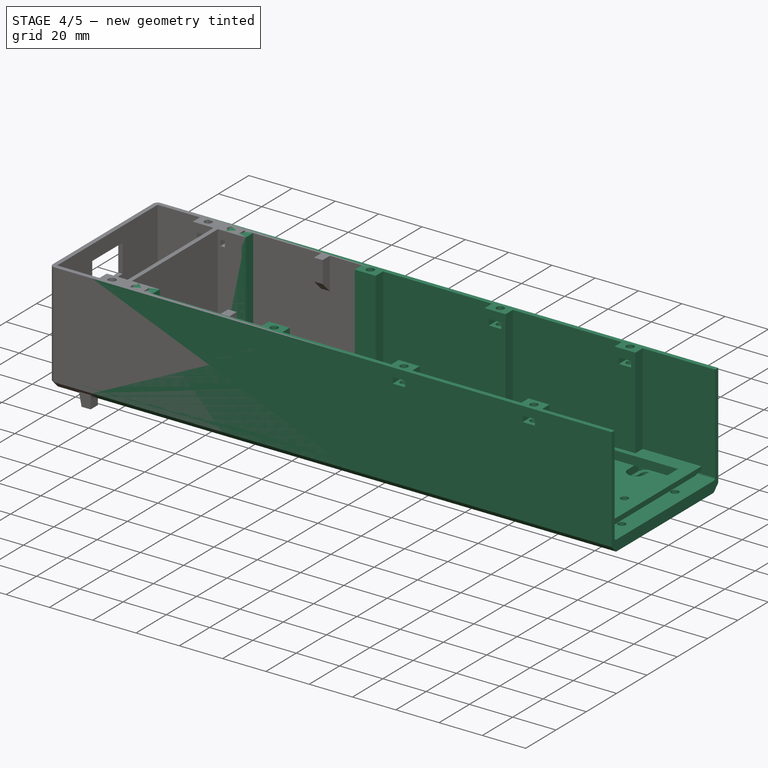
[diagram: stage 4 of 5 — iso view after this stage's code; geometry added in this stage tinted green]
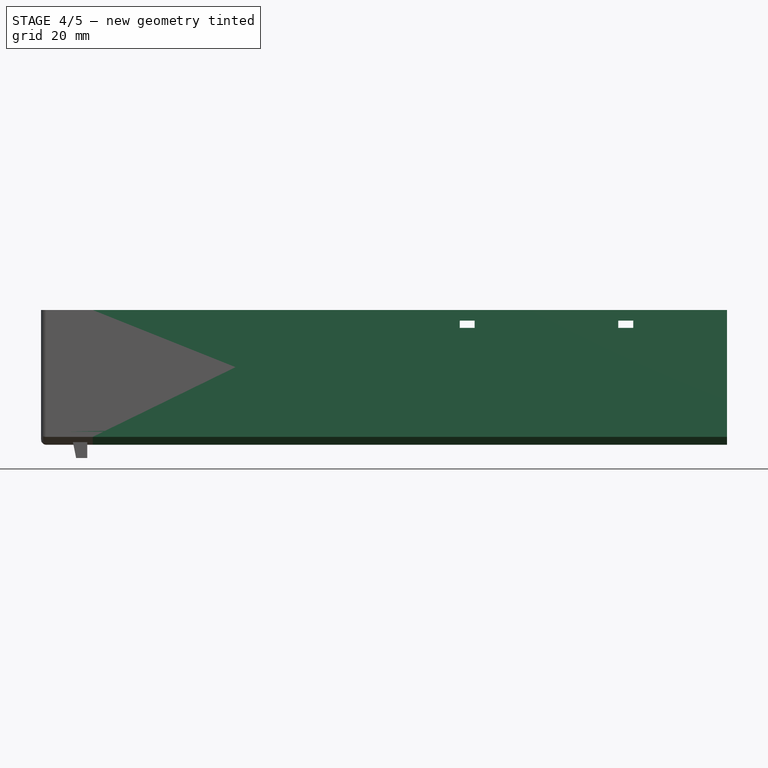
[diagram: stage 4 of 5 — front view after this stage's code; geometry added in this stage tinted green]
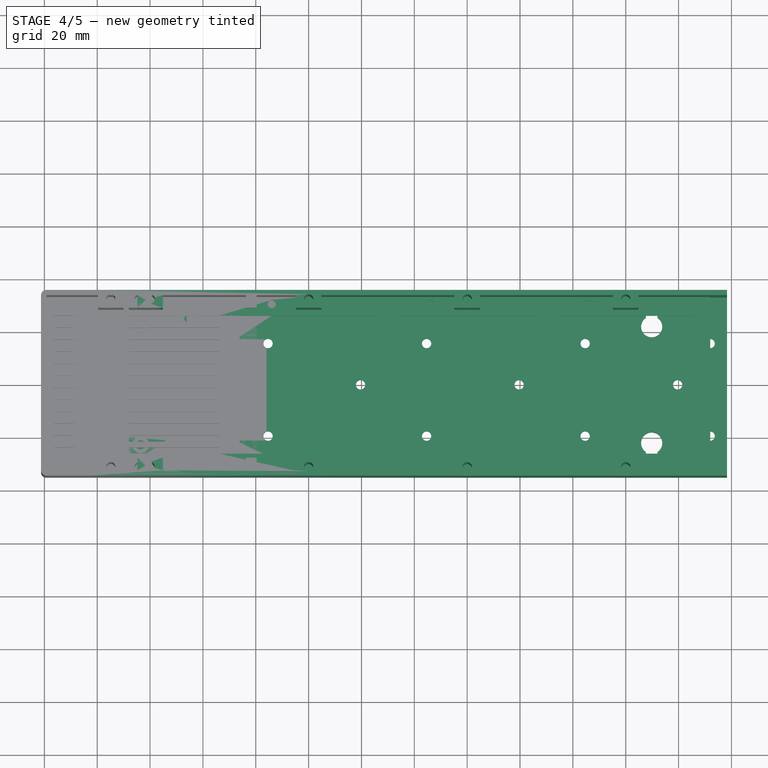
[diagram: stage 4 of 5 — top view after this stage's code; geometry added in this stage tinted green]
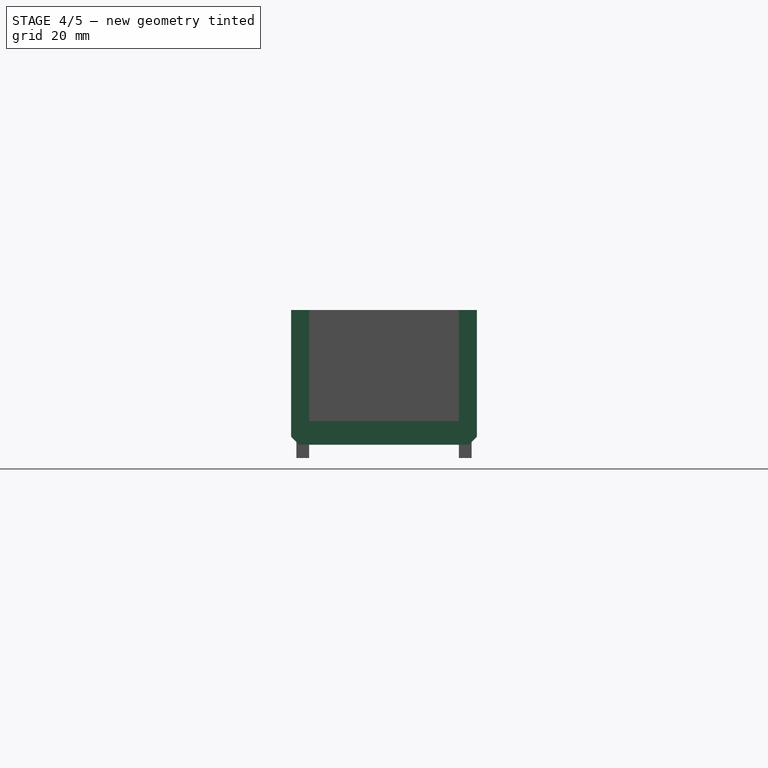
[diagram: stage 4 of 5 — right view after this stage's code; geometry added in this stage tinted green]
FEATURE [Sketcher::SketchObject] Sketch078  label="ST_Overlap"
  ExternalGeometry = -> [Sketch076]
  FullyConstrained = true
  MapMode = 5
  Placement = pos=(0,0,0) rot=(1,0,0;1.5708rad)
  Support = -> [XZ_Plane020]
  expr: Constraints[20] = <<ST_Base_>>.Length
  sketch-geometry (8):
    g0: LineSegment StartX=-30 StartY=1.9 StartZ=0 EndX=-28 EndY=1.9 EndZ=0
    g1: LineSegment StartX=-28 StartY=1.9 StartZ=0 EndX=-28 EndY=4 EndZ=0
    g2: LineSegment StartX=-28 StartY=4 StartZ=0 EndX=-30 EndY=4 EndZ=0
    g3: LineSegment StartX=-30 StartY=4 StartZ=0 EndX=-30 EndY=1.9 EndZ=0
    g4: LineSegment StartX=30 StartY=0 StartZ=0 EndX=32 EndY=0 EndZ=0
    g5: LineSegment StartX=32 StartY=0 StartZ=0 EndX=32 EndY=2.1 EndZ=0
    g6: LineSegment StartX=32 StartY=2.1 StartZ=0 EndX=30 EndY=2.1 EndZ=0
    g7: LineSegment StartX=30 StartY=2.1 StartZ=0 EndX=30 EndY=0 EndZ=0
  constraints (22):
    c: Coincident(g1,g2)
    c: Coincident(g2,g3)
    c: Horizontal(g2)
    c: Vertical(g1)
    c: Vertical(g3)
    c: Coincident(g4,g5)
    c: Coincident(g5,g6)
    c: Coincident(g6,g7)
    c: Coincident(g7,g4)
    c: Horizontal(g6)
    c: Vertical(g5)
    c: Vertical(g7)
    c: Equal(g7,g1)
    c: Coincident(g4,g-3)
    c: Coincident(g4,g-4)
    c: Coincident(g0,g3)
    c: Coincident(g0,g1)
    c: Horizontal(g0)
    c: PointOnObject(g-6,g3)
    c: PointOnObject(g-5,g1)
    c: DistanceY(g-6,g2) = 4
    c: DistanceY(g0,g6) = 0.2
FEATURE [Sketcher::SketchObject] Sketch079  label="ST_ScrewHeads"
  AttachmentOffset = pos=(0,0,2) rot=(0,0,1;0rad)
  ExternalGeometry = -> [Sketch076]
  FullyConstrained = true
  MapMode = 5
  Placement = pos=(0,0,2) rot=(0,0,1;0rad)
  Support = -> [XY_Plane020]
  expr: Constraints[1] = <<Screws>>.M3HeadRadius
  sketch-geometry (2):
    g0: Circle CenterX=-3.6e-15 CenterY=-31.75 CenterZ=0 NormalX=0 NormalY=0 NormalZ=1 AngleXU=0 Radius=3
    g1: Circle CenterX=3.6e-15 CenterY=31.75 CenterZ=0 NormalX=0 NormalY=0 NormalZ=1 AngleXU=0 Radius=3
  constraints (4):
    c: Equal(g0,g1)
    c: Radius(g0) = 3
    c: Coincident(g0,g-4)
    c: Coincident(g-3,g1)
FEATURE [Sketcher::SketchObject] Sketch081  label="ST_TopLock"
  ExternalGeometry = -> [Sketch076]
  FullyConstrained = true
  MapMode = 5
  Support = -> [XY_Plane020]
  sketch-geometry (8):
    g0: LineSegment StartX=-28 StartY=33.15 StartZ=0 EndX=-23.798 EndY=33.15 EndZ=0
    g1: LineSegment StartX=-23.798 StartY=33.15 StartZ=0 EndX=-23.798 EndY=28.35 EndZ=0
    g2: LineSegment StartX=-23.798 StartY=28.35 StartZ=0 EndX=-28 EndY=28.35 EndZ=0
    g3: LineSegment StartX=-28 StartY=28.35 StartZ=0 EndX=-28 EndY=33.15 EndZ=0
    g4: LineSegment StartX=-28 StartY=-28.35 StartZ=0 EndX=-23.798 EndY=-28.35 EndZ=0
    g5: LineSegment StartX=-23.798 StartY=-28.35 StartZ=0 EndX=-23.798 EndY=-33.15 EndZ=0
    g6: LineSegment StartX=-23.798 StartY=-33.15 StartZ=0 EndX=-28 EndY=-33.15 EndZ=0
    g7: LineSegment StartX=-28 StartY=-33.15 StartZ=0 EndX=-28 EndY=-28.35 EndZ=0
  constraints (20):
    c: Coincident(g0,g1)
    c: Coincident(g1,g2)
    c: Coincident(g2,g3)
    c: Coincident(g3,g0)
    c: Horizontal(g0)
    c: Horizontal(g2)
    c: Vertical(g1)
    c: Vertical(g3)
    c: Coincident(g0,g-3)
    c: Coincident(g1,g-4)
    c: Coincident(g4,g5)
    c: Coincident(g5,g6)
    c: Coincident(g6,g7)
    c: Coincident(g7,g4)
    c: Horizontal(g4)
    c: Horizontal(g6)
    c: Vertical(g5)
    c: Vertical(g7)
    c: Coincident(g4,g-5)
    c: Coincident(g5,g-6)
FEATURE [Sketcher::SketchObject] Sketch082  label="SB_TopLock"
  AttachmentOffset = pos=(0,0,40.302) rot=(0,0,1;0rad)
  ExternalGeometry = -> [Sketch075,Sketch065]
  FullyConstrained = true
  MapMode = 5
  Placement = pos=(40.302,-8.9e-15,8.9e-15) rot=(0.57735,0.57735,0.57735;2.0944rad)
  Support = -> [YZ_Plane009]
  expr: .AttachmentOffset.Base.z = <<SB_Ridge>>.AttachmentOffset.Base.z + <<SB_Ridge_>>.Length
  sketch-geometry (8):
    g0: LineSegment StartX=-33.15 StartY=46 StartZ=0 EndX=-28.35 EndY=46 EndZ=0
    g1: LineSegment StartX=-28.35 StartY=46 StartZ=0 EndX=-28.35 EndY=36 EndZ=0
    g2: LineSegment StartX=-28.35 StartY=36 StartZ=0 EndX=-33.15 EndY=31.2 EndZ=0
    g3: LineSegment StartX=-33.15 StartY=31.2 StartZ=0 EndX=-33.15 EndY=46 EndZ=0
    g4: LineSegment StartX=33.15 StartY=46 StartZ=0 EndX=28.35 EndY=46 EndZ=0
    g5: LineSegment StartX=28.35 StartY=46 StartZ=0 EndX=28.35 EndY=36 EndZ=0
    g6: LineSegment StartX=28.35 StartY=36 StartZ=0 EndX=33.15 EndY=31.2 EndZ=0
    g7: LineSegment StartX=33.15 StartY=31.2 StartZ=0 EndX=33.15 EndY=46 EndZ=0
  constraints (22):
    c: Coincident(g-5,g0)
    c: Horizontal(g0)
    c: Coincident(g0,g1)
    c: Vertical(g1)
    c: Coincident(g1,g2)
    c: Coincident(g2,g3)
    c: Coincident(g3,g0)
    c: Vertical(g3)
    c: PointOnObject(g-3,g1)
    c: Angle(g1,g2) = 2.35619
    c: DistanceY(g1,g1) = 10
    c: Coincident(g-6,g4)
    c: Horizontal(g4)
    c: Coincident(g4,g5)
    c: Vertical(g5)
    c: Coincident(g5,g6)
    c: Coincident(g6,g7)
    c: Coincident(g7,g4)
    c: Vertical(g7)
    c: Equal(g0,g4)
    c: Equal(g5,g1)
    c: Equal(g7,g3)
FEATURE [PartDesign::SubShapeBinder] Binder009  label="SBD_SB_top1"
  BindMode = 0
  ClaimChildren = false
  Context = -> Part015 [Part002.Body032.Binder009.]
  Fuse = false
  MakeFace = true
  PartialLoad = false
  Relative = true
  Support = -> [Body006[Sketch075.]]
  _Version = 2
FEATURE [PartDesign::SubShapeBinder] Binder010  label="SBD_SB_top2"
  BindMode = 0
  ClaimChildren = false
  Context = -> Part015 [Part002.Body032.Binder010.]
  Fuse = false
  MakeFace = true
  PartialLoad = false
  Placement = pos=(60,0,0) rot=(0,0,1;0rad)
  Relative = true
  Support = -> [Body006[Sketch075.]]
  _Version = 2
  expr: .Placement.Base.x = <<SocketBox>>.Spacing
FEATURE [PartDesign::SubShapeBinder] Binder  label="SBD_SB_right"
  BindMode = 0
  ClaimChildren = false
  Context = -> Part015 [Part002.Body032.Binder.]
  Fuse = false
  MakeFace = true
  PartialLoad = false
  Relative = true
  Support = -> [Body006[Sketch065.]]
  _Version = 2
FEATURE [Sketcher::SketchObject] Sketch083  label="SBD_Base"
  AttachmentOffset = pos=(0,0,-21.698) rot=(0,0,1;0rad)
  ExternalGeometry = -> [Binder]
  FullyConstrained = true
  MapMode = 5
  Placement = pos=(-21.698,4.8e-15,-4.8e-15) rot=(0.57735,0.57735,0.57735;2.0944rad)
  Support = -> [YZ_Plane037]
  expr: .AttachmentOffset.Base.z = -<<SB1B_Template_top>>.Constraints.PCBCenterOffset
  sketch-geometry (12):
    g0: ArcOfCircle CenterX=-32.15 CenterY=1 CenterZ=0 NormalX=0 NormalY=0 NormalZ=1 AngleXU=0 Radius=1 StartAngle=3.14159 EndAngle=4.71239
    g1: ArcOfCircle CenterX=32.15 CenterY=1 CenterZ=0 NormalX=0 NormalY=0 NormalZ=1 AngleXU=0 Radius=1 StartAngle=4.71239 EndAngle=6.28319
    g2: LineSegment StartX=33.15 StartY=1 StartZ=0 EndX=33.15 EndY=46 EndZ=0
    g3: LineSegment StartX=33.15 StartY=46 StartZ=0 EndX=35.15 EndY=46 EndZ=0
    g4: LineSegment StartX=35.15 StartY=46 StartZ=0 EndX=35.15 EndY=-2 EndZ=0
    g5: LineSegment StartX=35.15 StartY=-2 StartZ=0 EndX=32.15 EndY=-5 EndZ=0
    g6: LineSegment StartX=32.15 StartY=-5 StartZ=0 EndX=-32.15 EndY=-5 EndZ=0
    g7: LineSegment StartX=-32.15 StartY=-5 StartZ=0 EndX=-35.15 EndY=-2 EndZ=0
    g8: LineSegment StartX=-35.15 StartY=-2 StartZ=0 EndX=-35.15 EndY=46 EndZ=0
    g9: LineSegment StartX=-35.15 StartY=46 StartZ=0 EndX=-33.15 EndY=46 EndZ=0
    g10: LineSegment StartX=-33.15 StartY=46 StartZ=0 EndX=-33.15 EndY=1 EndZ=0
    g11: LineSegment StartX=-32.15 StartY=-4e-16 StartZ=0 EndX=32.15 EndY=4e-16 EndZ=0
  constraints (26):
    c: Coincident(g0,g-5)
    c: Coincident(g0,g-5)
    c: Equal(g0,g-5)
    c: Coincident(g1,g-6)
    c: Coincident(g1,g-6)
    c: Equal(g1,g-6)
    c: Coincident(g1,g2)
    c: Coincident(g2,g-4)
    c: Coincident(g2,g3)
    c: Coincident(g3,g-4)
    c: Coincident(g3,g4)
    c: Coincident(g4,g-7)
    c: Coincident(g4,g5)
    c: Coincident(g5,g-7)
    c: Coincident(g5,g6)
    c: Coincident(g6,g-8)
    c: Coincident(g6,g7)
    c: Coincident(g7,g-8)
    c: Coincident(g7,g8)
    c: Coincident(g8,g-3)
    c: Coincident(g8,g9)
    c: Coincident(g9,g-3)
    c: Coincident(g9,g10)
    c: Coincident(g10,g0)
    c: Coincident(g0,g11)
    c: Coincident(g11,g1)
FEATURE [PartDesign::Pad] Pad025  label="SBD_Base_"
  Direction = (1,1,1)
  Length = 120
  Length2 = 100
  Placement = pos=(0,0,0) rot=(0.57735,0.57735,0.57735;2.0944rad)
  Profile = -> Sketch083
  Type = 0
  expr: Length = <<SocketBox>>.Spacing * 2
FEATURE [Sketcher::SketchObject] Sketch084  label="SBD_Groove"
  AttachmentOffset = pos=(0,0,-19.598) rot=(0,0,1;0rad)
  ExternalGeometry = -> [Binder]
  FullyConstrained = true
  MapMode = 5
  Placement = pos=(-19.598,4.4e-15,-4.4e-15) rot=(0.57735,0.57735,0.57735;2.0944rad)
  Support = -> [YZ_Plane037]
  expr: .AttachmentOffset.Base.z = <<SBD_Base>>.AttachmentOffset.Base.z + 2.1mm
  sketch-geometry (12):
    g0: ArcOfCircle CenterX=-32.15 CenterY=1 CenterZ=0 NormalX=0 NormalY=0 NormalZ=1 AngleXU=0 Radius=1 StartAngle=3.14159 EndAngle=4.71239
    g1: ArcOfCircle CenterX=32.15 CenterY=1 CenterZ=0 NormalX=0 NormalY=0 NormalZ=1 AngleXU=0 Radius=1 StartAngle=4.71239 EndAngle=6.28319
    g2: LineSegment StartX=-33.15 StartY=1 StartZ=0 EndX=-33.15 EndY=46 EndZ=0
    g3: LineSegment StartX=-33.15 StartY=46 StartZ=0 EndX=-34.25 EndY=46 EndZ=0
    g4: LineSegment StartX=-34.25 StartY=46 StartZ=0 EndX=-34.25 EndY=1 EndZ=0
    g5: ArcOfCircle CenterX=-32.15 CenterY=1 CenterZ=0 NormalX=0 NormalY=0 NormalZ=1 AngleXU=0 Radius=2.1 StartAngle=3.14159 EndAngle=4.71239
    g6: LineSegment StartX=-32.15 StartY=-1.1 StartZ=0 EndX=32.15 EndY=-1.1 EndZ=0
    g7: ArcOfCircle CenterX=32.15 CenterY=1 CenterZ=0 NormalX=0 NormalY=0 NormalZ=1 AngleXU=0 Radius=2.1 StartAngle=4.71239 EndAngle=6.28319
    g8: LineSegment StartX=34.25 StartY=1 StartZ=0 EndX=34.25 EndY=46 EndZ=0
    g9: LineSegment StartX=34.25 StartY=46 StartZ=0 EndX=33.15 EndY=46 EndZ=0
    g10: LineSegment StartX=33.15 StartY=46 StartZ=0 EndX=33.15 EndY=1 EndZ=0
    g11: LineSegment StartX=-32.15 StartY=3.53335e-11 StartZ=0 EndX=32.15 EndY=1.079e-13 EndZ=0
  constraints (28):
    c: Coincident(g0,g-3)
    c: Coincident(g0,g-3)
    c: Coincident(g1,g-4)
    c: Coincident(g1,g-4)
    c: Coincident(g0,g2)
    c: Coincident(g2,g-5)
    c: Coincident(g2,g3)
    c: Coincident(g3,g-6)
    c: Coincident(g3,g4)
    c: Coincident(g4,g-6)
    c: Coincident(g5,g0)
    c: Coincident(g5,g4)
    c: Horizontal(g6)
    c: Coincident(g7,g1)
    c: Coincident(g8,g7)
    c: PointOnObject(g8,g-7)
    c: Vertical(g8)
    c: Coincident(g9,g8)
    c: Coincident(g9,g-7)
    c: Coincident(g10,g9)
    c: Coincident(g10,g1)
    c: Coincident(g11,g0)
    c: Coincident(g11,g1)
    c: Equal(g10,g8)
    c: Tangent(g6,g7) = -1.5708
    c: Equal(g1,g-4)
    c: Equal(g-3,g0)
    c: Tangent(g5,g6) = -1.5708
FEATURE [PartDesign::Pocket] Pocket029  label="SBD_Groove_"
  BaseFeature = -> Pad025
  Length = 5
  Length2 = 100
  Placement = pos=(0,0,0) rot=(0.57735,0.57735,0.57735;2.0944rad)
  Profile = -> Sketch084
  Type = 1
FEATURE [Sketcher::SketchObject] Sketch085  label="SBD_ScrewBlock"
  ExternalGeometry = -> [Binder009,Binder010]
  FullyConstrained = true
  MapMode = 5
  Support = -> [XY_Plane037]
  sketch-geometry (16):
    g0: LineSegment StartX=-4.825 StartY=33.15 StartZ=0 EndX=4.825 EndY=33.15 EndZ=0
    g1: LineSegment StartX=4.825 StartY=33.15 StartZ=0 EndX=4.825 EndY=28.35 EndZ=0
    g2: LineSegment StartX=4.825 StartY=28.35 StartZ=0 EndX=-4.825 EndY=28.35 EndZ=0
    g3: LineSegment StartX=-4.825 StartY=28.35 StartZ=0 EndX=-4.825 EndY=33.15 EndZ=0
    g4: LineSegment StartX=55.175 StartY=33.15 StartZ=0 EndX=64.825 EndY=33.15 EndZ=0
    g5: LineSegment StartX=64.825 StartY=33.15 StartZ=0 EndX=64.825 EndY=28.35 EndZ=0
    g6: LineSegment StartX=64.825 StartY=28.35 StartZ=0 EndX=55.175 EndY=28.35 EndZ=0
    g7: LineSegment StartX=55.175 StartY=28.35 StartZ=0 EndX=55.175 EndY=33.15 EndZ=0
    g8: LineSegment StartX=55.175 StartY=-28.35 StartZ=0 EndX=64.825 EndY=-28.35 EndZ=0
    g9: LineSegment StartX=64.825 StartY=-28.35 StartZ=0 EndX=64.825 EndY=-33.15 EndZ=0
    g10: LineSegment StartX=64.825 StartY=-33.15 StartZ=0 EndX=55.175 EndY=-33.15 EndZ=0
    g11: LineSegment StartX=55.175 StartY=-33.15 StartZ=0 EndX=55.175 EndY=-28.35 EndZ=0
    g12: LineSegment StartX=-4.825 StartY=-28.35 StartZ=0 EndX=4.825 EndY=-28.35 EndZ=0
    g13: LineSegment StartX=4.825 StartY=-28.35 StartZ=0 EndX=4.825 EndY=-33.15 EndZ=0
    g14: LineSegment StartX=4.825 StartY=-33.15 StartZ=0 EndX=-4.825 EndY=-33.15 EndZ=0
    g15: LineSegment StartX=-4.825 StartY=-33.15 StartZ=0 EndX=-4.825 EndY=-28.35 EndZ=0
  constraints (40):
    c: Coincident(g0,g1)
    c: Coincident(g1,g2)
    c: Coincident(g2,g3)
    c: Coincident(g3,g0)
    c: Horizontal(g0)
    c: Horizontal(g2)
    c: Vertical(g1)
    c: Vertical(g3)
    c: Coincident(g0,g-3)
    c: Coincident(g1,g-4)
    c: Coincident(g4,g5)
    c: Coincident(g5,g6)
    c: Coincident(g6,g7)
    c: Coincident(g7,g4)
    c: Horizontal(g4)
    c: Horizontal(g6)
    c: Vertical(g5)
    c: Vertical(g7)
    c: Coincident(g4,g-5)
    c: Coincident(g5,g-6)
    c: Coincident(g8,g9)
    c: Coincident(g9,g10)
    c: Coincident(g10,g11)
    c: Coincident(g11,g8)
    c: Horizontal(g8)
    c: Horizontal(g10)
    c: Vertical(g9)
    c: Vertical(g11)
    c: Coincident(g8,g-8)
    c: Coincident(g9,g-7)
    c: Coincident(g12,g13)
    c: Coincident(g13,g14)
    c: Coincident(g14,g15)
    c: Coincident(g15,g12)
    c: Horizontal(g12)
    c: Horizontal(g14)
    c: Vertical(g13)
    c: Vertical(g15)
    c: Coincident(g12,g-10)
    c: Coincident(g13,g-9)
FEATURE [PartDesign::Pad] Pad026  label="SBD_ScrewBlock_"
  BaseFeature = -> Pocket029
  Direction = (1,1,1)
  Length = 46
  Length2 = 100
  Placement = pos=(0,0,0) rot=(0.57735,0.57735,0.57735;2.0944rad)
  Profile = -> Sketch085
  Type = 0
  expr: Length = <<Shell>>.WallHeight
FEATURE [Sketcher::SketchObject] Sketch086  label="SBD_ScrewBlockHoles"
  ExternalGeometry = -> [Binder009,Binder010]
  FullyConstrained = true
  MapMode = 5
  Support = -> [XY_Plane037]
  sketch-geometry (4):
    g0: Circle CenterX=0 CenterY=31.75 CenterZ=0 NormalX=0 NormalY=0 NormalZ=1 AngleXU=0 Radius=1.75
    g1: Circle CenterX=60 CenterY=31.75 CenterZ=0 NormalX=0 NormalY=0 NormalZ=1 AngleXU=0 Radius=1.75
    g2: Circle CenterX=60 CenterY=-31.75 CenterZ=0 NormalX=0 NormalY=0 NormalZ=1 AngleXU=0 Radius=1.75
    g3: Circle CenterX=0 CenterY=-31.75 CenterZ=0 NormalX=0 NormalY=0 NormalZ=1 AngleXU=0 Radius=1.75
  constraints (8):
    c: Coincident(g0,g-3)
    c: Coincident(g1,g-4)
    c: Coincident(g2,g-5)
    c: Coincident(g3,g-6)
    c: Equal(g0,g-3)
    c: Equal(g3,g-6)
    c: Equal(g2,g-5)
    c: Equal(g1,g-4)
FEATURE [PartDesign::Pocket] Pocket030  label="SBD_ScrewBlockHoles_"
  BaseFeature = -> Pad026
  Length = 5
  Length2 = 100
  Placement = pos=(0,0,0) rot=(0.57735,0.57735,0.57735;2.0944rad)
  Profile = -> Sketch086
  Refine = true
  Reversed = true
  Type = 1
FEATURE [Sketcher::SketchObject] Sketch087  label="SBD_BaseScrews"
  ExternalGeometry = -> [Binder009,Binder010]
  FullyConstrained = true
  MapMode = 5
  Support = -> [XY_Plane037]
  sketch-geometry (26):
    g0: Circle CenterX=-15.348 CenterY=15.621 CenterZ=0 NormalX=0 NormalY=0 NormalZ=1 AngleXU=0 Radius=1.75
    g1: Circle CenterX=-15.348 CenterY=-19.431 CenterZ=0 NormalX=0 NormalY=0 NormalZ=1 AngleXU=0 Radius=1.75
    g2: Circle CenterX=19.652 CenterY=0 CenterZ=0 NormalX=0 NormalY=0 NormalZ=1 AngleXU=0 Radius=1.75
    g3: Circle CenterX=31.952 CenterY=15.621 CenterZ=0 NormalX=0 NormalY=0 NormalZ=1 AngleXU=0 Radius=1.75
    g4: Circle CenterX=31.952 CenterY=-19.431 CenterZ=0 NormalX=0 NormalY=0 NormalZ=1 AngleXU=0 Radius=1.75
    g5: Circle CenterX=44.652 CenterY=-19.431 CenterZ=0 NormalX=0 NormalY=0 NormalZ=1 AngleXU=0 Radius=1.75
    g6: Circle CenterX=44.652 CenterY=15.621 CenterZ=0 NormalX=0 NormalY=0 NormalZ=1 AngleXU=0 Radius=1.75
    g7: Circle CenterX=79.652 CenterY=0 CenterZ=0 NormalX=0 NormalY=0 NormalZ=1 AngleXU=0 Radius=1.75
    g8: Circle CenterX=91.952 CenterY=15.621 CenterZ=0 NormalX=0 NormalY=0 NormalZ=1 AngleXU=0 Radius=1.75
    g9: Circle CenterX=91.952 CenterY=-19.431 CenterZ=0 NormalX=0 NormalY=0 NormalZ=1 AngleXU=0 Radius=1.75
    g10: ArcOfCircle CenterX=9.825 CenterY=28.35 CenterZ=0 NormalX=0 NormalY=0 NormalZ=1 AngleXU=0 Radius=2.2 StartAngle=6.28318 EndAngle=9.42478
    g11: ArcOfCircle CenterX=9.825 CenterY=22.0093 CenterZ=0 NormalX=0 NormalY=0 NormalZ=1 AngleXU=0 Radius=4 StartAngle=2.15316 EndAngle=7.27162
    g12: ArcOfCircle CenterX=9.825 CenterY=-22.0093 CenterZ=0 NormalX=0 NormalY=0 NormalZ=1 AngleXU=0 Radius=4 StartAngle=5.29475 EndAngle=10.4132
    g13: ArcOfCircle CenterX=9.825 CenterY=-28.35 CenterZ=0 NormalX=0 NormalY=0 NormalZ=1 AngleXU=0 Radius=2.2 StartAngle=3.14159 EndAngle=6.28319
    g14: ArcOfCircle CenterX=69.825 CenterY=-22.0093 CenterZ=0 NormalX=0 NormalY=0 NormalZ=1 AngleXU=0 Radius=4 StartAngle=5.29475 EndAngle=10.4132
    g15: ArcOfCircle CenterX=69.825 CenterY=-28.35 CenterZ=0 NormalX=0 NormalY=0 NormalZ=1 AngleXU=0 Radius=2.2 StartAngle=3.14159 EndAngle=6.28319
    g16: ArcOfCircle CenterX=69.825 CenterY=28.35 CenterZ=0 NormalX=0 NormalY=0 NormalZ=1 AngleXU=0 Radius=2.2 StartAngle=6.28318 EndAngle=9.42479
    g17: ArcOfCircle CenterX=69.825 CenterY=22.0093 CenterZ=0 NormalX=0 NormalY=0 NormalZ=1 AngleXU=0 Radius=4 StartAngle=2.15316 EndAngle=7.27162
    g18: LineSegment StartX=7.625 StartY=28.35 StartZ=0 EndX=7.625 EndY=25.35 EndZ=0
    g19: LineSegment StartX=12.025 StartY=28.35 StartZ=0 EndX=12.025 EndY=25.35 EndZ=0
    g20: LineSegment StartX=7.625 StartY=-25.35 StartZ=0 EndX=7.625 EndY=-28.35 EndZ=0
    g21: LineSegment StartX=12.025 StartY=-25.35 StartZ=0 EndX=12.025 EndY=-28.35 EndZ=0
    g22: LineSegment StartX=67.625 StartY=-25.35 StartZ=0 EndX=67.625 EndY=-28.35 EndZ=0
    g23: LineSegment StartX=72.025 StartY=-28.35 StartZ=0 EndX=72.025 EndY=-25.35 EndZ=0
    g24: LineSegment StartX=67.625 StartY=25.35 StartZ=0 EndX=67.625 EndY=28.35 EndZ=0
    g25: LineSegment StartX=72.025 StartY=28.35 StartZ=0 EndX=72.025 EndY=25.35 EndZ=0
  constraints (60):
    c: Coincident(g0,g-3)
    c: Coincident(g1,g-4)
    c: Coincident(g2,g-5)
    c: Coincident(g3,g-6)
    c: Coincident(g4,g-7)
    c: Coincident(g5,g-9)
    c: Coincident(g6,g-8)
    c: Coincident(g7,g-10)
    c: Coincident(g8,g-11)
    c: Coincident(g9,g-12)
    c: Equal(g-3,g0)
    c: Equal(g1,g-4)
    c: Equal(g2,g-5)
    c: Equal(g3,g-6)
    c: Equal(g4,g-7)
    c: Equal(g6,g-8)
    c: Equal(g5,g-9)
    c: Equal(g7,g-10)
    c: Equal(g8,g-11)
    c: Equal(g9,g-12)
    c: Coincident(g10,g-13)
    c: Coincident(g10,g-13)
    c: Coincident(g11,g-14)
    c: Coincident(g11,g-14)
    c: Coincident(g12,g-15)
    c: Coincident(g12,g-15)
    c: Coincident(g13,g-16)
    c: Coincident(g13,g-16)
    c: Coincident(g14,g-19)
    c: Coincident(g14,g-19)
    c: Coincident(g15,g-20)
    c: Coincident(g15,g-20)
    c: Coincident(g16,g-17)
    c: Coincident(g16,g-17)
    c: Coincident(g17,g-18)
    c: Coincident(g17,g-18)
    c: Equal(g10,g-13)
    c: Equal(g-14,g11)
    c: Equal(g12,g-15)
    c: Equal(g13,g-16)
    c: Equal(g14,g-19)
    c: Equal(g15,g-20)
    c: Equal(g17,g-18)
    c: Equal(g16,g-17)
    c: Coincident(g18,g10)
    c: Coincident(g18,g11)
    c: Coincident(g19,g10)
    c: Coincident(g19,g11)
    c: Coincident(g20,g12)
    c: Coincident(g20,g13)
    c: Coincident(g21,g12)
    c: Coincident(g21,g13)
    c: Coincident(g22,g14)
    c: Coincident(g22,g15)
    c: Coincident(g23,g15)
    c: Coincident(g23,g14)
    c: Coincident(g24,g17)
    c: Coincident(g24,g16)
    c: Coincident(g25,g16)
    c: Coincident(g25,g17)
FEATURE [PartDesign::Pocket] Pocket031  label="SBD_BaseScrews_"
  BaseFeature = -> Pocket030
  Length = 5
  Length2 = 100
  Placement = pos=(0,0,0) rot=(0.57735,0.57735,0.57735;2.0944rad)
  Profile = -> Sketch087
  Type = 1
FEATURE [Sketcher::SketchObject] Sketch088  label="SBD_BaseHeads"
  AttachmentOffset = pos=(0,0,-2.05) rot=(0,0,1;0rad)
  ExternalGeometry = -> [Binder009,Binder010]
  FullyConstrained = true
  MapMode = 5
  Placement = pos=(0,0,-2.05) rot=(0,0,1;0rad)
  Support = -> [XY_Plane037]
  expr: Constraints[19] = <<Screws>>.M3HeadRadius
  expr: .AttachmentOffset.Base.z = -(<<Shell>>.BottomThickness - <<Screws>>.M3HeadHeight)
  sketch-geometry (10):
    g0: Circle CenterX=-15.348 CenterY=15.621 CenterZ=0 NormalX=0 NormalY=0 NormalZ=1 AngleXU=0 Radius=3
    g1: Circle CenterX=-15.348 CenterY=-19.431 CenterZ=0 NormalX=0 NormalY=0 NormalZ=1 AngleXU=0 Radius=3
    g2: Circle CenterX=19.652 CenterY=0 CenterZ=0 NormalX=0 NormalY=0 NormalZ=1 AngleXU=0 Radius=3
    g3: Circle CenterX=31.952 CenterY=15.621 CenterZ=0 NormalX=0 NormalY=0 NormalZ=1 AngleXU=0 Radius=3
    g4: Circle CenterX=44.652 CenterY=15.621 CenterZ=0 NormalX=0 NormalY=0 NormalZ=1 AngleXU=0 Radius=3
    g5: Circle CenterX=31.952 CenterY=-19.431 CenterZ=0 NormalX=0 NormalY=0 NormalZ=1 AngleXU=0 Radius=3
    g6: Circle CenterX=44.652 CenterY=-19.431 CenterZ=0 NormalX=0 NormalY=0 NormalZ=1 AngleXU=0 Radius=3
    g7: Circle CenterX=79.652 CenterY=0 CenterZ=0 NormalX=0 NormalY=0 NormalZ=1 AngleXU=0 Radius=3
    g8: Circle CenterX=91.952 CenterY=15.621 CenterZ=0 NormalX=0 NormalY=0 NormalZ=1 AngleXU=0 Radius=3
    g9: Circle CenterX=91.952 CenterY=-19.431 CenterZ=0 NormalX=0 NormalY=0 NormalZ=1 AngleXU=0 Radius=3
  constraints (20):
    c: Coincident(g0,g-3)
    c: Coincident(g1,g-7)
    c: Coincident(g2,g-5)
    c: Coincident(g3,g-4)
    c: Coincident(g4,g-8)
    c: Coincident(g5,g-6)
    c: Coincident(g6,g-9)
    c: Coincident(g7,g-10)
    c: Coincident(g8,g-11)
    c: Coincident(g9,g-12)
    c: Equal(g0,g1)
    c: Equal(g1,g2)
    c: Equal(g2,g3)
    c: Equal(g3,g5)
    c: Equal(g5,g6)
    c: Equal(g6,g4)
    c: Equal(g4,g7)
    c: Equal(g7,g8)
    c: Equal(g8,g9)
    c: Radius(g0) = 3
FEATURE [PartDesign::Pocket] Pocket032  label="SBD_BaseHeads_"
  BaseFeature = -> Pocket031
  Length = 5
  Length2 = 100
  Placement = pos=(0,0,0) rot=(0.57735,0.57735,0.57735;2.0944rad)
  Profile = -> Sketch088
  Type = 1
FEATURE [Sketcher::SketchObject] Sketch089  label="SBD_NutPocket"
  ExternalGeometry = -> [Binder009,Binder010,Binder]
  FullyConstrained = true
  MapMode = 5
  Placement = pos=(0,0,0) rot=(1,0,0;1.5708rad)
  Support = -> [XZ_Plane037]
  expr: Constraints[22] = <<Screws>>.M3NutHeight
  sketch-geometry (8):
    g0: LineSegment StartX=-2.825 StartY=42 StartZ=0 EndX=2.825 EndY=42 EndZ=0
    g1: LineSegment StartX=2.825 StartY=42 StartZ=0 EndX=2.825 EndY=39.25 EndZ=0
    g2: LineSegment StartX=2.825 StartY=39.25 StartZ=0 EndX=-2.825 EndY=39.25 EndZ=0
    g3: LineSegment StartX=-2.825 StartY=39.25 StartZ=0 EndX=-2.825 EndY=42 EndZ=0
    g4: LineSegment StartX=57.175 StartY=42 StartZ=0 EndX=62.825 EndY=42 EndZ=0
    g5: LineSegment StartX=62.825 StartY=42 StartZ=0 EndX=62.825 EndY=39.25 EndZ=0
    g6: LineSegment StartX=62.825 StartY=39.25 StartZ=0 EndX=57.175 EndY=39.25 EndZ=0
    g7: LineSegment StartX=57.175 StartY=39.25 StartZ=0 EndX=57.175 EndY=42 EndZ=0
  constraints (24):
    c: Coincident(g0,g1)
    c: Coincident(g1,g2)
    c: Coincident(g2,g3)
    c: Coincident(g3,g0)
    c: Horizontal(g0)
    c: Horizontal(g2)
    c: Vertical(g1)
    c: Vertical(g3)
    c: Coincident(g4,g5)
    c: Coincident(g5,g6)
    c: Coincident(g6,g7)
    c: Coincident(g7,g4)
    c: Horizontal(g4)
    c: Horizontal(g6)
    c: Vertical(g5)
    c: Vertical(g7)
    c: PointOnObject(g-6,g5)
    c: PointOnObject(g-5,g7)
    c: PointOnObject(g-4,g1)
    c: PointOnObject(g-3,g3)
    c: PointOnObject(g4,g0)
    c: PointOnObject(g6,g2)
    c: DistanceY(g5,g5) = 2.75
    c: DistanceY(g0,g-7) = 4
FEATURE [Sketcher::SketchObject] Sketch090  label="SBD_Ridge"
  AttachmentOffset = pos=(0,0,98.302) rot=(0,0,1;0rad)
  ExternalGeometry = -> [Binder]
  FullyConstrained = true
  MapMode = 5
  Placement = pos=(98.302,-2.18e-14,2.18e-14) rot=(0.57735,0.57735,0.57735;2.0944rad)
  Support = -> [YZ_Plane037]
  expr: .AttachmentOffset.Base.z = <<SBD_Base>>.AttachmentOffset.Base.z + <<SBD_Base_>>.Length
  sketch-geometry (12):
    g0: ArcOfCircle CenterX=-32.15 CenterY=1 CenterZ=0 NormalX=0 NormalY=0 NormalZ=1 AngleXU=0 Radius=1 StartAngle=3.14159 EndAngle=4.71239
    g1: ArcOfCircle CenterX=32.15 CenterY=1 CenterZ=0 NormalX=0 NormalY=0 NormalZ=1 AngleXU=0 Radius=1 StartAngle=4.71239 EndAngle=6.28319
    g2: LineSegment StartX=-33.15 StartY=1 StartZ=0 EndX=-33.15 EndY=46 EndZ=0
    g3: LineSegment StartX=-33.15 StartY=46 StartZ=0 EndX=-34.05 EndY=46 EndZ=0
    g4: LineSegment StartX=-34.05 StartY=46 StartZ=0 EndX=-34.05 EndY=1 EndZ=0
    g5: ArcOfCircle CenterX=-32.15 CenterY=1 CenterZ=0 NormalX=0 NormalY=0 NormalZ=1 AngleXU=0 Radius=1.9 StartAngle=3.14159 EndAngle=4.71239
    g6: ArcOfCircle CenterX=32.15 CenterY=1 CenterZ=0 NormalX=0 NormalY=0 NormalZ=1 AngleXU=0 Radius=1.9 StartAngle=4.71239 EndAngle=6.28319
    g7: LineSegment StartX=-32.15 StartY=-0.9 StartZ=0 EndX=32.15 EndY=-0.9 EndZ=0
    g8: LineSegment StartX=-32.15 StartY=3.53402e-11 StartZ=0 EndX=32.15 EndY=1.144e-13 EndZ=0
    g9: LineSegment StartX=34.05 StartY=1 StartZ=0 EndX=34.05 EndY=46 EndZ=0
    g10: LineSegment StartX=34.05 StartY=46 StartZ=0 EndX=33.15 EndY=46 EndZ=0
    g11: LineSegment StartX=33.15 StartY=46 StartZ=0 EndX=33.15 EndY=1 EndZ=0
  constraints (28):
    c: Coincident(g0,g-5)
    c: Coincident(g0,g-5)
    c: Coincident(g1,g-6)
    c: Coincident(g1,g-6)
    c: Equal(g1,g-6)
    c: Equal(g0,g-5)
    c: Coincident(g0,g2)
    c: Coincident(g2,g-3)
    c: Coincident(g2,g3)
    c: Coincident(g3,g-4)
    c: Coincident(g3,g4)
    c: Coincident(g4,g-4)
    c: Coincident(g5,g0)
    c: Coincident(g5,g4)
    c: Coincident(g6,g1)
    c: Horizontal(g7)
    c: Coincident(g8,g0)
    c: Coincident(g8,g1)
    c: Tangent(g5,g7) = -1.5708
    c: Tangent(g6,g7) = -1.5708
    c: Coincident(g9,g6)
    c: PointOnObject(g9,g-7)
    c: Vertical(g9)
    c: Coincident(g10,g9)
    c: Coincident(g10,g-7)
    c: Coincident(g11,g10)
    c: Coincident(g11,g1)
    c: Equal(g11,g9)
FEATURE [Sketcher::SketchObject] Sketch091  label="SBD_TopLock"
  AttachmentOffset = pos=(0,0,100.302) rot=(0,0,1;0rad)
  ExternalGeometry = -> [Binder009,Binder]
  FullyConstrained = true
  MapMode = 5
  Placement = pos=(100.302,-2.23e-14,2.23e-14) rot=(0.57735,0.57735,0.57735;2.0944rad)
  Support = -> [YZ_Plane037]
  expr: .AttachmentOffset.Base.z = <<SBD_Ridge>>.AttachmentOffset.Base.z + <<SBD_Ridge_>>.Length
  sketch-geometry (8):
    g0: LineSegment StartX=-33.15 StartY=46 StartZ=0 EndX=-28.35 EndY=46 EndZ=0
    g1: LineSegment StartX=-28.35 StartY=46 StartZ=0 EndX=-28.35 EndY=36 EndZ=0
    g2: LineSegment StartX=-28.35 StartY=36 StartZ=0 EndX=-33.15 EndY=31.2 EndZ=0
    g3: LineSegment StartX=-33.15 StartY=31.2 StartZ=0 EndX=-33.15 EndY=46 EndZ=0
    g4: LineSegment StartX=33.15 StartY=46 StartZ=0 EndX=28.35 EndY=46 EndZ=0
    g5: LineSegment StartX=28.35 StartY=46 StartZ=0 EndX=28.35 EndY=36 EndZ=0
    g6: LineSegment StartX=28.35 StartY=36 StartZ=0 EndX=33.15 EndY=31.2 EndZ=0
    g7: LineSegment StartX=33.15 StartY=31.2 StartZ=0 EndX=33.15 EndY=46 EndZ=0
  constraints (22):
    c: Coincident(g-4,g0)
    c: Horizontal(g0)
    c: Coincident(g0,g1)
    c: Vertical(g1)
    c: Coincident(g1,g2)
    c: PointOnObject(g2,g-4)
    c: Coincident(g2,g3)
    c: Coincident(g3,g0)
    c: PointOnObject(g-3,g1)
    c: Angle(g1,g2) = 2.35619
    c: DistanceY(g1,g1) = 10
    c: Coincident(g-5,g4)
    c: Horizontal(g4)
    c: Coincident(g4,g5)
    c: Vertical(g5)
    c: Coincident(g5,g6)
    c: PointOnObject(g6,g-5)
    c: Coincident(g6,g7)
    c: Coincident(g7,g4)
    c: Equal(g4,g0)
    c: Equal(g1,g5)
    c: Equal(g7,g3)
FEATURE [PartDesign::SubShapeBinder] Binder011  label="SBQ_SB_top1"
  BindMode = 0
  ClaimChildren = false
  Context = -> Part015 [Part002.Body033.Binder011.]
  Fuse = false
  MakeFace = true
  PartialLoad = false
  Relative = true
  Support = -> [Body006[Sketch075.]]
  _Version = 2
FEATURE [PartDesign::SubShapeBinder] Binder012  label="SBQ_SB_top2"
  BindMode = 0
  ClaimChildren = false
  Context = -> Part015 [Part002.Body033.Binder012.]
  Fuse = false
  MakeFace = true
  PartialLoad = false
  Placement = pos=(60,0,0) rot=(0,0,1;0rad)
  Relative = true
  Support = -> [Body006[Sketch075.]]
  _Version = 2
  expr: .Placement.Base.x = <<SocketBox>>.Spacing
FEATURE [PartDesign::SubShapeBinder] Binder013  label="SBQ_SB_right"
  BindMode = 0
  ClaimChildren = false
  Context = -> Part015 [Part002.Body033.Binder013.]
  Fuse = false
  MakeFace = true
  PartialLoad = false
  Relative = true
  Support = -> [Body006[Sketch065.]]
  _Version = 2
FEATURE [Sketcher::SketchObject] Sketch092  label="SBQ_Base"
  AttachmentOffset = pos=(0,0,-21.698) rot=(0,0,1;0rad)
  ExternalGeometry = -> [Binder013]
  FullyConstrained = true
  MapMode = 5
  Placement = pos=(-21.698,4.8e-15,-4.8e-15) rot=(0.57735,0.57735,0.57735;2.0944rad)
  Support = -> [YZ_Plane038]
  expr: .AttachmentOffset.Base.z = -<<SB1B_Template_top>>.Constraints.PCBCenterOffset
  sketch-geometry (12):
    g0: ArcOfCircle CenterX=-32.15 CenterY=1 CenterZ=0 NormalX=0 NormalY=0 NormalZ=1 AngleXU=0 Radius=1 StartAngle=3.14159 EndAngle=4.71239
    g1: ArcOfCircle CenterX=32.15 CenterY=1 CenterZ=0 NormalX=0 NormalY=0 NormalZ=1 AngleXU=0 Radius=1 StartAngle=4.71239 EndAngle=6.28319
    g2: LineSegment StartX=33.15 StartY=1 StartZ=0 EndX=33.15 EndY=46 EndZ=0
    g3: LineSegment StartX=33.15 StartY=46 StartZ=0 EndX=35.15 EndY=46 EndZ=0
    g4: LineSegment StartX=35.15 StartY=46 StartZ=0 EndX=35.15 EndY=-2 EndZ=0
    g5: LineSegment StartX=35.15 StartY=-2 StartZ=0 EndX=32.15 EndY=-5 EndZ=0
    g6: LineSegment StartX=32.15 StartY=-5 StartZ=0 EndX=-32.15 EndY=-5 EndZ=0
    g7: LineSegment StartX=-32.15 StartY=-5 StartZ=0 EndX=-35.15 EndY=-2 EndZ=0
    g8: LineSegment StartX=-35.15 StartY=-2 StartZ=0 EndX=-35.15 EndY=46 EndZ=0
    g9: LineSegment StartX=-35.15 StartY=46 StartZ=0 EndX=-33.15 EndY=46 EndZ=0
    g10: LineSegment StartX=-33.15 StartY=46 StartZ=0 EndX=-33.15 EndY=1 EndZ=0
    g11: LineSegment StartX=-32.15 StartY=-4e-16 StartZ=0 EndX=32.15 EndY=4e-16 EndZ=0
  constraints (26):
    c: Coincident(g0,g-5)
    c: Coincident(g0,g-5)
    c: Equal(g0,g-5)
    c: Coincident(g1,g-6)
    c: Coincident(g1,g-6)
    c: Equal(g1,g-6)
    c: Coincident(g1,g2)
    c: Coincident(g2,g-4)
    c: Coincident(g2,g3)
    c: Coincident(g3,g-4)
    c: Coincident(g3,g4)
    c: Coincident(g4,g-7)
    c: Coincident(g4,g5)
    c: Coincident(g5,g-7)
    c: Coincident(g5,g6)
    c: Coincident(g6,g-8)
    c: Coincident(g6,g7)
    c: Coincident(g7,g-8)
    c: Coincident(g7,g8)
    c: Coincident(g8,g-3)
    c: Coincident(g8,g9)
    c: Coincident(g9,g-3)
    c: Coincident(g9,g10)
    c: Coincident(g10,g0)
    c: Coincident(g0,g11)
    c: Coincident(g11,g1)
FEATURE [PartDesign::Pad] Pad029  label="SBQ_Base_"
  Direction = (1,1,1)
  Length = 240
  Length2 = 100
  Placement = pos=(0,0,0) rot=(0.57735,0.57735,0.57735;2.0944rad)
  Profile = -> Sketch092
  Type = 0
  expr: Length = <<SocketBox>>.Spacing * 4
FEATURE [Sketcher::SketchObject] Sketch093  label="SBQ_Groove"
  AttachmentOffset = pos=(0,0,-19.598) rot=(0,0,1;0rad)
  ExternalGeometry = -> [Binder013]
  FullyConstrained = true
  MapMode = 5
  Placement = pos=(-19.598,4.4e-15,-4.4e-15) rot=(0.57735,0.57735,0.57735;2.0944rad)
  Support = -> [YZ_Plane038]
  expr: .AttachmentOffset.Base.z = <<SBQ_Base>>.AttachmentOffset.Base.z + 2.1mm
  sketch-geometry (12):
    g0: ArcOfCircle CenterX=-32.15 CenterY=1 CenterZ=0 NormalX=0 NormalY=0 NormalZ=1 AngleXU=0 Radius=1 StartAngle=3.14159 EndAngle=4.71239
    g1: ArcOfCircle CenterX=32.15 CenterY=1 CenterZ=0 NormalX=0 NormalY=0 NormalZ=1 AngleXU=0 Radius=1 StartAngle=4.71239 EndAngle=6.28319
    g2: LineSegment StartX=-33.15 StartY=1 StartZ=0 EndX=-33.15 EndY=46 EndZ=0
    g3: LineSegment StartX=-33.15 StartY=46 StartZ=0 EndX=-34.25 EndY=46 EndZ=0
    g4: LineSegment StartX=-34.25 StartY=46 StartZ=0 EndX=-34.25 EndY=1 EndZ=0
    g5: ArcOfCircle CenterX=-32.15 CenterY=1 CenterZ=0 NormalX=0 NormalY=0 NormalZ=1 AngleXU=0 Radius=2.1 StartAngle=3.14159 EndAngle=4.71239
    g6: LineSegment StartX=-32.15 StartY=-1.1 StartZ=0 EndX=32.15 EndY=-1.1 EndZ=0
    g7: ArcOfCircle CenterX=32.15 CenterY=1 CenterZ=0 NormalX=0 NormalY=0 NormalZ=1 AngleXU=0 Radius=2.1 StartAngle=4.71239 EndAngle=6.28319
    g8: LineSegment StartX=34.25 StartY=1 StartZ=0 EndX=34.25 EndY=46 EndZ=0
    g9: LineSegment StartX=34.25 StartY=46 StartZ=0 EndX=33.15 EndY=46 EndZ=0
    g10: LineSegment StartX=33.15 StartY=46 StartZ=0 EndX=33.15 EndY=1 EndZ=0
    g11: LineSegment StartX=-32.15 StartY=3.53335e-11 StartZ=0 EndX=32.15 EndY=1.079e-13 EndZ=0
  constraints (28):
    c: Coincident(g0,g-3)
    c: Coincident(g0,g-3)
    c: Coincident(g1,g-4)
    c: Coincident(g1,g-4)
    c: Coincident(g0,g2)
    c: Coincident(g2,g-5)
    c: Coincident(g2,g3)
    c: Coincident(g3,g-6)
    c: Coincident(g3,g4)
    c: Coincident(g4,g-6)
    c: Coincident(g5,g0)
    c: Coincident(g5,g4)
    c: Horizontal(g6)
    c: Coincident(g7,g1)
    c: Coincident(g8,g7)
    c: PointOnObject(g8,g-7)
    c: Vertical(g8)
    c: Coincident(g9,g8)
    c: Coincident(g9,g-7)
    c: Coincident(g10,g9)
    c: Coincident(g10,g1)
    c: Coincident(g11,g0)
    c: Coincident(g11,g1)
    c: Equal(g10,g8)
    c: Tangent(g6,g7) = -1.5708
    c: Equal(g1,g-4)
    c: Equal(g-3,g0)
    c: Tangent(g5,g6) = -1.5708
FEATURE [PartDesign::Pocket] Pocket034  label="SBQ_Groove_"
  BaseFeature = -> Pad029
  Length = 5
  Length2 = 100
  Placement = pos=(0,0,0) rot=(0.57735,0.57735,0.57735;2.0944rad)
  Profile = -> Sketch093
  Type = 1
FEATURE [Sketcher::SketchObject] Sketch099  label="SBQ_Ridge"
  AttachmentOffset = pos=(0,0,218.302) rot=(0,0,1;0rad)
  ExternalGeometry = -> [Binder013]
  FullyConstrained = true
  MapMode = 5
  Placement = pos=(218.302,-4.85e-14,4.85e-14) rot=(0.57735,0.57735,0.57735;2.0944rad)
  Support = -> [YZ_Plane038]
  expr: .AttachmentOffset.Base.z = <<SBQ_Base>>.AttachmentOffset.Base.z + <<SBQ_Base_>>.Length
  sketch-geometry (12):
    g0: ArcOfCircle CenterX=-32.15 CenterY=1 CenterZ=0 NormalX=0 NormalY=0 NormalZ=1 AngleXU=0 Radius=1 StartAngle=3.14159 EndAngle=4.71239
    g1: ArcOfCircle CenterX=32.15 CenterY=1 CenterZ=0 NormalX=0 NormalY=0 NormalZ=1 AngleXU=0 Radius=1 StartAngle=4.71239 EndAngle=6.28319
    g2: LineSegment StartX=-33.15 StartY=1 StartZ=0 EndX=-33.15 EndY=46 EndZ=0
    g3: LineSegment StartX=-33.15 StartY=46 StartZ=0 EndX=-34.05 EndY=46 EndZ=0
    g4: LineSegment StartX=-34.05 StartY=46 StartZ=0 EndX=-34.05 EndY=1 EndZ=0
    g5: ArcOfCircle CenterX=-32.15 CenterY=1 CenterZ=0 NormalX=0 NormalY=0 NormalZ=1 AngleXU=0 Radius=1.9 StartAngle=3.14159 EndAngle=4.71239
    g6: ArcOfCircle CenterX=32.15 CenterY=1 CenterZ=0 NormalX=0 NormalY=0 NormalZ=1 AngleXU=0 Radius=1.9 StartAngle=4.71239 EndAngle=6.28319
    g7: LineSegment StartX=-32.15 StartY=-0.9 StartZ=0 EndX=32.15 EndY=-0.9 EndZ=0
    g8: LineSegment StartX=-32.15 StartY=3.53468e-11 StartZ=0 EndX=32.15 EndY=1.21e-13 EndZ=0
    g9: LineSegment StartX=34.05 StartY=1 StartZ=0 EndX=34.05 EndY=46 EndZ=0
    g10: LineSegment StartX=34.05 StartY=46 StartZ=0 EndX=33.15 EndY=46 EndZ=0
    g11: LineSegment StartX=33.15 StartY=46 StartZ=0 EndX=33.15 EndY=1 EndZ=0
  constraints (28):
    c: Coincident(g0,g-5)
    c: Coincident(g0,g-5)
    c: Coincident(g1,g-6)
    c: Coincident(g1,g-6)
    c: Equal(g1,g-6)
    c: Equal(g0,g-5)
    c: Coincident(g0,g2)
    c: Coincident(g2,g-3)
    c: Coincident(g2,g3)
    c: Coincident(g3,g-4)
    c: Coincident(g3,g4)
    c: Coincident(g4,g-4)
    c: Coincident(g5,g0)
    c: Coincident(g5,g4)
    c: Coincident(g6,g1)
    c: Horizontal(g7)
    c: Coincident(g8,g0)
    c: Coincident(g8,g1)
    c: Tangent(g5,g7) = -1.5708
    c: Tangent(g6,g7) = -1.5708
    c: Coincident(g9,g6)
    c: PointOnObject(g9,g-7)
    c: Vertical(g9)
    c: Coincident(g10,g9)
    c: Coincident(g10,g-7)
    c: Coincident(g11,g10)
    c: Coincident(g11,g1)
    c: Equal(g11,g9)
FEATURE [Sketcher::SketchObject] Sketch100  label="SBQ_TopLock"
  AttachmentOffset = pos=(0,0,220.302) rot=(0,0,1;0rad)
  ExternalGeometry = -> [Binder011,Binder013]
  FullyConstrained = true
  MapMode = 5
  Placement = pos=(220.302,-4.89e-14,4.89e-14) rot=(0.57735,0.57735,0.57735;2.0944rad)
  Support = -> [YZ_Plane038]
  expr: .AttachmentOffset.Base.z = <<SBQ_Ridge>>.AttachmentOffset.Base.z + <<SBQ_Ridge_>>.Length
  sketch-geometry (8):
    g0: LineSegment StartX=-33.15 StartY=46 StartZ=0 EndX=-28.35 EndY=46 EndZ=0
    g1: LineSegment StartX=-28.35 StartY=46 StartZ=0 EndX=-28.35 EndY=36 EndZ=0
    g2: LineSegment StartX=-28.35 StartY=36 StartZ=0 EndX=-33.15 EndY=31.2 EndZ=0
    g3: LineSegment StartX=-33.15 StartY=31.2 StartZ=0 EndX=-33.15 EndY=46 EndZ=0
    g4: LineSegment StartX=33.15 StartY=46 StartZ=0 EndX=28.35 EndY=46 EndZ=0
    g5: LineSegment StartX=28.35 StartY=46 StartZ=0 EndX=28.35 EndY=36 EndZ=0
    g6: LineSegment StartX=28.35 StartY=36 StartZ=0 EndX=33.15 EndY=31.2 EndZ=0
    g7: LineSegment StartX=33.15 StartY=31.2 StartZ=0 EndX=33.15 EndY=46 EndZ=0
  constraints (22):
    c: Coincident(g-4,g0)
    c: Horizontal(g0)
    c: Coincident(g0,g1)
    c: Vertical(g1)
    c: Coincident(g1,g2)
    c: PointOnObject(g2,g-4)
    c: Coincident(g2,g3)
    c: Coincident(g3,g0)
    c: PointOnObject(g-3,g1)
    c: Angle(g1,g2) = 2.35619
    c: DistanceY(g1,g1) = 10
    c: Coincident(g-5,g4)
    c: Horizontal(g4)
    c: Coincident(g4,g5)
    c: Vertical(g5)
    c: Coincident(g5,g6)
    c: PointOnObject(g6,g-5)
    c: Coincident(g6,g7)
    c: Coincident(g7,g4)
    c: Equal(g4,g0)
    c: Equal(g1,g5)
    c: Equal(g7,g3)
FEATURE [PartDesign::SubShapeBinder] Binder014  label="SBQ_SB_top3"
  BindMode = 0
  ClaimChildren = false
  Context = -> Part015 [Part002.Body033.Binder014.]
  Fuse = false
  MakeFace = true
  PartialLoad = false
  Placement = pos=(120,0,0) rot=(0,0,1;0rad)
  Relative = true
  Support = -> [Body006[Sketch075.]]
  _Version = 2
  expr: .Placement.Base.x = 2 * <<SocketBox>>.Spacing
FEATURE [PartDesign::SubShapeBinder] Binder015  label="SBQ_SB_top4"
  BindMode = 0
  ClaimChildren = false
  Context = -> Part015 [Part002.Body033.Binder015.]
  Fuse = false
  MakeFace = true
  PartialLoad = false
  Placement = pos=(180,0,0) rot=(0,0,1;0rad)
  Relative = true
  Support = -> [Body006[Sketch075.]]
  _Version = 2
  expr: .Placement.Base.x = 3 * <<SocketBox>>.Spacing
FEATURE [Sketcher::SketchObject] Sketch094  label="SBQ_ScrewBlock"
  ExternalGeometry = -> [Binder011,Binder012,Binder014,Binder015]
  FullyConstrained = true
  MapMode = 5
  Support = -> [XY_Plane038]
  sketch-geometry (32):
    g0: LineSegment StartX=-4.825 StartY=33.15 StartZ=0 EndX=4.825 EndY=33.15 EndZ=0
    g1: LineSegment StartX=4.825 StartY=33.15 StartZ=0 EndX=4.825 EndY=28.35 EndZ=0
    g2: LineSegment StartX=4.825 StartY=28.35 StartZ=0 EndX=-4.825 EndY=28.35 EndZ=0
    g3: LineSegment StartX=-4.825 StartY=28.35 StartZ=0 EndX=-4.825 EndY=33.15 EndZ=0
    g4: LineSegment StartX=55.175 StartY=33.15 StartZ=0 EndX=64.825 EndY=33.15 EndZ=0
    g5: LineSegment StartX=64.825 StartY=33.15 StartZ=0 EndX=64.825 EndY=28.35 EndZ=0
    g6: LineSegment StartX=64.825 StartY=28.35 StartZ=0 EndX=55.175 EndY=28.35 EndZ=0
    g7: LineSegment StartX=55.175 StartY=28.35 StartZ=0 EndX=55.175 EndY=33.15 EndZ=0
    g8: LineSegment StartX=55.175 StartY=-28.35 StartZ=0 EndX=64.825 EndY=-28.35 EndZ=0
    g9: LineSegment StartX=64.825 StartY=-28.35 StartZ=0 EndX=64.825 EndY=-33.15 EndZ=0
    g10: LineSegment StartX=64.825 StartY=-33.15 StartZ=0 EndX=55.175 EndY=-33.15 EndZ=0
    g11: LineSegment StartX=55.175 StartY=-33.15 StartZ=0 EndX=55.175 EndY=-28.35 EndZ=0
    g12: LineSegment StartX=-4.825 StartY=-28.35 StartZ=0 EndX=4.825 EndY=-28.35 EndZ=0
    g13: LineSegment StartX=4.825 StartY=-28.35 StartZ=0 EndX=4.825 EndY=-33.15 EndZ=0
    g14: LineSegment StartX=4.825 StartY=-33.15 StartZ=0 EndX=-4.825 EndY=-33.15 EndZ=0
    g15: LineSegment StartX=-4.825 StartY=-33.15 StartZ=0 EndX=-4.825 EndY=-28.35 EndZ=0
    g16: LineSegment StartX=115.175 StartY=33.15 StartZ=0 EndX=124.825 EndY=33.15 EndZ=0
    g17: LineSegment StartX=124.825 StartY=33.15 StartZ=0 EndX=124.825 EndY=28.35 EndZ=0
    g18: LineSegment StartX=124.825 StartY=28.35 StartZ=0 EndX=115.175 EndY=28.35 EndZ=0
    g19: LineSegment StartX=115.175 StartY=28.35 StartZ=0 EndX=115.175 EndY=33.15 EndZ=0
    g20: LineSegment StartX=175.175 StartY=33.15 StartZ=0 EndX=184.825 EndY=33.15 EndZ=0
    g21: LineSegment StartX=184.825 StartY=33.15 StartZ=0 EndX=184.825 EndY=28.35 EndZ=0
    g22: LineSegment StartX=184.825 StartY=28.35 StartZ=0 EndX=175.175 EndY=28.35 EndZ=0
    g23: LineSegment StartX=175.175 StartY=28.35 StartZ=0 EndX=175.175 EndY=33.15 EndZ=0
    g24: LineSegment StartX=175.175 StartY=-28.35 StartZ=0 EndX=184.825 EndY=-28.35 EndZ=0
    g25: LineSegment StartX=184.825 StartY=-28.35 StartZ=0 EndX=184.825 EndY=-33.15 EndZ=0
    g26: LineSegment StartX=184.825 StartY=-33.15 StartZ=0 EndX=175.175 EndY=-33.15 EndZ=0
    g27: LineSegment StartX=175.175 StartY=-33.15 StartZ=0 EndX=175.175 EndY=-28.35 EndZ=0
    g28: LineSegment StartX=115.175 StartY=-28.35 StartZ=0 EndX=124.825 EndY=-28.35 EndZ=0
    g29: LineSegment StartX=124.825 StartY=-28.35 StartZ=0 EndX=124.825 EndY=-33.15 EndZ=0
    g30: LineSegment StartX=124.825 StartY=-33.15 StartZ=0 EndX=115.175 EndY=-33.15 EndZ=0
    g31: LineSegment StartX=115.175 StartY=-33.15 StartZ=0 EndX=115.175 EndY=-28.35 EndZ=0
  constraints (80):
    c: Coincident(g0,g1)
    c: Coincident(g1,g2)
    c: Coincident(g2,g3)
    c: Coincident(g3,g0)
    c: Horizontal(g0)
    c: Horizontal(g2)
    c: Vertical(g1)
    c: Vertical(g3)
    c: Coincident(g0,g-3)
    c: Coincident(g1,g-4)
    c: Coincident(g4,g5)
    c: Coincident(g5,g6)
    c: Coincident(g6,g7)
    c: Coincident(g7,g4)
    c: Horizontal(g4)
    c: Horizontal(g6)
    c: Vertical(g5)
    c: Vertical(g7)
    c: Coincident(g4,g-5)
    c: Coincident(g5,g-6)
    c: Coincident(g8,g9)
    c: Coincident(g9,g10)
    c: Coincident(g10,g11)
    c: Coincident(g11,g8)
    c: Horizontal(g8)
    c: Horizontal(g10)
    c: Vertical(g9)
    c: Vertical(g11)
    c: Coincident(g8,g-8)
    c: Coincident(g9,g-7)
    c: Coincident(g12,g13)
    c: Coincident(g13,g14)
    c: Coincident(g14,g15)
    c: Coincident(g15,g12)
    c: Horizontal(g12)
    c: Horizontal(g14)
    c: Vertical(g13)
    c: Vertical(g15)
    c: Coincident(g12,g-10)
    c: Coincident(g13,g-9)
    c: Coincident(g16,g17)
    c: Coincident(g17,g18)
    c: Coincident(g18,g19)
    c: Coincident(g19,g16)
    c: Horizontal(g16)
    c: Horizontal(g18)
    c: Vertical(g17)
    c: Vertical(g19)
    c: Coincident(g16,g-11)
    c: Coincident(g17,g-12)
    c: Coincident(g20,g21)
    c: Coincident(g21,g22)
    c: Coincident(g22,g23)
    c: Coincident(g23,g20)
    c: Horizontal(g20)
    c: Horizontal(g22)
    c: Vertical(g21)
    c: Vertical(g23)
    c: Coincident(g20,g-13)
    c: Coincident(g21,g-14)
    c: Coincident(g24,g25)
    c: Coincident(g25,g26)
    c: Coincident(g26,g27)
    c: Coincident(g27,g24)
    c: Horizontal(g24)
    c: Horizontal(g26)
    c: Vertical(g25)
    c: Vertical(g27)
    c: Coincident(g24,g-16)
    c: Coincident(g25,g-15)
    c: Coincident(g28,g29)
    c: Coincident(g29,g30)
    c: Coincident(g30,g31)
    c: Coincident(g31,g28)
    c: Horizontal(g28)
    c: Horizontal(g30)
    c: Vertical(g29)
    c: Vertical(g31)
    c: Coincident(g28,g-18)
    c: Coincident(g29,g-17)
FEATURE [PartDesign::Pad] Pad030  label="SBQ_ScrewBlock_"
  BaseFeature = -> Pocket034
  Direction = (1,1,1)
  Length = 46
  Length2 = 100
  Placement = pos=(0,0,0) rot=(0.57735,0.57735,0.57735;2.0944rad)
  Profile = -> Sketch094
  Type = 0
  expr: Length = <<Shell>>.WallHeight
FEATURE [Sketcher::SketchObject] Sketch095  label="SBQ_ScrewBlockHoles"
  ExternalGeometry = -> [Binder011,Binder012,Binder014,Binder015]
  FullyConstrained = true
  MapMode = 5
  Support = -> [XY_Plane038]
  sketch-geometry (8):
    g0: Circle CenterX=0 CenterY=31.75 CenterZ=0 NormalX=0 NormalY=0 NormalZ=1 AngleXU=0 Radius=1.75
    g1: Circle CenterX=60 CenterY=31.75 CenterZ=0 NormalX=0 NormalY=0 NormalZ=1 AngleXU=0 Radius=1.75
    g2: Circle CenterX=60 CenterY=-31.75 CenterZ=0 NormalX=0 NormalY=0 NormalZ=1 AngleXU=0 Radius=1.75
    g3: Circle CenterX=0 CenterY=-31.75 CenterZ=0 NormalX=0 NormalY=0 NormalZ=1 AngleXU=0 Radius=1.75
    g4: Circle CenterX=120 CenterY=31.75 CenterZ=0 NormalX=0 NormalY=0 NormalZ=1 AngleXU=0 Radius=1.75
    g5: Circle CenterX=180 CenterY=31.75 CenterZ=0 NormalX=0 NormalY=0 NormalZ=1 AngleXU=0 Radius=1.75
    g6: Circle CenterX=180 CenterY=-31.75 CenterZ=0 NormalX=0 NormalY=0 NormalZ=1 AngleXU=0 Radius=1.75
    g7: Circle CenterX=120 CenterY=-31.75 CenterZ=0 NormalX=0 NormalY=0 NormalZ=1 AngleXU=0 Radius=1.75
  constraints (16):
    c: Coincident(g0,g-3)
    c: Coincident(g1,g-4)
    c: Coincident(g2,g-5)
    c: Coincident(g3,g-6)
    c: Equal(g0,g-3)
    c: Equal(g3,g-6)
    c: Equal(g2,g-5)
    c: Equal(g1,g-4)
    c: Coincident(g4,g-7)
    c: Coincident(g5,g-8)
    c: Coincident(g6,g-9)
    c: Coincident(g7,g-10)
    c: Equal(g-10,g7)
    c: Equal(g4,g-7)
    c: Equal(g5,g-8)
    c: Equal(g6,g-9)
FEATURE [PartDesign::Pocket] Pocket035  label="SBQ_ScrewBlockHoles_"
  BaseFeature = -> Pad030
  Length = 5
  Length2 = 100
  Placement = pos=(0,0,0) rot=(0.57735,0.57735,0.57735;2.0944rad)
  Profile = -> Sketch095
  Refine = true
  Reversed = true
  Type = 1
FEATURE [Sketcher::SketchObject] Sketch096  label="SBQ_BaseScrews"
  ExternalGeometry = -> [Binder011,Binder012,Binder014,Binder015]
  FullyConstrained = true
  MapMode = 5
  Support = -> [XY_Plane038]
  sketch-geometry (36):
    g0: Circle CenterX=-15.348 CenterY=15.621 CenterZ=0 NormalX=0 NormalY=0 NormalZ=1 AngleXU=0 Radius=1.75
    g1: Circle CenterX=-15.348 CenterY=-19.431 CenterZ=0 NormalX=0 NormalY=0 NormalZ=1 AngleXU=0 Radius=1.75
    g2: Circle CenterX=19.652 CenterY=0 CenterZ=0 NormalX=0 NormalY=0 NormalZ=1 AngleXU=0 Radius=1.75
    g3: Circle CenterX=31.952 CenterY=15.621 CenterZ=0 NormalX=0 NormalY=0 NormalZ=1 AngleXU=0 Radius=1.75
    g4: Circle CenterX=31.952 CenterY=-19.431 CenterZ=0 NormalX=0 NormalY=0 NormalZ=1 AngleXU=0 Radius=1.75
    g5: Circle CenterX=44.652 CenterY=-19.431 CenterZ=0 NormalX=0 NormalY=0 NormalZ=1 AngleXU=0 Radius=1.75
    g6: Circle CenterX=44.652 CenterY=15.621 CenterZ=0 NormalX=0 NormalY=0 NormalZ=1 AngleXU=0 Radius=1.75
    g7: Circle CenterX=79.652 CenterY=0 CenterZ=0 NormalX=0 NormalY=0 NormalZ=1 AngleXU=0 Radius=1.75
    g8: Circle CenterX=91.952 CenterY=15.621 CenterZ=0 NormalX=0 NormalY=0 NormalZ=1 AngleXU=0 Radius=1.75
    g9: Circle CenterX=91.952 CenterY=-19.431 CenterZ=0 NormalX=0 NormalY=0 NormalZ=1 AngleXU=0 Radius=1.75
    g10: Circle CenterX=104.652 CenterY=15.621 CenterZ=0 NormalX=0 NormalY=0 NormalZ=1 AngleXU=0 Radius=1.75
    g11: Circle CenterX=104.652 CenterY=-19.431 CenterZ=0 NormalX=0 NormalY=0 NormalZ=1 AngleXU=0 Radius=1.75
    g12: Circle CenterX=139.652 CenterY=0 CenterZ=0 NormalX=0 NormalY=0 NormalZ=1 AngleXU=0 Radius=1.75
    g13: Circle CenterX=151.952 CenterY=15.621 CenterZ=0 NormalX=0 NormalY=0 NormalZ=1 AngleXU=0 Radius=1.75
    g14: Circle CenterX=151.952 CenterY=-19.431 CenterZ=0 NormalX=0 NormalY=0 NormalZ=1 AngleXU=0 Radius=1.75
    g15: Circle CenterX=164.652 CenterY=15.621 CenterZ=0 NormalX=0 NormalY=0 NormalZ=1 AngleXU=0 Radius=1.75
    g16: Circle CenterX=164.652 CenterY=-19.431 CenterZ=0 NormalX=0 NormalY=0 NormalZ=1 AngleXU=0 Radius=1.75
    g17: Circle CenterX=199.652 CenterY=0 CenterZ=0 NormalX=0 NormalY=0 NormalZ=1 AngleXU=0 Radius=1.75
    g18: Circle CenterX=211.952 CenterY=15.621 CenterZ=0 NormalX=0 NormalY=0 NormalZ=1 AngleXU=0 Radius=1.75
    g19: Circle CenterX=211.952 CenterY=-19.431 CenterZ=0 NormalX=0 NormalY=0 NormalZ=1 AngleXU=0 Radius=1.75
    g20: ArcOfCircle CenterX=9.825 CenterY=22.0093 CenterZ=0 NormalX=0 NormalY=0 NormalZ=1 AngleXU=0 Radius=4 StartAngle=2.15316 EndAngle=7.27162
    g21: ArcOfCircle CenterX=9.825 CenterY=28.35 CenterZ=0 NormalX=0 NormalY=0 NormalZ=1 AngleXU=0 Radius=2.2 StartAngle=6.28318 EndAngle=9.42479
    g22: ArcOfCircle CenterX=9.825 CenterY=-22.0093 CenterZ=0 NormalX=0 NormalY=0 NormalZ=1 AngleXU=0 Radius=4 StartAngle=5.29475 EndAngle=10.4132
    g23: ArcOfCircle CenterX=9.825 CenterY=-28.35 CenterZ=0 NormalX=0 NormalY=0 NormalZ=1 AngleXU=0 Radius=2.2 StartAngle=3.14159 EndAngle=6.28319
    g24: ArcOfCircle CenterX=189.825 CenterY=22.0093 CenterZ=0 NormalX=0 NormalY=0 NormalZ=1 AngleXU=0 Radius=4 StartAngle=2.15316 EndAngle=7.27162
    g25: ArcOfCircle CenterX=189.825 CenterY=28.35 CenterZ=0 NormalX=0 NormalY=0 NormalZ=1 AngleXU=0 Radius=2.2 StartAngle=6.28318 EndAngle=9.42478
    g26: ArcOfCircle CenterX=189.825 CenterY=-22.0093 CenterZ=0 NormalX=0 NormalY=0 NormalZ=1 AngleXU=0 Radius=4 StartAngle=5.29475 EndAngle=10.4132
    g27: ArcOfCircle CenterX=189.825 CenterY=-28.35 CenterZ=0 NormalX=0 NormalY=0 NormalZ=1 AngleXU=0 Radius=2.2 StartAngle=3.14159 EndAngle=6.28319
    g28: LineSegment StartX=7.625 StartY=28.35 StartZ=0 EndX=7.625 EndY=25.35 EndZ=0
    g29: LineSegment StartX=12.025 StartY=28.35 StartZ=0 EndX=12.025 EndY=25.35 EndZ=0
    g30: LineSegment StartX=7.625 StartY=-25.35 StartZ=0 EndX=7.625 EndY=-28.35 EndZ=0
    g31: LineSegment StartX=12.025 StartY=-25.35 StartZ=0 EndX=12.025 EndY=-28.35 EndZ=0
    g32: LineSegment StartX=187.625 StartY=-28.35 StartZ=0 EndX=187.625 EndY=-25.35 EndZ=0
    g33: LineSegment StartX=192.025 StartY=-28.35 StartZ=0 EndX=192.025 EndY=-25.35 EndZ=0
    g34: LineSegment StartX=187.625 StartY=25.35 StartZ=0 EndX=187.625 EndY=28.35 EndZ=0
    g35: LineSegment StartX=192.025 StartY=28.35 StartZ=0 EndX=192.025 EndY=25.35 EndZ=0
  constraints (80):
    c: Coincident(g0,g-3)
    c: Coincident(g1,g-4)
    c: Coincident(g2,g-5)
    c: Coincident(g3,g-6)
    c: Coincident(g4,g-7)
    c: Coincident(g5,g-9)
    c: Coincident(g6,g-8)
    c: Coincident(g7,g-10)
    c: Coincident(g8,g-11)
    c: Coincident(g9,g-12)
    c: Equal(g-3,g0)
    c: Equal(g1,g-4)
    c: Equal(g2,g-5)
    c: Equal(g3,g-6)
    c: Equal(g4,g-7)
    c: Equal(g6,g-8)
    c: Equal(g5,g-9)
    c: Equal(g7,g-10)
    c: Equal(g8,g-11)
    c: Equal(g9,g-12)
    c: Coincident(g10,g-13)
    c: Coincident(g11,g-14)
    c: Coincident(g12,g-15)
    c: Coincident(g13,g-16)
    c: Coincident(g14,g-17)
    c: Coincident(g15,g-19)
    c: Coincident(g16,g-18)
    c: Coincident(g17,g-20)
    c: Coincident(g18,g-21)
    c: Coincident(g19,g-22)
    c: Equal(g10,g-13)
    c: Equal(g11,g-14)
    c: Equal(g12,g-15)
    c: Equal(g13,g-16)
    c: Equal(g15,g-19)
    c: Equal(g16,g-18)
    c: Equal(g14,g-17)
    c: Equal(g17,g-20)
    c: Equal(g18,g-21)
    c: Equal(g19,g-22)
    c: Coincident(g20,g-24)
    c: Coincident(g20,g-24)
    c: Coincident(g21,g-23)
    c: Coincident(g21,g-23)
    c: Coincident(g22,g-26)
    c: Coincident(g22,g-26)
    c: Coincident(g23,g-25)
    c: Coincident(g23,g-25)
    c: Coincident(g24,g-29)
    c: Coincident(g24,g-29)
    c: Coincident(g25,g-30)
    c: Coincident(g25,g-30)
    c: Coincident(g26,g-28)
    c: Coincident(g26,g-28)
    c: Coincident(g27,g-27)
    c: Coincident(g27,g-27)
    c: Equal(g26,g-28)
    c: Equal(g27,g-27)
    c: Equal(g24,g-29)
    c: Equal(g25,g-30)
    c: Equal(g21,g-23)
    c: Equal(g22,g-26)
    c: Equal(g23,g-25)
    c: Equal(g20,g-24)
    c: Coincident(g28,g21)
    c: Coincident(g28,g20)
    c: Coincident(g29,g21)
    c: Coincident(g29,g20)
    c: Coincident(g30,g22)
    c: Coincident(g30,g23)
    c: Coincident(g31,g22)
    c: Coincident(g31,g23)
    c: Coincident(g32,g27)
    c: Coincident(g32,g26)
    c: Coincident(g33,g27)
    c: Coincident(g33,g26)
    c: Coincident(g34,g24)
    c: Coincident(g34,g25)
    c: Coincident(g35,g25)
    c: Coincident(g35,g24)
FEATURE [PartDesign::Pocket] Pocket036  label="SBQ_BaseScrews_"
  BaseFeature = -> Pocket035
  Length = 5
  Length2 = 100
  Placement = pos=(0,0,0) rot=(0.57735,0.57735,0.57735;2.0944rad)
  Profile = -> Sketch096
  Type = 1
FEATURE [Sketcher::SketchObject] Sketch097  label="SBQ_BaseHeads"
  AttachmentOffset = pos=(0,0,-2.05) rot=(0,0,1;0rad)
  ExternalGeometry = -> [Binder011,Binder012,Binder014,Binder015]
  FullyConstrained = true
  MapMode = 5
  Placement = pos=(0,0,-2.05) rot=(0,0,1;0rad)
  Support = -> [XY_Plane038]
  expr: .AttachmentOffset.Base.z = -(<<Shell>>.BottomThickness - <<Screws>>.M3HeadHeight)
  expr: Constraints[19] = <<Screws>>.M3HeadRadius
  sketch-geometry (20):
    g0: Circle CenterX=-15.348 CenterY=15.621 CenterZ=0 NormalX=0 NormalY=0 NormalZ=1 AngleXU=0 Radius=3
    g1: Circle CenterX=-15.348 CenterY=-19.431 CenterZ=0 NormalX=0 NormalY=0 NormalZ=1 AngleXU=0 Radius=3
    g2: Circle CenterX=19.652 CenterY=0 CenterZ=0 NormalX=0 NormalY=0 NormalZ=1 AngleXU=0 Radius=3
    g3: Circle CenterX=31.952 CenterY=15.621 CenterZ=0 NormalX=0 NormalY=0 NormalZ=1 AngleXU=0 Radius=3
    g4: Circle CenterX=44.652 CenterY=15.621 CenterZ=0 NormalX=0 NormalY=0 NormalZ=1 AngleXU=0 Radius=3
    g5: Circle CenterX=31.952 CenterY=-19.431 CenterZ=0 NormalX=0 NormalY=0 NormalZ=1 AngleXU=0 Radius=3
    g6: Circle CenterX=44.652 CenterY=-19.431 CenterZ=0 NormalX=0 NormalY=0 NormalZ=1 AngleXU=0 Radius=3
    g7: Circle CenterX=79.652 CenterY=0 CenterZ=0 NormalX=0 NormalY=0 NormalZ=1 AngleXU=0 Radius=3
    g8: Circle CenterX=91.952 CenterY=15.621 CenterZ=0 NormalX=0 NormalY=0 NormalZ=1 AngleXU=0 Radius=3
    g9: Circle CenterX=91.952 CenterY=-19.431 CenterZ=0 NormalX=0 NormalY=0 NormalZ=1 AngleXU=0 Radius=3
    g10: Circle CenterX=104.652 CenterY=15.621 CenterZ=0 NormalX=0 NormalY=0 NormalZ=1 AngleXU=0 Radius=3
    g11: Circle CenterX=104.652 CenterY=-19.431 CenterZ=0 NormalX=0 NormalY=0 NormalZ=1 AngleXU=0 Radius=3
    g12: Circle CenterX=139.652 CenterY=0 CenterZ=0 NormalX=0 NormalY=0 NormalZ=1 AngleXU=0 Radius=3
    g13: Circle CenterX=151.952 CenterY=15.621 CenterZ=0 NormalX=0 NormalY=0 NormalZ=1 AngleXU=0 Radius=3
    g14: Circle CenterX=151.952 CenterY=-19.431 CenterZ=0 NormalX=0 NormalY=0 NormalZ=1 AngleXU=0 Radius=3
    g15: Circle CenterX=164.652 CenterY=15.621 CenterZ=0 NormalX=0 NormalY=0 NormalZ=1 AngleXU=0 Radius=3
    g16: Circle CenterX=164.652 CenterY=-19.431 CenterZ=0 NormalX=0 NormalY=0 NormalZ=1 AngleXU=0 Radius=3
    g17: Circle CenterX=199.652 CenterY=0 CenterZ=0 NormalX=0 NormalY=0 NormalZ=1 AngleXU=0 Radius=3
    g18: Circle CenterX=211.952 CenterY=15.621 CenterZ=0 NormalX=0 NormalY=0 NormalZ=1 AngleXU=0 Radius=3
    g19: Circle CenterX=211.952 CenterY=-19.431 CenterZ=0 NormalX=0 NormalY=0 NormalZ=1 AngleXU=0 Radius=3
  constraints (40):
    c: Coincident(g0,g-3)
    c: Coincident(g1,g-7)
    c: Coincident(g2,g-5)
    c: Coincident(g3,g-4)
    c: Coincident(g4,g-8)
    c: Coincident(g5,g-6)
    c: Coincident(g6,g-9)
    c: Coincident(g7,g-10)
    c: Coincident(g8,g-11)
    c: Coincident(g9,g-12)
    c: Equal(g0,g1)
    c: Equal(g1,g2)
    c: Equal(g2,g3)
    c: Equal(g3,g5)
    c: Equal(g5,g6)
    c: Equal(g6,g4)
    c: Equal(g4,g7)
    c: Equal(g7,g8)
    c: Equal(g8,g9)
    c: Radius(g0) = 3
    c: Coincident(g10,g-13)
    c: Coincident(g11,g-14)
    c: Coincident(g12,g-15)
    c: Coincident(g13,g-16)
    c: Coincident(g14,g-22)
    c: Coincident(g15,g-17)
    c: Coincident(g16,g-18)
    c: Coincident(g17,g-19)
    c: Coincident(g18,g-20)
    c: Coincident(g19,g-21)
    c: Equal(g9,g11)
    c: Equal(g11,g10)
    c: Equal(g10,g13)
    c: Equal(g13,g12)
    c: Equal(g12,g14)
    c: Equal(g14,g16)
    c: Equal(g16,g15)
    c: Equal(g15,g17)
    c: Equal(g17,g18)
    c: Equal(g18,g19)
FEATURE [PartDesign::Pocket] Pocket037  label="SBQ_BaseHeads_"
  BaseFeature = -> Pocket036
  Length = 5
  Length2 = 100
  Placement = pos=(0,0,0) rot=(0.57735,0.57735,0.57735;2.0944rad)
  Profile = -> Sketch097
  Type = 1
FEATURE [Sketcher::SketchObject] Sketch098  label="SBQ_NutPocket"
  ExternalGeometry = -> [Binder011,Binder012,Binder013,Binder014,Binder015]
  FullyConstrained = true
  MapMode = 5
  Placement = pos=(0,0,0) rot=(1,0,0;1.5708rad)
  Support = -> [XZ_Plane038]
  expr: Constraints[22] = <<Screws>>.M3NutHeight
  sketch-geometry (16):
    g0: LineSegment StartX=-2.825 StartY=42 StartZ=0 EndX=2.825 EndY=42 EndZ=0
    g1: LineSegment StartX=2.825 StartY=42 StartZ=0 EndX=2.825 EndY=39.25 EndZ=0
    g2: LineSegment StartX=2.825 StartY=39.25 StartZ=0 EndX=-2.825 EndY=39.25 EndZ=0
    g3: LineSegment StartX=-2.825 StartY=39.25 StartZ=0 EndX=-2.825 EndY=42 EndZ=0
    g4: LineSegment StartX=57.175 StartY=42 StartZ=0 EndX=62.825 EndY=42 EndZ=0
    g5: LineSegment StartX=62.825 StartY=42 StartZ=0 EndX=62.825 EndY=39.25 EndZ=0
    g6: LineSegment StartX=62.825 StartY=39.25 StartZ=0 EndX=57.175 EndY=39.25 EndZ=0
    g7: LineSegment StartX=57.175 StartY=39.25 StartZ=0 EndX=57.175 EndY=42 EndZ=0
    g8: LineSegment StartX=117.175 StartY=42 StartZ=0 EndX=122.825 EndY=42 EndZ=0
    g9: LineSegment StartX=122.825 StartY=42 StartZ=0 EndX=122.825 EndY=39.25 EndZ=0
    g10: LineSegment StartX=122.825 StartY=39.25 StartZ=0 EndX=117.175 EndY=39.25 EndZ=0
    g11: LineSegment StartX=117.175 StartY=39.25 StartZ=0 EndX=117.175 EndY=42 EndZ=0
    g12: LineSegment StartX=177.175 StartY=42 StartZ=0 EndX=182.825 EndY=42 EndZ=0
    g13: LineSegment StartX=182.825 StartY=42 StartZ=0 EndX=182.825 EndY=39.25 EndZ=0
    g14: LineSegment StartX=182.825 StartY=39.25 StartZ=0 EndX=177.175 EndY=39.25 EndZ=0
    g15: LineSegment StartX=177.175 StartY=39.25 StartZ=0 EndX=177.175 EndY=42 EndZ=0
  constraints (48):
    c: Coincident(g0,g1)
    c: Coincident(g1,g2)
    c: Coincident(g2,g3)
    c: Coincident(g3,g0)
    c: Horizontal(g0)
    c: Horizontal(g2)
    c: Vertical(g1)
    c: Vertical(g3)
    c: Coincident(g4,g5)
    c: Coincident(g5,g6)
    c: Coincident(g6,g7)
    c: Coincident(g7,g4)
    c: Horizontal(g4)
    c: Horizontal(g6)
    c: Vertical(g5)
    c: Vertical(g7)
    c: PointOnObject(g-6,g5)
    c: PointOnObject(g-5,g7)
    c: PointOnObject(g-4,g1)
    c: PointOnObject(g-3,g3)
    c: PointOnObject(g4,g0)
    c: PointOnObject(g6,g2)
    c: DistanceY(g5,g5) = 2.75
    c: DistanceY(g0,g-7) = 4
    c: Coincident(g8,g9)
    c: Coincident(g9,g10)
    c: Coincident(g10,g11)
    c: Coincident(g11,g8)
    c: Horizontal(g8)
    c: Horizontal(g10)
    c: Vertical(g9)
    c: Vertical(g11)
    c: Coincident(g12,g13)
    c: Coincident(g13,g14)
    c: Coincident(g14,g15)
    c: Coincident(g15,g12)
    c: Horizontal(g12)
    c: Horizontal(g14)
    c: Vertical(g13)
    c: Vertical(g15)
    c: PointOnObject(g-8,g11)
    c: PointOnObject(g-9,g9)
    c: PointOnObject(g-10,g15)
    c: PointOnObject(g-11,g13)
    c: PointOnObject(g8,g4)
    c: PointOnObject(g12,g8)
    c: PointOnObject(g10,g6)
    c: PointOnObject(g14,g10)
FEATURE [PartDesign::SubShapeBinder] Binder016  label="STD_ST_top1"
  BindMode = 0
  ClaimChildren = false
  Context = -> Part015 [Part005.Body034.Binder016.]
  Fuse = false
  MakeFace = true
  PartialLoad = false
  Relative = true
  Support = -> [Body015[Sketch076.]]
  _Version = 2
FEATURE [PartDesign::SubShapeBinder] Binder017  label="STD_ST_top2"
  BindMode = 0
  ClaimChildren = false
  Context = -> Part015 [Part005.Body034.Binder017.]
  Fuse = false
  MakeFace = true
  PartialLoad = false
  Placement = pos=(60,0,0) rot=(0,0,1;0rad)
  Relative = true
  Support = -> [Body015[Sketch076.]]
  _Version = 2
  expr: .Placement.Base.x = <<SocketBox>>.Spacing
FEATURE [Sketcher::SketchObject] Sketch101  label="STD_Base"
  ExternalGeometry = -> [Binder016,Binder017]
  FullyConstrained = true
  MapMode = 5
  Support = -> [XY_Plane040]
  sketch-geometry (18):
    g0: LineSegment StartX=-30 StartY=35.15 StartZ=0 EndX=92 EndY=35.15 EndZ=0
    g1: LineSegment StartX=92 StartY=35.15 StartZ=0 EndX=92 EndY=-35.15 EndZ=0
    g2: LineSegment StartX=92 StartY=-35.15 StartZ=0 EndX=-30 EndY=-35.15 EndZ=0
    g3: LineSegment StartX=-30 StartY=-35.15 StartZ=0 EndX=-30 EndY=35.15 EndZ=0
    g4: LineSegment StartX=-26.1 StartY=26.1 StartZ=0 EndX=26.1 EndY=26.1 EndZ=0
    g5: LineSegment StartX=26.1 StartY=26.1 StartZ=0 EndX=26.1 EndY=-26.1 EndZ=0
    g6: LineSegment StartX=26.1 StartY=-26.1 StartZ=0 EndX=-26.1 EndY=-26.1 EndZ=0
    g7: LineSegment StartX=-26.1 StartY=-26.1 StartZ=0 EndX=-26.1 EndY=26.1 EndZ=0
    g8: LineSegment StartX=33.9 StartY=26.1 StartZ=0 EndX=86.1 EndY=26.1 EndZ=0
    g9: LineSegment StartX=86.1 StartY=26.1 StartZ=0 EndX=86.1 EndY=-26.1 EndZ=0
    g10: LineSegment StartX=86.1 StartY=-26.1 StartZ=0 EndX=33.9 EndY=-26.1 EndZ=0
    g11: LineSegment StartX=33.9 StartY=-26.1 StartZ=0 EndX=33.9 EndY=26.1 EndZ=0
    g12: Circle CenterX=0 CenterY=31.75 CenterZ=0 NormalX=0 NormalY=0 NormalZ=1 AngleXU=0 Radius=1.75
    g13: Circle CenterX=-14 CenterY=30.5 CenterZ=0 NormalX=0 NormalY=0 NormalZ=1 AngleXU=0 Radius=1.55
    g14: Circle CenterX=60 CenterY=31.75 CenterZ=0 NormalX=0 NormalY=0 NormalZ=1 AngleXU=0 Radius=1.75
    g15: Circle CenterX=46 CenterY=30.5 CenterZ=0 NormalX=0 NormalY=0 NormalZ=1 AngleXU=0 Radius=1.55
    g16: Circle CenterX=60 CenterY=-31.75 CenterZ=0 NormalX=0 NormalY=0 NormalZ=1 AngleXU=0 Radius=1.75
    g17: Circle CenterX=0 CenterY=-31.75 CenterZ=0 NormalX=0 NormalY=0 NormalZ=1 AngleXU=0 Radius=1.75
  constraints (42):
    c: Coincident(g0,g1)
    c: Coincident(g1,g2)
    c: Coincident(g2,g3)
    c: Coincident(g3,g0)
    c: Horizontal(g0)
    c: Horizontal(g2)
    c: Vertical(g1)
    c: Vertical(g3)
    c: Coincident(g4,g5)
    c: Coincident(g5,g6)
    c: Coincident(g6,g7)
    c: Coincident(g7,g4)
    c: Horizontal(g4)
    c: Horizontal(g6)
    c: Vertical(g5)
    c: Vertical(g7)
    c: Coincident(g4,g-5)
    c: Coincident(g5,g-6)
    c: Coincident(g8,g9)
    c: Coincident(g9,g10)
    c: Coincident(g10,g11)
    c: Coincident(g11,g8)
    c: Horizontal(g8)
    c: Horizontal(g10)
    c: Vertical(g9)
    c: Vertical(g11)
    c: Coincident(g8,g-11)
    c: Coincident(g9,g-12)
    c: Coincident(g12,g-3)
    c: Coincident(g13,g-9)
    c: Coincident(g14,g-4)
    c: Coincident(g15,g-10)
    c: Coincident(g16,g-8)
    c: Coincident(g17,g-7)
    c: Equal(g17,g-7)
    c: Equal(g16,g-8)
    c: Equal(g15,g-10)
    c: Equal(g14,g-4)
    c: Equal(g13,g-9)
    c: Equal(g12,g-3)
    c: Coincident(g0,g-13)
    c: Coincident(g1,g-14)
FEATURE [PartDesign::Pad] Pad033  label="STD_Base_"
  Direction = (1,1,1)
  Length = 4
  Length2 = 100
  Profile = -> Sketch101
  Type = 0
FEATURE [Sketcher::SketchObject] Sketch102  label="STD_Overlap"
  ExternalGeometry = -> [Binder016,Binder017]
  FullyConstrained = true
  MapMode = 5
  Placement = pos=(0,0,0) rot=(1,0,0;1.5708rad)
  Support = -> [XZ_Plane040]
  expr: Constraints[20] = <<STD_Base_>>.Length
  sketch-geometry (8):
    g0: LineSegment StartX=-30 StartY=1.9 StartZ=0 EndX=-28 EndY=1.9 EndZ=0
    g1: LineSegment StartX=-28 StartY=1.9 StartZ=0 EndX=-28 EndY=4 EndZ=0
    g2: LineSegment StartX=-28 StartY=4 StartZ=0 EndX=-30 EndY=4 EndZ=0
    g3: LineSegment StartX=-30 StartY=4 StartZ=0 EndX=-30 EndY=1.9 EndZ=0
    g4: LineSegment StartX=90 StartY=0 StartZ=0 EndX=92 EndY=0 EndZ=0
    g5: LineSegment StartX=92 StartY=0 StartZ=0 EndX=92 EndY=2.1 EndZ=0
    g6: LineSegment StartX=92 StartY=2.1 StartZ=0 EndX=90 EndY=2.1 EndZ=0
    g7: LineSegment StartX=90 StartY=2.1 StartZ=0 EndX=90 EndY=0 EndZ=0
  constraints (22):
    c: Coincident(g1,g2)
    c: Coincident(g2,g3)
    c: Horizontal(g2)
    c: Vertical(g1)
    c: Vertical(g3)
    c: Coincident(g4,g5)
    c: Coincident(g5,g6)
    c: Coincident(g6,g7)
    c: Coincident(g7,g4)
    c: Horizontal(g6)
    c: Vertical(g5)
    c: Vertical(g7)
    c: Equal(g1,g5)
    c: Coincident(g3,g0)
    c: Coincident(g0,g1)
    c: Horizontal(g0)
    c: PointOnObject(g-3,g3)
    c: PointOnObject(g-4,g1)
    c: Coincident(g4,g-5)
    c: Coincident(g4,g-6)
    c: DistanceY(g-3,g2) = 4
    c: DistanceY(g0,g6) = 0.2
FEATURE [Sketcher::SketchObject] Sketch103  label="STD_ScrewHeads"
  AttachmentOffset = pos=(0,0,2) rot=(0,0,1;0rad)
  ExternalGeometry = -> [Binder016,Binder017]
  FullyConstrained = true
  MapMode = 5
  Placement = pos=(0,0,2) rot=(0,0,1;0rad)
  Support = -> [XY_Plane040]
  expr: Constraints[4] = <<Screws>>.M3HeadRadius
  sketch-geometry (4):
    g0: Circle CenterX=0 CenterY=31.75 CenterZ=0 NormalX=0 NormalY=0 NormalZ=1 AngleXU=0 Radius=3
    g1: Circle CenterX=60 CenterY=31.75 CenterZ=0 NormalX=0 NormalY=0 NormalZ=1 AngleXU=0 Radius=3
    g2: Circle CenterX=60 CenterY=-31.75 CenterZ=0 NormalX=0 NormalY=0 NormalZ=1 AngleXU=0 Radius=3
    g3: Circle CenterX=0 CenterY=-31.75 CenterZ=0 NormalX=0 NormalY=0 NormalZ=1 AngleXU=0 Radius=3
  constraints (8):
    c: Coincident(g0,g-3)
    c: Coincident(g1,g-4)
    c: Coincident(g2,g-5)
    c: Coincident(g3,g-6)
    c: Radius(g0) = 3
    c: Equal(g0,g1)
    c: Equal(g1,g2)
    c: Equal(g2,g3)
FEATURE [Sketcher::SketchObject] Sketch104  label="STD_TopLock"
  ExternalGeometry = -> [Binder016]
  FullyConstrained = true
  MapMode = 5
  Support = -> [XY_Plane040]
  sketch-geometry (8):
    g0: LineSegment StartX=-28 StartY=33.15 StartZ=0 EndX=-23.798 EndY=33.15 EndZ=0
    g1: LineSegment StartX=-23.798 StartY=33.15 StartZ=0 EndX=-23.798 EndY=28.35 EndZ=0
    g2: LineSegment StartX=-23.798 StartY=28.35 StartZ=0 EndX=-28 EndY=28.35 EndZ=0
    g3: LineSegment StartX=-28 StartY=28.35 StartZ=0 EndX=-28 EndY=33.15 EndZ=0
    g4: LineSegment StartX=-28 StartY=-28.35 StartZ=0 EndX=-23.798 EndY=-28.35 EndZ=0
    g5: LineSegment StartX=-23.798 StartY=-28.35 StartZ=0 EndX=-23.798 EndY=-33.15 EndZ=0
    g6: LineSegment StartX=-23.798 StartY=-33.15 StartZ=0 EndX=-28 EndY=-33.15 EndZ=0
    g7: LineSegment StartX=-28 StartY=-33.15 StartZ=0 EndX=-28 EndY=-28.35 EndZ=0
  constraints (20):
    c: Coincident(g0,g1)
    c: Coincident(g1,g2)
    c: Coincident(g2,g3)
    c: Coincident(g3,g0)
    c: Horizontal(g0)
    c: Horizontal(g2)
    c: Vertical(g1)
    c: Vertical(g3)
    c: Coincident(g0,g-3)
    c: Coincident(g1,g-4)
    c: Coincident(g4,g5)
    c: Coincident(g5,g6)
    c: Coincident(g6,g7)
    c: Coincident(g7,g4)
    c: Horizontal(g4)
    c: Horizontal(g6)
    c: Vertical(g5)
    c: Vertical(g7)
    c: Coincident(g4,g-5)
    c: Coincident(g5,g-6)
FEATURE [PartDesign::SubShapeBinder] Binder018  label="STQ_ST_top1"
  BindMode = 0
  ClaimChildren = false
  Context = -> Part015 [Part005.Body035.Binder018.]
  Fuse = false
  MakeFace = true
  PartialLoad = false
  Relative = true
  Support = -> [Body015[Sketch076.]]
  _Version = 2
FEATURE [PartDesign::SubShapeBinder] Binder019  label="STQ_ST_top2"
  BindMode = 0
  ClaimChildren = false
  Context = -> Part015 [Part005.Body035.Binder019.]
  Fuse = false
  MakeFace = true
  PartialLoad = false
  Placement = pos=(60,0,0) rot=(0,0,1;0rad)
  Relative = true
  Support = -> [Body015[Sketch076.]]
  _Version = 2
  expr: .Placement.Base.x = <<SocketBox>>.Spacing
FEATURE [Sketcher::SketchObject] Sketch105  label="STQ_TopLock"
  ExternalGeometry = -> [Binder018]
  FullyConstrained = true
  MapMode = 5
  Support = -> [XY_Plane041]
  sketch-geometry (8):
    g0: LineSegment StartX=-28 StartY=33.15 StartZ=0 EndX=-23.798 EndY=33.15 EndZ=0
    g1: LineSegment StartX=-23.798 StartY=33.15 StartZ=0 EndX=-23.798 EndY=28.35 EndZ=0
    g2: LineSegment StartX=-23.798 StartY=28.35 StartZ=0 EndX=-28 EndY=28.35 EndZ=0
    g3: LineSegment StartX=-28 StartY=28.35 StartZ=0 EndX=-28 EndY=33.15 EndZ=0
    g4: LineSegment StartX=-28 StartY=-28.35 StartZ=0 EndX=-23.798 EndY=-28.35 EndZ=0
    g5: LineSegment StartX=-23.798 StartY=-28.35 StartZ=0 EndX=-23.798 EndY=-33.15 EndZ=0
    g6: LineSegment StartX=-23.798 StartY=-33.15 StartZ=0 EndX=-28 EndY=-33.15 EndZ=0
    g7: LineSegment StartX=-28 StartY=-33.15 StartZ=0 EndX=-28 EndY=-28.35 EndZ=0
  constraints (20):
    c: Coincident(g0,g1)
    c: Coincident(g1,g2)
    c: Coincident(g2,g3)
    c: Coincident(g3,g0)
    c: Horizontal(g0)
    c: Horizontal(g2)
    c: Vertical(g1)
    c: Vertical(g3)
    c: Coincident(g0,g-3)
    c: Coincident(g1,g-4)
    c: Coincident(g4,g5)
    c: Coincident(g5,g6)
    c: Coincident(g6,g7)
    c: Coincident(g7,g4)
    c: Horizontal(g4)
    c: Horizontal(g6)
    c: Vertical(g5)
    c: Vertical(g7)
    c: Coincident(g4,g-5)
    c: Coincident(g5,g-6)
FEATURE [PartDesign::SubShapeBinder] Binder020  label="STQ_ST_top3"
  BindMode = 0
  ClaimChildren = false
  Context = -> Part015 [Part005.Body035.Binder020.]
  Fuse = false
  MakeFace = true
  PartialLoad = false
  Placement = pos=(120,0,0) rot=(0,0,1;0rad)
  Relative = true
  Support = -> [Body015[Sketch076.]]
  _Version = 2
  expr: .Placement.Base.x = 2 * <<SocketBox>>.Spacing
FEATURE [PartDesign::SubShapeBinder] Binder021  label="STQ_ST_top4"
  BindMode = 0
  ClaimChildren = false
  Context = -> Part015 [Part005.Body035.Binder021.]
  Fuse = false
  MakeFace = true
  PartialLoad = false
  Placement = pos=(180,0,0) rot=(0,0,1;0rad)
  Relative = true
  Support = -> [Body015[Sketch076.]]
  _Version = 2
  expr: .Placement.Base.x = 3 * <<SocketBox>>.Spacing
FEATURE [Sketcher::SketchObject] Sketch106  label="STQ_Base"
  ExternalGeometry = -> [Binder018,Binder019,Binder020,Binder021]
  FullyConstrained = true
  MapMode = 5
  Support = -> [XY_Plane040]
  sketch-geometry (32):
    g0: LineSegment StartX=-30 StartY=35.15 StartZ=0 EndX=212 EndY=35.15 EndZ=0
    g1: LineSegment StartX=212 StartY=35.15 StartZ=0 EndX=212 EndY=-35.15 EndZ=0
    g2: LineSegment StartX=212 StartY=-35.15 StartZ=0 EndX=-30 EndY=-35.15 EndZ=0
    g3: LineSegment StartX=-30 StartY=-35.15 StartZ=0 EndX=-30 EndY=35.15 EndZ=0
    g4: LineSegment StartX=-26.1 StartY=26.1 StartZ=0 EndX=26.1 EndY=26.1 EndZ=0
    g5: LineSegment StartX=26.1 StartY=26.1 StartZ=0 EndX=26.1 EndY=-26.1 EndZ=0
    g6: LineSegment StartX=26.1 StartY=-26.1 StartZ=0 EndX=-26.1 EndY=-26.1 EndZ=0
    g7: LineSegment StartX=-26.1 StartY=-26.1 StartZ=0 EndX=-26.1 EndY=26.1 EndZ=0
    g8: LineSegment StartX=33.9 StartY=26.1 StartZ=0 EndX=86.1 EndY=26.1 EndZ=0
    g9: LineSegment StartX=86.1 StartY=26.1 StartZ=0 EndX=86.1 EndY=-26.1 EndZ=0
    g10: LineSegment StartX=86.1 StartY=-26.1 StartZ=0 EndX=33.9 EndY=-26.1 EndZ=0
    g11: LineSegment StartX=33.9 StartY=-26.1 StartZ=0 EndX=33.9 EndY=26.1 EndZ=0
    g12: Circle CenterX=0 CenterY=31.75 CenterZ=0 NormalX=0 NormalY=0 NormalZ=1 AngleXU=0 Radius=1.75
    g13: Circle CenterX=-14 CenterY=30.5 CenterZ=0 NormalX=0 NormalY=0 NormalZ=1 AngleXU=0 Radius=1.55
    g14: Circle CenterX=60 CenterY=31.75 CenterZ=0 NormalX=0 NormalY=0 NormalZ=1 AngleXU=0 Radius=1.75
    g15: Circle CenterX=46 CenterY=30.5 CenterZ=0 NormalX=0 NormalY=0 NormalZ=1 AngleXU=0 Radius=1.55
    g16: Circle CenterX=60 CenterY=-31.75 CenterZ=0 NormalX=0 NormalY=0 NormalZ=1 AngleXU=0 Radius=1.75
    g17: Circle CenterX=0 CenterY=-31.75 CenterZ=0 NormalX=0 NormalY=0 NormalZ=1 AngleXU=0 Radius=1.75
    g18: LineSegment StartX=93.9 StartY=26.1 StartZ=0 EndX=146.1 EndY=26.1 EndZ=0
    g19: LineSegment StartX=146.1 StartY=26.1 StartZ=0 EndX=146.1 EndY=-26.1 EndZ=0
    g20: LineSegment StartX=146.1 StartY=-26.1 StartZ=0 EndX=93.9 EndY=-26.1 EndZ=0
    g21: LineSegment StartX=93.9 StartY=-26.1 StartZ=0 EndX=93.9 EndY=26.1 EndZ=0
    g22: LineSegment StartX=153.9 StartY=26.1 StartZ=0 EndX=206.1 EndY=26.1 EndZ=0
    g23: LineSegment StartX=206.1 StartY=26.1 StartZ=0 EndX=206.1 EndY=-26.1 EndZ=0
    g24: LineSegment StartX=206.1 StartY=-26.1 StartZ=0 EndX=153.9 EndY=-26.1 EndZ=0
    g25: LineSegment StartX=153.9 StartY=-26.1 StartZ=0 EndX=153.9 EndY=26.1 EndZ=0
    g26: Circle CenterX=120 CenterY=31.75 CenterZ=0 NormalX=0 NormalY=0 NormalZ=1 AngleXU=0 Radius=1.75
    g27: Circle CenterX=106 CenterY=30.5 CenterZ=0 NormalX=0 NormalY=0 NormalZ=1 AngleXU=0 Radius=1.55
    g28: Circle CenterX=180 CenterY=31.75 CenterZ=0 NormalX=0 NormalY=0 NormalZ=1 AngleXU=0 Radius=1.75
    g29: Circle CenterX=166 CenterY=30.5 CenterZ=0 NormalX=0 NormalY=0 NormalZ=1 AngleXU=0 Radius=1.55
    g30: Circle CenterX=180 CenterY=-31.75 CenterZ=0 NormalX=0 NormalY=0 NormalZ=1 AngleXU=0 Radius=1.75
    g31: Circle CenterX=120 CenterY=-31.75 CenterZ=0 NormalX=0 NormalY=0 NormalZ=1 AngleXU=0 Radius=1.75
  constraints (64):
    c: Coincident(g2,g3)
    c: Coincident(g3,g0)
    c: Coincident(g4,g5)
    c: Coincident(g5,g6)
    c: Coincident(g6,g7)
    c: Coincident(g7,g4)
    c: Coincident(g4,g-5)
    c: Coincident(g5,g-6)
    c: Coincident(g8,g9)
    c: Coincident(g9,g10)
    c: Coincident(g10,g11)
    c: Coincident(g11,g8)
    c: Coincident(g8,g-11)
    c: Coincident(g9,g-12)
    c: Coincident(g12,g-3)
    c: Coincident(g13,g-9)
    c: Coincident(g14,g-4)
    c: Coincident(g15,g-10)
    c: Coincident(g16,g-8)
    c: Coincident(g17,g-7)
    c: Equal(g17,g-7)
    c: Equal(g16,g-8)
    c: Equal(g15,g-10)
    c: Equal(g14,g-4)
    c: Equal(g13,g-9)
    c: Equal(g12,g-3)
    c: Coincident(g1,g0)
    c: Coincident(g1,g2)
    c: Coincident(g8,g-12)
    c: Coincident(g10,g-11)
    c: Coincident(g6,g-5)
    c: Coincident(g4,g-6)
    c: Coincident(g18,g19)
    c: Coincident(g19,g20)
    c: Coincident(g20,g21)
    c: Coincident(g21,g18)
    c: Coincident(g18,g-13)
    c: Coincident(g19,g-14)
    c: Coincident(g22,g23)
    c: Coincident(g23,g24)
    c: Coincident(g24,g25)
    c: Coincident(g25,g22)
    c: Coincident(g22,g-15)
    c: Coincident(g23,g-16)
    c: Coincident(g22,g-16)
    c: Coincident(g24,g-15)
    c: Coincident(g18,g-14)
    c: Coincident(g20,g-13)
    c: Coincident(g26,g-17)
    c: Coincident(g27,g-18)
    c: Coincident(g28,g-19)
    c: Coincident(g29,g-20)
    c: Coincident(g30,g-21)
    c: Coincident(g31,g-22)
    c: Equal(g26,g-17)
    c: Equal(g27,g-18)
    c: Equal(g28,g-19)
    c: Equal(g29,g-20)
    c: Equal(g30,g-21)
    c: Equal(g31,g-22)
    c: Coincident(g-23,g0)
    c: Coincident(g1,g-24)
    c: Coincident(g0,g-24)
    c: Coincident(g2,g-23)
FEATURE [Sketcher::SketchObject] Sketch107  label="STQ_Overlap"
  ExternalGeometry = -> [Binder018,Binder021]
  FullyConstrained = true
  MapMode = 5
  Placement = pos=(0,0,0) rot=(1,0,0;1.5708rad)
  Support = -> [XZ_Plane041]
  expr: Constraints[18] = <<STQ_Base_>>.Length
  sketch-geometry (8):
    g0: LineSegment StartX=-30 StartY=1.9 StartZ=0 EndX=-28 EndY=1.9 EndZ=0
    g1: LineSegment StartX=-28 StartY=1.9 StartZ=0 EndX=-28 EndY=4 EndZ=0
    g2: LineSegment StartX=-28 StartY=4 StartZ=0 EndX=-30 EndY=4 EndZ=0
    g3: LineSegment StartX=-30 StartY=4 StartZ=0 EndX=-30 EndY=1.9 EndZ=0
    g4: LineSegment StartX=210 StartY=0 StartZ=0 EndX=212 EndY=0 EndZ=0
    g5: LineSegment StartX=212 StartY=0 StartZ=0 EndX=212 EndY=2.1 EndZ=0
    g6: LineSegment StartX=212 StartY=2.1 StartZ=0 EndX=210 EndY=2.1 EndZ=0
    g7: LineSegment StartX=210 StartY=2.1 StartZ=0 EndX=210 EndY=0 EndZ=0
  constraints (22):
    c: Coincident(g1,g2)
    c: Coincident(g2,g3)
    c: Horizontal(g2)
    c: Vertical(g1)
    c: Vertical(g3)
    c: Coincident(g4,g5)
    c: Coincident(g5,g6)
    c: Coincident(g6,g7)
    c: Coincident(g7,g4)
    c: Horizontal(g6)
    c: Vertical(g5)
    c: Vertical(g7)
    c: Equal(g1,g5)
    c: Coincident(g-5,g4)
    c: Coincident(g4,g-6)
    c: Coincident(g0,g1)
    c: Coincident(g0,g3)
    c: Horizontal(g0)
    c: DistanceY(g-3,g2) = 4
    c: PointOnObject(g-3,g3)
    c: PointOnObject(g-4,g1)
    c: DistanceY(g0,g6) = 0.2
FEATURE [PartDesign::Pad] Pad036  label="STQ_Base_"
  Direction = (1,1,1)
  Length = 4
  Length2 = 100
  Profile = -> Sketch106
  Type = 0
FEATURE [PartDesign::Body] Body056  label="Bottom008"
  BaseFeature = -> Body006
  Group = -> [Clone022]
  Origin = -> Origin070
  Tip = -> Clone022
FEATURE [Sketcher::SketchObject] Sketch111  label="SBD_Hangers"
  AttachmentOffset = pos=(0,0,-3.4) rot=(0,0,1;0rad)
  ExternalGeometry = -> [Binder009,Binder010]
  FullyConstrained = true
  MapMode = 5
  Placement = pos=(0,0,-3.4) rot=(0,0,1;0rad)
  Support = -> [XY_Plane037]
  expr: .AttachmentOffset.Base.z = <<Shell>>.HangerThickness - <<Shell>>.BottomThickness
  sketch-geometry (16):
    g0: ArcOfCircle CenterX=9.825 CenterY=28.35 CenterZ=0 NormalX=0 NormalY=0 NormalZ=1 AngleXU=0 Radius=4 StartAngle=6.28318 EndAngle=9.42478
    g1: ArcOfCircle CenterX=69.825 CenterY=28.35 CenterZ=0 NormalX=0 NormalY=0 NormalZ=1 AngleXU=0 Radius=4 StartAngle=6.28318 EndAngle=9.42478
    g2: ArcOfCircle CenterX=69.825 CenterY=-28.35 CenterZ=0 NormalX=0 NormalY=0 NormalZ=1 AngleXU=0 Radius=4 StartAngle=3.14159 EndAngle=6.28319
    g3: ArcOfCircle CenterX=9.825 CenterY=-28.35 CenterZ=0 NormalX=0 NormalY=0 NormalZ=1 AngleXU=0 Radius=4 StartAngle=3.14159 EndAngle=6.28319
    g4: LineSegment StartX=5.825 StartY=28.35 StartZ=0 EndX=5.825 EndY=22.0093 EndZ=0
    g5: LineSegment StartX=5.825 StartY=22.0093 StartZ=0 EndX=13.825 EndY=22.0093 EndZ=0
    g6: LineSegment StartX=13.825 StartY=22.0093 StartZ=0 EndX=13.825 EndY=28.35 EndZ=0
    g7: LineSegment StartX=65.825 StartY=28.35 StartZ=0 EndX=65.825 EndY=22.0093 EndZ=0
    g8: LineSegment StartX=65.825 StartY=22.0093 StartZ=0 EndX=73.825 EndY=22.0093 EndZ=0
    g9: LineSegment StartX=73.825 StartY=22.0093 StartZ=0 EndX=73.825 EndY=28.35 EndZ=0
    g10: LineSegment StartX=65.825 StartY=-28.35 StartZ=0 EndX=65.825 EndY=-22.0093 EndZ=0
    g11: LineSegment StartX=65.825 StartY=-22.0093 StartZ=0 EndX=73.825 EndY=-22.0093 EndZ=0
    g12: LineSegment StartX=73.825 StartY=-22.0093 StartZ=0 EndX=73.825 EndY=-28.35 EndZ=0
    g13: LineSegment StartX=13.825 StartY=-28.35 StartZ=0 EndX=13.825 EndY=-22.0093 EndZ=0
    g14: LineSegment StartX=13.825 StartY=-22.0093 StartZ=0 EndX=5.825 EndY=-22.0093 EndZ=0
    g15: LineSegment StartX=5.825 StartY=-22.0093 StartZ=0 EndX=5.825 EndY=-28.35 EndZ=0
  constraints (36):
    c: Coincident(g0,g-4)
    c: Coincident(g0,g-5)
    c: Coincident(g1,g-7)
    c: Coincident(g1,g-8)
    c: Coincident(g2,g-14)
    c: Coincident(g2,g-14)
    c: Coincident(g3,g-10)
    c: Coincident(g3,g-11)
    c: Equal(g0,g-3)
    c: Equal(g1,g-6)
    c: Equal(g2,g-14)
    c: Equal(g3,g-9)
    c: Coincident(g4,g0)
    c: Coincident(g4,g-4)
    c: Coincident(g5,g4)
    c: Coincident(g5,g-5)
    c: Coincident(g6,g5)
    c: Coincident(g6,g0)
    c: Coincident(g7,g1)
    c: Coincident(g7,g-7)
    c: Coincident(g8,g7)
    c: Coincident(g8,g-8)
    c: Coincident(g9,g8)
    c: Coincident(g9,g1)
    c: Coincident(g10,g2)
    c: Coincident(g10,g-12)
    c: Coincident(g11,g10)
    c: Coincident(g11,g-13)
    c: Coincident(g12,g11)
    c: Coincident(g12,g2)
    c: Coincident(g13,g3)
    c: Coincident(g13,g-11)
    c: Coincident(g14,g13)
    c: Coincident(g14,g-10)
    c: Coincident(g15,g14)
    c: Coincident(g15,g3)
FEATURE [PartDesign::Pocket] Pocket043  label="SBD_Hangers_"
  BaseFeature = -> Pocket032
  Length = 5
  Length2 = 100
  Placement = pos=(0,0,0) rot=(0.57735,0.57735,0.57735;2.0944rad)
  Profile = -> Sketch111
  Reversed = true
  Type = 1
FEATURE [PartDesign::Body] Body032  label="ShellBottomDuo"
  Group = -> [Binder,Binder009,Binder010,Sketch083,Pad025,Sketch084,Pocket029,Sketch085,Pad026,Sketch086,Pocket030,Sketch087,Pocket031,Sketch088,Pocket032,Sketch089,Sketch111,Pocket043,Pocket033,Sketch090,Pad027,Sketch091,Pad028]
  Origin = -> Origin037
  Tip = -> Pad028
FEATURE [Sketcher::SketchObject] Sketch112  label="SBQ_Hangers"
  AttachmentOffset = pos=(0,0,-3.4) rot=(0,0,1;0rad)
  ExternalGeometry = -> [Binder011,Binder015]
  FullyConstrained = true
  MapMode = 5
  Placement = pos=(0,0,-3.4) rot=(0,0,1;0rad)
  Support = -> [XY_Plane038]
  expr: .AttachmentOffset.Base.z = <<Shell>>.HangerThickness - <<Shell>>.BottomThickness
  sketch-geometry (16):
    g0: ArcOfCircle CenterX=9.825 CenterY=-28.35 CenterZ=0 NormalX=0 NormalY=0 NormalZ=1 AngleXU=0 Radius=4 StartAngle=3.14158 EndAngle=6.28319
    g1: ArcOfCircle CenterX=9.825 CenterY=28.35 CenterZ=0 NormalX=0 NormalY=0 NormalZ=1 AngleXU=0 Radius=4 StartAngle=6.28318 EndAngle=9.42478
    g2: ArcOfCircle CenterX=189.825 CenterY=28.35 CenterZ=0 NormalX=0 NormalY=0 NormalZ=1 AngleXU=0 Radius=4 StartAngle=6.28318 EndAngle=9.42478
    g3: ArcOfCircle CenterX=189.825 CenterY=-28.35 CenterZ=0 NormalX=0 NormalY=0 NormalZ=1 AngleXU=0 Radius=4 StartAngle=3.14158 EndAngle=6.28319
    g4: LineSegment StartX=5.825 StartY=-28.35 StartZ=0 EndX=5.825 EndY=-22.0093 EndZ=0
    g5: LineSegment StartX=5.825 StartY=-22.0093 StartZ=0 EndX=13.825 EndY=-22.0093 EndZ=0
    g6: LineSegment StartX=13.825 StartY=-22.0093 StartZ=0 EndX=13.825 EndY=-28.35 EndZ=0
    g7: LineSegment StartX=5.825 StartY=28.35 StartZ=0 EndX=5.825 EndY=22.0093 EndZ=0
    g8: LineSegment StartX=5.825 StartY=22.0093 StartZ=0 EndX=13.825 EndY=22.0093 EndZ=0
    g9: LineSegment StartX=13.825 StartY=22.0093 StartZ=0 EndX=13.825 EndY=28.35 EndZ=0
    g10: LineSegment StartX=185.825 StartY=28.35 StartZ=0 EndX=185.825 EndY=22.0093 EndZ=0
    g11: LineSegment StartX=185.825 StartY=22.0093 StartZ=0 EndX=193.825 EndY=22.0093 EndZ=0
    g12: LineSegment StartX=193.825 StartY=22.0093 StartZ=0 EndX=193.825 EndY=28.35 EndZ=0
    g13: LineSegment StartX=193.825 StartY=-28.35 StartZ=0 EndX=193.825 EndY=-22.0093 EndZ=0
    g14: LineSegment StartX=193.825 StartY=-22.0093 StartZ=0 EndX=185.825 EndY=-22.0093 EndZ=0
    g15: LineSegment StartX=185.825 StartY=-22.0093 StartZ=0 EndX=185.825 EndY=-28.35 EndZ=0
  constraints (36):
    c: Coincident(g0,g-14)
    c: Coincident(g0,g-13)
    c: Coincident(g1,g-4)
    c: Coincident(g1,g-5)
    c: Coincident(g2,g-7)
    c: Coincident(g2,g-8)
    c: Coincident(g3,g-11)
    c: Coincident(g3,g-10)
    c: Coincident(g0,g4)
    c: Coincident(g4,g-14)
    c: Coincident(g4,g5)
    c: Coincident(g5,g-13)
    c: Coincident(g5,g6)
    c: Coincident(g6,g0)
    c: Coincident(g1,g7)
    c: Coincident(g7,g-4)
    c: Coincident(g7,g8)
    c: Coincident(g8,g-5)
    c: Coincident(g8,g9)
    c: Coincident(g9,g1)
    c: Coincident(g2,g10)
    c: Coincident(g10,g-7)
    c: Coincident(g10,g11)
    c: Coincident(g11,g-8)
    c: Coincident(g11,g12)
    c: Coincident(g12,g2)
    c: Coincident(g3,g13)
    c: Coincident(g13,g-10)
    c: Coincident(g13,g14)
    c: Coincident(g14,g-11)
    c: Coincident(g14,g15)
    c: Coincident(g15,g3)
    c: Equal(g0,g-12)
    c: Equal(g-3,g1)
    c: Equal(g2,g-6)
    c: Equal(g3,g-9)
FEATURE [PartDesign::Pocket] Pocket044  label="SBQ_Hangers_"
  BaseFeature = -> Pocket037
  Length = 5
  Length2 = 100
  Placement = pos=(0,0,0) rot=(0.57735,0.57735,0.57735;2.0944rad)
  Profile = -> Sketch112
  Reversed = true
  Type = 1
FEATURE [PartDesign::Pocket] Pocket038  label="SBQ_NutPocket_"
  BaseFeature = -> Pocket044
  Length = 5
  Length2 = 100
  Midplane = true
  Placement = pos=(0,0,0) rot=(0.57735,0.57735,0.57735;2.0944rad)
  Profile = -> Sketch098
  Type = 1
FEATURE [PartDesign::Body] Body059  label="ShellEndBottom"
  Group = -> [Binder022,Sketch113,Sketch122,Sketch119,Pad039,Sketch114,Pocket045,Sketch117,Sketch123,Pad,Pad041,Sketch120,Pocket048,Pocket046,Pocket047,Sketch115,Sketch116,Sketch118,Pocket049,Fillet]
  Origin = -> Origin074
  Tip = -> Fillet
FEATURE [PartDesign::Fillet] Fillet007  label="STQ_Fillet"
  Base = -> Pad036 [Edge10,Edge4]
  BaseFeature = -> Pad036
  Radius = 2
  SupportTransform = false
FEATURE [PartDesign::Fillet] Fillet008  label="STD_Fillet"
  Base = -> Pad033 [Edge4,Edge10]
  BaseFeature = -> Pad033
  Radius = 2
  SupportTransform = false
FEATURE [PartDesign::Body] Body058  label="Top008"
  BaseFeature = -> Body015
  Group = -> [Clone023]
  Origin = -> Origin073
  Placement = pos=(0,0,46) rot=(0,0,1;0rad)
  Tip = -> Clone023
  expr: .Placement.Base.z = <<Shell>>.WallHeight
FEATURE [App::Part] Part013  label="G7"
  Group = -> [Body057,Body056,Body058]
  Origin = -> Origin072
  Placement = pos=(420,0,0) rot=(0,0,1;0rad)
  expr: .Placement.Base.x = 7 * <<SocketBox>>.Spacing
FEATURE [PartDesign::Pocket] Pocket051  label="STD_Overlap_"
  BaseFeature = -> Fillet008
  Length = 5
  Length2 = 100
  Midplane = true
  Profile = -> Sketch102
  Type = 1
FEATURE [PartDesign::Pocket] Pocket039  label="STD_ScrewHeads_"
  BaseFeature = -> Pocket051
  Length = 5
  Length2 = 100
  Profile = -> Sketch103
  Reversed = true
  Type = 1
FEATURE [PartDesign::Pad] Pad035  label="STD_TopLock_"
  BaseFeature = -> Pocket039
  Direction = (1,1,1)
  Length = 10
  Length2 = 100
  Profile = -> Sketch104
  Reversed = true
  Type = 0
FEATURE [PartDesign::Chamfer] Chamfer004  label="STD_LockChamfer"
  Angle = 45
  Base = -> Pad035 [Edge19,Edge35]
  BaseFeature = -> Pad035
  ChamferType = 1
  FlipDirection = false
  Size = 1.99
  Size2 = 9.99
  SupportTransform = false
  expr: Size2 = <<STD_TopLock_>>.Length - 0.01mm
FEATURE [PartDesign::Body] Body034  label="ShellTopDuo"
  Group = -> [Binder016,Binder017,Sketch101,Pad033,Fillet008,Sketch102,Sketch103,Pocket051,Pocket039,Sketch104,Pad035,Chamfer004]
  Origin = -> Origin040
  Tip = -> Chamfer004
FEATURE [PartDesign::Pocket] Pocket052
  BaseFeature = -> Fillet007
  Length = 5
  Length2 = 100
  Midplane = true
  Profile = -> Sketch107
  Type = 1
FEATURE [PartDesign::Pocket] Pocket040  label="STQ_ScrewHeads_"
  BaseFeature = -> Pocket052
  Length = 5
  Length2 = 100
  Profile = -> Sketch108
  Reversed = true
  Type = 1
FEATURE [PartDesign::Pad] Pad038  label="STQ_TopLock_"
  BaseFeature = -> Pocket040
  Direction = (1,1,1)
  Length = 10
  Length2 = 100
  Profile = -> Sketch105
  Reversed = true
  Type = 0
FEATURE [PartDesign::Chamfer] Chamfer005  label="STQ_LockChamfer"
  Angle = 45
  Base = -> Pad038 [Edge53,Edge25]
  BaseFeature = -> Pad038
  ChamferType = 1
  FlipDirection = false
  Size = 1.99
  Size2 = 9.99
  SupportTransform = false
  expr: Size2 = <<STQ_TopLock_>>.Length - 0.01mm
FEATURE [PartDesign::Body] Body060  label="ShellEndTop"
  Group = -> [ShapeBinder004,ShapeBinder005,Sketch124,Sketch125,Pad042,Sketch126,Fillet010,Sketch127,Pocket054,Pocket053,Sketch128,Pad043,Chamfer006]
  Origin = -> Origin075
  Tip = -> Chamfer006
FEATURE [PartDesign::FeatureBase] Clone024
  BaseFeature = -> Body059
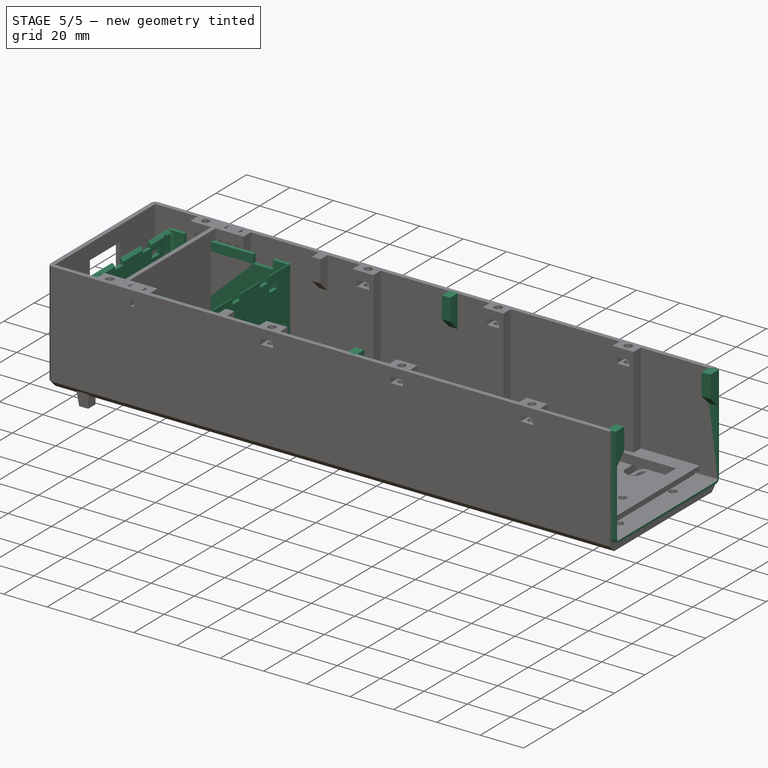
[diagram: stage 5 of 5 — iso view after this stage's code; geometry added in this stage tinted green]
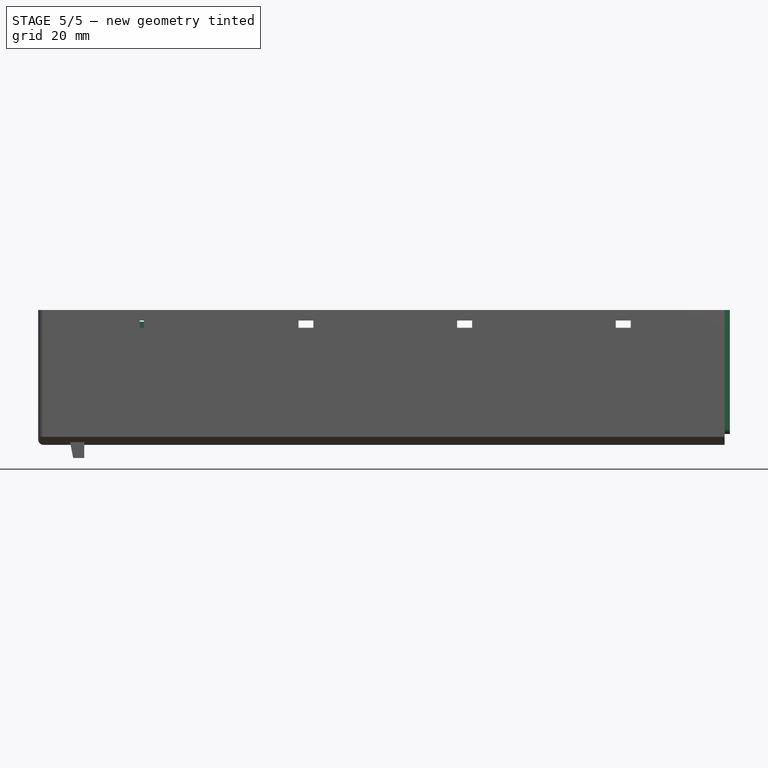
[diagram: stage 5 of 5 — front view after this stage's code; geometry added in this stage tinted green]
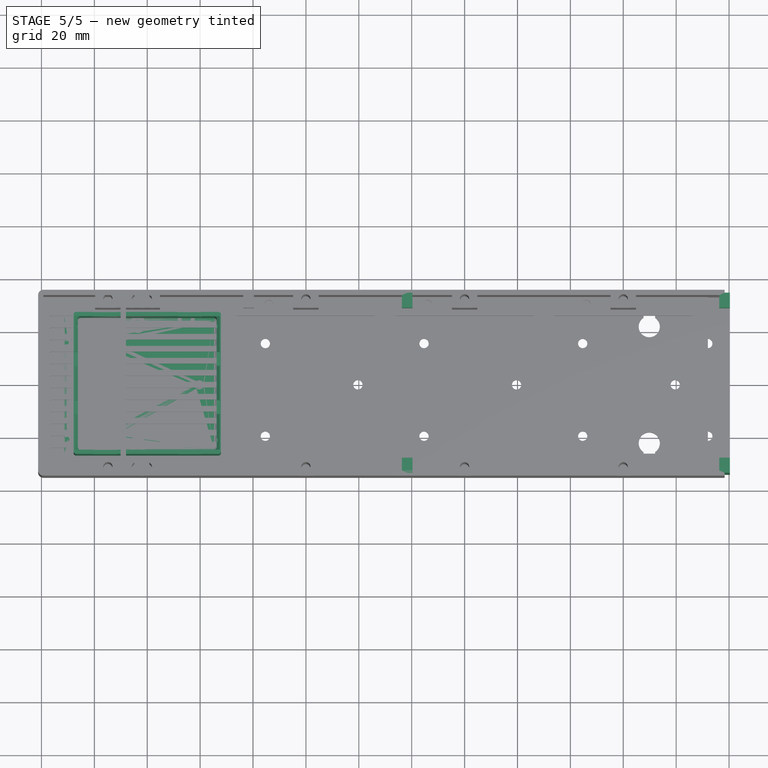
[diagram: stage 5 of 5 — top view after this stage's code; geometry added in this stage tinted green]
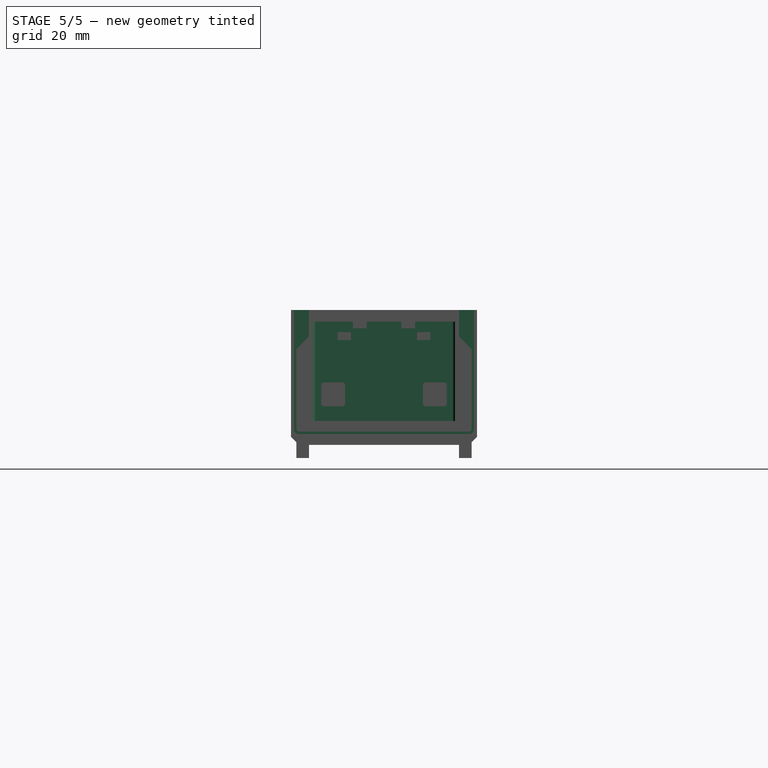
[diagram: stage 5 of 5 — right view after this stage's code; geometry added in this stage tinted green]
FEATURE [PartDesign::Body] Body003  label="SB2B"
  Group = -> [Sketch037,Sketch035,Sketch031,Sketch034,Pad011,Sketch032,Pad010,Chamfer001,Fillet004,Sketch033,Pocket007,Sketch109,Pocket,Sketch110,Pocket041,Sketch030,Pocket009,Sketch029,Pad009,Sketch036,Sketch050,Pocket015,Pocket008]
  Origin = -> Origin005
  Tip = -> Pocket008
FEATURE [App::Part] Part001  label="SocketBox2"
  Group = -> [Spreadsheet001,Body005,Body003]
  Origin = -> Origin003
FEATURE [PartDesign::FeatureBase] Clone
  BaseFeature = -> Body003
FEATURE [PartDesign::Body] Body  label="Box1"
  BaseFeature = -> Body003
  Group = -> [Clone]
  Origin = -> Origin043
  Tip = -> Clone
FEATURE [PartDesign::FeatureBase] Clone003
  BaseFeature = -> Body003
FEATURE [PartDesign::Body] Body039  label="Box002"
  Group = -> [Clone003]
  Origin = -> Origin047
  Tip = -> Clone003
FEATURE [PartDesign::FeatureBase] Clone006
  BaseFeature = -> Body003
FEATURE [PartDesign::Body] Body042  label="Box003"
  Group = -> [Clone006]
  Origin = -> Origin051
  Tip = -> Clone006
FEATURE [PartDesign::FeatureBase] Clone009
  BaseFeature = -> Body003
FEATURE [PartDesign::Body] Body045  label="Box004"
  Group = -> [Clone009]
  Origin = -> Origin055
  Tip = -> Clone009
FEATURE [PartDesign::FeatureBase] Clone012
  BaseFeature = -> Body003
FEATURE [PartDesign::Body] Body048  label="Box005"
  Group = -> [Clone012]
  Origin = -> Origin059
  Tip = -> Clone012
FEATURE [PartDesign::FeatureBase] Clone015
  BaseFeature = -> Body003
FEATURE [PartDesign::Body] Body051  label="Box006"
  Group = -> [Clone015]
  Origin = -> Origin063
  Tip = -> Clone015
FEATURE [PartDesign::FeatureBase] Clone018
  BaseFeature = -> Body003
FEATURE [PartDesign::Body] Body054  label="Box007"
  Group = -> [Clone018]
  Origin = -> Origin067
  Tip = -> Clone018
FEATURE [PartDesign::FeatureBase] Clone021
  BaseFeature = -> Body003
FEATURE [PartDesign::Body] Body006  label="ShellBottom"
  Group = -> [Binder008,Sketch065,Sketch075,Sketch066,Pad018,Sketch067,Pocket023,Sketch071,Pad020,Sketch073,Pocket026,Pocket024,Pocket025,Sketch069,Sketch070,Sketch072,Sketch,Pocket042,Pocket027,Sketch074,Pad019,Sketch082,Pad024]
  Origin = -> Origin009
  Tip = -> Pad024
FEATURE [PartDesign::FeatureBase] Clone001
  BaseFeature = -> Body006
FEATURE [PartDesign::Body] Body036  label="Bottom1"
  BaseFeature = -> Body006
  Group = -> [Clone001]
  Origin = -> Origin044
  Tip = -> Clone001
FEATURE [PartDesign::FeatureBase] Clone004
  BaseFeature = -> Body006
FEATURE [PartDesign::Body] Body038  label="Bottom002"
  BaseFeature = -> Body006
  Group = -> [Clone004]
  Origin = -> Origin046
  Tip = -> Clone004
FEATURE [PartDesign::FeatureBase] Clone007
  BaseFeature = -> Body006
FEATURE [PartDesign::Body] Body041  label="Bottom003"
  BaseFeature = -> Body006
  Group = -> [Clone007]
  Origin = -> Origin050
  Tip = -> Clone007
FEATURE [PartDesign::FeatureBase] Clone010
  BaseFeature = -> Body006
FEATURE [PartDesign::Body] Body044  label="Bottom004"
  BaseFeature = -> Body006
  Group = -> [Clone010]
  Origin = -> Origin054
  Tip = -> Clone010
FEATURE [PartDesign::FeatureBase] Clone013
  BaseFeature = -> Body006
FEATURE [PartDesign::Body] Body047  label="Bottom005"
  BaseFeature = -> Body006
  Group = -> [Clone013]
  Origin = -> Origin058
  Tip = -> Clone013
FEATURE [PartDesign::FeatureBase] Clone016
  BaseFeature = -> Body006
FEATURE [PartDesign::Body] Body050  label="Bottom006"
  BaseFeature = -> Body006
  Group = -> [Clone016]
  Origin = -> Origin062
  Tip = -> Clone016
FEATURE [PartDesign::FeatureBase] Clone019
  BaseFeature = -> Body006
FEATURE [PartDesign::Body] Body053  label="Bottom007"
  BaseFeature = -> Body006
  Group = -> [Clone019]
  Origin = -> Origin066
  Tip = -> Clone019
FEATURE [PartDesign::FeatureBase] Clone022
  BaseFeature = -> Body006
FEATURE [PartDesign::Pocket] Pocket033  label="SBD_NutPocket_"
  BaseFeature = -> Pocket043
  Length = 5
  Length2 = 100
  Midplane = true
  Placement = pos=(0,0,0) rot=(0.57735,0.57735,0.57735;2.0944rad)
  Profile = -> Sketch089
  Type = 1
FEATURE [PartDesign::Pad] Pad027  label="SBD_Ridge_"
  BaseFeature = -> Pocket033
  Direction = (1,1,1)
  Length = 2
  Length2 = 100
  Placement = pos=(0,0,0) rot=(0.57735,0.57735,0.57735;2.0944rad)
  Profile = -> Sketch090
  Type = 0
FEATURE [PartDesign::Pad] Pad028  label="SBD_TopLock_"
  BaseFeature = -> Pad027
  Direction = (1,1,1)
  Length = 4
  Length2 = 100
  Placement = pos=(0,0,0) rot=(0.57735,0.57735,0.57735;2.0944rad)
  Profile = -> Sketch091
  Refine = true
  Reversed = true
  Type = 0
  expr: Length = <<SB_Template_top>>.Constraints.TopLockThickness
FEATURE [PartDesign::Pad] Pad031  label="SBQ_Ridge_"
  BaseFeature = -> Pocket038
  Direction = (1,1,1)
  Length = 2
  Length2 = 100
  Placement = pos=(0,0,0) rot=(0.57735,0.57735,0.57735;2.0944rad)
  Profile = -> Sketch099
  Type = 0
FEATURE [PartDesign::Pad] Pad032  label="SBQ_TopLock_"
  BaseFeature = -> Pad031
  Direction = (1,1,1)
  Length = 4
  Length2 = 100
  Placement = pos=(0,0,0) rot=(0.57735,0.57735,0.57735;2.0944rad)
  Profile = -> Sketch100
  Refine = true
  Reversed = true
  Type = 0
  expr: Length = <<SB_Template_top>>.Constraints.TopLockThickness
FEATURE [PartDesign::Body] Body015  label="ShellTop"
  Group = -> [ShapeBinder,ShapeBinder001,Sketch076,Sketch077,Pad021,Sketch078,Fillet009,Sketch079,Pocket050,Pocket028,Sketch081,Pad023,Chamfer003]
  Origin = -> Origin020
  Tip = -> Chamfer003
FEATURE [PartDesign::FeatureBase] Clone002
  BaseFeature = -> Body015
FEATURE [PartDesign::Body] Body037  label="Top1"
  BaseFeature = -> Body015
  Group = -> [Clone002]
  Origin = -> Origin045
  Placement = pos=(0,0,46) rot=(0,0,1;0rad)
  Tip = -> Clone002
  expr: .Placement.Base.z = <<Shell>>.WallHeight
FEATURE [App::Part] Part006  label="G0"
  Group = -> [Body,Body036,Body037]
  Origin = -> Origin042
FEATURE [PartDesign::FeatureBase] Clone005
  BaseFeature = -> Body015
FEATURE [PartDesign::Body] Body040  label="Top002"
  BaseFeature = -> Body015
  Group = -> [Clone005]
  Origin = -> Origin049
  Placement = pos=(0,0,46) rot=(0,0,1;0rad)
  Tip = -> Clone005
  expr: .Placement.Base.z = <<Shell>>.WallHeight
FEATURE [App::Part] Part007  label="G1"
  Group = -> [Body039,Body038,Body040]
  Origin = -> Origin048
  Placement = pos=(60,0,0) rot=(0,0,1;0rad)
  expr: .Placement.Base.x = <<SocketBox>>.Spacing
FEATURE [PartDesign::FeatureBase] Clone008
  BaseFeature = -> Body015
FEATURE [PartDesign::Body] Body043  label="Top003"
  BaseFeature = -> Body015
  Group = -> [Clone008]
  Origin = -> Origin053
  Placement = pos=(0,0,46) rot=(0,0,1;0rad)
  Tip = -> Clone008
  expr: .Placement.Base.z = <<Shell>>.WallHeight
FEATURE [App::Part] Part008  label="G2"
  Group = -> [Body042,Body041,Body043]
  Origin = -> Origin052
  Placement = pos=(120,0,0) rot=(0,0,1;0rad)
  expr: .Placement.Base.x = 2 * <<SocketBox>>.Spacing
FEATURE [PartDesign::FeatureBase] Clone011
  BaseFeature = -> Body015
FEATURE [PartDesign::Body] Body046  label="Top004"
  BaseFeature = -> Body015
  Group = -> [Clone011]
  Origin = -> Origin057
  Placement = pos=(0,0,46) rot=(0,0,1;0rad)
  Tip = -> Clone011
  expr: .Placement.Base.z = <<Shell>>.WallHeight
FEATURE [App::Part] Part009  label="G3"
  Group = -> [Body045,Body044,Body046]
  Origin = -> Origin056
  Placement = pos=(180,0,0) rot=(0,0,1;0rad)
  expr: .Placement.Base.x = 3 * <<SocketBox>>.Spacing
FEATURE [PartDesign::FeatureBase] Clone014
  BaseFeature = -> Body015
FEATURE [PartDesign::Body] Body049  label="Top005"
  BaseFeature = -> Body015
  Group = -> [Clone014]
  Origin = -> Origin061
  Placement = pos=(0,0,46) rot=(0,0,1;0rad)
  Tip = -> Clone014
  expr: .Placement.Base.z = <<Shell>>.WallHeight
FEATURE [App::Part] Part010  label="G4"
  Group = -> [Body048,Body047,Body049]
  Origin = -> Origin060
  Placement = pos=(240,0,0) rot=(0,0,1;0rad)
  expr: .Placement.Base.x = 4 * <<SocketBox>>.Spacing
FEATURE [PartDesign::FeatureBase] Clone017
  BaseFeature = -> Body015
FEATURE [PartDesign::Body] Body052  label="Top006"
  BaseFeature = -> Body015
  Group = -> [Clone017]
  Origin = -> Origin065
  Placement = pos=(0,0,46) rot=(0,0,1;0rad)
  Tip = -> Clone017
  expr: .Placement.Base.z = <<Shell>>.WallHeight
FEATURE [App::Part] Part011  label="G5"
  Group = -> [Body051,Body050,Body052]
  Origin = -> Origin064
  Placement = pos=(300,0,0) rot=(0,0,1;0rad)
  expr: .Placement.Base.x = 5 * <<SocketBox>>.Spacing
FEATURE [PartDesign::FeatureBase] Clone020
  BaseFeature = -> Body015
FEATURE [PartDesign::Body] Body055  label="Top007"
  BaseFeature = -> Body015
  Group = -> [Clone020]
  Origin = -> Origin069
  Placement = pos=(0,0,46) rot=(0,0,1;0rad)
  Tip = -> Clone020
  expr: .Placement.Base.z = <<Shell>>.WallHeight
FEATURE [App::Part] Part012  label="G6"
  Group = -> [Body054,Body053,Body055]
  Origin = -> Origin068
  Placement = pos=(360,0,0) rot=(0,0,1;0rad)
  expr: .Placement.Base.x = 6 * <<SocketBox>>.Spacing
FEATURE [PartDesign::FeatureBase] Clone023
  BaseFeature = -> Body015
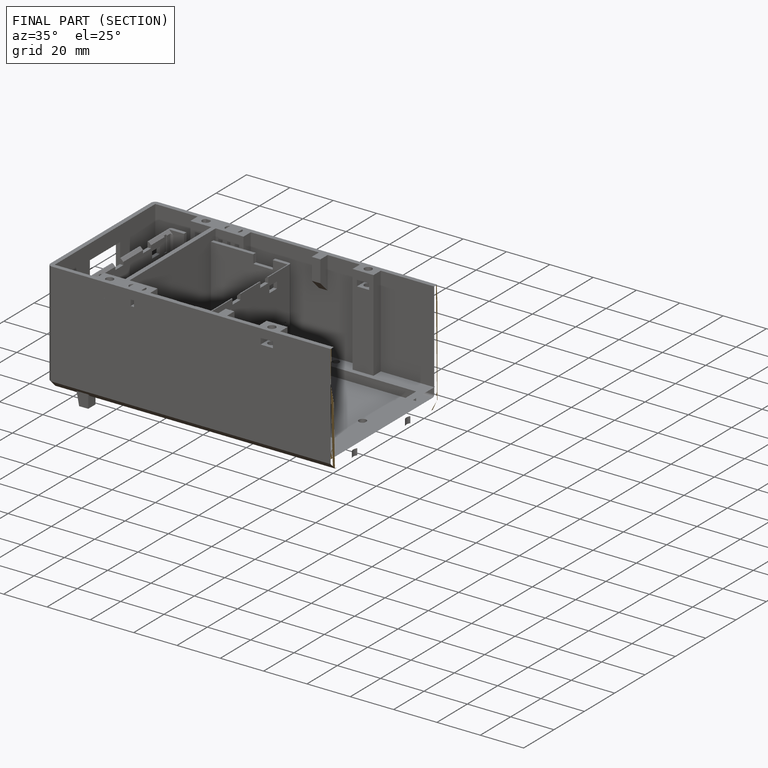
[diagram: finished part — half-section view (interior)]
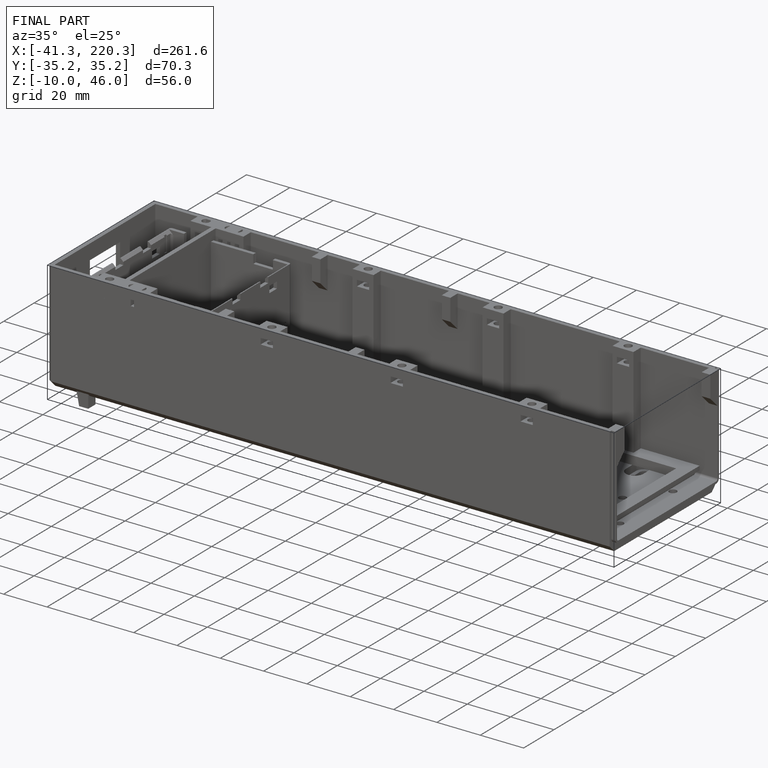
[diagram: finished part — iso view with bounding-box wireframe]
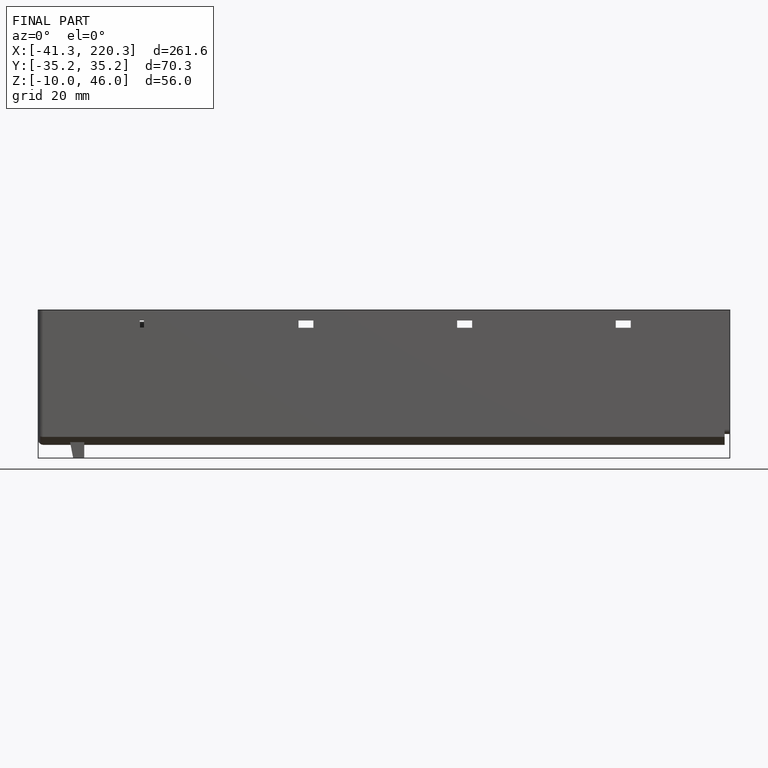
[diagram: finished part — front view with bounding-box wireframe]
